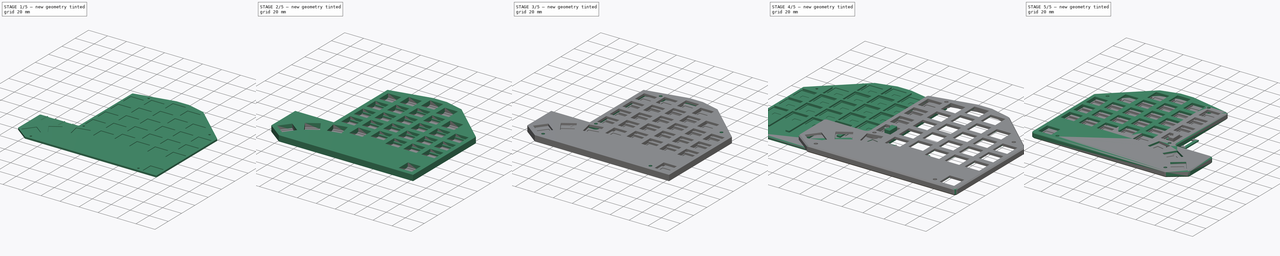
[diagram: build sequence overview — one tinted view per stage of 5, left to right]
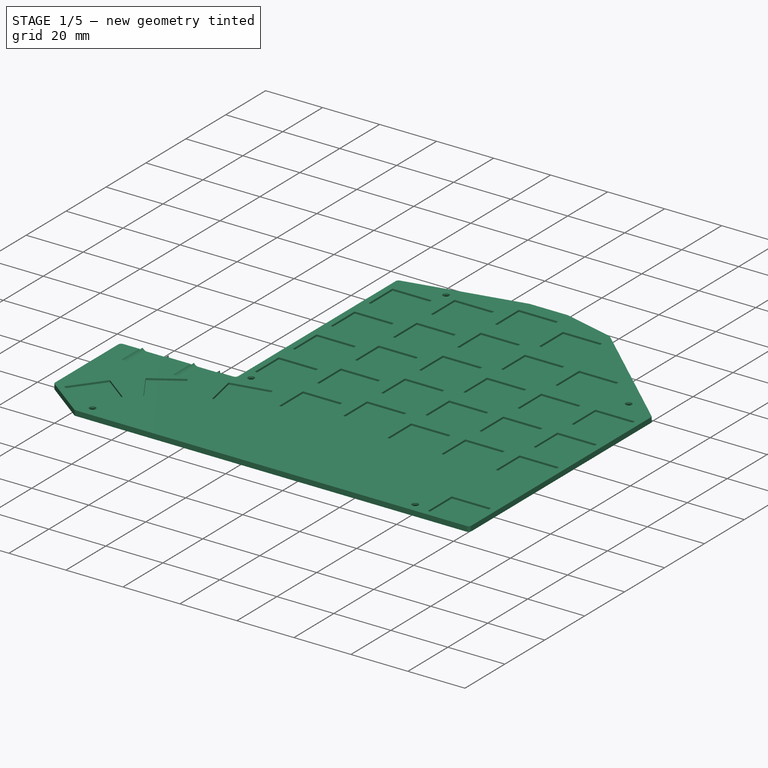
[diagram: stage 1 of 5 — iso view after this stage's code; geometry added in this stage tinted green]
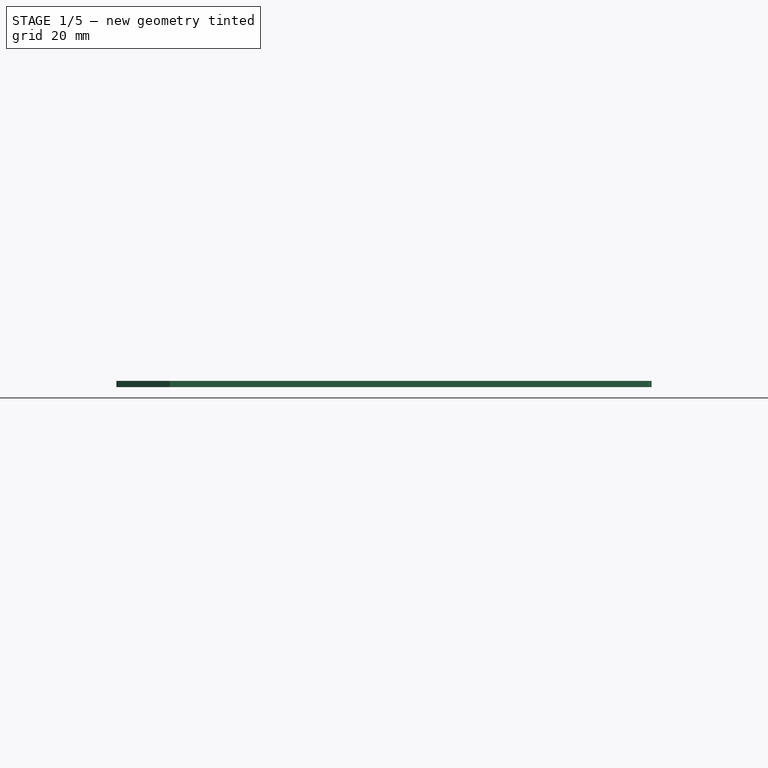
[diagram: stage 1 of 5 — front view after this stage's code; geometry added in this stage tinted green]
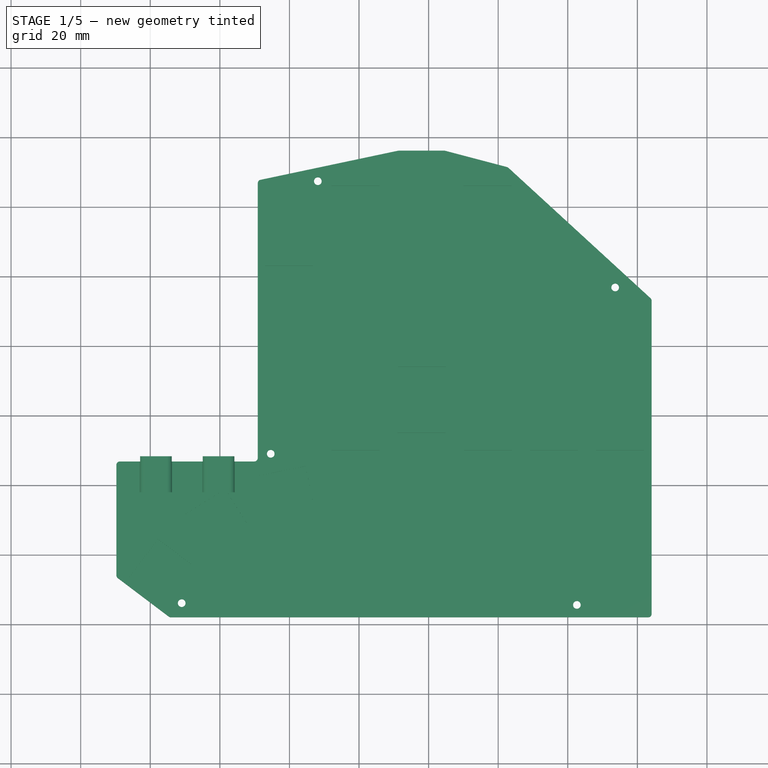
[diagram: stage 1 of 5 — top view after this stage's code; geometry added in this stage tinted green]
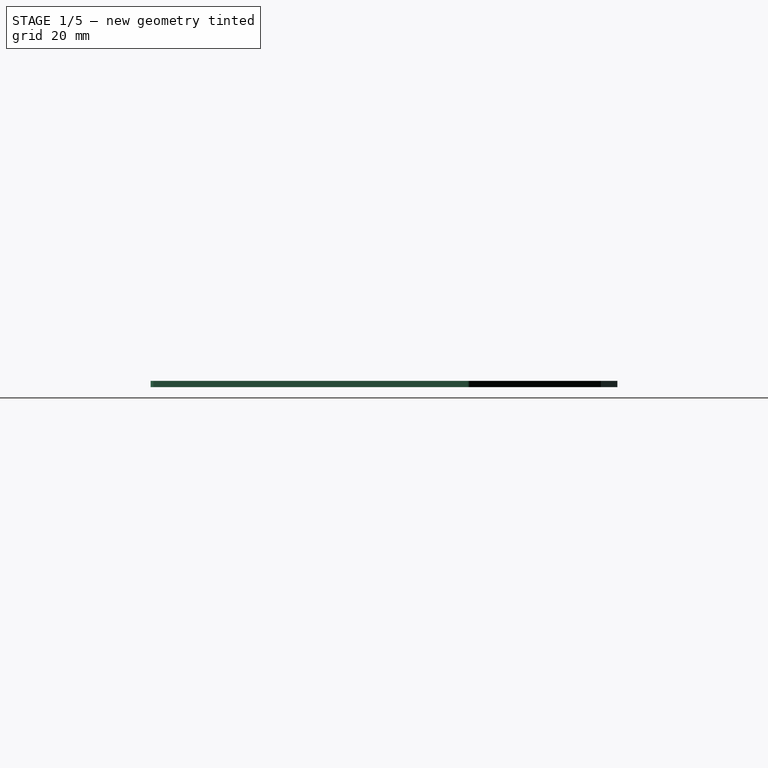
[diagram: stage 1 of 5 — right view after this stage's code; geometry added in this stage tinted green]
FCSTD DOCUMENT  (FreeCAD 0.19R24291 (Git))
Label: grapto-v3
License: All rights reserved
LicenseURL: http://en.wikipedia.org/wiki/All_rights_reserved
objects: App::Link×176, Sketcher::SketchObject×20, PartDesign::Pocket×8, App::Part×8, PartDesign::Pad×6, PartDesign::Body×6, Part::Feature×6, PartDesign::Plane×4, App::MeasureDistance×4, PartDesign::Hole×3, PartDesign::Chamfer×2, PartDesign::ShapeBinder×2, PartDesign::CoordinateSystem×2, Part::Mirroring×2, Spreadsheet::Sheet×1, PartDesign::Fillet×1, PartDesign::FeatureBase×1
note: 83 computed .brp shape members not serialized (recipe doc carries the construction recipe); baked Part::Feature solids carry a one-line shape summary decoded from their .brp

FEATURE [Sketcher::SketchObject] Sketch028
  FullyConstrained = true
  MapMode = 5
  Support = -> [XY_Plane004]
  sketch-geometry (40):
    g0: LineSegment StartX=-9.1 StartY=-12.14 StartZ=0 EndX=-9.1 EndY=66.8376 EndZ=0
    g1: ArcOfCircle CenterX=-8.1 CenterY=66.8376 CenterZ=0 NormalX=0 NormalY=0 NormalZ=1 AngleXU=0 Radius=1 StartAngle=1.77949 EndAngle=3.14159
    g2: LineSegment StartX=-8.30718 StartY=67.8159 StartZ=0 EndX=31.2384 EndY=76.1905 EndZ=0
    g3: ArcOfCircle CenterX=31.4455 CenterY=75.2122 CenterZ=0 NormalX=0 NormalY=0 NormalZ=1 AngleXU=0 Radius=1 StartAngle=1.5708 EndAngle=1.77949
    g4: LineSegment StartX=31.4455 StartY=76.2122 StartZ=0 EndX=44.4728 EndY=76.2122 EndZ=0
    g5: ArcOfCircle CenterX=44.4728 CenterY=75.2122 CenterZ=0 NormalX=0 NormalY=0 NormalZ=1 AngleXU=0 Radius=1 StartAngle=1.31346 EndAngle=1.5708
    g6: LineSegment StartX=44.7273 StartY=76.1793 StartZ=0 EndX=62.5249 EndY=71.4955 EndZ=0
    g7: ArcOfCircle CenterX=62.2704 CenterY=70.5284 CenterZ=0 NormalX=0 NormalY=0 NormalZ=1 AngleXU=0 Radius=1 StartAngle=0.828313 EndAngle=1.31346
    g8: LineSegment StartX=62.9465 StartY=71.2652 StartZ=0 EndX=103.776 EndY=33.798 EndZ=0
    g9: LineSegment StartX=104.1 StartY=33.0612 StartZ=0 EndX=104.1 EndY=-56.9382 EndZ=0
    g10: ArcOfCircle CenterX=103.1 CenterY=-56.9382 CenterZ=0 NormalX=0 NormalY=0 NormalZ=1 AngleXU=0 Radius=1 StartAngle=4.71239 EndAngle=6.28319
    g11: LineSegment StartX=-34.6692 StartY=-57.7362 StartZ=0 EndX=-49.3388 EndY=-46.6574 EndZ=0
    g12: ArcOfCircle CenterX=-48.7361 CenterY=-45.8594 CenterZ=0 NormalX=0 NormalY=0 NormalZ=1 AngleXU=0 Radius=1 StartAngle=3.14159 EndAngle=4.06555
    g13: LineSegment StartX=-49.7361 StartY=-45.8594 StartZ=0 EndX=-49.7361 EndY=-14.14 EndZ=0
    g14: LineSegment StartX=-48.7361 StartY=-13.14 StartZ=0 EndX=-42.925 EndY=-13.14 EndZ=0
    g15: ArcOfCircle CenterX=103.1 CenterY=33.0612 CenterZ=0 NormalX=0 NormalY=0 NormalZ=1 AngleXU=0 Radius=1 StartAngle=-2.7e-15 EndAngle=0.828313
    g16: LineSegment StartX=103.1 StartY=-57.9382 StartZ=0 EndX=-34.0665 EndY=-57.9382 EndZ=0
    g17: ArcOfCircle CenterX=-34.0665 CenterY=-56.9382 CenterZ=0 NormalX=0 NormalY=0 NormalZ=1 AngleXU=0 Radius=1 StartAngle=4.06555 EndAngle=4.71239
    g18: LineSegment StartX=106.399 StartY=-60.2382 StartZ=0 EndX=106.4 EndY=34.5118 EndZ=0
    g19: LineSegment StartX=106.4 StartY=34.5118 StartZ=0 EndX=63.8999 EndY=73.512 EndZ=0
    g20: LineSegment StartX=63.8999 StartY=73.512 StartZ=0 EndX=44.8999 EndY=78.5122 EndZ=0
    g21: LineSegment StartX=44.8999 StartY=78.5122 StartZ=0 EndX=31.0999 EndY=78.5122 EndZ=0
    g22: LineSegment StartX=31.0999 StartY=78.5122 StartZ=0 EndX=-11.4 EndY=69.5119 EndZ=0
    g23: LineSegment StartX=-11.4 StartY=69.5119 StartZ=0 EndX=-11.4 EndY=-11.44 EndZ=0
    g24: LineSegment StartX=-11.4 StartY=-11.44 StartZ=0 EndX=-52.0361 EndY=-11.44 EndZ=0
    g25: LineSegment StartX=-52.0361 StartY=-11.44 StartZ=0 EndX=-52.0361 EndY=-47.5025 EndZ=0
    g26: LineSegment StartX=-52.0361 StartY=-47.5025 StartZ=0 EndX=-35.1726 EndY=-60.2382 EndZ=0
    g27: LineSegment StartX=-35.1726 StartY=-60.2382 StartZ=0 EndX=106.399 EndY=-60.2382 EndZ=0
    g28: ArcOfCircle CenterX=-10.1 CenterY=-12.14 CenterZ=0 NormalX=0 NormalY=0 NormalZ=1 AngleXU=0 Radius=1 StartAngle=4.71239 EndAngle=6.28319
    g29: ArcOfCircle CenterX=-48.7361 CenterY=-14.14 CenterZ=0 NormalX=0 NormalY=0 NormalZ=1 AngleXU=0 Radius=1 StartAngle=1.5708 EndAngle=3.14159
    g30: LineSegment StartX=-33.825 StartY=-13.14 StartZ=0 EndX=-33.825 EndY=-11.64 EndZ=0
    g31: LineSegment StartX=-33.825 StartY=-11.64 StartZ=0 EndX=-42.925 EndY=-11.64 EndZ=0
    g32: LineSegment StartX=-42.925 StartY=-11.64 StartZ=0 EndX=-42.925 EndY=-13.14 EndZ=0
    g33: LineSegment StartX=-15.825 StartY=-13.14 StartZ=0 EndX=-15.825 EndY=-11.64 EndZ=0
    g34: LineSegment StartX=-15.825 StartY=-11.64 StartZ=0 EndX=-24.925 EndY=-11.64 EndZ=0
    g35: LineSegment StartX=-24.925 StartY=-11.64 StartZ=0 EndX=-24.925 EndY=-13.14 EndZ=0
    g36: LineSegment StartX=-33.825 StartY=-13.14 StartZ=0 EndX=-24.925 EndY=-13.14 EndZ=0
    g37: LineSegment StartX=-15.825 StartY=-13.14 StartZ=0 EndX=-10.1 EndY=-13.14 EndZ=0
    g38: GeomPoint X=-20.375 Y=-11.64 Z=0
    g39: GeomPoint X=-38.375 Y=-11.64 Z=0
  constraints (105):
    c: Vertical(g0)
    c: Tangent(g0,g1) = 1.5708
    c: Tangent(g2,g3) = 1.5708
    c: Horizontal(g4)
    c: Tangent(g4,g5) = 1.5708
    c: Tangent(g6,g7) = 1.5708
    c: Vertical(g9)
    c: Tangent(g9,g10) = 1.5708
    c: Tangent(g11,g12) = 1.5708
    c: Vertical(g13)
    c: Horizontal(g14)
    c: Tangent(g12,g13) = 1.5708
    c: Tangent(g3,g4) = 1.5708
    c: Tangent(g5,g6) = 1.5708
    c: Tangent(g7,g8) = 1.5708
    c: Tangent(g9,g15) = 1.5708
    c: Tangent(g11,g17) = 1.5708
    c: Diameter(g17) = 2
    c: Equal(g17,g12)
    c: Equal(g17,g1)
    c: Equal(g17,g3)
    c: Equal(g17,g5)
    c: Equal(g17,g7)
    c: Equal(g17,g15)
    c: Equal(g17,g10)
    c: Coincident(g18,g19)
    c: Coincident(g19,g20)
    c: Coincident(g20,g21)
    c: Coincident(g21,g22)
    c: Coincident(g22,g23)
    c: Coincident(g23,g24)
    c: Coincident(g24,g25)
    c: Coincident(g25,g26)
    c: Coincident(g26,g27)
    c: Coincident(g27,g18)
    c: Distance(g18) = 94.75
    c: Distance(g19) = 57.6823
    c: Distance(g20) = 19.6469
    c: Distance(g21) = 13.8
    c: Distance(g22) = 43.4425
    c: Distance(g23) = 80.9519
    c: Distance(g24) = 40.6361
    c: Distance(g25) = 36.0625
    c: Distance(g26) = 21.1323
    c: Angle(g19,g18) = 2.31328
    c: Angle(g21,g20) = 2.88426
    c: Angle(g20,g19) = 2.65644
    c: Angle(g23,g22) = 1.77949
    c: Angle(g26,g25) = 2.21763
    c: Angle(g27,g26) = 2.49476
    c: DistanceX(g23,g-1) = 11.4
    c: DistanceY(g23,g-1) = 11.44
    c: Horizontal(g24)
    c: Vertical(g25)
    c: Distance(g11,g26) = 2.3
    c: Distance(g16,g27) = 2.3
    c: Distance(g0,g23) = 2.3
    c: Distance(g1,g22) = 2.3
    c: Parallel(g2,g22)
    c: Distance(g3,g21) = 2.3
    c: Distance(g5,g20) = 2.3
    c: Parallel(g6,g20)
    c: Distance(g7,g19) = 2.3
    c: Parallel(g8,g19)
    c: Distance(g9,g18) = 2.3
    c: Parallel(g11,g26)
    c: Horizontal(g16)
    c: Tangent(g16,g10) = 1.5708
    c: Tangent(g17,g16) = 1.5708
    c: Tangent(g15,g8) = 1.5708
    c: Tangent(g2,g1) = 1.5708
    c: Vertical(g23)
    c: Tangent(g0,g28) = -1.5708
    c: Tangent(g13,g29) = 1.5708
    c: Tangent(g14,g29) = 1.5708
    c: Diameter(g29) = 2
    c: DistanceX(g24,g13) = 2.3
    c: Distance(g14,g24) = 1.7
    c: Diameter(g28) = 2
    c: Coincident(g30,g31)
    c: Coincident(g31,g32)
    c: Horizontal(g31)
    c: Vertical(g30)
    c: Vertical(g32)
    c: Coincident(g33,g34)
    c: Coincident(g34,g35)
    c: Horizontal(g34)
    c: Vertical(g33)
    c: Vertical(g35)
    c: PointOnObject(g35,g14)
    c: Tangent(g14,g36)
    c: PointOnObject(g36,g35)
    c: Coincident(g37,g33)
    c: Tangent(g36,g37)
    c: Symmetric(g34,g33,g38)
    c: Symmetric(g30,g31,g39)
    c: DistanceX(g38,g-1) = 20.375
    c: DistanceX(g39,g38) = 18
    c: DistanceY(g33,g33) = 1.5
    c: Equal(g30,g33)
    c: Coincident(g30,g36)
    c: Equal(g31,g34)
    c: Distance(g34) = 9.1
    c: Coincident(g14,g32)
    c: Tangent(g37,g28) = -1.5708
FEATURE [PartDesign::Pad] Pad002
  Direction = (1,1,1)
  Length = 1.8
  Length2 = 100
  Profile = -> Sketch028
  Type = 0
  expr: Length = <<ss>>.bottom_height
FEATURE [Sketcher::SketchObject] Sketch029
  FullyConstrained = true
  MapMode = 5
  Placement = pos=(0,0,0) rot=(1,0,0;1.5708rad)
  Support = -> [XZ_Plane004]
  expr: Constraints[18] = <<ss>>.top_height - <<ss>>.sw_ht_above_pcb - 0.6 + 0.85
  expr: Constraints[15] = <<ss>>.top_height - <<ss>>.sw_ht_above_pcb - 0.6 + 0.85
  sketch-geometry (10):
    g0: ArcOfCircle CenterX=-17.28 CenterY=2.4 CenterZ=0 NormalX=0 NormalY=0 NormalZ=1 AngleXU=0 Radius=1.65 StartAngle=4.71239 EndAngle=7.85398
    g1: ArcOfCircle CenterX=-23.48 CenterY=2.4 CenterZ=0 NormalX=0 NormalY=0 NormalZ=1 AngleXU=0 Radius=1.65 StartAngle=1.5708 EndAngle=4.71239
    g2: LineSegment StartX=-17.28 StartY=4.05 StartZ=0 EndX=-23.48 EndY=4.05 EndZ=0
    g3: ArcOfCircle CenterX=-35.28 CenterY=2.4 CenterZ=0 NormalX=0 NormalY=0 NormalZ=1 AngleXU=0 Radius=1.65 StartAngle=4.71239 EndAngle=7.85398
    g4: ArcOfCircle CenterX=-41.48 CenterY=2.4 CenterZ=0 NormalX=0 NormalY=0 NormalZ=1 AngleXU=0 Radius=1.65 StartAngle=1.5708 EndAngle=4.71239
    g5: LineSegment StartX=-35.28 StartY=4.05 StartZ=0 EndX=-41.48 EndY=4.05 EndZ=0
    g6: GeomPoint X=-20.38 Y=4.05 Z=0
    g7: GeomPoint X=-38.38 Y=4.05 Z=0
    g8: LineSegment StartX=-35.28 StartY=0.75 StartZ=0 EndX=-41.48 EndY=0.75 EndZ=0
    g9: LineSegment StartX=-17.28 StartY=0.75 StartZ=0 EndX=-23.48 EndY=0.75 EndZ=0
  constraints (22):
    c: Tangent(g0,g2) = -1.5708
    c: Tangent(g2,g1) = -1.5708
    c: Horizontal(g2)
    c: Equal(g0,g1)
    c: Tangent(g3,g5) = -1.5708
    c: Tangent(g5,g4) = -1.5708
    c: Horizontal(g5)
    c: Equal(g3,g4)
    c: Equal(g5,g2)
    c: Diameter(g3) = 3.3
    c: Equal(g3,g1)
    c: Symmetric(g1,g0,g6)
    c: Symmetric(g4,g3,g7)
    c: DistanceX(g7,g6) = 18
    c: DistanceX(g6,g-1) = 20.38
    c: DistanceY(g-1,g6) = 4.05
    c: Tangent(g8,g4) = 1.5708
    c: Tangent(g8,g3) = 1.5708
    c: DistanceY(g-1,g7) = 4.05
    c: Tangent(g9,g1) = 1.5708
    c: Tangent(g9,g0) = 1.5708
    c: Distance(g9) = 6.2
FEATURE [PartDesign::Pocket] Pocket008
  BaseFeature = -> Pad002
  Length = 22
  Length2 = 100
  Profile = -> Sketch029
  Reversed = true
  Type = 0
FEATURE [PartDesign::ShapeBinder] ShapeBinder
  Support = -> [Chamfer]
  TraceSupport = true
FEATURE [Sketcher::SketchObject] Sketch030
  FullyConstrained = false
  MapMode = 5
  Support = -> [XY_Plane004]
  sketch-geometry (5):
    g0: Circle CenterX=8.1652 CenterY=67.4137 CenterZ=0 NormalX=0 NormalY=0 NormalZ=1 AngleXU=0 Radius=1
    g1: Circle CenterX=93.6217 CenterY=36.8767 CenterZ=0 NormalX=0 NormalY=0 NormalZ=1 AngleXU=0 Radius=1
    g2: Circle CenterX=82.6217 CenterY=-54.3793 CenterZ=0 NormalX=0 NormalY=0 NormalZ=1 AngleXU=0 Radius=1
    g3: Circle CenterX=-30.9626 CenterY=-53.8793 CenterZ=0 NormalX=0 NormalY=0 NormalZ=1 AngleXU=0 Radius=1
    g4: Circle CenterX=-5.37107 CenterY=-10.94 CenterZ=0 NormalX=0 NormalY=0 NormalZ=1 AngleXU=0 Radius=1
  constraints (5):
    c: Diameter(g3) = 2
    c: Equal(g3,g4)
    c: Equal(g3,g0)
    c: Equal(g3,g1)
    c: Equal(g3,g2)
FEATURE [PartDesign::Hole] Hole
  BaseFeature = -> Pocket008
  Depth = 25
  DepthType = 0
  Diameter = 2.2
  DrillForDepth = false
  DrillPoint = 1
  DrillPointAngle = 118
  HoleCutCountersinkAngle = 90
  HoleCutCustomValues = false
  HoleCutDepth = 1
  HoleCutDiameter = 4.5
  HoleCutType = 2
  ModelActualThread = false
  Profile = -> Sketch030
  Reversed = true
  Tapered = false
  TaperedAngle = 90
  ThreadAngle = 0
  ThreadClass = 0
  ThreadCutOffInner = 0
  ThreadCutOffOuter = 0
  ThreadDirection = 0
  ThreadFit = 0
  ThreadPitch = 0
  ThreadSize = 0
  ThreadType = 0
  Threaded = false
FEATURE [PartDesign::Plane] DatumPlane001
  AttachmentOffset = pos=(0,0,1.8) rot=(0,0,1;0rad)
  Length = 182.567
  MapMode = 5
  Placement = pos=(0,0,1.8) rot=(0,0,1;0rad)
  ResizeMode = 0
  Support = -> [XY_Plane004]
  Width = 162.882
FEATURE [Sketcher::SketchObject] Sketch031  label="SketchTop001"
  FullyConstrained = true
  MapMode = 5
  Placement = pos=(0,0,1.8) rot=(0,0,1;0rad)
  Support = -> [DatumPlane001]
  expr: Constraints[420] = <<ss>>.ss_sw_side / 2
  expr: Constraints[347] = <<ss>>.ss_sw_sep - 12
  expr: Constraints[376] = <<ss>>.ss_sw_side
  expr: Constraints[384] = 6 - (<<ss>>.ss_sw_side - 12) / 2
  expr: Constraints[377] = 12
  sketch-geometry (153):
    g0: LineSegment StartX=-6.9 StartY=-6.9 StartZ=0 EndX=6.9 EndY=-6.9 EndZ=0
    g1: LineSegment StartX=-6.9 StartY=-6.9 StartZ=0 EndX=-6.9 EndY=5.1 EndZ=0
    g2: LineSegment StartX=-6.9 StartY=5.1 StartZ=0 EndX=6.9 EndY=5.1 EndZ=0
    g3: LineSegment StartX=6.9 StartY=-6.9 StartZ=0 EndX=6.9 EndY=5.1 EndZ=0
    g4: LineSegment StartX=-6.9 StartY=12.1 StartZ=0 EndX=6.9 EndY=12.1 EndZ=0
    g5: LineSegment StartX=-6.9 StartY=12.1 StartZ=0 EndX=-6.9 EndY=24.1 EndZ=0
    g6: LineSegment StartX=-6.9 StartY=24.1 StartZ=0 EndX=6.9 EndY=24.1 EndZ=0
    g7: LineSegment StartX=6.9 StartY=12.1 StartZ=0 EndX=6.9 EndY=24.1 EndZ=0
    g8: LineSegment StartX=-6.9 StartY=31.1 StartZ=0 EndX=6.9 EndY=31.1 EndZ=0
    g9: LineSegment StartX=-6.9 StartY=31.1 StartZ=0 EndX=-6.9 EndY=43.1 EndZ=0
    g10: LineSegment StartX=-6.9 StartY=43.1 StartZ=0 EndX=6.9 EndY=43.1 EndZ=0
    g11: LineSegment StartX=6.9 StartY=31.1 StartZ=0 EndX=6.9 EndY=43.1 EndZ=0
    g12: LineSegment StartX=-6.9 StartY=50.1 StartZ=0 EndX=6.9 EndY=50.1 EndZ=0
    g13: LineSegment StartX=-6.9 StartY=50.1 StartZ=0 EndX=-6.9 EndY=62.1 EndZ=0
    g14: LineSegment StartX=-6.9 StartY=62.1 StartZ=0 EndX=6.9 EndY=62.1 EndZ=0
    g15: LineSegment StartX=6.9 StartY=50.1 StartZ=0 EndX=6.9 EndY=62.1 EndZ=0
    g16: LineSegment StartX=12.1 StartY=-21.9 StartZ=0 EndX=25.9 EndY=-21.9 EndZ=0
    g17: LineSegment StartX=12.1 StartY=-21.9 StartZ=0 EndX=12.1 EndY=-9.9 EndZ=0
    g18: LineSegment StartX=12.1 StartY=-9.9 StartZ=0 EndX=25.9 EndY=-9.9 EndZ=0
    g19: LineSegment StartX=25.9 StartY=-21.9 StartZ=0 EndX=25.9 EndY=-9.9 EndZ=0
    g20: LineSegment StartX=12.1 StartY=-2.9 StartZ=0 EndX=25.9 EndY=-2.9 EndZ=0
    g21: LineSegment StartX=12.1 StartY=-2.9 StartZ=0 EndX=12.1 EndY=9.1 EndZ=0
    g22: LineSegment StartX=12.1 StartY=9.1 StartZ=0 EndX=25.9 EndY=9.1 EndZ=0
    g23: LineSegment StartX=25.9 StartY=-2.9 StartZ=0 EndX=25.9 EndY=9.1 EndZ=0
    g24: LineSegment StartX=12.1 StartY=16.1 StartZ=0 EndX=25.9 EndY=16.1 EndZ=0
    g25: LineSegment StartX=12.1 StartY=16.1 StartZ=0 EndX=12.1 EndY=28.1 EndZ=0
    g26: LineSegment StartX=12.1 StartY=28.1 StartZ=0 EndX=25.9 EndY=28.1 EndZ=0
    g27: LineSegment StartX=25.9 StartY=16.1 StartZ=0 EndX=25.9 EndY=28.1 EndZ=0
    g28: LineSegment StartX=12.1 StartY=35.1 StartZ=0 EndX=25.9 EndY=35.1 EndZ=0
    g29: LineSegment StartX=12.1 StartY=35.1 StartZ=0 EndX=12.1 EndY=47.1 EndZ=0
    g30: LineSegment StartX=12.1 StartY=47.1 StartZ=0 EndX=25.9 EndY=47.1 EndZ=0
    g31: LineSegment StartX=25.9 StartY=35.1 StartZ=0 EndX=25.9 EndY=47.1 EndZ=0
    g32: LineSegment StartX=12.1 StartY=54.1 StartZ=0 EndX=25.9 EndY=54.1 EndZ=0
    g33: LineSegment StartX=12.1 StartY=54.1 StartZ=0 EndX=12.1 EndY=66.1 EndZ=0
    g34: LineSegment StartX=12.1 StartY=66.1 StartZ=0 EndX=25.9 EndY=66.1 EndZ=0
    g35: LineSegment StartX=25.9 StartY=54.1 StartZ=0 EndX=25.9 EndY=66.1 EndZ=0
    g36: LineSegment StartX=31.1 StartY=-16.9 StartZ=0 EndX=44.9 EndY=-16.9 EndZ=0
    g37: LineSegment StartX=31.1 StartY=-16.9 StartZ=0 EndX=31.1 EndY=-4.9 EndZ=0
    g38: LineSegment StartX=31.1 StartY=-4.9 StartZ=0 EndX=44.9 EndY=-4.9 EndZ=0
    g39: LineSegment StartX=44.9 StartY=-16.9 StartZ=0 EndX=44.9 EndY=-4.9 EndZ=0
    g40: LineSegment StartX=31.1 StartY=2.1 StartZ=0 EndX=44.9 EndY=2.1 EndZ=0
    g41: LineSegment StartX=31.1 StartY=2.1 StartZ=0 EndX=31.1 EndY=14.1 EndZ=0
    g42: LineSegment StartX=31.1 StartY=14.1 StartZ=0 EndX=44.9 EndY=14.1 EndZ=0
    g43: LineSegment StartX=44.9 StartY=2.1 StartZ=0 EndX=44.9 EndY=14.1 EndZ=0
    g44: LineSegment StartX=31.1 StartY=21.1 StartZ=0 EndX=44.9 EndY=21.1 EndZ=0
    g45: LineSegment StartX=31.1 StartY=21.1 StartZ=0 EndX=31.1 EndY=33.1 EndZ=0
    g46: LineSegment StartX=31.1 StartY=33.1 StartZ=0 EndX=44.9 EndY=33.1 EndZ=0
    g47: LineSegment StartX=44.9 StartY=21.1 StartZ=0 EndX=44.9 EndY=33.1 EndZ=0
    g48: LineSegment StartX=31.1 StartY=40.1 StartZ=0 EndX=44.9 EndY=40.1 EndZ=0
    g49: LineSegment StartX=31.1 StartY=40.1 StartZ=0 EndX=31.1 EndY=52.1 EndZ=0
    g50: LineSegment StartX=31.1 StartY=52.1 StartZ=0 EndX=44.9 EndY=52.1 EndZ=0
    g51: LineSegment StartX=44.9 StartY=40.1 StartZ=0 EndX=44.9 EndY=52.1 EndZ=0
    g52: LineSegment StartX=31.1 StartY=59.1 StartZ=0 EndX=44.9 EndY=59.1 EndZ=0
    g53: LineSegment StartX=31.1 StartY=59.1 StartZ=0 EndX=31.1 EndY=71.1 EndZ=0
    g54: LineSegment StartX=31.1 StartY=71.1 StartZ=0 EndX=44.9 EndY=71.1 EndZ=0
    g55: LineSegment StartX=44.9 StartY=59.1 StartZ=0 EndX=44.9 EndY=71.1 EndZ=0
    g56: LineSegment StartX=50.1 StartY=-21.9 StartZ=0 EndX=63.9 EndY=-21.9 EndZ=0
    g57: LineSegment StartX=50.1 StartY=-21.9 StartZ=0 EndX=50.1 EndY=-9.9 EndZ=0
    g58: LineSegment StartX=50.1 StartY=-9.9 StartZ=0 EndX=63.9 EndY=-9.9 EndZ=0
    g59: LineSegment StartX=63.9 StartY=-21.9 StartZ=0 EndX=63.9 EndY=-9.9 EndZ=0
    g60: LineSegment StartX=50.1 StartY=-2.9 StartZ=0 EndX=63.9 EndY=-2.9 EndZ=0
    g61: LineSegment StartX=50.1 StartY=-2.9 StartZ=0 EndX=50.1 EndY=9.1 EndZ=0
    g62: LineSegment StartX=50.1 StartY=9.1 StartZ=0 EndX=63.9 EndY=9.1 EndZ=0
    g63: LineSegment StartX=63.9 StartY=-2.9 StartZ=0 EndX=63.9 EndY=9.1 EndZ=0
    g64: LineSegment StartX=50.1 StartY=16.1 StartZ=0 EndX=63.9 EndY=16.1 EndZ=0
    g65: LineSegment StartX=50.1 StartY=16.1 StartZ=0 EndX=50.1 EndY=28.1 EndZ=0
    g66: LineSegment StartX=50.1 StartY=28.1 StartZ=0 EndX=63.9 EndY=28.1 EndZ=0
    g67: LineSegment StartX=63.9 StartY=16.1 StartZ=0 EndX=63.9 EndY=28.1 EndZ=0
    g68: LineSegment StartX=50.1 StartY=35.1 StartZ=0 EndX=63.9 EndY=35.1 EndZ=0
    g69: LineSegment StartX=50.1 StartY=35.1 StartZ=0 EndX=50.1 EndY=47.1 EndZ=0
    g70: LineSegment StartX=50.1 StartY=47.1 StartZ=0 EndX=63.9 EndY=47.1 EndZ=0
    g71: LineSegment StartX=63.9 StartY=35.1 StartZ=0 EndX=63.9 EndY=47.1 EndZ=0
    g72: LineSegment StartX=50.1 StartY=54.1 StartZ=0 EndX=63.9 EndY=54.1 EndZ=0
    g73: LineSegment StartX=50.1 StartY=54.1 StartZ=0 EndX=50.1 EndY=66.1 EndZ=0
    g74: LineSegment StartX=50.1 StartY=66.1 StartZ=0 EndX=63.9 EndY=66.1 EndZ=0
    g75: LineSegment StartX=63.9 StartY=54.1 StartZ=0 EndX=63.9 EndY=66.1 EndZ=0
    g76: LineSegment StartX=69.1 StartY=-21.9 StartZ=0 EndX=82.9 EndY=-21.9 EndZ=0
    g77: LineSegment StartX=69.1 StartY=-21.9 StartZ=0 EndX=69.1 EndY=-9.9 EndZ=0
    g78: LineSegment StartX=69.1 StartY=-9.9 StartZ=0 EndX=82.9 EndY=-9.9 EndZ=0
    g79: LineSegment StartX=82.9 StartY=-21.9 StartZ=0 EndX=82.9 EndY=-9.9 EndZ=0
    g80: LineSegment StartX=69.1 StartY=-2.9 StartZ=0 EndX=82.9 EndY=-2.9 EndZ=0
    g81: LineSegment StartX=69.1 StartY=-2.9 StartZ=0 EndX=69.1 EndY=9.1 EndZ=0
    g82: LineSegment StartX=69.1 StartY=9.1 StartZ=0 EndX=82.9 EndY=9.1 EndZ=0
    g83: LineSegment StartX=82.9 StartY=-2.9 StartZ=0 EndX=82.9 EndY=9.1 EndZ=0
    g84: LineSegment StartX=69.1 StartY=16.1 StartZ=0 EndX=82.9 EndY=16.1 EndZ=0
    g85: LineSegment StartX=69.1 StartY=16.1 StartZ=0 EndX=69.1 EndY=28.1 EndZ=0
    g86: LineSegment StartX=69.1 StartY=28.1 StartZ=0 EndX=82.9 EndY=28.1 EndZ=0
    g87: LineSegment StartX=82.9 StartY=16.1 StartZ=0 EndX=82.9 EndY=28.1 EndZ=0
    g88: LineSegment StartX=69.1 StartY=35.1 StartZ=0 EndX=82.9 EndY=35.1 EndZ=0
    g89: LineSegment StartX=69.1 StartY=35.1 StartZ=0 EndX=69.1 EndY=47.1 EndZ=0
    g90: LineSegment StartX=69.1 StartY=47.1 StartZ=0 EndX=82.9 EndY=47.1 EndZ=0
    g91: LineSegment StartX=82.9 StartY=35.1 StartZ=0 EndX=82.9 EndY=47.1 EndZ=0
    g92: LineSegment StartX=88.1 StartY=-2.9 StartZ=0 EndX=101.9 EndY=-2.9 EndZ=0
    g93: LineSegment StartX=88.1 StartY=-2.9 StartZ=0 EndX=88.1 EndY=9.1 EndZ=0
    g94: LineSegment StartX=88.1 StartY=9.1 StartZ=0 EndX=101.9 EndY=9.1 EndZ=0
    g95: LineSegment StartX=101.9 StartY=-2.9 StartZ=0 EndX=101.9 EndY=9.1 EndZ=0
    g96: LineSegment StartX=88.1 StartY=16.1 StartZ=0 EndX=101.9 EndY=16.1 EndZ=0
    g97: LineSegment StartX=88.1 StartY=16.1 StartZ=0 EndX=88.1 EndY=28.1 EndZ=0
    g98: LineSegment StartX=88.1 StartY=28.1 StartZ=0 EndX=101.9 EndY=28.1 EndZ=0
    g99: LineSegment StartX=101.9 StartY=16.1 StartZ=0 EndX=101.9 EndY=28.1 EndZ=0
    g100: LineSegment StartX=-8.85468 StartY=-17.2151 StartZ=0 EndX=4.66828 EndY=-14.4638 EndZ=0
    g101: LineSegment StartX=4.66828 StartY=-14.4638 StartZ=0 EndX=7.0607 EndY=-26.2229 EndZ=0
    g102: LineSegment StartX=7.0607 StartY=-26.2229 StartZ=0 EndX=-6.46226 EndY=-28.9742 EndZ=0
    g103: LineSegment StartX=-6.46226 StartY=-28.9742 StartZ=0 EndX=-8.85468 EndY=-17.2151 EndZ=0
    g104: LineSegment StartX=-30.1502 StartY=-28.4325 StartZ=0 EndX=-18.4753 EndY=-21.0748 EndZ=0
    g105: LineSegment StartX=-18.4753 StartY=-21.0748 StartZ=0 EndX=-12.0773 EndY=-31.2269 EndZ=0
    g106: LineSegment StartX=-12.0773 StartY=-31.2269 StartZ=0 EndX=-23.7522 EndY=-38.5846 EndZ=0
    g107: LineSegment StartX=-23.7522 StartY=-38.5846 StartZ=0 EndX=-30.1502 EndY=-28.4325 EndZ=0
    g108: LineSegment StartX=-46.0997 StartY=-46.4586 StartZ=0 EndX=-37.7831 EndY=-35.4462 EndZ=0
    g109: LineSegment StartX=-37.7831 StartY=-35.4462 StartZ=0 EndX=-28.2071 EndY=-42.6781 EndZ=0
    g110: LineSegment StartX=-28.2071 StartY=-42.6781 StartZ=0 EndX=-36.5237 EndY=-53.6905 EndZ=0
    g111: LineSegment StartX=-36.5237 StartY=-53.6905 StartZ=0 EndX=-46.0997 EndY=-46.4586 EndZ=0
    g112: LineSegment StartX=88.1 StartY=-9.9 StartZ=0 EndX=101.9 EndY=-9.9 EndZ=0
    g113: LineSegment StartX=101.9 StartY=-9.9 StartZ=0 EndX=101.9 EndY=-21.9 EndZ=0
    g114: LineSegment StartX=101.9 StartY=-21.9 StartZ=0 EndX=88.1 EndY=-21.9 EndZ=0
    g115: LineSegment StartX=88.1 StartY=-21.9 StartZ=0 EndX=88.1 EndY=-9.9 EndZ=0
    g116: LineSegment StartX=88.1 StartY=-43.9 StartZ=0 EndX=101.9 EndY=-43.9 EndZ=0
    g117: LineSegment StartX=101.9 StartY=-43.9 StartZ=0 EndX=101.9 EndY=-55.9 EndZ=0
    g118: LineSegment StartX=101.9 StartY=-55.9 StartZ=0 EndX=88.1 EndY=-55.9 EndZ=0
    g119: LineSegment StartX=88.1 StartY=-55.9 StartZ=0 EndX=88.1 EndY=-43.9 EndZ=0
    g120: LineSegment StartX=88.1 StartY=-21.9 StartZ=0 EndX=88.1 EndY=-43.9 EndZ=0
    g121: LineSegment StartX=-6.9 StartY=5.1 StartZ=0 EndX=-6.9 EndY=12.1 EndZ=0
    g122: LineSegment StartX=-6.9 StartY=24.1 StartZ=0 EndX=-6.9 EndY=31.1 EndZ=0
    g123: LineSegment StartX=-6.9 StartY=50.1 StartZ=0 EndX=-6.9 EndY=43.1 EndZ=0
    g124: LineSegment StartX=12.1 StartY=54.1 StartZ=0 EndX=12.1 EndY=47.1 EndZ=0
    g125: LineSegment StartX=12.1 StartY=28.1 StartZ=0 EndX=12.1 EndY=35.1 EndZ=0
    g126: LineSegment StartX=12.1 StartY=9.1 StartZ=0 EndX=12.1 EndY=16.1 EndZ=0
    g127: LineSegment StartX=12.1 StartY=-9.9 StartZ=0 EndX=12.1 EndY=-2.9 EndZ=0
    g128: LineSegment StartX=31.1 StartY=-4.9 StartZ=0 EndX=31.1 EndY=2.1 EndZ=0
    g129: LineSegment StartX=31.1 StartY=14.1 StartZ=0 EndX=31.1 EndY=21.1 EndZ=0
    g130: LineSegment StartX=31.1 StartY=33.1 StartZ=0 EndX=31.1 EndY=40.1 EndZ=0
    g131: LineSegment StartX=31.1 StartY=52.1 StartZ=0 EndX=31.1 EndY=59.1 EndZ=0
    g132: LineSegment StartX=50.1 StartY=-9.9 StartZ=0 EndX=50.1 EndY=-2.9 EndZ=0
    g133: LineSegment StartX=50.1 StartY=9.1 StartZ=0 EndX=50.1 EndY=16.1 EndZ=0
    g134: LineSegment StartX=50.1 StartY=28.1 StartZ=0 EndX=50.1 EndY=35.1 EndZ=0
    g135: LineSegment StartX=50.1 StartY=47.1 StartZ=0 EndX=50.1 EndY=54.1 EndZ=0
    g136: LineSegment StartX=69.1 StartY=-9.9 StartZ=0 EndX=69.1 EndY=-2.9 EndZ=0
    g137: LineSegment StartX=69.1 StartY=9.1 StartZ=0 EndX=69.1 EndY=16.1 EndZ=0
    g138: LineSegment StartX=69.1 StartY=28.1 StartZ=0 EndX=69.1 EndY=35.1 EndZ=0
    g139: LineSegment StartX=88.1 StartY=-9.9 StartZ=0 EndX=88.1 EndY=-2.9 EndZ=0
    g140: LineSegment StartX=88.1 StartY=9.1 StartZ=0 EndX=88.1 EndY=16.1 EndZ=0
    g141: GeomPoint X=-1.07642 Y=-20.8371 Z=0
    g142: GeomPoint X=-37.8716 Y=-44.026 Z=0
    g143: GeomPoint X=-21.5936 Y=-29.0683 Z=0
    g144: GeomPoint X=19 Y=-15.9 Z=0
    g145: GeomPoint X=38 Y=-10.9 Z=0
    g146: GeomPoint X=57 Y=-15.9 Z=0
    g147: GeomPoint X=0 Y=5.1 Z=0
    g148: LineSegment StartX=6.9 StartY=-6.9 StartZ=0 EndX=12.1 EndY=-6.9 EndZ=0
    g149: LineSegment StartX=25.9 StartY=-9.9 StartZ=0 EndX=31.1 EndY=-9.9 EndZ=0
    g150: LineSegment StartX=50.1 StartY=-9.9 StartZ=0 EndX=44.9 EndY=-9.9 EndZ=0
    g151: LineSegment StartX=63.9 StartY=-9.9 StartZ=0 EndX=69.1 EndY=-9.9 EndZ=0
    g152: LineSegment StartX=82.9 StartY=-9.9 StartZ=0 EndX=88.1 EndY=-9.9 EndZ=0
  constraints (425):
    c: Coincident(g0,g1)
    c: Coincident(g1,g2)
    c: Coincident(g2,g3)
    c: Coincident(g0,g3)
    c: Horizontal(g2)
    c: Horizontal(g0)
    c: Vertical(g1)
    c: Vertical(g3)
    c: Coincident(g4,g5)
    c: Coincident(g5,g6)
    c: Coincident(g6,g7)
    c: Coincident(g4,g7)
    c: Horizontal(g6)
    c: Horizontal(g4)
    c: Vertical(g5)
    c: Vertical(g7)
    c: Coincident(g8,g9)
    c: Coincident(g9,g10)
    c: Coincident(g10,g11)
    c: Coincident(g8,g11)
    c: Horizontal(g10)
    c: Horizontal(g8)
    c: Vertical(g9)
    c: Vertical(g11)
    c: Coincident(g12,g13)
    c: Coincident(g13,g14)
    c: Coincident(g14,g15)
    c: Coincident(g12,g15)
    c: Horizontal(g14)
    c: Horizontal(g12)
    c: Vertical(g13)
    c: Vertical(g15)
    c: Coincident(g16,g17)
    c: Coincident(g17,g18)
    c: Coincident(g18,g19)
    c: Coincident(g16,g19)
    c: Horizontal(g18)
    c: Horizontal(g16)
    c: Vertical(g17)
    c: Vertical(g19)
    c: Coincident(g20,g21)
    c: Coincident(g21,g22)
    c: Coincident(g22,g23)
    c: Coincident(g20,g23)
    c: Horizontal(g22)
    c: Horizontal(g20)
    c: Vertical(g21)
    c: Vertical(g23)
    c: Coincident(g24,g25)
    c: Coincident(g25,g26)
    c: Coincident(g26,g27)
    c: Coincident(g24,g27)
    c: Horizontal(g26)
    c: Horizontal(g24)
    c: Vertical(g25)
    c: Vertical(g27)
    c: Coincident(g28,g29)
    c: Coincident(g29,g30)
    c: Coincident(g30,g31)
    c: Coincident(g28,g31)
    c: Horizontal(g30)
    c: Horizontal(g28)
    c: Vertical(g29)
    c: Vertical(g31)
    c: Coincident(g32,g33)
    c: Coincident(g33,g34)
    c: Coincident(g34,g35)
    c: Coincident(g32,g35)
    c: Horizontal(g34)
    c: Horizontal(g32)
    c: Vertical(g33)
    c: Vertical(g35)
    c: Coincident(g36,g37)
    c: Coincident(g37,g38)
    c: Coincident(g38,g39)
    c: Coincident(g36,g39)
    c: Horizontal(g38)
    c: Horizontal(g36)
    c: Vertical(g37)
    c: Vertical(g39)
    c: Coincident(g40,g41)
    c: Coincident(g41,g42)
    c: Coincident(g42,g43)
    c: Coincident(g40,g43)
    c: Horizontal(g42)
    c: Horizontal(g40)
    c: Vertical(g41)
    c: Vertical(g43)
    c: Coincident(g44,g45)
    c: Coincident(g45,g46)
    c: Coincident(g46,g47)
    c: Coincident(g44,g47)
    c: Horizontal(g46)
    c: Horizontal(g44)
    c: Vertical(g45)
    c: Vertical(g47)
    c: Coincident(g48,g49)
    c: Coincident(g49,g50)
    c: Coincident(g50,g51)
    c: Coincident(g48,g51)
    c: Horizontal(g50)
    c: Horizontal(g48)
    c: Vertical(g49)
    c: Vertical(g51)
    c: Coincident(g52,g53)
    c: Coincident(g53,g54)
    c: Coincident(g54,g55)
    c: Coincident(g52,g55)
    c: Horizontal(g54)
    c: Horizontal(g52)
    c: Vertical(g53)
    c: Vertical(g55)
    c: Coincident(g56,g57)
    c: Coincident(g57,g58)
    c: Coincident(g58,g59)
    c: Coincident(g56,g59)
    c: Horizontal(g58)
    c: Horizontal(g56)
    c: Vertical(g57)
    c: Vertical(g59)
    c: Coincident(g60,g61)
    c: Coincident(g61,g62)
    c: Coincident(g62,g63)
    c: Coincident(g60,g63)
    c: Horizontal(g62)
    c: Horizontal(g60)
    c: Vertical(g61)
    c: Vertical(g63)
    c: Coincident(g64,g65)
    c: Coincident(g65,g66)
    c: Coincident(g66,g67)
    c: Coincident(g64,g67)
    c: Horizontal(g66)
    c: Horizontal(g64)
    c: Vertical(g65)
    c: Vertical(g67)
    c: Coincident(g68,g69)
    c: Coincident(g69,g70)
    c: Coincident(g70,g71)
    c: Coincident(g68,g71)
    c: Horizontal(g70)
    c: Horizontal(g68)
    c: Vertical(g69)
    c: Vertical(g71)
    c: Coincident(g72,g73)
    c: Coincident(g73,g74)
    c: Coincident(g74,g75)
    c: Coincident(g72,g75)
    c: Horizontal(g74)
    c: Horizontal(g72)
    c: Vertical(g73)
    c: Vertical(g75)
    c: Coincident(g76,g77)
    c: Coincident(g77,g78)
    c: Coincident(g78,g79)
    c: Coincident(g76,g79)
    c: Horizontal(g78)
    c: Horizontal(g76)
    c: Vertical(g77)
    c: Vertical(g79)
    c: Coincident(g80,g81)
    c: Coincident(g81,g82)
    c: Coincident(g82,g83)
    c: Coincident(g80,g83)
    c: Horizontal(g82)
    c: Horizontal(g80)
    c: Vertical(g81)
    c: Vertical(g83)
    c: Coincident(g84,g85)
    c: Coincident(g85,g86)
    c: Coincident(g86,g87)
    c: Coincident(g84,g87)
    c: Horizontal(g86)
    c: Horizontal(g84)
    c: Vertical(g85)
    c: Vertical(g87)
    c: Coincident(g88,g89)
    c: Coincident(g89,g90)
    c: Coincident(g90,g91)
    c: Coincident(g88,g91)
    c: Horizontal(g90)
    c: Horizontal(g88)
    c: Vertical(g89)
    c: Vertical(g91)
    c: Coincident(g92,g93)
    c: Coincident(g93,g94)
    c: Coincident(g94,g95)
    c: Coincident(g92,g95)
    c: Horizontal(g94)
    c: Horizontal(g92)
    c: Vertical(g93)
    c: Coincident(g96,g97)
    c: Coincident(g97,g98)
    c: Coincident(g98,g99)
    c: Coincident(g96,g99)
    c: Horizontal(g98)
    c: Horizontal(g96)
    c: Vertical(g97)
    c: Vertical(g99)
    c: Coincident(g100,g101)
    c: Coincident(g101,g102)
    c: Coincident(g102,g103)
    c: Coincident(g103,g100)
    c: Perpendicular(g100,g103)
    c: Perpendicular(g101,g102)
    c: Coincident(g104,g105)
    c: Coincident(g105,g106)
    c: Coincident(g106,g107)
    c: Coincident(g107,g104)
    c: Perpendicular(g105,g104)
    c: Perpendicular(g104,g107)
    c: Perpendicular(g105,g106)
    c: Coincident(g108,g109)
    c: Coincident(g109,g110)
    c: Coincident(g110,g111)
    c: Coincident(g111,g108)
    c: Perpendicular(g109,g108)
    c: Perpendicular(g108,g111)
    c: Perpendicular(g109,g110)
    c: Coincident(g112,g113)
    c: Coincident(g113,g114)
    c: Coincident(g114,g115)
    c: Coincident(g115,g112)
    c: Horizontal(g112)
    c: Horizontal(g114)
    c: Vertical(g113)
    c: Vertical(g115)
    c: Coincident(g116,g117)
    c: Coincident(g117,g118)
    c: Coincident(g118,g119)
    c: Coincident(g119,g116)
    c: Horizontal(g116)
    c: Horizontal(g118)
    c: Vertical(g117)
    c: Vertical(g119)
    c: DistanceY(g117,g117) = 12
    c: Coincident(g120,g114)
    c: Coincident(g120,g116)
    c: Vertical(g120)
    c: DistanceY(g116,g94) = 53
    c: Angle(g-2,g101) = 0.200713
    c: Perpendicular(g103,g102)
    c: Equal(g101,g3)
    c: Coincident(g121,g1)
    c: Coincident(g121,g4)
    c: Coincident(g122,g5)
    c: Coincident(g122,g8)
    c: Vertical(g122)
    c: Coincident(g123,g12)
    c: Coincident(g123,g9)
    c: Vertical(g123)
    c: Coincident(g124,g32)
    c: Coincident(g124,g29)
    c: Vertical(g124)
    c: Coincident(g125,g25)
    c: Coincident(g125,g28)
    c: Vertical(g125)
    c: Coincident(g126,g21)
    c: Coincident(g126,g24)
    c: Vertical(g126)
    c: Coincident(g127,g17)
    c: Coincident(g127,g20)
    c: Vertical(g127)
    c: Coincident(g128,g37)
    c: Coincident(g128,g40)
    c: Vertical(g128)
    c: Coincident(g129,g41)
    c: Coincident(g129,g44)
    c: Vertical(g129)
    c: Coincident(g130,g45)
    c: Coincident(g130,g48)
    c: Vertical(g130)
    c: Coincident(g131,g49)
    c: Coincident(g131,g52)
    c: Vertical(g131)
    c: Coincident(g132,g57)
    c: Coincident(g132,g60)
    c: Vertical(g132)
    c: Coincident(g133,g61)
    c: Coincident(g133,g64)
    c: Vertical(g133)
    c: Coincident(g134,g65)
    c: Coincident(g134,g68)
    c: Vertical(g134)
    c: Coincident(g135,g69)
    c: Coincident(g135,g72)
    c: Vertical(g135)
    c: Coincident(g136,g77)
    c: Coincident(g136,g80)
    c: Vertical(g136)
    c: Coincident(g137,g81)
    c: Coincident(g137,g84)
    c: Vertical(g137)
    c: Coincident(g138,g85)
    c: Coincident(g138,g88)
    c: Vertical(g138)
    c: Coincident(g139,g112)
    c: Coincident(g139,g92)
    c: Coincident(g140,g93)
    c: Coincident(g140,g96)
    c: Vertical(g140)
    c: Equal(g67,g71)
    c: Equal(g71,g75)
    c: Equal(g75,g79)
    c: Equal(g79,g83)
    c: Equal(g87,g91)
    c: Equal(g91,g95)
    c: Equal(g95,g99)
    c: Equal(g59,g63)
    c: Equal(g63,g39)
    c: Equal(g39,g43)
    c: Equal(g43,g47)
    c: Equal(g47,g51)
    c: Equal(g51,g55)
    c: Equal(g55,g35)
    c: Equal(g35,g31)
    c: Equal(g31,g27)
    c: Equal(g27,g23)
    c: Equal(g23,g19)
    c: Equal(g19,g7)
    c: Equal(g7,g3)
    c: Equal(g3,g11)
    c: Equal(g11,g15)
    c: Equal(g14,g10)
    c: Equal(g10,g6)
    c: Equal(g6,g2)
    c: Equal(g2,g34)
    c: Equal(g34,g30)
    c: Equal(g30,g26)
    c: Equal(g26,g22)
    c: Equal(g22,g18)
    c: Equal(g18,g54)
    c: Equal(g54,g50)
    c: Equal(g50,g46)
    c: Equal(g46,g42)
    c: Equal(g42,g38)
    c: Equal(g38,g74)
    c: Equal(g74,g70)
    c: Equal(g70,g66)
    c: Equal(g66,g62)
    c: Equal(g62,g58)
    c: Equal(g58,g90)
    c: Equal(g90,g86)
    c: Equal(g86,g82)
    c: Equal(g82,g78)
    c: Equal(g78,g98)
    c: Equal(g98,g94)
    c: DistanceY(g121,g121) = 7
    c: Equal(g121,g126)
    c: Equal(g126,g122)
    c: Equal(g122,g125)
    c: Equal(g125,g123)
    c: Equal(g123,g124)
    c: Equal(g124,g131)
    c: Equal(g131,g130)
    c: Equal(g130,g129)
    c: Equal(g129,g128)
    c: Equal(g128,g132)
    c: Equal(g132,g133)
    c: Equal(g133,g134)
    c: Equal(g134,g135)
    c: Equal(g135,g138)
    c: Equal(g138,g137)
    c: Equal(g137,g136)
    c: Equal(g139,g140)
    c: Equal(g101,g105)
    c: Equal(g105,g109)
    c: Equal(g127,g121)
    c: Vertical(g139)
    c: Symmetric(g16,g18,g144)
    c: Symmetric(g36,g38,g145)
    c: Symmetric(g56,g58,g146)
    c: DistanceY(g56,g36) = 5
    c: DistanceY(g16,g36) = 5
    c: DistanceY(g0,g20) = 4
    c: Vertical(g121)
    c: DistanceX(g2,g2) = 13.8
    c: DistanceY(g3,g3) = 12
    c: Equal(g114,g0)
    c: Equal(g3,g113)
    c: Equal(g71,g91)
    c: Equal(g79,g113)
    c: PointOnObject(g147,g-2)
    c: Symmetric(g2,g1,g147)
    c: DistanceY(g-1,g1) = 5.1
    c: Vertical(g95)
    c: Coincident(g148,g0)
    c: PointOnObject(g148,g127)
    c: Horizontal(g148)
    c: Coincident(g149,g18)
    c: PointOnObject(g149,g37)
    c: Horizontal(g149)
    c: Coincident(g150,g57)
    c: PointOnObject(g150,g39)
    c: Horizontal(g150)
    c: Coincident(g151,g58)
    c: Coincident(g151,g77)
    c: Horizontal(g151)
    c: Coincident(g152,g78)
    c: Coincident(g152,g112)
    c: Horizontal(g152)
    c: Equal(g152,g151)
    c: Equal(g151,g150)
    c: Equal(g150,g149)
    c: Equal(g149,g148)
    c: DistanceX(g148,g148) = 5.2
    c: Equal(g139,g136)
    c: Equal(g116,g114)
    c: DistanceY(g141,g-1) = 20.8371
    c: DistanceX(g141,g-1) = 1.07642
    c: Equal(g100,g0)
    c: Equal(g108,g104)
    c: Equal(g104,g0)
    c: Angle(g-2,g105) = 0.56234
    c: Angle(g-2,g109) = 0.923969
    c: DistanceX(g143,g-1) = 21.5936
    c: DistanceY(g143,g-1) = 29.0683
    c: DistanceX(g142,g-1) = 37.8716
    c: DistanceY(g142,g-1) = 44.026
    c: Distance(g141,g100) = 5.1
    c: Distance(g141,g101) = 6.9
    c: Distance(g143,g105) = 6.9
    c: Distance(g142,g109) = 6.9
    c: Distance(g143,g104) = 5.1
    c: Distance(g142,g108) = 5.1
FEATURE [PartDesign::Pocket] Pocket009
  BaseFeature = -> Hole
  Length = 0.65
  Length2 = 100
  Profile = -> Sketch031
  Type = 0
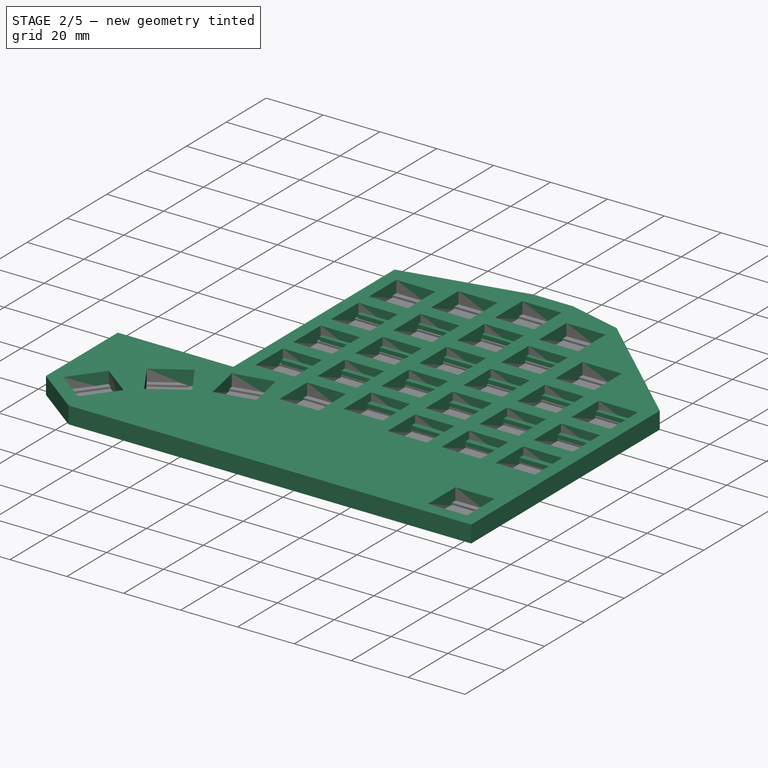
[diagram: stage 2 of 5 — iso view after this stage's code; geometry added in this stage tinted green]
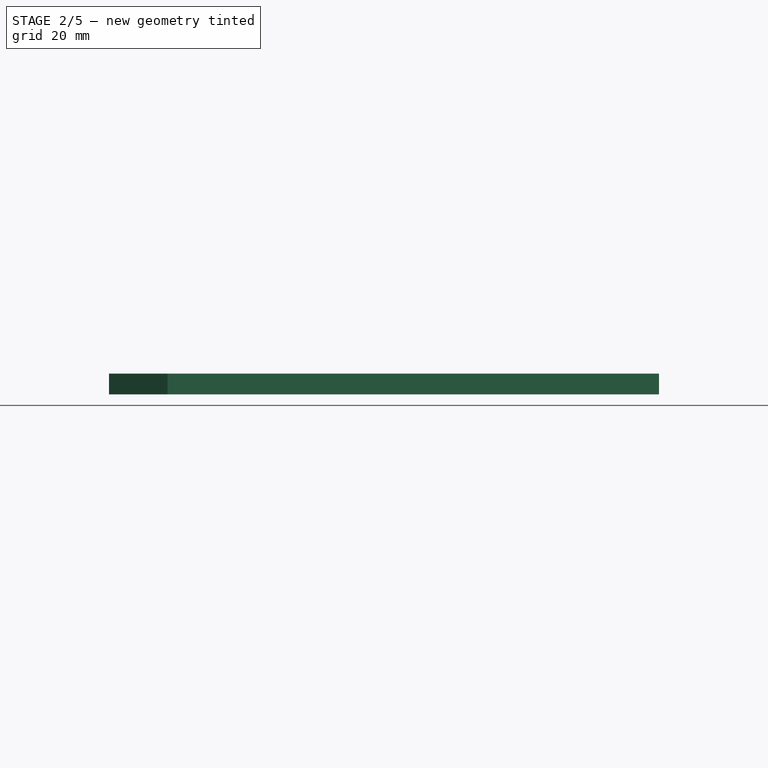
[diagram: stage 2 of 5 — front view after this stage's code; geometry added in this stage tinted green]
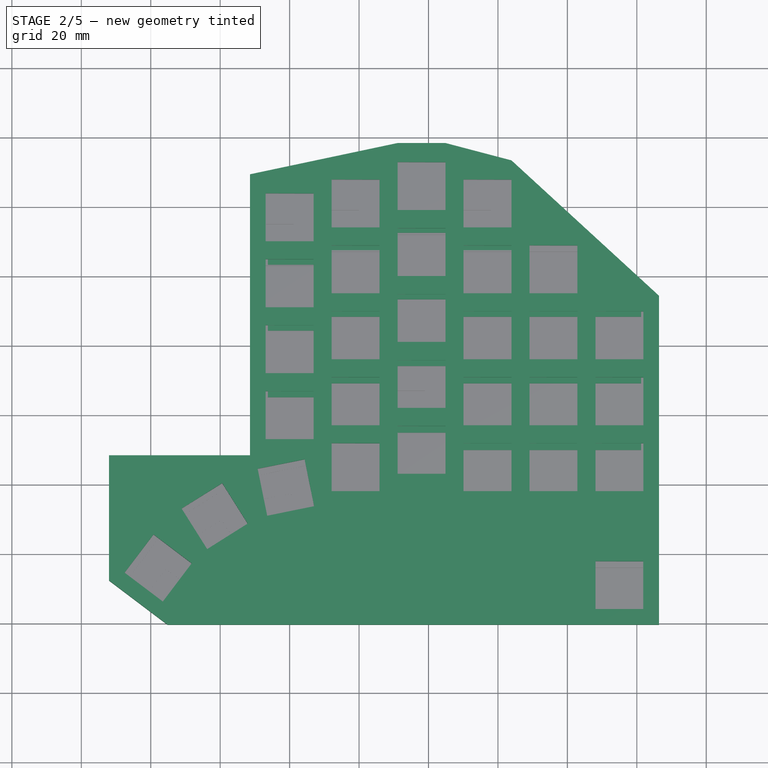
[diagram: stage 2 of 5 — top view after this stage's code; geometry added in this stage tinted green]
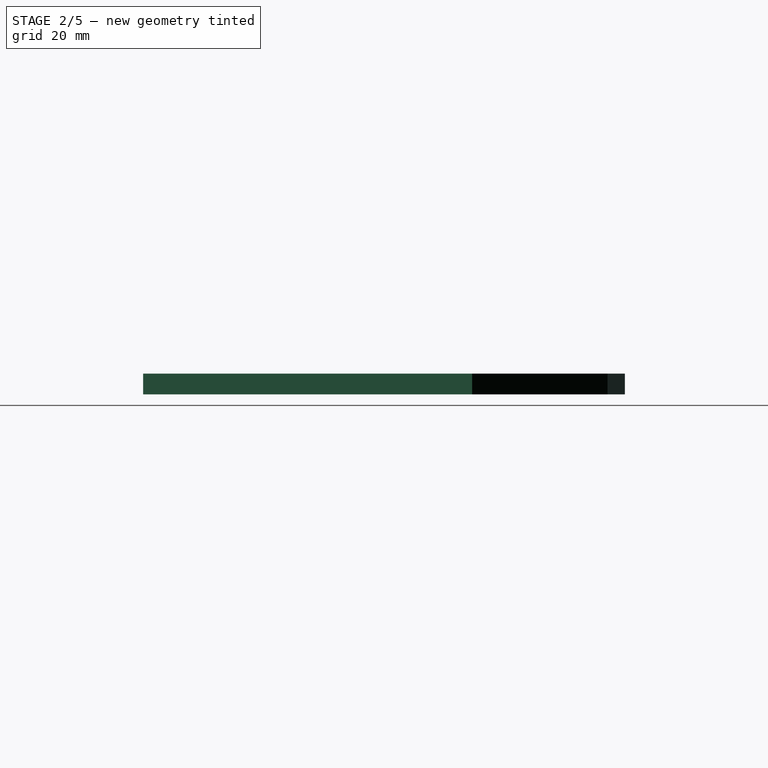
[diagram: stage 2 of 5 — right view after this stage's code; geometry added in this stage tinted green]
FEATURE [Sketcher::SketchObject] Sketch  label="SketchTop"
  FullyConstrained = true
  MapMode = 5
  Support = -> [XY_Plane]
  expr: Constraints[247] = <<ss>>.ss_sw_side
  expr: Constraints[479] = <<ss>>.ss_sw_side
  expr: Constraints[480] = <<ss>>.ss_sw_side
  sketch-geometry (190):
    g0: LineSegment StartX=-6.9 StartY=-6.9 StartZ=0 EndX=6.9 EndY=-6.9 EndZ=0
    g1: LineSegment StartX=-6.9 StartY=-6.9 StartZ=0 EndX=-6.9 EndY=6.9 EndZ=0
    g2: LineSegment StartX=-6.9 StartY=6.9 StartZ=0 EndX=6.9 EndY=6.9 EndZ=0
    g3: LineSegment StartX=6.9 StartY=-6.9 StartZ=0 EndX=6.9 EndY=6.9 EndZ=0
    g4: LineSegment StartX=-6.9 StartY=12.1 StartZ=0 EndX=6.9 EndY=12.1 EndZ=0
    g5: LineSegment StartX=-6.9 StartY=12.1 StartZ=0 EndX=-6.9 EndY=25.9 EndZ=0
    g6: LineSegment StartX=-6.9 StartY=25.9 StartZ=0 EndX=6.9 EndY=25.9 EndZ=0
    g7: LineSegment StartX=6.9 StartY=12.1 StartZ=0 EndX=6.9 EndY=25.9 EndZ=0
    g8: LineSegment StartX=-6.9 StartY=31.1 StartZ=0 EndX=6.9 EndY=31.1 EndZ=0
    g9: LineSegment StartX=-6.9 StartY=31.1 StartZ=0 EndX=-6.9 EndY=44.9 EndZ=0
    g10: LineSegment StartX=-6.9 StartY=44.9 StartZ=0 EndX=6.9 EndY=44.9 EndZ=0
    g11: LineSegment StartX=6.9 StartY=31.1 StartZ=0 EndX=6.9 EndY=44.9 EndZ=0
    g12: LineSegment StartX=-6.9 StartY=50.1 StartZ=0 EndX=6.9 EndY=50.1 EndZ=0
    g13: LineSegment StartX=-6.9 StartY=50.1 StartZ=0 EndX=-6.9 EndY=63.9 EndZ=0
    g14: LineSegment StartX=-6.9 StartY=63.9 StartZ=0 EndX=6.9 EndY=63.9 EndZ=0
    g15: LineSegment StartX=6.9 StartY=50.1 StartZ=0 EndX=6.9 EndY=63.9 EndZ=0
    g16: LineSegment StartX=12.1 StartY=-21.9 StartZ=0 EndX=25.9 EndY=-21.9 EndZ=0
    g17: LineSegment StartX=12.1 StartY=-21.9 StartZ=0 EndX=12.1 EndY=-8.1 EndZ=0
    g18: LineSegment StartX=12.1 StartY=-8.1 StartZ=0 EndX=25.9 EndY=-8.1 EndZ=0
    g19: LineSegment StartX=25.9 StartY=-21.9 StartZ=0 EndX=25.9 EndY=-8.1 EndZ=0
    g20: LineSegment StartX=12.1 StartY=-2.9 StartZ=0 EndX=25.9 EndY=-2.9 EndZ=0
    g21: LineSegment StartX=12.1 StartY=-2.9 StartZ=0 EndX=12.1 EndY=10.9 EndZ=0
    g22: LineSegment StartX=12.1 StartY=10.9 StartZ=0 EndX=25.9 EndY=10.9 EndZ=0
    g23: LineSegment StartX=25.9 StartY=-2.9 StartZ=0 EndX=25.9 EndY=10.9 EndZ=0
    g24: LineSegment StartX=12.1 StartY=16.1 StartZ=0 EndX=25.9 EndY=16.1 EndZ=0
    g25: LineSegment StartX=12.1 StartY=16.1 StartZ=0 EndX=12.1 EndY=29.9 EndZ=0
    g26: LineSegment StartX=12.1 StartY=29.9 StartZ=0 EndX=25.9 EndY=29.9 EndZ=0
    g27: LineSegment StartX=25.9 StartY=16.1 StartZ=0 EndX=25.9 EndY=29.9 EndZ=0
    g28: LineSegment StartX=12.1 StartY=35.1 StartZ=0 EndX=25.9 EndY=35.1 EndZ=0
    g29: LineSegment StartX=12.1 StartY=35.1 StartZ=0 EndX=12.1 EndY=48.9 EndZ=0
    g30: LineSegment StartX=12.1 StartY=48.9 StartZ=0 EndX=25.9 EndY=48.9 EndZ=0
    g31: LineSegment StartX=25.9 StartY=35.1 StartZ=0 EndX=25.9 EndY=48.9 EndZ=0
    g32: LineSegment StartX=12.1 StartY=54.1 StartZ=0 EndX=25.9 EndY=54.1 EndZ=0
    g33: LineSegment StartX=12.1 StartY=54.1 StartZ=0 EndX=12.1 EndY=67.9 EndZ=0
    g34: LineSegment StartX=12.1 StartY=67.9 StartZ=0 EndX=25.9 EndY=67.9 EndZ=0
    g35: LineSegment StartX=25.9 StartY=54.1 StartZ=0 EndX=25.9 EndY=67.9 EndZ=0
    g36: LineSegment StartX=31.1 StartY=-16.9 StartZ=0 EndX=44.9 EndY=-16.9 EndZ=0
    g37: LineSegment StartX=31.1 StartY=-16.9 StartZ=0 EndX=31.1 EndY=-3.1 EndZ=0
    g38: LineSegment StartX=31.1 StartY=-3.1 StartZ=0 EndX=44.9 EndY=-3.1 EndZ=0
    g39: LineSegment StartX=44.9 StartY=-16.9 StartZ=0 EndX=44.9 EndY=-3.1 EndZ=0
    g40: LineSegment StartX=31.1 StartY=2.1 StartZ=0 EndX=44.9 EndY=2.1 EndZ=0
    g41: LineSegment StartX=31.1 StartY=2.1 StartZ=0 EndX=31.1 EndY=15.9 EndZ=0
    g42: LineSegment StartX=31.1 StartY=15.9 StartZ=0 EndX=44.9 EndY=15.9 EndZ=0
    g43: LineSegment StartX=44.9 StartY=2.1 StartZ=0 EndX=44.9 EndY=15.9 EndZ=0
    g44: LineSegment StartX=31.1 StartY=21.1 StartZ=0 EndX=44.9 EndY=21.1 EndZ=0
    g45: LineSegment StartX=31.1 StartY=21.1 StartZ=0 EndX=31.1 EndY=34.9 EndZ=0
    g46: LineSegment StartX=31.1 StartY=34.9 StartZ=0 EndX=44.9 EndY=34.9 EndZ=0
    g47: LineSegment StartX=44.9 StartY=21.1 StartZ=0 EndX=44.9 EndY=34.9 EndZ=0
    g48: LineSegment StartX=31.1 StartY=40.1 StartZ=0 EndX=44.9 EndY=40.1 EndZ=0
    g49: LineSegment StartX=31.1 StartY=40.1 StartZ=0 EndX=31.1 EndY=53.9 EndZ=0
    g50: LineSegment StartX=31.1 StartY=53.9 StartZ=0 EndX=44.9 EndY=53.9 EndZ=0
    g51: LineSegment StartX=44.9 StartY=40.1 StartZ=0 EndX=44.9 EndY=53.9 EndZ=0
    g52: LineSegment StartX=31.1 StartY=59.1 StartZ=0 EndX=44.9 EndY=59.1 EndZ=0
    g53: LineSegment StartX=31.1 StartY=59.1 StartZ=0 EndX=31.1 EndY=72.9 EndZ=0
    g54: LineSegment StartX=31.1 StartY=72.9 StartZ=0 EndX=44.9 EndY=72.9 EndZ=0
    g55: LineSegment StartX=44.9 StartY=59.1 StartZ=0 EndX=44.9 EndY=72.9 EndZ=0
    g56: LineSegment StartX=50.1 StartY=-21.9 StartZ=0 EndX=63.9 EndY=-21.9 EndZ=0
    g57: LineSegment StartX=50.1 StartY=-21.9 StartZ=0 EndX=50.1 EndY=-8.1 EndZ=0
    g58: LineSegment StartX=50.1 StartY=-8.1 StartZ=0 EndX=63.9 EndY=-8.1 EndZ=0
    g59: LineSegment StartX=63.9 StartY=-21.9 StartZ=0 EndX=63.9 EndY=-8.1 EndZ=0
    g60: LineSegment StartX=50.1 StartY=-2.9 StartZ=0 EndX=63.9 EndY=-2.9 EndZ=0
    g61: LineSegment StartX=50.1 StartY=-2.9 StartZ=0 EndX=50.1 EndY=10.9 EndZ=0
    g62: LineSegment StartX=50.1 StartY=10.9 StartZ=0 EndX=63.9 EndY=10.9 EndZ=0
    g63: LineSegment StartX=63.9 StartY=-2.9 StartZ=0 EndX=63.9 EndY=10.9 EndZ=0
    g64: LineSegment StartX=50.1 StartY=16.1 StartZ=0 EndX=63.9 EndY=16.1 EndZ=0
    g65: LineSegment StartX=50.1 StartY=16.1 StartZ=0 EndX=50.1 EndY=29.9 EndZ=0
    g66: LineSegment StartX=50.1 StartY=29.9 StartZ=0 EndX=63.9 EndY=29.9 EndZ=0
    g67: LineSegment StartX=63.9 StartY=16.1 StartZ=0 EndX=63.9 EndY=29.9 EndZ=0
    g68: LineSegment StartX=50.1 StartY=35.1 StartZ=0 EndX=63.9 EndY=35.1 EndZ=0
    g69: LineSegment StartX=50.1 StartY=35.1 StartZ=0 EndX=50.1 EndY=48.9 EndZ=0
    g70: LineSegment StartX=50.1 StartY=48.9 StartZ=0 EndX=63.9 EndY=48.9 EndZ=0
    g71: LineSegment StartX=63.9 StartY=35.1 StartZ=0 EndX=63.9 EndY=48.9 EndZ=0
    g72: LineSegment StartX=50.1 StartY=54.1 StartZ=0 EndX=63.9 EndY=54.1 EndZ=0
    g73: LineSegment StartX=50.1 StartY=54.1 StartZ=0 EndX=50.1 EndY=67.9 EndZ=0
    g74: LineSegment StartX=50.1 StartY=67.9 StartZ=0 EndX=63.9 EndY=67.9 EndZ=0
    g75: LineSegment StartX=63.9 StartY=54.1 StartZ=0 EndX=63.9 EndY=67.9 EndZ=0
    g76: LineSegment StartX=69.1 StartY=-21.9 StartZ=0 EndX=82.9 EndY=-21.9 EndZ=0
    g77: LineSegment StartX=69.1 StartY=-21.9 StartZ=0 EndX=69.1 EndY=-8.1 EndZ=0
    g78: LineSegment StartX=69.1 StartY=-8.1 StartZ=0 EndX=82.9 EndY=-8.1 EndZ=0
    g79: LineSegment StartX=82.9 StartY=-21.9 StartZ=0 EndX=82.9 EndY=-8.1 EndZ=0
    g80: LineSegment StartX=69.1 StartY=-2.9 StartZ=0 EndX=82.9 EndY=-2.9 EndZ=0
    g81: LineSegment StartX=69.1 StartY=-2.9 StartZ=0 EndX=69.1 EndY=10.9 EndZ=0
    g82: LineSegment StartX=69.1 StartY=10.9 StartZ=0 EndX=82.9 EndY=10.9 EndZ=0
    g83: LineSegment StartX=82.9 StartY=-2.9 StartZ=0 EndX=82.9 EndY=10.9 EndZ=0
    g84: LineSegment StartX=69.1 StartY=16.1 StartZ=0 EndX=82.9 EndY=16.1 EndZ=0
    g85: LineSegment StartX=69.1 StartY=16.1 StartZ=0 EndX=69.1 EndY=29.9 EndZ=0
    g86: LineSegment StartX=69.1 StartY=29.9 StartZ=0 EndX=82.9 EndY=29.9 EndZ=0
    g87: LineSegment StartX=82.9 StartY=16.1 StartZ=0 EndX=82.9 EndY=29.9 EndZ=0
    g88: LineSegment StartX=69.1 StartY=35.1 StartZ=0 EndX=82.9 EndY=35.1 EndZ=0
    g89: LineSegment StartX=69.1 StartY=35.1 StartZ=0 EndX=69.1 EndY=48.9 EndZ=0
    g90: LineSegment StartX=69.1 StartY=48.9 StartZ=0 EndX=82.9 EndY=48.9 EndZ=0
    g91: LineSegment StartX=82.9 StartY=35.1 StartZ=0 EndX=82.9 EndY=48.9 EndZ=0
    g92: LineSegment StartX=88.1 StartY=-2.9 StartZ=0 EndX=101.9 EndY=-2.9 EndZ=0
    g93: LineSegment StartX=88.1 StartY=-2.9 StartZ=0 EndX=88.1 EndY=10.9 EndZ=0
    g94: LineSegment StartX=88.1 StartY=10.9 StartZ=0 EndX=101.9 EndY=10.9 EndZ=0
    g95: LineSegment StartX=101.9 StartY=-2.9 StartZ=0 EndX=101.9 EndY=10.9 EndZ=0
    g96: LineSegment StartX=88.1 StartY=16.1 StartZ=0 EndX=101.9 EndY=16.1 EndZ=0
    g97: LineSegment StartX=88.1 StartY=16.1 StartZ=0 EndX=88.1 EndY=29.9 EndZ=0
    g98: LineSegment StartX=88.1 StartY=29.9 StartZ=0 EndX=101.9 EndY=29.9 EndZ=0
    g99: LineSegment StartX=101.9 StartY=16.1 StartZ=0 EndX=101.9 EndY=29.9 EndZ=0
    g100: Circle CenterX=11.1778 CenterY=-81.0686 CenterZ=0 NormalX=0 NormalY=0 NormalZ=1 AngleXU=0 Radius=55
    g101: LineSegment StartX=-9.21354 StartY=-15.4513 StartZ=0 EndX=4.30942 EndY=-12.7 EndZ=0
    g102: LineSegment StartX=4.30942 StartY=-12.7 StartZ=0 EndX=7.06069 EndY=-26.223 EndZ=0
    g103: LineSegment StartX=7.06069 StartY=-26.223 StartZ=0 EndX=-6.46227 EndY=-28.9742 EndZ=0
    g104: LineSegment StartX=-6.46227 StartY=-28.9742 StartZ=0 EndX=-9.21354 EndY=-15.4513 EndZ=0
    g105: LineSegment StartX=-31.1099 StartY=-26.9097 StartZ=0 EndX=-19.435 EndY=-19.5519 EndZ=0
    g106: LineSegment StartX=-19.435 StartY=-19.5519 StartZ=0 EndX=-12.0773 EndY=-31.2269 EndZ=0
    g107: LineSegment StartX=-12.0773 StartY=-31.2269 StartZ=0 EndX=-23.7522 EndY=-38.5846 EndZ=0
    g108: LineSegment StartX=-23.7522 StartY=-38.5846 StartZ=0 EndX=-31.1099 EndY=-26.9097 EndZ=0
    g109: LineSegment StartX=-47.5361 StartY=-45.3738 StartZ=0 EndX=-39.2194 EndY=-34.3614 EndZ=0
    g110: LineSegment StartX=-39.2194 StartY=-34.3614 StartZ=0 EndX=-28.207 EndY=-42.6781 EndZ=0
    g111: LineSegment StartX=-28.207 StartY=-42.6781 StartZ=0 EndX=-36.5237 EndY=-53.6905 EndZ=0
    g112: LineSegment StartX=-36.5237 StartY=-53.6905 StartZ=0 EndX=-47.5361 EndY=-45.3738 EndZ=0
    g113: LineSegment StartX=88.1 StartY=-8.1 StartZ=0 EndX=101.9 EndY=-8.1 EndZ=0
    g114: LineSegment StartX=101.9 StartY=-8.1 StartZ=0 EndX=101.9 EndY=-21.9 EndZ=0
    g115: LineSegment StartX=101.9 StartY=-21.9 StartZ=0 EndX=88.1 EndY=-21.9 EndZ=0
    g116: LineSegment StartX=88.1 StartY=-21.9 StartZ=0 EndX=88.1 EndY=-8.1 EndZ=0
    g117: LineSegment StartX=88.1 StartY=-42.1 StartZ=0 EndX=101.85 EndY=-42.1 EndZ=0
    g118: LineSegment StartX=101.85 StartY=-42.1 StartZ=0 EndX=101.85 EndY=-55.85 EndZ=0
    g119: LineSegment StartX=101.85 StartY=-55.85 StartZ=0 EndX=88.1 EndY=-55.85 EndZ=0
    g120: LineSegment StartX=88.1 StartY=-55.85 StartZ=0 EndX=88.1 EndY=-42.1 EndZ=0
    g121: LineSegment StartX=88.1 StartY=-21.9 StartZ=0 EndX=88.1 EndY=-42.1 EndZ=0
    g122: LineSegment StartX=106.4 StartY=-60.35 StartZ=0 EndX=-35.1726 EndY=-60.35 EndZ=0
    g123: LineSegment StartX=-35.1726 StartY=-60.35 StartZ=0 EndX=-52.0361 EndY=-47.6145 EndZ=0
    g124: LineSegment StartX=-52.0361 StartY=-47.6145 StartZ=0 EndX=-52.0361 EndY=-11.5519 EndZ=0
    g125: LineSegment StartX=-52.0361 StartY=-11.5519 StartZ=0 EndX=-11.4 EndY=-11.5519 EndZ=0
    g126: LineSegment StartX=-11.4 StartY=69.4 StartZ=0 EndX=31.1 EndY=78.4 EndZ=0
    g127: LineSegment StartX=31.1 StartY=78.4 StartZ=0 EndX=44.9 EndY=78.4 EndZ=0
    g128: LineSegment StartX=44.9 StartY=78.4 StartZ=0 EndX=63.9 EndY=73.4 EndZ=0
    g129: LineSegment StartX=63.9 StartY=73.4 StartZ=0 EndX=106.4 EndY=34.4 EndZ=0
    g130: LineSegment StartX=106.4 StartY=34.4 StartZ=0 EndX=106.4 EndY=-60.35 EndZ=0
    g131: LineSegment StartX=31.1 StartY=72.9 StartZ=0 EndX=31.1 EndY=78.4 EndZ=0
    g132: LineSegment StartX=44.9 StartY=72.9 StartZ=0 EndX=44.9 EndY=78.4 EndZ=0
    g133: LineSegment StartX=63.9 StartY=67.9 StartZ=0 EndX=63.9 EndY=73.4 EndZ=0
    g134: LineSegment StartX=-27.9 StartY=-19.5519 StartZ=0 EndX=-12.9 EndY=-19.5519 EndZ=0
    g135: LineSegment StartX=-11.4 StartY=-11.5519 StartZ=0 EndX=-11.4 EndY=69.4 EndZ=0
    g136: LineSegment StartX=-27.9 StartY=-19.5519 StartZ=0 EndX=-27.9 EndY=-11.5519 EndZ=0
    g137: LineSegment StartX=-12.9 StartY=-19.5519 StartZ=0 EndX=-12.9 EndY=-11.5519 EndZ=0
    g138: LineSegment StartX=-30.9 StartY=-11.5519 StartZ=0 EndX=-30.9 EndY=-19.5519 EndZ=0
    g139: LineSegment StartX=-30.9 StartY=-19.5519 StartZ=0 EndX=-45.9 EndY=-19.5519 EndZ=0
    g140: LineSegment StartX=-45.9 StartY=-19.5519 StartZ=0 EndX=-45.9 EndY=-11.5519 EndZ=0
    g141: LineSegment StartX=-6.9 StartY=6.9 StartZ=0 EndX=-6.9 EndY=12.1 EndZ=0
    g142: LineSegment StartX=-6.9 StartY=25.9 StartZ=0 EndX=-6.9 EndY=31.1 EndZ=0
    g143: LineSegment StartX=-6.9 StartY=50.1 StartZ=0 EndX=-6.9 EndY=44.9 EndZ=0
    g144: LineSegment StartX=12.1 StartY=54.1 StartZ=0 EndX=12.1 EndY=48.9 EndZ=0
    g145: LineSegment StartX=12.1 StartY=29.9 StartZ=0 EndX=12.1 EndY=35.1 EndZ=0
    g146: LineSegment StartX=12.1 StartY=10.9 StartZ=0 EndX=12.1 EndY=16.1 EndZ=0
    g147: LineSegment StartX=12.1 StartY=-8.1 StartZ=0 EndX=12.1 EndY=-2.9 EndZ=0
    g148: LineSegment StartX=31.1 StartY=-3.1 StartZ=0 EndX=31.1 EndY=2.1 EndZ=0
    g149: LineSegment StartX=31.1 StartY=15.9 StartZ=0 EndX=31.1 EndY=21.1 EndZ=0
    g150: LineSegment StartX=31.1 StartY=34.9 StartZ=0 EndX=31.1 EndY=40.1 EndZ=0
    g151: LineSegment StartX=31.1 StartY=53.9 StartZ=0 EndX=31.1 EndY=59.1 EndZ=0
    g152: LineSegment StartX=50.1 StartY=-8.1 StartZ=0 EndX=50.1 EndY=-2.9 EndZ=0
    g153: LineSegment StartX=50.1 StartY=10.9 StartZ=0 EndX=50.1 EndY=16.1 EndZ=0
    g154: LineSegment StartX=50.1 StartY=29.9 StartZ=0 EndX=50.1 EndY=35.1 EndZ=0
    g155: LineSegment StartX=50.1 StartY=48.9 StartZ=0 EndX=50.1 EndY=54.1 EndZ=0
    g156: LineSegment StartX=69.1 StartY=-8.1 StartZ=0 EndX=69.1 EndY=-2.9 EndZ=0
    g157: LineSegment StartX=69.1 StartY=10.9 StartZ=0 EndX=69.1 EndY=16.1 EndZ=0
    g158: LineSegment StartX=69.1 StartY=29.9 StartZ=0 EndX=69.1 EndY=35.1 EndZ=0
    g159: LineSegment StartX=88.1 StartY=-8.1 StartZ=0 EndX=88.1 EndY=-2.9 EndZ=0
    g160: LineSegment StartX=88.1 StartY=10.9 StartZ=0 EndX=88.1 EndY=16.1 EndZ=0
    g161: LineSegment StartX=63.9 StartY=-21.9 StartZ=0 EndX=69.1 EndY=-21.9 EndZ=0
    g162: LineSegment StartX=82.9 StartY=-21.9 StartZ=0 EndX=88.1 EndY=-21.9 EndZ=0
    g163: LineSegment StartX=12.1 StartY=-2.9 StartZ=0 EndX=6.9 EndY=-2.9 EndZ=0
    g164: LineSegment StartX=25.9 StartY=-8.1 StartZ=0 EndX=31.1 EndY=-8.1 EndZ=0
    g165: LineSegment StartX=50.1 StartY=-8.1 StartZ=0 EndX=44.9 EndY=-8.1 EndZ=0
    g166: GeomPoint X=-1.07642 Y=-20.8371 Z=0
    g167: GeomPoint X=-37.8716 Y=-44.026 Z=0
    g168: GeomPoint X=-21.5936 Y=-29.0683 Z=0
    g169: GeomPoint X=19 Y=-15 Z=0
    g170: GeomPoint X=38 Y=-10 Z=0
    g171: GeomPoint X=57 Y=-15 Z=0
    g172: GeomPoint X=-20.4 Y=-11.5519 Z=0
    g173: GeomPoint X=-38.4 Y=-11.5519 Z=0
    g174: LineSegment StartX=9.8 StartY=-24.2 StartZ=0 EndX=28.2 EndY=-24.2 EndZ=0
    g175: LineSegment StartX=28.2 StartY=-24.2 StartZ=0 EndX=28.2 EndY=-5.8 EndZ=0
    g176: LineSegment StartX=28.2 StartY=-5.8 StartZ=0 EndX=9.8 EndY=-5.8 EndZ=0
    g177: LineSegment StartX=9.8 StartY=-5.8 StartZ=0 EndX=9.8 EndY=-24.2 EndZ=0
    g178: LineSegment StartX=-9.2 StartY=-9.2 StartZ=0 EndX=9.2 EndY=-9.2 EndZ=0
    g179: LineSegment StartX=9.2 StartY=-9.2 StartZ=0 EndX=9.2 EndY=9.2 EndZ=0
    g180: LineSegment StartX=9.2 StartY=9.2 StartZ=0 EndX=-9.2 EndY=9.2 EndZ=0
    g181: LineSegment StartX=-9.2 StartY=9.2 StartZ=0 EndX=-9.2 EndY=-9.2 EndZ=0
    g182: LineSegment StartX=-11.9259 StartY=-13.656 StartZ=0 EndX=-8.25755 EndY=-31.6866 EndZ=0
    g183: LineSegment StartX=-8.25755 StartY=-31.6866 StartZ=0 EndX=9.77307 EndY=-28.0182 EndZ=0
    g184: LineSegment StartX=9.77307 StartY=-28.0182 StartZ=0 EndX=6.1047 EndY=-9.98763 EndZ=0
    g185: LineSegment StartX=6.1047 StartY=-9.98763 StartZ=0 EndX=-11.9259 EndY=-13.656 EndZ=0
    g186: LineSegment StartX=-34.282 StartY=-26.1901 StartZ=0 EndX=-18.7154 EndY=-16.3798 EndZ=0
    g187: LineSegment StartX=-18.7154 StartY=-16.3798 StartZ=0 EndX=-8.90515 EndY=-31.9464 EndZ=0
    g188: LineSegment StartX=-8.90515 StartY=-31.9464 StartZ=0 EndX=-24.4717 EndY=-41.7567 EndZ=0
    g189: LineSegment StartX=-24.4717 StartY=-41.7567 StartZ=0 EndX=-34.282 EndY=-26.1901 EndZ=0
  constraints (558):
    c: Coincident(g0,g1)
    c: Coincident(g1,g2)
    c: Coincident(g2,g3)
    c: Coincident(g0,g3)
    c: Horizontal(g2)
    c: Horizontal(g0)
    c: Vertical(g1)
    c: Vertical(g3)
    c: Coincident(g4,g5)
    c: Coincident(g5,g6)
    c: Coincident(g6,g7)
    c: Coincident(g4,g7)
    c: Horizontal(g6)
    c: Horizontal(g4)
    c: Vertical(g5)
    c: Vertical(g7)
    c: Coincident(g8,g9)
    c: Coincident(g9,g10)
    c: Coincident(g10,g11)
    c: Coincident(g8,g11)
    c: Horizontal(g10)
    c: Horizontal(g8)
    c: Vertical(g9)
    c: Vertical(g11)
    c: Coincident(g12,g13)
    c: Coincident(g13,g14)
    c: Coincident(g14,g15)
    c: Coincident(g12,g15)
    c: Horizontal(g14)
    c: Horizontal(g12)
    c: Vertical(g13)
    c: Vertical(g15)
    c: Coincident(g16,g17)
    c: Coincident(g17,g18)
    c: Coincident(g18,g19)
    c: Coincident(g16,g19)
    c: Horizontal(g18)
    c: Horizontal(g16)
    c: Vertical(g17)
    c: Vertical(g19)
    c: Coincident(g20,g21)
    c: Coincident(g21,g22)
    c: Coincident(g22,g23)
    c: Coincident(g20,g23)
    c: Horizontal(g22)
    c: Horizontal(g20)
    c: Vertical(g21)
    c: Vertical(g23)
    c: Coincident(g24,g25)
    c: Coincident(g25,g26)
    c: Coincident(g26,g27)
    c: Coincident(g24,g27)
    c: Horizontal(g26)
    c: Horizontal(g24)
    c: Vertical(g25)
    c: Vertical(g27)
    c: Coincident(g28,g29)
    c: Coincident(g29,g30)
    c: Coincident(g30,g31)
    c: Coincident(g28,g31)
    c: Horizontal(g30)
    c: Horizontal(g28)
    c: Vertical(g29)
    c: Vertical(g31)
    c: Coincident(g32,g33)
    c: Coincident(g33,g34)
    c: Coincident(g34,g35)
    c: Coincident(g32,g35)
    c: Horizontal(g34)
    c: Horizontal(g32)
    c: Vertical(g33)
    c: Vertical(g35)
    c: Coincident(g36,g37)
    c: Coincident(g37,g38)
    c: Coincident(g38,g39)
    c: Coincident(g36,g39)
    c: Horizontal(g38)
    c: Horizontal(g36)
    c: Vertical(g37)
    c: Vertical(g39)
    c: Coincident(g40,g41)
    c: Coincident(g41,g42)
    c: Coincident(g42,g43)
    c: Coincident(g40,g43)
    c: Horizontal(g42)
    c: Horizontal(g40)
    c: Vertical(g41)
    c: Vertical(g43)
    c: Coincident(g44,g45)
    c: Coincident(g45,g46)
    c: Coincident(g46,g47)
    c: Coincident(g44,g47)
    c: Horizontal(g46)
    c: Horizontal(g44)
    c: Vertical(g45)
    c: Vertical(g47)
    c: Coincident(g48,g49)
    c: Coincident(g49,g50)
    c: Coincident(g50,g51)
    c: Coincident(g48,g51)
    c: Horizontal(g50)
    c: Horizontal(g48)
    c: Vertical(g49)
    c: Vertical(g51)
    c: Coincident(g52,g53)
    c: Coincident(g53,g54)
    c: Coincident(g54,g55)
    c: Coincident(g52,g55)
    c: Horizontal(g54)
    c: Horizontal(g52)
    c: Vertical(g53)
    c: Vertical(g55)
    c: Coincident(g56,g57)
    c: Coincident(g57,g58)
    c: Coincident(g58,g59)
    c: Coincident(g56,g59)
    c: Horizontal(g58)
    c: Horizontal(g56)
    c: Vertical(g57)
    c: Vertical(g59)
    c: Coincident(g60,g61)
    c: Coincident(g61,g62)
    c: Coincident(g62,g63)
    c: Coincident(g60,g63)
    c: Horizontal(g62)
    c: Horizontal(g60)
    c: Vertical(g61)
    c: Vertical(g63)
    c: Coincident(g64,g65)
    c: Coincident(g65,g66)
    c: Coincident(g66,g67)
    c: Coincident(g64,g67)
    c: Horizontal(g66)
    c: Horizontal(g64)
    c: Vertical(g65)
    c: Vertical(g67)
    c: Coincident(g68,g69)
    c: Coincident(g69,g70)
    c: Coincident(g70,g71)
    c: Coincident(g68,g71)
    c: Horizontal(g70)
    c: Horizontal(g68)
    c: Vertical(g69)
    c: Vertical(g71)
    c: Coincident(g72,g73)
    c: Coincident(g73,g74)
    c: Coincident(g74,g75)
    c: Coincident(g72,g75)
    c: Horizontal(g74)
    c: Horizontal(g72)
    c: Vertical(g73)
    c: Vertical(g75)
    c: Coincident(g76,g77)
    c: Coincident(g77,g78)
    c: Coincident(g78,g79)
    c: Coincident(g76,g79)
    c: Horizontal(g78)
    c: Horizontal(g76)
    c: Vertical(g77)
    c: Vertical(g79)
    c: Coincident(g80,g81)
    c: Coincident(g81,g82)
    c: Coincident(g82,g83)
    c: Coincident(g80,g83)
    c: Horizontal(g82)
    c: Horizontal(g80)
    c: Vertical(g81)
    c: Vertical(g83)
    c: Coincident(g84,g85)
    c: Coincident(g85,g86)
    c: Coincident(g86,g87)
    c: Coincident(g84,g87)
    c: Horizontal(g86)
    c: Horizontal(g84)
    c: Vertical(g85)
    c: Vertical(g87)
    c: Coincident(g88,g89)
    c: Coincident(g89,g90)
    c: Coincident(g90,g91)
    c: Coincident(g88,g91)
    c: Horizontal(g90)
    c: Horizontal(g88)
    c: Vertical(g89)
    c: Vertical(g91)
    c: Coincident(g92,g93)
    c: Coincident(g93,g94)
    c: Coincident(g94,g95)
    c: Coincident(g92,g95)
    c: Horizontal(g94)
    c: Horizontal(g92)
    c: Vertical(g93)
    c: Vertical(g95)
    c: Coincident(g96,g97)
    c: Coincident(g97,g98)
    c: Coincident(g98,g99)
    c: Coincident(g96,g99)
    c: Horizontal(g98)
    c: Horizontal(g96)
    c: Vertical(g97)
    c: Vertical(g99)
    c: Radius(g100) = 55
    c: Coincident(g101,g102)
    c: Coincident(g102,g103)
    c: Coincident(g103,g104)
    c: Coincident(g104,g101)
    c: Perpendicular(g101,g104)
    c: Perpendicular(g102,g103)
    c: Equal(g102,g101)
    c: Coincident(g105,g106)
    c: Coincident(g106,g107)
    c: Coincident(g107,g108)
    c: Coincident(g108,g105)
    c: Perpendicular(g106,g105)
    c: Perpendicular(g105,g108)
    c: Perpendicular(g106,g107)
    c: Equal(g106,g105)
    c: Coincident(g109,g110)
    c: Coincident(g110,g111)
    c: Coincident(g111,g112)
    c: Coincident(g112,g109)
    c: Perpendicular(g110,g109)
    c: Perpendicular(g109,g112)
    c: Perpendicular(g110,g111)
    c: Equal(g110,g109)
    c: PointOnObject(g102,g100)
    c: PointOnObject(g103,g100)
    c: PointOnObject(g106,g100)
    c: PointOnObject(g107,g100)
    c: PointOnObject(g110,g100)
    c: PointOnObject(g111,g100)
    c: Coincident(g113,g114)
    c: Coincident(g114,g115)
    c: Coincident(g115,g116)
    c: Coincident(g116,g113)
    c: Horizontal(g113)
    c: Horizontal(g115)
    c: Vertical(g114)
    c: Vertical(g116)
    c: Equal(g113,g114)
    c: Coincident(g117,g118)
    c: Coincident(g118,g119)
    c: Coincident(g119,g120)
    c: Coincident(g120,g117)
    c: Horizontal(g117)
    c: Horizontal(g119)
    c: Vertical(g118)
    c: Vertical(g120)
    c: Equal(g117,g118) = 13.8
    c: DistanceY(g118,g118) = 13.75
    c: Coincident(g121,g115)
    c: Coincident(g121,g117)
    c: Vertical(g121)
    c: DistanceY(g117,g94) = 53
    c: Angle(g-2,g102) = 0.200713
    c: Horizontal(g122)
    c: Coincident(g122,g123)
    c: Coincident(g124,g125)
    c: Coincident(g126,g127)
    c: Horizontal(g127)
    c: Coincident(g127,g128)
    c: Coincident(g128,g129)
    c: Coincident(g129,g130)
    c: Vertical(g130)
    c: Coincident(g122,g130)
    c: DistanceX(g126,g13) = 4.5
    c: DistanceY(g13,g126) = 5.5
    c: DistanceY(g53,g126) = 5.5
    c: Coincident(g131,g53)
    c: Coincident(g131,g126)
    c: Vertical(g131)
    c: Coincident(g132,g54)
    c: Coincident(g132,g127)
    c: Vertical(g132)
    c: Coincident(g133,g74)
    c: Coincident(g133,g128)
    c: Vertical(g133)
    c: DistanceY(g133,g133) = 5.5
    c: DistanceX(g98,g129) = 4.5
    c: DistanceY(g122,g118) = 4.5
    c: Parallel(g123,g112)
    c: Perpendicular(g104,g103)
    c: Distance(g134) = 15
    c: Coincident(g135,g126)
    c: Vertical(g135)
    c: PointOnObject(g136,g125)
    c: PointOnObject(g137,g125)
    c: Perpendicular(g125,g137)
    c: Equal(g136,g137)
    c: Distance(g134,g137) = 8
    c: Coincident(g136,g134)
    c: Coincident(g134,g137)
    c: Perpendicular(g134,g136)
    c: Coincident(g125,g135)
    c: Horizontal(g125)
    c: PointOnObject(g138,g125)
    c: Vertical(g138)
    c: Coincident(g138,g139)
    c: Horizontal(g139)
    c: Coincident(g139,g140)
    c: PointOnObject(g140,g125)
    c: Perpendicular(g125,g140)
    c: DistanceX(g138,g136) = 3
    c: PointOnObject(g105,g134)
    c: Equal(g139,g134)
    c: Coincident(g124,g123)
    c: Vertical(g124)
    c: Distance(g109,g123) = 4.5
    c: Equal(g138,g137)
    c: Angle(g-2,g106) = 0.56234
    c: Angle(g-2,g110) = 0.923968
    c: Equal(g102,g3)
    c: Coincident(g141,g1)
    c: Coincident(g141,g4)
    c: Coincident(g142,g5)
    c: Coincident(g142,g8)
    c: Vertical(g142)
    c: Coincident(g143,g12)
    c: Coincident(g143,g9)
    c: Vertical(g143)
    c: Coincident(g144,g32)
    c: Coincident(g144,g29)
    c: Vertical(g144)
    c: Coincident(g145,g25)
    c: Coincident(g145,g28)
    c: Vertical(g145)
    c: Coincident(g146,g21)
    c: Coincident(g146,g24)
    c: Vertical(g146)
    c: Coincident(g147,g17)
    c: Coincident(g147,g20)
    c: Vertical(g147)
    c: Coincident(g148,g37)
    c: Coincident(g148,g40)
    c: Vertical(g148)
    c: Coincident(g149,g41)
    c: Coincident(g149,g44)
    c: Vertical(g149)
    c: Coincident(g150,g45)
    c: Coincident(g150,g48)
    c: Vertical(g150)
    c: Coincident(g151,g49)
    c: Coincident(g151,g52)
    c: Vertical(g151)
    c: Coincident(g152,g57)
    c: Coincident(g152,g60)
    c: Vertical(g152)
    c: Coincident(g153,g61)
    c: Coincident(g153,g64)
    c: Vertical(g153)
    c: Coincident(g154,g65)
    c: Coincident(g154,g68)
    c: Vertical(g154)
    c: Coincident(g155,g69)
    c: Coincident(g155,g72)
    c: Vertical(g155)
    c: Coincident(g156,g77)
    c: Coincident(g156,g80)
    c: Vertical(g156)
    c: Coincident(g157,g81)
    c: Coincident(g157,g84)
    c: Vertical(g157)
    c: Coincident(g158,g85)
    c: Coincident(g158,g88)
    c: Vertical(g158)
    c: Coincident(g159,g113)
    c: Coincident(g159,g92)
    c: Coincident(g160,g93)
    c: Coincident(g160,g96)
    c: Vertical(g160)
    c: Coincident(g161,g56)
    c: Coincident(g161,g76)
    c: Horizontal(g161)
    c: Coincident(g162,g76)
    c: Coincident(g162,g115)
    c: Horizontal(g162)
    c: Equal(g67,g71)
    c: Equal(g71,g75)
    c: Equal(g75,g79)
    c: Equal(g79,g83)
    c: Equal(g83,g87)
    c: Equal(g87,g91)
    c: Equal(g91,g95)
    c: Equal(g95,g99)
    c: Equal(g99,g114)
    c: Equal(g114,g59)
    c: Equal(g59,g63)
    c: Equal(g63,g39)
    c: Equal(g39,g43)
    c: Equal(g43,g47)
    c: Equal(g47,g51)
    c: Equal(g51,g55)
    c: Equal(g55,g35)
    c: Equal(g35,g31)
    c: Equal(g31,g27)
    c: Equal(g27,g23)
    c: Equal(g23,g19)
    c: Equal(g19,g7)
    c: Equal(g7,g3)
    c: Equal(g3,g11)
    c: Equal(g11,g15)
    c: Equal(g14,g10)
    c: Equal(g10,g6)
    c: Equal(g6,g2)
    c: Equal(g2,g34)
    c: Equal(g34,g30)
    c: Equal(g30,g26)
    c: Equal(g26,g22)
    c: Equal(g22,g18)
    c: Equal(g18,g54)
    c: Equal(g54,g50)
    c: Equal(g50,g46)
    c: Equal(g46,g42)
    c: Equal(g42,g38)
    c: Equal(g38,g74)
    c: Equal(g74,g70)
    c: Equal(g70,g66)
    c: Equal(g66,g62)
    c: Equal(g62,g58)
    c: Equal(g58,g90)
    c: Equal(g90,g86)
    c: Equal(g86,g82)
    c: Equal(g82,g78)
    c: Equal(g78,g98)
    c: Equal(g98,g94)
    c: DistanceY(g141,g141) = 5.2
    c: Equal(g141,g146)
    c: Equal(g146,g142)
    c: Equal(g142,g145)
    c: Equal(g145,g143)
    c: Equal(g143,g144)
    c: Equal(g144,g151)
    c: Equal(g151,g150)
    c: Equal(g150,g149)
    c: Equal(g149,g148)
    c: Equal(g148,g152)
    c: Equal(g152,g153)
    c: Equal(g153,g154)
    c: Equal(g154,g155)
    c: Equal(g155,g158)
    c: Equal(g158,g157)
    c: Equal(g157,g156)
    c: Equal(g156,g161)
    c: Equal(g161,g162)
    c: Equal(g162,g159)
    c: Equal(g159,g160)
    c: Distance(g106,g103) = 6.05
    c: Distance(g107,g110) = 6.05
    c: Distance(g16,g102) = 5.8
    c: Distance(g101,g0) = 5.8
    c: Equal(g102,g106)
    c: Equal(g106,g110)
    c: Coincident(g163,g20)
    c: PointOnObject(g163,g3)
    c: Horizontal(g163)
    c: Coincident(g164,g18)
    c: PointOnObject(g164,g37)
    c: Horizontal(g164)
    c: Coincident(g165,g57)
    c: PointOnObject(g165,g39)
    c: Horizontal(g165)
    c: Equal(g165,g164)
    c: Equal(g164,g163)
    c: Equal(g163,g141)
    c: Equal(g147,g141)
    c: Vertical(g159)
    c: Symmetric(g103,g101,g166)
    c: Symmetric(g109,g111,g167)
    c: Symmetric(g105,g107,g168)
    c: DistanceY(g168,g-1) = 29.0683
    c: DistanceY(g167,g-1) = 44.026
    c: DistanceX(g168,g-1) = 21.5936
    c: DistanceX(g167,g-1) = 37.8716
    c: Symmetric(g16,g18,g169)
    c: Symmetric(g36,g38,g170)
    c: Symmetric(g56,g58,g171)
    c: DistanceY(g56,g36) = 5
    c: DistanceY(g16,g36) = 5
    c: DistanceY(g0,g20) = 4
    c: Vertical(g141)
    c: DistanceX(g2,g2) = 13.8
    c: DistanceY(g3,g3) = 13.8
    c: Symmetric(g0,g2,g-1)
    c: DistanceY(g166,g-1) = 20.8371
    c: DistanceX(g166,g-1) = 1.07642
    c: Symmetric(g140,g138,g173)
    c: DistanceX(g172,g125) = 9
    c: DistanceX(g173,g172) = 18
    c: Symmetric(g136,g137,g172)
    c: Distance(g109,g124) = 4.5
    c: DistanceX(g122) = 106.4
    c: DistanceX(g-1,g122) = 106.4
    c: DistanceX(g122,g-1) = 35.1726
    c: DistanceY(g130,g130) = 94.75
    c: Distance(g123) = 21.1323
    c: Distance(g124) = 36.0625
    c: Distance(g125) = 40.6361
    c: Distance(g135) = 80.9519
    c: Distance(g126) = 43.4425
    c: Distance(g129) = 57.6823
    c: Distance(g128) = 19.6469
    c: Distance(g127) = 13.8
    c: DistanceY(g125,g-1) = 11.5519
    c: DistanceX(g172,g-1) = 20.4
    c: Coincident(g174,g175)
    c: Coincident(g175,g176)
    c: Coincident(g176,g177)
    c: Coincident(g177,g174)
    c: Horizontal(g174)
    c: Horizontal(g176)
    c: Vertical(g175)
    c: Vertical(g177)
    c: Coincident(g178,g179)
    c: Coincident(g179,g180)
    c: Coincident(g180,g181)
    c: Coincident(g181,g178)
    c: Horizontal(g178)
    c: Horizontal(g180)
    c: Vertical(g179)
    c: Vertical(g181)
    c: Coincident(g182,g183)
    c: Coincident(g183,g184)
    c: Coincident(g184,g185)
    c: Coincident(g185,g182)
    c: Coincident(g186,g187)
    c: Coincident(g187,g188)
    c: Coincident(g188,g189)
    c: Coincident(g189,g186)
    c: Perpendicular(g188,g189)
    c: Perpendicular(g187,g186)
    c: Perpendicular(g187,g188)
    c: Parallel(g189,g108)
    c: Symmetric(g188,g186,g168)
    c: Equal(g188,g187)
    c: Distance(g188) = 18.4
    c: Perpendicular(g182,g183)
    c: Perpendicular(g184,g185)
    c: Perpendicular(g184,g183)
    c: Symmetric(g182,g184,g166)
    c: Equal(g183,g184)
    c: Parallel(g182,g104)
    c: Symmetric(g174,g175,g169)
    c: Symmetric(g178,g179,g-1)
    c: Equal(g188,g183)
    c: Equal(g184,g174)
    c: Equal(g174,g175)
    c: Equal(g175,g179)
    c: Equal(g178,g175)
    c: Distance(g187,g182) = 0.697772
    c: DistanceY(g98,g129) = 4.5
    c: DistanceX(g137,g-1) = 12.9
    c: Angle(g135,g126) = 1.77948
    c: Angle(g126,g127) = 2.93291
    c: Angle(g127,g128) = 2.88427
    c: Angle(g128,g129) = 2.65644
    c: Angle(g129,g130) = 2.31328
    c: Angle(g122,g123) = 2.49476
    c: Angle(g123,g124) = 2.21762
    c: DistanceX(g125,g-1) = 11.4
FEATURE [Spreadsheet::Sheet] Spreadsheet  label="ss"
  cells = A1=ss_sw_side; B1(ss_sw_side)=13.8; A2=ss_sw_sep; B2(ss_sw_sep)=19; A3=ss_cap_side; B3(ss_cap_side)=18; A4=ss_cap_gap; B4(ss_cap_gap)=; A5=ss_usbc_socket_w; B5(ss_usbc_socket_w)=9; A6=ss_usbc_cable_w; B6(ss_usbc_cable_w)=14; A7=ss_usbc_socket_d; B7(ss_usbc_socket_d)=7; A8=ss_inset_outer; B8(ss_inset_outer)=5.4; A9=plate_height; B9(plate_height)=1.3; A10=sw_height_above_pcb; B10(sw_ht_above_pcb)=2.2; A11=sw_height; B11(sw_height)=5.2; A12=bottom_height; B12(bottom_height)=1.8; A13=bottom_z; B13(bottom_z)==-(-plate_height + sw_height - 1); A14=top_height; B14(top_height)==sw_height + bottom_height - 1; A15=sw_tab_width; B15(sw_tab_width)=14.5
FEATURE [PartDesign::Pad] Pad
  Direction = (1,1,1)
  Length = 6
  Length2 = 100
  Profile = -> Sketch
  Type = 0
  expr: Length = <<ss>>.top_height
FEATURE [App::MeasureDistance] Distance  label="Distance: 1,90 mm"
  Distance = 1.89756
  P1 = (101.875,-21.875,1.8)
  P2 = (103.772,-21.8263,1.8)
FEATURE [PartDesign::Plane] DatumPlane002
  AttachmentOffset = pos=(0,0,1.8) rot=(0,0,1;0rad)
  Length = 182.567
  MapMode = 5
  Placement = pos=(0,0,1.8) rot=(0,0,1;0rad)
  ResizeMode = 0
  Support = -> [XY_Plane004]
  Width = 162.882
  expr: .AttachmentOffset.Base.z = <<ss>>.bottom_height
FEATURE [Sketcher::SketchObject] Sketch032  label="SketchTop002"
  FullyConstrained = true
  MapMode = 5
  Placement = pos=(0,0,1.8) rot=(0,0,1;0rad)
  Support = -> [DatumPlane002]
  expr: Constraints[308] = <<ss>>.ss_sw_side
  expr: Constraints[242] = <<ss>>.ss_sw_side
  expr: Constraints[309] = <<ss>>.ss_sw_side
  sketch-geometry (247):
    g0: LineSegment StartX=-6.9 StartY=-6.9 StartZ=0 EndX=6.9 EndY=-6.9 EndZ=0
    g1: LineSegment StartX=-6.9 StartY=-6.9 StartZ=0 EndX=-6.9 EndY=6.9 EndZ=0
    g2: LineSegment StartX=-6.9 StartY=6.9 StartZ=0 EndX=6.9 EndY=6.9 EndZ=0
    g3: LineSegment StartX=6.9 StartY=-6.9 StartZ=0 EndX=6.9 EndY=6.9 EndZ=0
    g4: LineSegment StartX=-6.9 StartY=12.1 StartZ=0 EndX=6.9 EndY=12.1 EndZ=0
    g5: LineSegment StartX=-6.9 StartY=12.1 StartZ=0 EndX=-6.9 EndY=25.9 EndZ=0
    g6: LineSegment StartX=-6.9 StartY=25.9 StartZ=0 EndX=6.9 EndY=25.9 EndZ=0
    g7: LineSegment StartX=6.9 StartY=12.1 StartZ=0 EndX=6.9 EndY=25.9 EndZ=0
    g8: LineSegment StartX=-6.9 StartY=31.1 StartZ=0 EndX=6.9 EndY=31.1 EndZ=0
    g9: LineSegment StartX=-6.9 StartY=31.1 StartZ=0 EndX=-6.9 EndY=44.9 EndZ=0
    g10: LineSegment StartX=-6.9 StartY=44.9 StartZ=0 EndX=6.9 EndY=44.9 EndZ=0
    g11: LineSegment StartX=6.9 StartY=31.1 StartZ=0 EndX=6.9 EndY=44.9 EndZ=0
    g12: LineSegment StartX=-6.9 StartY=50.1 StartZ=0 EndX=6.9 EndY=50.1 EndZ=0
    g13: LineSegment StartX=-6.9 StartY=50.1 StartZ=0 EndX=-6.9 EndY=63.9 EndZ=0
    g14: LineSegment StartX=-6.9 StartY=63.9 StartZ=0 EndX=6.9 EndY=63.9 EndZ=0
    g15: LineSegment StartX=6.9 StartY=50.1 StartZ=0 EndX=6.9 EndY=63.9 EndZ=0
    g16: LineSegment StartX=12.1 StartY=-21.9 StartZ=0 EndX=25.9 EndY=-21.9 EndZ=0
    g17: LineSegment StartX=12.1 StartY=-21.9 StartZ=0 EndX=12.1 EndY=-8.1 EndZ=0
    g18: LineSegment StartX=12.1 StartY=-8.1 StartZ=0 EndX=25.9 EndY=-8.1 EndZ=0
    g19: LineSegment StartX=25.9 StartY=-21.9 StartZ=0 EndX=25.9 EndY=-8.1 EndZ=0
    g20: LineSegment StartX=12.1 StartY=-2.9 StartZ=0 EndX=25.9 EndY=-2.9 EndZ=0
    g21: LineSegment StartX=12.1 StartY=-2.9 StartZ=0 EndX=12.1 EndY=10.9 EndZ=0
    g22: LineSegment StartX=12.1 StartY=10.9 StartZ=0 EndX=25.9 EndY=10.9 EndZ=0
    g23: LineSegment StartX=25.9 StartY=-2.9 StartZ=0 EndX=25.9 EndY=10.9 EndZ=0
    g24: LineSegment StartX=12.1 StartY=16.1 StartZ=0 EndX=25.9 EndY=16.1 EndZ=0
    g25: LineSegment StartX=12.1 StartY=16.1 StartZ=0 EndX=12.1 EndY=29.9 EndZ=0
    g26: LineSegment StartX=12.1 StartY=29.9 StartZ=0 EndX=25.9 EndY=29.9 EndZ=0
    g27: LineSegment StartX=25.9 StartY=16.1 StartZ=0 EndX=25.9 EndY=29.9 EndZ=0
    g28: LineSegment StartX=12.1 StartY=35.1 StartZ=0 EndX=25.9 EndY=35.1 EndZ=0
    g29: LineSegment StartX=12.1 StartY=35.1 StartZ=0 EndX=12.1 EndY=48.9 EndZ=0
    g30: LineSegment StartX=12.1 StartY=48.9 StartZ=0 EndX=25.9 EndY=48.9 EndZ=0
    g31: LineSegment StartX=25.9 StartY=35.1 StartZ=0 EndX=25.9 EndY=48.9 EndZ=0
    g32: LineSegment StartX=12.1 StartY=54.1 StartZ=0 EndX=25.9 EndY=54.1 EndZ=0
    g33: LineSegment StartX=12.1 StartY=54.1 StartZ=0 EndX=12.1 EndY=67.9 EndZ=0
    g34: LineSegment StartX=12.1 StartY=67.9 StartZ=0 EndX=25.9 EndY=67.9 EndZ=0
    g35: LineSegment StartX=25.9 StartY=54.1 StartZ=0 EndX=25.9 EndY=67.9 EndZ=0
    g36: LineSegment StartX=31.1 StartY=-16.9 StartZ=0 EndX=44.9 EndY=-16.9 EndZ=0
    g37: LineSegment StartX=31.1 StartY=-16.9 StartZ=0 EndX=31.1 EndY=-3.1 EndZ=0
    g38: LineSegment StartX=31.1 StartY=-3.1 StartZ=0 EndX=44.9 EndY=-3.1 EndZ=0
    g39: LineSegment StartX=44.9 StartY=-16.9 StartZ=0 EndX=44.9 EndY=-3.1 EndZ=0
    g40: LineSegment StartX=31.1 StartY=2.1 StartZ=0 EndX=44.9 EndY=2.1 EndZ=0
    g41: LineSegment StartX=31.1 StartY=2.1 StartZ=0 EndX=31.1 EndY=15.9 EndZ=0
    g42: LineSegment StartX=31.1 StartY=15.9 StartZ=0 EndX=44.9 EndY=15.9 EndZ=0
    g43: LineSegment StartX=44.9 StartY=2.1 StartZ=0 EndX=44.9 EndY=15.9 EndZ=0
    g44: LineSegment StartX=31.1 StartY=21.1 StartZ=0 EndX=44.9 EndY=21.1 EndZ=0
    g45: LineSegment StartX=31.1 StartY=21.1 StartZ=0 EndX=31.1 EndY=34.9 EndZ=0
    g46: LineSegment StartX=31.1 StartY=34.9 StartZ=0 EndX=44.9 EndY=34.9 EndZ=0
    g47: LineSegment StartX=44.9 StartY=21.1 StartZ=0 EndX=44.9 EndY=34.9 EndZ=0
    g48: LineSegment StartX=31.1 StartY=40.1 StartZ=0 EndX=44.9 EndY=40.1 EndZ=0
    g49: LineSegment StartX=31.1 StartY=40.1 StartZ=0 EndX=31.1 EndY=53.9 EndZ=0
    g50: LineSegment StartX=31.1 StartY=53.9 StartZ=0 EndX=44.9 EndY=53.9 EndZ=0
    g51: LineSegment StartX=44.9 StartY=40.1 StartZ=0 EndX=44.9 EndY=53.9 EndZ=0
    g52: LineSegment StartX=31.1 StartY=59.1 StartZ=0 EndX=44.9 EndY=59.1 EndZ=0
    g53: LineSegment StartX=31.1 StartY=59.1 StartZ=0 EndX=31.1 EndY=72.9 EndZ=0
    g54: LineSegment StartX=31.1 StartY=72.9 StartZ=0 EndX=44.9 EndY=72.9 EndZ=0
    g55: LineSegment StartX=44.9 StartY=59.1 StartZ=0 EndX=44.9 EndY=72.9 EndZ=0
    g56: LineSegment StartX=50.1 StartY=-21.9 StartZ=0 EndX=63.9 EndY=-21.9 EndZ=0
    g57: LineSegment StartX=50.1 StartY=-21.9 StartZ=0 EndX=50.1 EndY=-8.1 EndZ=0
    g58: LineSegment StartX=50.1 StartY=-8.1 StartZ=0 EndX=63.9 EndY=-8.1 EndZ=0
    g59: LineSegment StartX=63.9 StartY=-21.9 StartZ=0 EndX=63.9 EndY=-8.1 EndZ=0
    g60: LineSegment StartX=50.1 StartY=-2.9 StartZ=0 EndX=63.9 EndY=-2.9 EndZ=0
    g61: LineSegment StartX=50.1 StartY=-2.9 StartZ=0 EndX=50.1 EndY=10.9 EndZ=0
    g62: LineSegment StartX=50.1 StartY=10.9 StartZ=0 EndX=63.9 EndY=10.9 EndZ=0
    g63: LineSegment StartX=63.9 StartY=-2.9 StartZ=0 EndX=63.9 EndY=10.9 EndZ=0
    g64: LineSegment StartX=50.1 StartY=16.1 StartZ=0 EndX=63.9 EndY=16.1 EndZ=0
    g65: LineSegment StartX=50.1 StartY=16.1 StartZ=0 EndX=50.1 EndY=29.9 EndZ=0
    g66: LineSegment StartX=50.1 StartY=29.9 StartZ=0 EndX=63.9 EndY=29.9 EndZ=0
    g67: LineSegment StartX=63.9 StartY=16.1 StartZ=0 EndX=63.9 EndY=29.9 EndZ=0
    g68: LineSegment StartX=50.1 StartY=35.1 StartZ=0 EndX=63.9 EndY=35.1 EndZ=0
    g69: LineSegment StartX=50.1 StartY=35.1 StartZ=0 EndX=50.1 EndY=48.9 EndZ=0
    g70: LineSegment StartX=50.1 StartY=48.9 StartZ=0 EndX=63.9 EndY=48.9 EndZ=0
    g71: LineSegment StartX=63.9 StartY=35.1 StartZ=0 EndX=63.9 EndY=48.9 EndZ=0
    g72: LineSegment StartX=50.1 StartY=54.1 StartZ=0 EndX=63.9 EndY=54.1 EndZ=0
    g73: LineSegment StartX=50.1 StartY=54.1 StartZ=0 EndX=50.1 EndY=67.9 EndZ=0
    g74: LineSegment StartX=50.1 StartY=67.9 StartZ=0 EndX=63.9 EndY=67.9 EndZ=0
    g75: LineSegment StartX=63.9 StartY=54.1 StartZ=0 EndX=63.9 EndY=67.9 EndZ=0
    g76: LineSegment StartX=69.1 StartY=-21.9 StartZ=0 EndX=82.9 EndY=-21.9 EndZ=0
    g77: LineSegment StartX=69.1 StartY=-21.9 StartZ=0 EndX=69.1 EndY=-8.1 EndZ=0
    g78: LineSegment StartX=69.1 StartY=-8.1 StartZ=0 EndX=82.9 EndY=-8.1 EndZ=0
    g79: LineSegment StartX=82.9 StartY=-21.9 StartZ=0 EndX=82.9 EndY=-8.1 EndZ=0
    g80: LineSegment StartX=69.1 StartY=-2.9 StartZ=0 EndX=82.9 EndY=-2.9 EndZ=0
    g81: LineSegment StartX=69.1 StartY=-2.9 StartZ=0 EndX=69.1 EndY=10.9 EndZ=0
    g82: LineSegment StartX=69.1 StartY=10.9 StartZ=0 EndX=82.9 EndY=10.9 EndZ=0
    g83: LineSegment StartX=82.9 StartY=-2.9 StartZ=0 EndX=82.9 EndY=10.9 EndZ=0
    g84: LineSegment StartX=69.1 StartY=16.1 StartZ=0 EndX=82.9 EndY=16.1 EndZ=0
    g85: LineSegment StartX=69.1 StartY=16.1 StartZ=0 EndX=69.1 EndY=29.9 EndZ=0
    g86: LineSegment StartX=69.1 StartY=29.9 StartZ=0 EndX=82.9 EndY=29.9 EndZ=0
    g87: LineSegment StartX=82.9 StartY=16.1 StartZ=0 EndX=82.9 EndY=29.9 EndZ=0
    g88: LineSegment StartX=69.1 StartY=35.1 StartZ=0 EndX=82.9 EndY=35.1 EndZ=0
    g89: LineSegment StartX=69.1 StartY=35.1 StartZ=0 EndX=69.1 EndY=48.9 EndZ=0
    g90: LineSegment StartX=69.1 StartY=48.9 StartZ=0 EndX=82.9 EndY=48.9 EndZ=0
    g91: LineSegment StartX=82.9 StartY=35.1 StartZ=0 EndX=82.9 EndY=48.9 EndZ=0
    g92: LineSegment StartX=88.1 StartY=-2.9 StartZ=0 EndX=101.9 EndY=-2.9 EndZ=0
    g93: LineSegment StartX=88.1 StartY=-2.9 StartZ=0 EndX=88.1 EndY=10.9 EndZ=0
    g94: LineSegment StartX=88.1 StartY=10.9 StartZ=0 EndX=101.9 EndY=10.9 EndZ=0
    g95: LineSegment StartX=101.9 StartY=-2.9 StartZ=0 EndX=101.9 EndY=10.9 EndZ=0
    g96: LineSegment StartX=88.1 StartY=16.1 StartZ=0 EndX=101.9 EndY=16.1 EndZ=0
    g97: LineSegment StartX=88.1 StartY=16.1 StartZ=0 EndX=88.1 EndY=29.9 EndZ=0
    g98: LineSegment StartX=88.1 StartY=29.9 StartZ=0 EndX=101.9 EndY=29.9 EndZ=0
    g99: LineSegment StartX=101.9 StartY=16.1 StartZ=0 EndX=101.9 EndY=29.9 EndZ=0
    g100: Circle CenterX=11.238 CenterY=-81.0686 CenterZ=0 NormalX=0 NormalY=0 NormalZ=1 AngleXU=0 Radius=55
    g101: LineSegment StartX=-9.15338 StartY=-15.4513 StartZ=0 EndX=4.36958 EndY=-12.7 EndZ=0
    g102: LineSegment StartX=4.36958 StartY=-12.7 StartZ=0 EndX=7.12086 EndY=-26.223 EndZ=0
    g103: LineSegment StartX=7.12086 StartY=-26.223 StartZ=0 EndX=-6.4021 EndY=-28.9742 EndZ=0
    g104: LineSegment StartX=-6.4021 StartY=-28.9742 StartZ=0 EndX=-9.15338 EndY=-15.4513 EndZ=0
    g105: LineSegment StartX=-31.0497 StartY=-26.9097 StartZ=0 EndX=-19.3748 EndY=-19.5519 EndZ=0
    g106: LineSegment StartX=-19.3748 StartY=-19.5519 StartZ=0 EndX=-12.0171 EndY=-31.2269 EndZ=0
    g107: LineSegment StartX=-12.0171 StartY=-31.2269 StartZ=0 EndX=-23.692 EndY=-38.5846 EndZ=0
    g108: LineSegment StartX=-23.692 StartY=-38.5846 StartZ=0 EndX=-31.0497 EndY=-26.9097 EndZ=0
    g109: LineSegment StartX=-47.4759 StartY=-45.3738 StartZ=0 EndX=-39.1593 EndY=-34.3614 EndZ=0
    g110: LineSegment StartX=-39.1593 StartY=-34.3614 StartZ=0 EndX=-28.1469 EndY=-42.6781 EndZ=0
    g111: LineSegment StartX=-28.1469 StartY=-42.6781 StartZ=0 EndX=-36.4636 EndY=-53.6905 EndZ=0
    g112: LineSegment StartX=-36.4636 StartY=-53.6905 StartZ=0 EndX=-47.4759 EndY=-45.3738 EndZ=0
    g113: LineSegment StartX=88.1 StartY=-8.1 StartZ=0 EndX=101.9 EndY=-8.1 EndZ=0
    g114: LineSegment StartX=101.9 StartY=-8.1 StartZ=0 EndX=101.9 EndY=-21.9 EndZ=0
    g115: LineSegment StartX=101.9 StartY=-21.9 StartZ=0 EndX=88.1 EndY=-21.9 EndZ=0
    g116: LineSegment StartX=88.1 StartY=-21.9 StartZ=0 EndX=88.1 EndY=-8.1 EndZ=0
    g117: LineSegment StartX=88.1 StartY=-42.1 StartZ=0 EndX=101.85 EndY=-42.1 EndZ=0
    g118: LineSegment StartX=101.85 StartY=-42.1 StartZ=0 EndX=101.85 EndY=-55.85 EndZ=0
    g119: LineSegment StartX=101.85 StartY=-55.85 StartZ=0 EndX=88.1 EndY=-55.85 EndZ=0
    g120: LineSegment StartX=88.1 StartY=-55.85 StartZ=0 EndX=88.1 EndY=-42.1 EndZ=0
    g121: GeomPoint X=-37.8114 Y=-44.026 Z=0
    g122: GeomPoint X=-21.5334 Y=-29.0683 Z=0
    g123: GeomPoint X=19 Y=-15 Z=0
    g124: GeomPoint X=38 Y=-10 Z=0
    g125: GeomPoint X=57 Y=-15 Z=0
    g126: GeomPoint X=-1.01626 Y=-20.8371 Z=0
    g127: LineSegment StartX=-6.9 StartY=50.1 StartZ=0 EndX=1.1 EndY=50.1 EndZ=0
    g128: LineSegment StartX=1.1 StartY=50.1 StartZ=0 EndX=1.1 EndY=55.1 EndZ=0
    g129: LineSegment StartX=1.1 StartY=55.1 StartZ=0 EndX=-6.9 EndY=55.1 EndZ=0
    g130: LineSegment StartX=-6.9 StartY=55.1 StartZ=0 EndX=-6.9 EndY=50.1 EndZ=0
    g131: LineSegment StartX=-6.9 StartY=31.1 StartZ=0 EndX=1.1 EndY=31.1 EndZ=0
    g132: LineSegment StartX=1.1 StartY=31.1 StartZ=0 EndX=1.1 EndY=36.1 EndZ=0
    g133: LineSegment StartX=1.1 StartY=36.1 StartZ=0 EndX=-6.9 EndY=36.1 EndZ=0
    g134: LineSegment StartX=-6.9 StartY=36.1 StartZ=0 EndX=-6.9 EndY=31.1 EndZ=0
    g135: LineSegment StartX=-6.9 StartY=12.1 StartZ=0 EndX=1.1 EndY=12.1 EndZ=0
    g136: LineSegment StartX=1.1 StartY=12.1 StartZ=0 EndX=1.1 EndY=17.1 EndZ=0
    g137: LineSegment StartX=1.1 StartY=17.1 StartZ=0 EndX=-6.9 EndY=17.1 EndZ=0
    g138: LineSegment StartX=-6.9 StartY=17.1 StartZ=0 EndX=-6.9 EndY=12.1 EndZ=0
    g139: LineSegment StartX=-6.9 StartY=-6.9 StartZ=0 EndX=1.1 EndY=-6.9 EndZ=0
    g140: LineSegment StartX=1.1 StartY=-6.9 StartZ=0 EndX=1.1 EndY=-1.9 EndZ=0
    g141: LineSegment StartX=1.1 StartY=-1.9 StartZ=0 EndX=-6.9 EndY=-1.9 EndZ=0
    g142: LineSegment StartX=-6.9 StartY=-1.9 StartZ=0 EndX=-6.9 EndY=-6.9 EndZ=0
    g143: LineSegment StartX=12.1 StartY=54.1 StartZ=0 EndX=20.1 EndY=54.1 EndZ=0
    g144: LineSegment StartX=20.1 StartY=54.1 StartZ=0 EndX=20.1 EndY=59.1 EndZ=0
    g145: LineSegment StartX=20.1 StartY=59.1 StartZ=0 EndX=12.1 EndY=59.1 EndZ=0
    g146: LineSegment StartX=12.1 StartY=59.1 StartZ=0 EndX=12.1 EndY=54.1 EndZ=0
    g147: LineSegment StartX=12.1 StartY=35.1 StartZ=0 EndX=20.1 EndY=35.1 EndZ=0
    g148: LineSegment StartX=20.1 StartY=35.1 StartZ=0 EndX=20.1 EndY=40.1 EndZ=0
    g149: LineSegment StartX=20.1 StartY=40.1 StartZ=0 EndX=12.1 EndY=40.1 EndZ=0
    g150: LineSegment StartX=12.1 StartY=40.1 StartZ=0 EndX=12.1 EndY=35.1 EndZ=0
    g151: LineSegment StartX=12.1 StartY=16.1 StartZ=0 EndX=20.1 EndY=16.1 EndZ=0
    g152: LineSegment StartX=20.1 StartY=16.1 StartZ=0 EndX=20.1 EndY=21.1 EndZ=0
    g153: LineSegment StartX=20.1 StartY=21.1 StartZ=0 EndX=12.1 EndY=21.1 EndZ=0
    g154: LineSegment StartX=12.1 StartY=21.1 StartZ=0 EndX=12.1 EndY=16.1 EndZ=0
    g155: LineSegment StartX=31.1 StartY=59.1 StartZ=0 EndX=39.1 EndY=59.1 EndZ=0
    g156: LineSegment StartX=39.1 StartY=59.1 StartZ=0 EndX=39.1 EndY=64.1 EndZ=0
    g157: LineSegment StartX=39.1 StartY=64.1 StartZ=0 EndX=31.1 EndY=64.1 EndZ=0
    g158: LineSegment StartX=31.1 StartY=64.1 StartZ=0 EndX=31.1 EndY=59.1 EndZ=0
    g159: LineSegment StartX=31.1 StartY=40.1 StartZ=0 EndX=39.1 EndY=40.1 EndZ=0
    g160: LineSegment StartX=39.1 StartY=40.1 StartZ=0 EndX=39.1 EndY=45.1 EndZ=0
    g161: LineSegment StartX=39.1 StartY=45.1 StartZ=0 EndX=31.1 EndY=45.1 EndZ=0
    g162: LineSegment StartX=31.1 StartY=45.1 StartZ=0 EndX=31.1 EndY=40.1 EndZ=0
    g163: LineSegment StartX=31.1 StartY=21.1 StartZ=0 EndX=39.1 EndY=21.1 EndZ=0
    g164: LineSegment StartX=39.1 StartY=21.1 StartZ=0 EndX=39.1 EndY=26.1 EndZ=0
    g165: LineSegment StartX=39.1 StartY=26.1 StartZ=0 EndX=31.1 EndY=26.1 EndZ=0
    g166: LineSegment StartX=31.1 StartY=26.1 StartZ=0 EndX=31.1 EndY=21.1 EndZ=0
    g167: LineSegment StartX=50.1 StartY=54.1 StartZ=0 EndX=58.1 EndY=54.1 EndZ=0
    g168: LineSegment StartX=58.1 StartY=54.1 StartZ=0 EndX=58.1 EndY=59.1 EndZ=0
    g169: LineSegment StartX=58.1 StartY=59.1 StartZ=0 EndX=50.1 EndY=59.1 EndZ=0
    g170: LineSegment StartX=50.1 StartY=59.1 StartZ=0 EndX=50.1 EndY=54.1 EndZ=0
    g171: LineSegment StartX=50.1 StartY=35.1 StartZ=0 EndX=58.1 EndY=35.1 EndZ=0
    g172: LineSegment StartX=58.1 StartY=35.1 StartZ=0 EndX=58.1 EndY=40.1 EndZ=0
    g173: LineSegment StartX=58.1 StartY=40.1 StartZ=0 EndX=50.1 EndY=40.1 EndZ=0
    g174: LineSegment StartX=50.1 StartY=40.1 StartZ=0 EndX=50.1 EndY=35.1 EndZ=0
    g175: LineSegment StartX=69.1 StartY=35.1 StartZ=0 EndX=77.1 EndY=35.1 EndZ=0
    g176: LineSegment StartX=77.1 StartY=35.1 StartZ=0 EndX=77.1 EndY=40.1 EndZ=0
    g177: LineSegment StartX=77.1 StartY=40.1 StartZ=0 EndX=69.1 EndY=40.1 EndZ=0
    g178: LineSegment StartX=69.1 StartY=40.1 StartZ=0 EndX=69.1 EndY=35.1 EndZ=0
    g179: LineSegment StartX=50.1 StartY=16.1 StartZ=0 EndX=58.1 EndY=16.1 EndZ=0
    g180: LineSegment StartX=58.1 StartY=16.1 StartZ=0 EndX=58.1 EndY=21.1 EndZ=0
    g181: LineSegment StartX=58.1 StartY=21.1 StartZ=0 EndX=50.1 EndY=21.1 EndZ=0
    g182: LineSegment StartX=50.1 StartY=21.1 StartZ=0 EndX=50.1 EndY=16.1 EndZ=0
    g183: LineSegment StartX=69.1 StartY=16.1 StartZ=0 EndX=77.1 EndY=16.1 EndZ=0
    g184: LineSegment StartX=77.1 StartY=16.1 StartZ=0 EndX=77.1 EndY=21.1 EndZ=0
    g185: LineSegment StartX=77.1 StartY=21.1 StartZ=0 EndX=69.1 EndY=21.1 EndZ=0
    g186: LineSegment StartX=69.1 StartY=21.1 StartZ=0 EndX=69.1 EndY=16.1 EndZ=0
    g187: LineSegment StartX=88.1 StartY=16.1 StartZ=0 EndX=96.1 EndY=16.1 EndZ=0
    g188: LineSegment StartX=96.1 StartY=16.1 StartZ=0 EndX=96.1 EndY=21.1 EndZ=0
    g189: LineSegment StartX=96.1 StartY=21.1 StartZ=0 EndX=88.1 EndY=21.1 EndZ=0
    g190: LineSegment StartX=88.1 StartY=21.1 StartZ=0 EndX=88.1 EndY=16.1 EndZ=0
    g191: LineSegment StartX=88.1 StartY=-2.9 StartZ=0 EndX=96.1 EndY=-2.9 EndZ=0
    g192: LineSegment StartX=96.1 StartY=-2.9 StartZ=0 EndX=96.1 EndY=2.1 EndZ=0
    g193: LineSegment StartX=96.1 StartY=2.1 StartZ=0 EndX=88.1 EndY=2.1 EndZ=0
    g194: LineSegment StartX=88.1 StartY=2.1 StartZ=0 EndX=88.1 EndY=-2.9 EndZ=0
    g195: LineSegment StartX=69.1 StartY=-2.9 StartZ=0 EndX=77.1 EndY=-2.9 EndZ=0
    g196: LineSegment StartX=77.1 StartY=-2.9 StartZ=0 EndX=77.1 EndY=2.1 EndZ=0
    g197: LineSegment StartX=77.1 StartY=2.1 StartZ=0 EndX=69.1 EndY=2.1 EndZ=0
    g198: LineSegment StartX=69.1 StartY=2.1 StartZ=0 EndX=69.1 EndY=-2.9 EndZ=0
    g199: LineSegment StartX=50.1 StartY=-2.9 StartZ=0 EndX=58.1 EndY=-2.9 EndZ=0
    g200: LineSegment StartX=58.1 StartY=-2.9 StartZ=0 EndX=58.1 EndY=2.1 EndZ=0
    g201: LineSegment StartX=58.1 StartY=2.1 StartZ=0 EndX=50.1 EndY=2.1 EndZ=0
    g202: LineSegment StartX=50.1 StartY=2.1 StartZ=0 EndX=50.1 EndY=-2.9 EndZ=0
    g203: LineSegment StartX=31.1 StartY=2.1 StartZ=0 EndX=39.1 EndY=2.1 EndZ=0
    g204: LineSegment StartX=39.1 StartY=2.1 StartZ=0 EndX=39.1 EndY=7.1 EndZ=0
    g205: LineSegment StartX=39.1 StartY=7.1 StartZ=0 EndX=31.1 EndY=7.1 EndZ=0
    g206: LineSegment StartX=31.1 StartY=7.1 StartZ=0 EndX=31.1 EndY=2.1 EndZ=0
    g207: LineSegment StartX=12.1 StartY=-2.9 StartZ=0 EndX=20.1 EndY=-2.9 EndZ=0
    g208: LineSegment StartX=20.1 StartY=-2.9 StartZ=0 EndX=20.1 EndY=2.1 EndZ=0
    g209: LineSegment StartX=20.1 StartY=2.1 StartZ=0 EndX=12.1 EndY=2.1 EndZ=0
    g210: LineSegment StartX=12.1 StartY=2.1 StartZ=0 EndX=12.1 EndY=-2.9 EndZ=0
    g211: LineSegment StartX=12.1 StartY=-21.9 StartZ=0 EndX=20.1 EndY=-21.9 EndZ=0
    g212: LineSegment StartX=20.1 StartY=-21.9 StartZ=0 EndX=20.1 EndY=-16.9 EndZ=0
    g213: LineSegment StartX=20.1 StartY=-16.9 StartZ=0 EndX=12.1 EndY=-16.9 EndZ=0
    g214: LineSegment StartX=12.1 StartY=-16.9 StartZ=0 EndX=12.1 EndY=-21.9 EndZ=0
    g215: LineSegment StartX=31.1 StartY=-16.9 StartZ=0 EndX=39.1 EndY=-16.9 EndZ=0
    g216: LineSegment StartX=39.1 StartY=-16.9 StartZ=0 EndX=39.1 EndY=-11.9 EndZ=0
    g217: LineSegment StartX=39.1 StartY=-11.9 StartZ=0 EndX=31.1 EndY=-11.9 EndZ=0
    g218: LineSegment StartX=31.1 StartY=-11.9 StartZ=0 EndX=31.1 EndY=-16.9 EndZ=0
    g219: LineSegment StartX=50.1 StartY=-21.9 StartZ=0 EndX=58.1 EndY=-21.9 EndZ=0
    g220: LineSegment StartX=58.1 StartY=-21.9 StartZ=0 EndX=58.1 EndY=-16.9 EndZ=0
    g221: LineSegment StartX=58.1 StartY=-16.9 StartZ=0 EndX=50.1 EndY=-16.9 EndZ=0
    g222: LineSegment StartX=50.1 StartY=-16.9 StartZ=0 EndX=50.1 EndY=-21.9 EndZ=0
    g223: LineSegment StartX=69.1 StartY=-21.9 StartZ=0 EndX=77.1 EndY=-21.9 EndZ=0
    g224: LineSegment StartX=77.1 StartY=-21.9 StartZ=0 EndX=77.1 EndY=-16.9 EndZ=0
    g225: LineSegment StartX=77.1 StartY=-16.9 StartZ=0 EndX=69.1 EndY=-16.9 EndZ=0
    g226: LineSegment StartX=69.1 StartY=-16.9 StartZ=0 EndX=69.1 EndY=-21.9 EndZ=0
    g227: LineSegment StartX=88.1 StartY=-21.9 StartZ=0 EndX=96.1 EndY=-21.9 EndZ=0
    g228: LineSegment StartX=96.1 StartY=-21.9 StartZ=0 EndX=96.1 EndY=-16.9 EndZ=0
    g229: LineSegment StartX=96.1 StartY=-16.9 StartZ=0 EndX=88.1 EndY=-16.9 EndZ=0
    g230: LineSegment StartX=88.1 StartY=-16.9 StartZ=0 EndX=88.1 EndY=-21.9 EndZ=0
    g231: LineSegment StartX=88.1 StartY=-55.85 StartZ=0 EndX=96.1 EndY=-55.85 EndZ=0
    g232: LineSegment StartX=96.1 StartY=-55.85 StartZ=0 EndX=96.1 EndY=-50.85 EndZ=0
    g233: LineSegment StartX=96.1 StartY=-50.85 StartZ=0 EndX=88.1 EndY=-50.85 EndZ=0
    g234: LineSegment StartX=88.1 StartY=-50.85 StartZ=0 EndX=88.1 EndY=-55.85 EndZ=0
    g235: LineSegment StartX=-36.4636 StartY=-53.6905 StartZ=0 EndX=-31.6423 EndY=-47.3065 EndZ=0
    g236: LineSegment StartX=-31.6423 StartY=-47.3065 StartZ=0 EndX=-35.6323 EndY=-44.2932 EndZ=0
    g237: LineSegment StartX=-35.6323 StartY=-44.2932 StartZ=0 EndX=-40.4535 EndY=-50.6772 EndZ=0
    g238: LineSegment StartX=-40.4535 StartY=-50.6772 StartZ=0 EndX=-36.4636 EndY=-53.6905 EndZ=0
    g239: LineSegment StartX=-23.692 StartY=-38.5846 StartZ=0 EndX=-16.9239 EndY=-34.3193 EndZ=0
    g240: LineSegment StartX=-16.9239 StartY=-34.3193 StartZ=0 EndX=-19.5898 EndY=-30.0892 EndZ=0
    g241: LineSegment StartX=-19.5898 StartY=-30.0892 StartZ=0 EndX=-26.3579 EndY=-34.3545 EndZ=0
    g242: LineSegment StartX=-26.3579 StartY=-34.3545 StartZ=0 EndX=-23.692 EndY=-38.5846 EndZ=0
    g243: LineSegment StartX=-6.4021 StartY=-28.9742 StartZ=0 EndX=-7.39894 EndY=-24.0746 EndZ=0
    g244: LineSegment StartX=-7.39894 StartY=-24.0746 StartZ=0 EndX=0.440459 EndY=-22.4797 EndZ=0
    g245: LineSegment StartX=0.440459 StartY=-22.4797 StartZ=0 EndX=1.4373 EndY=-27.3793 EndZ=0
    g246: LineSegment StartX=1.4373 StartY=-27.3793 StartZ=0 EndX=-6.4021 EndY=-28.9742 EndZ=0
  constraints (696):
    c: Coincident(g0,g1)
    c: Coincident(g1,g2)
    c: Coincident(g2,g3)
    c: Coincident(g0,g3)
    c: Horizontal(g0)
    c: Vertical(g3)
    c: Coincident(g4,g5)
    c: Coincident(g5,g6)
    c: Coincident(g6,g7)
    c: Coincident(g4,g7)
    c: Horizontal(g4)
    c: Vertical(g5)
    c: Vertical(g7)
    c: Coincident(g8,g9)
    c: Coincident(g9,g10)
    c: Coincident(g10,g11)
    c: Coincident(g8,g11)
    c: Horizontal(g8)
    c: Vertical(g9)
    c: Vertical(g11)
    c: Coincident(g12,g13)
    c: Coincident(g13,g14)
    c: Coincident(g14,g15)
    c: Coincident(g12,g15)
    c: Horizontal(g12)
    c: Vertical(g13)
    c: Vertical(g15)
    c: Coincident(g16,g17)
    c: Coincident(g17,g18)
    c: Coincident(g18,g19)
    c: Coincident(g16,g19)
    c: Horizontal(g18)
    c: Horizontal(g16)
    c: Vertical(g17)
    c: Vertical(g19)
    c: Coincident(g20,g21)
    c: Coincident(g21,g22)
    c: Coincident(g22,g23)
    c: Coincident(g20,g23)
    c: Horizontal(g22)
    c: Horizontal(g20)
    c: Vertical(g21)
    c: Vertical(g23)
    c: Coincident(g24,g25)
    c: Coincident(g25,g26)
    c: Coincident(g26,g27)
    c: Coincident(g24,g27)
    c: Horizontal(g26)
    c: Horizontal(g24)
    c: Vertical(g25)
    c: Vertical(g27)
    c: Coincident(g28,g29)
    c: Coincident(g29,g30)
    c: Coincident(g30,g31)
    c: Coincident(g28,g31)
    c: Horizontal(g30)
    c: Horizontal(g28)
    c: Vertical(g29)
    c: Vertical(g31)
    c: Coincident(g32,g33)
    c: Coincident(g33,g34)
    c: Coincident(g34,g35)
    c: Coincident(g32,g35)
    c: Horizontal(g34)
    c: Horizontal(g32)
    c: Vertical(g33)
    c: Vertical(g35)
    c: Coincident(g36,g37)
    c: Coincident(g37,g38)
    c: Coincident(g38,g39)
    c: Coincident(g36,g39)
    c: Horizontal(g38)
    c: Horizontal(g36)
    c: Vertical(g37)
    c: Vertical(g39)
    c: Coincident(g40,g41)
    c: Coincident(g41,g42)
    c: Coincident(g42,g43)
    c: Coincident(g40,g43)
    c: Horizontal(g42)
    c: Horizontal(g40)
    c: Vertical(g41)
    c: Vertical(g43)
    c: Coincident(g44,g45)
    c: Coincident(g45,g46)
    c: Coincident(g46,g47)
    c: Coincident(g44,g47)
    c: Horizontal(g46)
    c: Horizontal(g44)
    c: Vertical(g45)
    c: Vertical(g47)
    c: Coincident(g48,g49)
    c: Coincident(g49,g50)
    c: Coincident(g50,g51)
    c: Coincident(g48,g51)
    c: Horizontal(g50)
    c: Horizontal(g48)
    c: Vertical(g49)
    c: Vertical(g51)
    c: Coincident(g52,g53)
    c: Coincident(g53,g54)
    c: Coincident(g54,g55)
    c: Coincident(g52,g55)
    c: Horizontal(g54)
    c: Horizontal(g52)
    c: Vertical(g53)
    c: Vertical(g55)
    c: Coincident(g56,g57)
    c: Coincident(g57,g58)
    c: Coincident(g58,g59)
    c: Coincident(g56,g59)
    c: Horizontal(g58)
    c: Horizontal(g56)
    c: Vertical(g57)
    c: Vertical(g59)
    c: Coincident(g60,g61)
    c: Coincident(g61,g62)
    c: Coincident(g62,g63)
    c: Coincident(g60,g63)
    c: Horizontal(g62)
    c: Horizontal(g60)
    c: Vertical(g61)
    c: Vertical(g63)
    c: Coincident(g64,g65)
    c: Coincident(g65,g66)
    c: Coincident(g66,g67)
    c: Coincident(g64,g67)
    c: Horizontal(g66)
    c: Horizontal(g64)
    c: Vertical(g65)
    c: Vertical(g67)
    c: Coincident(g68,g69)
    c: Coincident(g69,g70)
    c: Coincident(g70,g71)
    c: Coincident(g68,g71)
    c: Horizontal(g70)
    c: Horizontal(g68)
    c: Vertical(g69)
    c: Vertical(g71)
    c: Coincident(g72,g73)
    c: Coincident(g73,g74)
    c: Coincident(g74,g75)
    c: Coincident(g72,g75)
    c: Horizontal(g74)
    c: Horizontal(g72)
    c: Vertical(g73)
    c: Vertical(g75)
    c: Coincident(g76,g77)
    c: Coincident(g77,g78)
    c: Coincident(g78,g79)
    c: Coincident(g76,g79)
    c: Horizontal(g78)
    c: Horizontal(g76)
    c: Vertical(g77)
    c: Vertical(g79)
    c: Coincident(g80,g81)
    c: Coincident(g81,g82)
    c: Coincident(g82,g83)
    c: Coincident(g80,g83)
    c: Horizontal(g82)
    c: Horizontal(g80)
    c: Vertical(g81)
    c: Vertical(g83)
    c: Coincident(g84,g85)
    c: Coincident(g85,g86)
    c: Coincident(g86,g87)
    c: Coincident(g84,g87)
    c: Horizontal(g86)
    c: Horizontal(g84)
    c: Vertical(g85)
    c: Vertical(g87)
    c: Coincident(g88,g89)
    c: Coincident(g89,g90)
    c: Coincident(g90,g91)
    c: Coincident(g88,g91)
    c: Horizontal(g90)
    c: Horizontal(g88)
    c: Vertical(g89)
    c: Vertical(g91)
    c: Coincident(g92,g93)
    c: Coincident(g93,g94)
    c: Coincident(g94,g95)
    c: Coincident(g92,g95)
    c: Horizontal(g94)
    c: Horizontal(g92)
    c: Vertical(g93)
    c: Vertical(g95)
    c: Coincident(g96,g97)
    c: Coincident(g97,g98)
    c: Coincident(g98,g99)
    c: Coincident(g96,g99)
    c: Horizontal(g98)
    c: Horizontal(g96)
    c: Vertical(g97)
    c: Vertical(g99)
    c: Radius(g100) = 55
    c: Coincident(g101,g102)
    c: Coincident(g102,g103)
    c: Coincident(g103,g104)
    c: Coincident(g104,g101)
    c: Perpendicular(g101,g104)
    c: Perpendicular(g102,g103)
    c: Equal(g102,g101)
    c: Coincident(g105,g106)
    c: Coincident(g106,g107)
    c: Coincident(g107,g108)
    c: Coincident(g108,g105)
    c: Perpendicular(g106,g105)
    c: Perpendicular(g105,g108)
    c: Perpendicular(g106,g107)
    c: Equal(g106,g105)
    c: Coincident(g109,g110)
    c: Coincident(g110,g111)
    c: Coincident(g111,g112)
    c: Coincident(g112,g109)
    c: Perpendicular(g110,g109)
    c: Perpendicular(g109,g112)
    c: Perpendicular(g110,g111)
    c: Equal(g110,g109)
    c: PointOnObject(g102,g100)
    c: PointOnObject(g103,g100)
    c: PointOnObject(g106,g100)
    c: PointOnObject(g107,g100)
    c: PointOnObject(g110,g100)
    c: PointOnObject(g111,g100)
    c: Coincident(g113,g114)
    c: Coincident(g114,g115)
    c: Coincident(g115,g116)
    c: Coincident(g116,g113)
    c: Horizontal(g113)
    c: Horizontal(g115)
    c: Vertical(g114)
    c: Vertical(g116)
    c: Equal(g113,g114)
    c: Coincident(g117,g118)
    c: Coincident(g118,g119)
    c: Coincident(g119,g120)
    c: Coincident(g120,g117)
    c: Horizontal(g117)
    c: Horizontal(g119)
    c: Vertical(g118)
    c: Vertical(g120)
    c: Equal(g117,g118) = 13.8
    c: DistanceY(g118,g118) = 13.75
    c: DistanceY(g117,g94) = 53
    c: Angle(g-2,g102) = 0.200713
    c: Perpendicular(g104,g103)
    c: Equal(g102,g3)
    c: Equal(g67,g71)
    c: Equal(g71,g75)
    c: Equal(g75,g79)
    c: Equal(g79,g83)
    c: Equal(g83,g87)
    c: Equal(g87,g91)
    c: Equal(g91,g95)
    c: Equal(g95,g99)
    c: Equal(g99,g114)
    c: Equal(g114,g59)
    c: Equal(g59,g63)
    c: Equal(g63,g39)
    c: Equal(g39,g43)
    c: Equal(g43,g47)
    c: Equal(g47,g51)
    c: Equal(g51,g55)
    c: Equal(g55,g35)
    c: Equal(g35,g31)
    c: Equal(g31,g27)
    c: Equal(g27,g23)
    c: Equal(g23,g19)
    c: Equal(g19,g7)
    c: Equal(g7,g3)
    c: Equal(g3,g11)
    c: Equal(g11,g15)
    c: Equal(g14,g10)
    c: Equal(g10,g6)
    c: Equal(g6,g2)
    c: Equal(g2,g34)
    c: Equal(g34,g30)
    c: Equal(g30,g26)
    c: Equal(g26,g22)
    c: Equal(g22,g18)
    c: Equal(g18,g54)
    c: Equal(g54,g50)
    c: Equal(g50,g46)
    c: Equal(g46,g42)
    c: Equal(g42,g38)
    c: Equal(g38,g74)
    c: Equal(g74,g70)
    c: Equal(g70,g66)
    c: Equal(g66,g62)
    c: Equal(g62,g58)
    c: Equal(g58,g90)
    c: Equal(g90,g86)
    c: Equal(g86,g82)
    c: Equal(g82,g78)
    c: Equal(g78,g98)
    c: Equal(g98,g94)
    c: Distance(g101,g0) = 5.8
    c: Equal(g102,g106)
    c: Equal(g106,g110)
    c: Symmetric(g109,g111,g121)
    c: Symmetric(g105,g107,g122)
    c: Symmetric(g16,g18,g123)
    c: Symmetric(g36,g38,g124)
    c: Symmetric(g56,g58,g125)
    c: DistanceY(g56,g36) = 5
    c: DistanceY(g16,g36) = 5
    c: DistanceY(g0,g20) = 4
    c: DistanceX(g2,g2) = 13.8
    c: DistanceY(g3,g3) = 13.8
    c: DistanceY(g1,g5) = 19
    c: DistanceY(g5,g9) = 19
    c: DistanceY(g9,g13) = 19
    c: DistanceX(g14,g34) = 19
    c: DistanceX(g34,g54) = 19
    c: DistanceX(g54,g74) = 19
    c: DistanceX(g10,g30) = 19
    c: DistanceX(g6,g26) = 19
    c: DistanceX(g30,g50) = 19
    c: DistanceX(g26,g46) = 19
    c: DistanceX(g2,g22) = 19
    c: DistanceX(g50,g70) = 19
    c: DistanceX(g46,g66) = 19
    c: DistanceX(g22,g42) = 19
    c: DistanceX(g42,g62) = 19
    c: DistanceX(g0,g18) = 19
    c: DistanceX(g18,g38) = 19
    c: DistanceX(g38,g58) = 19
    c: DistanceX(g58,g78) = 19
    c: DistanceX(g78,g113) = 19
    c: DistanceX(g62,g82) = 19
    c: DistanceX(g82,g94) = 19
    c: DistanceX(g66,g86) = 19
    c: DistanceX(g86,g98) = 19
    c: DistanceX(g70,g90) = 19
    c: DistanceY(g18,g22) = 19
    c: DistanceY(g22,g26) = 19
    c: DistanceY(g26,g30) = 19
    c: DistanceY(g30,g34) = 19
    c: DistanceY(g38,g42) = 19
    c: DistanceY(g42,g46) = 19
    c: DistanceY(g46,g50) = 19
    c: DistanceY(g50,g54) = 19
    c: DistanceY(g58,g62) = 19
    c: DistanceY(g66,g70) = 19
    c: DistanceY(g70,g74) = 19
    c: DistanceY(g78,g82) = 19
    c: DistanceY(g86,g90) = 19
    c: DistanceY(g62,g66) = 19
    c: DistanceY(g82,g86) = 19
    c: DistanceY(g113,g94) = 19
    c: DistanceY(g94,g98) = 19
    c: DistanceX(g76,g117) = 19
    c: DistanceY(g56,g76) = 0
    c: DistanceY(g76,g115) = 0
    c: Symmetric(g103,g101,g126)
    c: Distance(g126,g123) = 20.85
    c: DistanceY(g102,g16) = 4.32296
    c: DistanceX(g102,g16) = 4.97914
    c: Symmetric(g0,g2,g-1)
    c: Symmetric(g6,g5,g-2)
    c: Symmetric(g1,g2,g-2)
    c: Symmetric(g9,g10,g-2)
    c: Symmetric(g13,g14,g-2)
    c: Coincident(g127,g128)
    c: Coincident(g128,g129)
    c: Coincident(g129,g130)
    c: Coincident(g130,g127)
    c: Horizontal(g127)
    c: Horizontal(g129)
    c: Vertical(g128)
    c: Vertical(g130)
    c: Coincident(g127,g12)
    c: DistanceY(g130,g130) = 5
    c: DistanceX(g129,g129) = 8
    c: Coincident(g131,g132)
    c: Coincident(g132,g133)
    c: Coincident(g133,g134)
    c: Coincident(g134,g131)
    c: Horizontal(g131)
    c: Horizontal(g133)
    c: Vertical(g132)
    c: Vertical(g134)
    c: Coincident(g131,g8)
    c: Coincident(g135,g136)
    c: Coincident(g136,g137)
    c: Coincident(g137,g138)
    c: Coincident(g138,g135)
    c: Horizontal(g135)
    c: Horizontal(g137)
    c: Vertical(g136)
    c: Vertical(g138)
    c: Coincident(g135,g4)
    c: Coincident(g139,g140)
    c: Coincident(g140,g141)
    c: Coincident(g141,g142)
    c: Coincident(g142,g139)
    c: Horizontal(g139)
    c: Horizontal(g141)
    c: Vertical(g140)
    c: Vertical(g142)
    c: Coincident(g139,g0)
    c: Coincident(g143,g144)
    c: Coincident(g144,g145)
    c: Coincident(g145,g146)
    c: Coincident(g146,g143)
    c: Horizontal(g143)
    c: Horizontal(g145)
    c: Vertical(g144)
    c: Vertical(g146)
    c: Coincident(g143,g32)
    c: Coincident(g147,g148)
    c: Coincident(g148,g149)
    c: Coincident(g149,g150)
    c: Coincident(g150,g147)
    c: Horizontal(g147)
    c: Horizontal(g149)
    c: Vertical(g148)
    c: Vertical(g150)
    c: Coincident(g147,g28)
    c: Coincident(g151,g152)
    c: Coincident(g152,g153)
    c: Coincident(g153,g154)
    c: Coincident(g154,g151)
    c: Horizontal(g151)
    c: Horizontal(g153)
    c: Vertical(g152)
    c: Vertical(g154)
    c: Coincident(g151,g24)
    c: Coincident(g155,g156)
    c: Coincident(g156,g157)
    c: Coincident(g157,g158)
    c: Coincident(g158,g155)
    c: Horizontal(g155)
    c: Horizontal(g157)
    c: Vertical(g156)
    c: Vertical(g158)
    c: Coincident(g155,g52)
    c: Coincident(g159,g160)
    c: Coincident(g160,g161)
    c: Coincident(g161,g162)
    c: Coincident(g162,g159)
    c: Horizontal(g159)
    c: Horizontal(g161)
    c: Vertical(g160)
    c: Vertical(g162)
    c: Coincident(g159,g48)
    c: Coincident(g163,g164)
    c: Coincident(g164,g165)
    c: Coincident(g165,g166)
    c: Coincident(g166,g163)
    c: Horizontal(g163)
    c: Horizontal(g165)
    c: Vertical(g164)
    c: Vertical(g166)
    c: Coincident(g163,g44)
    c: Coincident(g167,g168)
    c: Coincident(g168,g169)
    c: Coincident(g169,g170)
    c: Coincident(g170,g167)
    c: Horizontal(g167)
    c: Horizontal(g169)
    c: Vertical(g168)
    c: Vertical(g170)
    c: Coincident(g167,g72)
    c: Coincident(g171,g172)
    c: Coincident(g172,g173)
    c: Coincident(g173,g174)
    c: Coincident(g174,g171)
    c: Horizontal(g171)
    c: Horizontal(g173)
    c: Vertical(g172)
    c: Vertical(g174)
    c: Coincident(g171,g68)
    c: Coincident(g175,g176)
    c: Coincident(g176,g177)
    c: Coincident(g177,g178)
    c: Coincident(g178,g175)
    c: Horizontal(g175)
    c: Horizontal(g177)
    c: Vertical(g176)
    c: Vertical(g178)
    c: Coincident(g175,g88)
    c: Coincident(g179,g180)
    c: Coincident(g180,g181)
    c: Coincident(g181,g182)
    c: Coincident(g182,g179)
    c: Horizontal(g179)
    c: Horizontal(g181)
    c: Vertical(g180)
    c: Vertical(g182)
    c: Coincident(g179,g64)
    c: Coincident(g183,g184)
    c: Coincident(g184,g185)
    c: Coincident(g185,g186)
    c: Coincident(g186,g183)
    c: Horizontal(g183)
    c: Horizontal(g185)
    c: Vertical(g184)
    c: Vertical(g186)
    c: Coincident(g183,g84)
    c: Coincident(g187,g188)
    c: Coincident(g188,g189)
    c: Coincident(g189,g190)
    c: Coincident(g190,g187)
    c: Horizontal(g187)
    c: Horizontal(g189)
    c: Vertical(g188)
    c: Vertical(g190)
    c: Coincident(g187,g96)
    c: Coincident(g191,g192)
    c: Coincident(g192,g193)
    c: Coincident(g193,g194)
    c: Coincident(g194,g191)
    c: Horizontal(g191)
    c: Horizontal(g193)
    c: Vertical(g192)
    c: Vertical(g194)
    c: Coincident(g191,g92)
    c: Coincident(g195,g196)
    c: Coincident(g196,g197)
    c: Coincident(g197,g198)
    c: Coincident(g198,g195)
    c: Horizontal(g195)
    c: Horizontal(g197)
    c: Vertical(g196)
    c: Vertical(g198)
    c: Coincident(g195,g80)
    c: Coincident(g199,g200)
    c: Coincident(g200,g201)
    c: Coincident(g201,g202)
    c: Coincident(g202,g199)
    c: Horizontal(g199)
    c: Horizontal(g201)
    c: Vertical(g200)
    c: Vertical(g202)
    c: Coincident(g199,g60)
    c: Coincident(g203,g204)
    c: Coincident(g204,g205)
    c: Coincident(g205,g206)
    c: Coincident(g206,g203)
    c: Horizontal(g203)
    c: Horizontal(g205)
    c: Vertical(g204)
    c: Vertical(g206)
    c: Coincident(g203,g40)
    c: Coincident(g207,g208)
    c: Coincident(g208,g209)
    c: Coincident(g209,g210)
    c: Coincident(g210,g207)
    c: Horizontal(g207)
    c: Horizontal(g209)
    c: Vertical(g208)
    c: Vertical(g210)
    c: Coincident(g207,g20)
    c: Coincident(g211,g212)
    c: Coincident(g212,g213)
    c: Coincident(g213,g214)
    c: Coincident(g214,g211)
    c: Horizontal(g211)
    c: Horizontal(g213)
    c: Vertical(g212)
    c: Vertical(g214)
    c: Coincident(g211,g16)
    c: Coincident(g215,g216)
    c: Coincident(g216,g217)
    c: Coincident(g217,g218)
    c: Coincident(g218,g215)
    c: Horizontal(g215)
    c: Horizontal(g217)
    c: Vertical(g216)
    c: Vertical(g218)
    c: Coincident(g215,g36)
    c: Coincident(g219,g220)
    c: Coincident(g220,g221)
    c: Coincident(g221,g222)
    c: Coincident(g222,g219)
    c: Horizontal(g219)
    c: Horizontal(g221)
    c: Vertical(g220)
    c: Vertical(g222)
    c: Coincident(g219,g56)
    c: Coincident(g223,g224)
    c: Coincident(g224,g225)
    c: Coincident(g225,g226)
    c: Coincident(g226,g223)
    c: Horizontal(g223)
    c: Horizontal(g225)
    c: Vertical(g224)
    c: Vertical(g226)
    c: Coincident(g223,g76)
    c: Coincident(g227,g228)
    c: Coincident(g228,g229)
    c: Coincident(g229,g230)
    c: Coincident(g230,g227)
    c: Horizontal(g227)
    c: Horizontal(g229)
    c: Vertical(g228)
    c: Vertical(g230)
    c: Coincident(g227,g115)
    c: Coincident(g231,g232)
    c: Coincident(g232,g233)
    c: Coincident(g233,g234)
    c: Coincident(g234,g231)
    c: Horizontal(g231)
    c: Horizontal(g233)
    c: Vertical(g232)
    c: Vertical(g234)
    c: Coincident(g231,g119)
    c: Coincident(g111,g235)
    c: PointOnObject(g235,g111)
    c: Coincident(g235,g236)
    c: Coincident(g236,g237)
    c: PointOnObject(g237,g112)
    c: Coincident(g237,g238)
    c: Coincident(g238,g235)
    c: Coincident(g107,g239)
    c: PointOnObject(g239,g107)
    c: Coincident(g239,g240)
    c: Coincident(g240,g241)
    c: PointOnObject(g241,g108)
    c: Coincident(g241,g242)
    c: Coincident(g242,g239)
    c: Coincident(g103,g243)
    c: PointOnObject(g243,g104)
    c: Coincident(g243,g244)
    c: Coincident(g244,g245)
    c: PointOnObject(g245,g103)
    c: Coincident(g245,g246)
    c: Coincident(g246,g243)
    c: Perpendicular(g245,g244)
    c: Perpendicular(g245,g246)
    c: Perpendicular(g240,g241)
    c: Perpendicular(g240,g239)
    c: Perpendicular(g236,g235)
    c: Perpendicular(g236,g237)
    c: Equal(g229,g233)
    c: Equal(g233,g237)
    c: Equal(g237,g241)
    c: Equal(g241,g244)
    c: Equal(g244,g225)
    c: Equal(g225,g221)
    c: Equal(g221,g217)
    c: Equal(g217,g213)
    c: Equal(g213,g141)
    c: Equal(g141,g209)
    c: Equal(g209,g205)
    c: Equal(g205,g201)
    c: Equal(g201,g197)
    c: Equal(g197,g193)
    c: Equal(g193,g189)
    c: Equal(g189,g185)
    c: Equal(g185,g181)
    c: Equal(g181,g165)
    c: Equal(g165,g153)
    c: Equal(g153,g137)
    c: Equal(g137,g133)
    c: Equal(g133,g149)
    c: Equal(g149,g161)
    c: Equal(g161,g173)
    c: Equal(g173,g177)
    c: Equal(g177,g169)
    c: Equal(g169,g157)
    c: Equal(g157,g145)
    c: Equal(g145,g129)
    c: Equal(g128,g144)
    c: Equal(g144,g156)
    c: Equal(g156,g168)
    c: Equal(g168,g132)
    c: Equal(g132,g148)
    c: Equal(g148,g160)
    c: Equal(g160,g172)
    c: Equal(g172,g136)
    c: Equal(g136,g152)
    c: Equal(g152,g164)
    c: Equal(g164,g180)
    c: Equal(g180,g140)
    c: Equal(g140,g208)
    c: Equal(g208,g204)
    c: Equal(g204,g200)
    c: Equal(g200,g176)
    c: Equal(g176,g184)
    c: Equal(g184,g188)
    c: Equal(g188,g196)
    c: Equal(g196,g192)
    c: Equal(g192,g232)
    c: Equal(g232,g228)
    c: Equal(g228,g224)
    c: Equal(g224,g220)
    c: Equal(g220,g216)
    c: Equal(g216,g212)
    c: Equal(g212,g245)
    c: Equal(g245,g240)
    c: Equal(g240,g236)
    c: Distance(g106,g243) = 6.05
    c: Distance(g110,g239) = 6.05
FEATURE [PartDesign::Pocket] Pocket010
  BaseFeature = -> Pocket009
  Length = 1
  Length2 = 100
  Profile = -> Sketch032
  Type = 0
FEATURE [PartDesign::ShapeBinder] CopyXY_Plane
  TraceSupport = false
FEATURE [PartDesign::Plane] DatumPlane003
  AttachmentOffset = pos=(0,0,1.8) rot=(0,0,1;0rad)
  Length = 182.567
  MapMode = 5
  Placement = pos=(0,0,1.8) rot=(0,0,1;0rad)
  ResizeMode = 0
  Support = -> [CopyXY_Plane]
  Width = 162.882
  expr: .AttachmentOffset.Base.z = <<ss>>.bottom_height
  expr: .AttachmentOffset.Base.x = 0
FEATURE [Sketcher::SketchObject] Sketch039
  FullyConstrained = true
  MapMode = 5
  Placement = pos=(0,0,1.8) rot=(0,0,1;0rad)
  Support = -> [DatumPlane003]
  expr: Constraints[91] = <<ss>>.ss_sw_sep - 2
  expr: Constraints[61] = 19 - 3.5
  expr: Constraints[60] = <<ss>>.ss_sw_sep / 2 - 3.5 / 2
  sketch-geometry (120):
    g0: LineSegment StartX=7.75 StartY=-8 StartZ=0 EndX=11.25 EndY=-8 EndZ=0
    g1: LineSegment StartX=11.25 StartY=-8 StartZ=0 EndX=11.25 EndY=9.2 EndZ=0
    g2: LineSegment StartX=11.25 StartY=62 StartZ=0 EndX=7.75 EndY=62 EndZ=0
    g3: LineSegment StartX=7.75 StartY=62 StartZ=0 EndX=7.75 EndY=45.4 EndZ=0
    g4: LineSegment StartX=30.25 StartY=70.2 StartZ=0 EndX=26.75 EndY=70.2 EndZ=0
    g5: LineSegment StartX=26.75 StartY=70.2 StartZ=0 EndX=26.75 EndY=49.6 EndZ=0
    g6: LineSegment StartX=26.75 StartY=-26.8 StartZ=0 EndX=30.25 EndY=-26.8 EndZ=0
    g7: LineSegment StartX=30.25 StartY=-26.8 StartZ=0 EndX=30.25 EndY=-5 EndZ=0
    g8: LineSegment StartX=45.75 StartY=-41.8 StartZ=0 EndX=49.25 EndY=-41.8 EndZ=0
    g9: LineSegment StartX=49.25 StartY=-41.8 StartZ=0 EndX=49.25 EndY=-10 EndZ=0
    g10: LineSegment StartX=49.25 StartY=70.2 StartZ=0 EndX=45.75 EndY=70.2 EndZ=0
    g11: LineSegment StartX=45.75 StartY=70.2 StartZ=0 EndX=45.75 EndY=54.6 EndZ=0
    g12: LineSegment StartX=64.75 StartY=63.2 StartZ=0 EndX=68.25 EndY=63.2 EndZ=0
    g13: LineSegment StartX=68.25 StartY=63.2 StartZ=0 EndX=68.25 EndY=30.4 EndZ=0
    g14: LineSegment StartX=68.25 StartY=-41.8 StartZ=0 EndX=64.75 EndY=-41.8 EndZ=0
    g15: LineSegment StartX=64.75 StartY=-41.8 StartZ=0 EndX=64.75 EndY=-10 EndZ=0
    g16: LineSegment StartX=83.75 StartY=-41.8 StartZ=0 EndX=87.25 EndY=-41.8 EndZ=0
    g17: LineSegment StartX=87.25 StartY=-41.8 StartZ=0 EndX=87.25 EndY=-10 EndZ=0
    g18: LineSegment StartX=87.25 StartY=44.2 StartZ=0 EndX=83.75 EndY=44.2 EndZ=0
    g19: LineSegment StartX=83.75 StartY=44.2 StartZ=0 EndX=83.75 EndY=30.4 EndZ=0
    g20: LineSegment StartX=11.25 StartY=-8 StartZ=0 EndX=26.75 EndY=-8 EndZ=0
    g21: LineSegment StartX=30.25 StartY=-26.8 StartZ=0 EndX=45.75 EndY=-26.8 EndZ=0
    g22: LineSegment StartX=49.25 StartY=-41.8 StartZ=0 EndX=64.75 EndY=-41.8 EndZ=0
    g23: LineSegment StartX=68.25 StartY=-41.8 StartZ=0 EndX=83.75 EndY=-41.8 EndZ=0
    g24: LineSegment StartX=7.75 StartY=5.2 StartZ=0 EndX=-6.25 EndY=5.2 EndZ=0
    g25: LineSegment StartX=-6.25 StartY=5.2 StartZ=0 EndX=-6.25 EndY=7.2 EndZ=0
    g26: LineSegment StartX=-6.25 StartY=7.2 StartZ=0 EndX=7.75 EndY=7.2 EndZ=0
    g27: LineSegment StartX=7.75 StartY=24.4 StartZ=0 EndX=-6.25 EndY=24.4 EndZ=0
    g28: LineSegment StartX=-6.25 StartY=24.4 StartZ=0 EndX=-6.25 EndY=26.4 EndZ=0
    g29: LineSegment StartX=-6.25 StartY=26.4 StartZ=0 EndX=7.75 EndY=26.4 EndZ=0
    g30: LineSegment StartX=7.75 StartY=43.4 StartZ=0 EndX=-6.25 EndY=43.4 EndZ=0
    g31: LineSegment StartX=-6.25 StartY=43.4 StartZ=0 EndX=-6.25 EndY=45.4 EndZ=0
    g32: LineSegment StartX=-6.25 StartY=45.4 StartZ=0 EndX=7.75 EndY=45.4 EndZ=0
    g33: LineSegment StartX=7.75 StartY=24.4 StartZ=0 EndX=7.75 EndY=7.2 EndZ=0
    g34: LineSegment StartX=7.75 StartY=43.4 StartZ=0 EndX=7.75 EndY=26.4 EndZ=0
    g35: LineSegment StartX=7.75 StartY=5.2 StartZ=0 EndX=7.75 EndY=-8 EndZ=0
    g36: LineSegment StartX=11.25 StartY=9.2 StartZ=0 EndX=26.75 EndY=9.2 EndZ=0
    g37: LineSegment StartX=26.75 StartY=11.2 StartZ=0 EndX=11.25 EndY=11.2 EndZ=0
    g38: LineSegment StartX=11.25 StartY=28.4 StartZ=0 EndX=26.75 EndY=28.4 EndZ=0
    g39: LineSegment StartX=26.75 StartY=30.4 StartZ=0 EndX=11.25 EndY=30.4 EndZ=0
    g40: LineSegment StartX=11.25 StartY=47.6 StartZ=0 EndX=26.75 EndY=47.6 EndZ=0
    g41: LineSegment StartX=26.75 StartY=49.6 StartZ=0 EndX=11.25 EndY=49.6 EndZ=0
    g42: LineSegment StartX=30.25 StartY=54.6 StartZ=0 EndX=45.75 EndY=54.6 EndZ=0
    g43: LineSegment StartX=30.25 StartY=52.6 StartZ=0 EndX=45.75 EndY=52.6 EndZ=0
    g44: LineSegment StartX=26.75 StartY=47.6 StartZ=0 EndX=26.75 EndY=30.4 EndZ=0
    g45: LineSegment StartX=11.25 StartY=49.6 StartZ=0 EndX=11.25 EndY=62 EndZ=0
    g46: LineSegment StartX=11.25 StartY=30.4 StartZ=0 EndX=11.25 EndY=47.6 EndZ=0
    g47: LineSegment StartX=26.75 StartY=28.4 StartZ=0 EndX=26.75 EndY=11.2 EndZ=0
    g48: LineSegment StartX=11.25 StartY=11.2 StartZ=0 EndX=11.25 EndY=28.4 EndZ=0
    g49: LineSegment StartX=26.75 StartY=9.2 StartZ=0 EndX=26.75 EndY=-26.8 EndZ=0
    g50: LineSegment StartX=30.25 StartY=54.6 StartZ=0 EndX=30.25 EndY=70.2 EndZ=0
    g51: LineSegment StartX=45.75 StartY=52.6 StartZ=0 EndX=45.75 EndY=35.4 EndZ=0
    g52: LineSegment StartX=30.25 StartY=35.4 StartZ=0 EndX=45.75 EndY=35.4 EndZ=0
    g53: LineSegment StartX=30.25 StartY=33.4 StartZ=0 EndX=45.75 EndY=33.4 EndZ=0
    g54: LineSegment StartX=30.25 StartY=16.2 StartZ=0 EndX=45.75 EndY=16.2 EndZ=0
    g55: LineSegment StartX=30.25 StartY=14.2 StartZ=0 EndX=45.75 EndY=14.2 EndZ=0
    g56: LineSegment StartX=30.25 StartY=-3 StartZ=0 EndX=45.75 EndY=-3 EndZ=0
    g57: LineSegment StartX=45.75 StartY=-5 StartZ=0 EndX=30.25 EndY=-5 EndZ=0
    g58: LineSegment StartX=49.25 StartY=-8 StartZ=0 EndX=64.75 EndY=-8 EndZ=0
    g59: LineSegment StartX=64.75 StartY=-10 StartZ=0 EndX=49.25 EndY=-10 EndZ=0
    g60: LineSegment StartX=49.25 StartY=11.2 StartZ=0 EndX=64.75 EndY=11.2 EndZ=0
    g61: LineSegment StartX=64.75 StartY=9.2 StartZ=0 EndX=49.25 EndY=9.2 EndZ=0
    g62: LineSegment StartX=49.25 StartY=30.4 StartZ=0 EndX=64.75 EndY=30.4 EndZ=0
    g63: LineSegment StartX=64.75 StartY=28.4 StartZ=0 EndX=49.25 EndY=28.4 EndZ=0
    g64: LineSegment StartX=49.25 StartY=49.6 StartZ=0 EndX=64.75 EndY=49.6 EndZ=0
    g65: LineSegment StartX=64.75 StartY=47.6 StartZ=0 EndX=49.25 EndY=47.6 EndZ=0
    g66: LineSegment StartX=68.25 StartY=30.4 StartZ=0 EndX=83.75 EndY=30.4 EndZ=0
    g67: LineSegment StartX=83.75 StartY=28.4 StartZ=0 EndX=68.25 EndY=28.4 EndZ=0
    g68: LineSegment StartX=68.25 StartY=11.2 StartZ=0 EndX=83.75 EndY=11.2 EndZ=0
    g69: LineSegment StartX=83.75 StartY=9.2 StartZ=0 EndX=68.25 EndY=9.2 EndZ=0
    g70: LineSegment StartX=68.25 StartY=-8 StartZ=0 EndX=83.75 EndY=-8 EndZ=0
    g71: LineSegment StartX=68.25 StartY=-10 StartZ=0 EndX=83.75 EndY=-10 EndZ=0
    g72: LineSegment StartX=87.25 StartY=30.4 StartZ=0 EndX=101.25 EndY=30.4 EndZ=0
    g73: LineSegment StartX=101.25 StartY=30.4 StartZ=0 EndX=101.25 EndY=28.4 EndZ=0
    g74: LineSegment StartX=87.25 StartY=28.4 StartZ=0 EndX=101.25 EndY=28.4 EndZ=0
    g75: LineSegment StartX=87.25 StartY=11.2 StartZ=0 EndX=101.25 EndY=11.2 EndZ=0
    g76: LineSegment StartX=101.25 StartY=11.2 StartZ=0 EndX=101.25 EndY=9.2 EndZ=0
    g77: LineSegment StartX=101.25 StartY=9.2 StartZ=0 EndX=87.25 EndY=9.2 EndZ=0
    g78: LineSegment StartX=87.25 StartY=-8 StartZ=0 EndX=101.25 EndY=-8 EndZ=0
    g79: LineSegment StartX=101.25 StartY=-8 StartZ=0 EndX=101.25 EndY=-10 EndZ=0
    g80: LineSegment StartX=101.25 StartY=-10 StartZ=0 EndX=87.25 EndY=-10 EndZ=0
    g81: LineSegment StartX=49.25 StartY=49.6 StartZ=0 EndX=49.25 EndY=70.2 EndZ=0
    g82: LineSegment StartX=64.75 StartY=49.6 StartZ=0 EndX=64.75 EndY=63.2 EndZ=0
    g83: LineSegment StartX=45.75 StartY=33.4 StartZ=0 EndX=45.75 EndY=16.2 EndZ=0
    g84: LineSegment StartX=30.25 StartY=35.4 StartZ=0 EndX=30.25 EndY=52.6 EndZ=0
    g85: LineSegment StartX=49.25 StartY=30.4 StartZ=0 EndX=49.25 EndY=47.6 EndZ=0
    g86: LineSegment StartX=64.75 StartY=30.4 StartZ=0 EndX=64.75 EndY=47.6 EndZ=0
    g87: LineSegment StartX=68.25 StartY=28.4 StartZ=0 EndX=68.25 EndY=11.2 EndZ=0
    g88: LineSegment StartX=83.75 StartY=28.4 StartZ=0 EndX=83.75 EndY=11.2 EndZ=0
    g89: LineSegment StartX=87.25 StartY=30.4 StartZ=0 EndX=87.25 EndY=44.2 EndZ=0
    g90: LineSegment StartX=87.25 StartY=11.2 StartZ=0 EndX=87.25 EndY=28.4 EndZ=0
    g91: LineSegment StartX=83.75 StartY=9.2 StartZ=0 EndX=83.75 EndY=-8 EndZ=0
    g92: LineSegment StartX=68.25 StartY=9.2 StartZ=0 EndX=68.25 EndY=-8 EndZ=0
    g93: LineSegment StartX=64.75 StartY=11.2 StartZ=0 EndX=64.75 EndY=28.4 EndZ=0
    g94: LineSegment StartX=49.25 StartY=11.2 StartZ=0 EndX=49.25 EndY=28.4 EndZ=0
    g95: LineSegment StartX=45.75 StartY=14.2 StartZ=0 EndX=45.75 EndY=-3 EndZ=0
    g96: LineSegment StartX=30.25 StartY=16.2 StartZ=0 EndX=30.25 EndY=33.4 EndZ=0
    g97: LineSegment StartX=30.25 StartY=-3 StartZ=0 EndX=30.25 EndY=14.2 EndZ=0
    g98: LineSegment StartX=45.75 StartY=-5 StartZ=0 EndX=45.75 EndY=-41.8 EndZ=0
    g99: LineSegment StartX=49.25 StartY=-8 StartZ=0 EndX=49.25 EndY=9.2 EndZ=0
    g100: LineSegment StartX=64.75 StartY=-8 StartZ=0 EndX=64.75 EndY=9.2 EndZ=0
    g101: LineSegment StartX=68.25 StartY=-10 StartZ=0 EndX=68.25 EndY=-41.8 EndZ=0
    g102: LineSegment StartX=83.75 StartY=-10 StartZ=0 EndX=83.75 EndY=-41.8 EndZ=0
    g103: LineSegment StartX=87.25 StartY=-8 StartZ=0 EndX=87.25 EndY=9.2 EndZ=0
    g104: LineSegment StartX=11.25 StartY=47.6 StartZ=0 EndX=11.25 EndY=49.6 EndZ=0
    g105: LineSegment StartX=11.25 StartY=28.4 StartZ=0 EndX=11.25 EndY=30.4 EndZ=0
    g106: LineSegment StartX=11.25 StartY=9.2 StartZ=0 EndX=11.25 EndY=11.2 EndZ=0
    g107: LineSegment StartX=30.25 StartY=54.6 StartZ=0 EndX=30.25 EndY=52.6 EndZ=0
    g108: LineSegment StartX=30.25 StartY=35.4 StartZ=0 EndX=30.25 EndY=33.4 EndZ=0
    g109: LineSegment StartX=30.25 StartY=16.2 StartZ=0 EndX=30.25 EndY=14.2 EndZ=0
    g110: LineSegment StartX=30.25 StartY=-3 StartZ=0 EndX=30.25 EndY=-5 EndZ=0
    g111: LineSegment StartX=49.25 StartY=-10 StartZ=0 EndX=49.25 EndY=-8 EndZ=0
    g112: LineSegment StartX=49.25 StartY=9.2 StartZ=0 EndX=49.25 EndY=11.2 EndZ=0
    g113: LineSegment StartX=49.25 StartY=28.4 StartZ=0 EndX=49.25 EndY=30.4 EndZ=0
    g114: LineSegment StartX=49.25 StartY=47.6 StartZ=0 EndX=49.25 EndY=49.6 EndZ=0
    g115: LineSegment StartX=68.25 StartY=30.4 StartZ=0 EndX=68.25 EndY=28.4 EndZ=0
    g116: LineSegment StartX=68.25 StartY=11.2 StartZ=0 EndX=68.25 EndY=9.2 EndZ=0
    g117: LineSegment StartX=68.25 StartY=-8 StartZ=0 EndX=68.25 EndY=-10 EndZ=0
    g118: LineSegment StartX=64.75 StartY=-10 StartZ=0 EndX=68.25 EndY=-10 EndZ=0
    g119: LineSegment StartX=83.75 StartY=-10 StartZ=0 EndX=87.25 EndY=-10 EndZ=0
  constraints (324):
    c: Coincident(g0,g1)
    c: Coincident(g45,g2)
    c: Coincident(g2,g3)
    c: Coincident(g35,g0)
    c: Horizontal(g0)
    c: Horizontal(g2)
    c: Vertical(g1)
    c: Vertical(g3)
    c: Coincident(g4,g5)
    c: Coincident(g49,g6)
    c: Coincident(g6,g7)
    c: Coincident(g50,g4)
    c: Horizontal(g4)
    c: Horizontal(g6)
    c: Vertical(g5)
    c: Vertical(g7)
    c: Coincident(g8,g9)
    c: Coincident(g81,g10)
    c: Coincident(g10,g11)
    c: Coincident(g98,g8)
    c: Horizontal(g8)
    c: Horizontal(g10)
    c: Vertical(g9)
    c: Vertical(g11)
    c: Coincident(g12,g13)
    c: Coincident(g101,g14)
    c: Coincident(g14,g15)
    c: Coincident(g82,g12)
    c: Horizontal(g12)
    c: Horizontal(g14)
    c: Vertical(g13)
    c: Vertical(g15)
    c: Coincident(g16,g17)
    c: Coincident(g89,g18)
    c: Coincident(g18,g19)
    c: Coincident(g102,g16)
    c: Horizontal(g16)
    c: Horizontal(g18)
    c: Vertical(g17)
    c: Vertical(g19)
    c: Equal(g2,g4)
    c: Equal(g4,g10)
    c: Equal(g10,g12)
    c: Equal(g12,g18)
    c: DistanceX(g0,g0) = 3.5
    c: Coincident(g20,g0)
    c: PointOnObject(g20,g5)
    c: Horizontal(g20)
    c: Coincident(g21,g6)
    c: PointOnObject(g21,g11)
    c: Horizontal(g21)
    c: Coincident(g22,g8)
    c: Coincident(g22,g14)
    c: Horizontal(g22)
    c: Coincident(g23,g101)
    c: Coincident(g23,g16)
    c: Horizontal(g23)
    c: Equal(g20,g21)
    c: Equal(g21,g22)
    c: Equal(g22,g23)
    c: DistanceX(g-1,g0) = 7.75
    c: DistanceX(g20,g20) = 15.5
    c: DistanceY(g0,g-1) = 8
    c: DistanceY(g35,g3) = 70
    c: DistanceY(g8,g21) = 15
    c: DistanceY(g49,g5) = 97
    c: DistanceY(g98,g11) = 112
    c: DistanceY(g15,g82) = 105
    c: DistanceY(g102,g19) = 86
    c: Coincident(g24,g25)
    c: Coincident(g25,g26)
    c: Horizontal(g24)
    c: Horizontal(g26)
    c: Vertical(g25)
    c: PointOnObject(g24,g3)
    c: Coincident(g27,g28)
    c: Coincident(g28,g29)
    c: Horizontal(g27)
    c: Horizontal(g29)
    c: Vertical(g28)
    c: Coincident(g30,g31)
    c: Coincident(g31,g32)
    c: Horizontal(g30)
    c: Horizontal(g32)
    c: Vertical(g31)
    c: Coincident(g33,g27)
    c: Tangent(g3,g33)
    c: Coincident(g34,g30)
    c: Tangent(g3,g34)
    c: PointOnObject(g35,g24)
    c: Tangent(g33,g35)
    c: DistanceY(g34,g34) = 17
    c: Equal(g28,g25)
    c: Equal(g25,g31)
    c: DistanceY(g25,g25) = 2
    c: DistanceY(g-1,g24) = 5.2
    c: Equal(g26,g27)
    c: Equal(g27,g30)
    c: DistanceX(g24,g24) = 14
    c: Coincident(g33,g26)
    c: Coincident(g34,g29)
    c: Coincident(g32,g3)
    c: PointOnObject(g36,g5)
    c: Horizontal(g36)
    c: PointOnObject(g37,g5)
    c: Horizontal(g37)
    c: PointOnObject(g38,g5)
    c: Horizontal(g38)
    c: Horizontal(g39)
    c: Horizontal(g40)
    c: Horizontal(g41)
    c: Horizontal(g42)
    c: Horizontal(g43)
    c: Coincident(g5,g41)
    c: Coincident(g44,g40)
    c: Tangent(g5,g44)
    c: Coincident(g46,g40)
    c: Coincident(g45,g41)
    c: Tangent(g1,g45)
    c: Coincident(g48,g38)
    c: Coincident(g46,g39)
    c: Tangent(g1,g46)
    c: PointOnObject(g47,g38)
    c: Tangent(g44,g47)
    c: Coincident(g1,g36)
    c: Coincident(g48,g37)
    c: Tangent(g1,g48)
    c: PointOnObject(g47,g37)
    c: PointOnObject(g49,g36)
    c: Tangent(g47,g49)
    c: Coincident(g39,g44)
    c: Coincident(g84,g43)
    c: Coincident(g50,g42)
    c: Tangent(g7,g50)
    c: Coincident(g11,g42)
    c: Coincident(g51,g43)
    c: Tangent(g11,g51)
    c: Horizontal(g52)
    c: Horizontal(g53)
    c: PointOnObject(g54,g51)
    c: Horizontal(g54)
    c: PointOnObject(g55,g51)
    c: Horizontal(g55)
    c: PointOnObject(g56,g51)
    c: Horizontal(g56)
    c: PointOnObject(g57,g51)
    c: Horizontal(g57)
    c: Horizontal(g58)
    c: Horizontal(g59)
    c: Horizontal(g60)
    c: Horizontal(g61)
    c: Horizontal(g62)
    c: Horizontal(g63)
    c: Horizontal(g64)
    c: Horizontal(g65)
    c: Horizontal(g66)
    c: Horizontal(g67)
    c: PointOnObject(g68,g13)
    c: PointOnObject(g68,g19)
    c: Horizontal(g68)
    c: PointOnObject(g69,g19)
    c: PointOnObject(g69,g13)
    c: Horizontal(g69)
    c: PointOnObject(g70,g13)
    c: PointOnObject(g70,g19)
    c: Horizontal(g70)
    c: PointOnObject(g71,g13)
    c: PointOnObject(g71,g19)
    c: Horizontal(g71)
    c: Horizontal(g72)
    c: Coincident(g73,g72)
    c: Coincident(g74,g73)
    c: Horizontal(g74)
    c: Horizontal(g75)
    c: Coincident(g75,g76)
    c: Vertical(g76)
    c: Coincident(g76,g77)
    c: Horizontal(g77)
    c: Horizontal(g78)
    c: Coincident(g78,g79)
    c: Coincident(g79,g80)
    c: Horizontal(g80)
    c: Coincident(g85,g65)
    c: Coincident(g81,g64)
    c: Tangent(g9,g81)
    c: Coincident(g86,g65)
    c: Coincident(g82,g64)
    c: Tangent(g15,g82)
    c: Coincident(g51,g52)
    c: Coincident(g83,g53)
    c: Tangent(g51,g83)
    c: Coincident(g96,g53)
    c: Coincident(g84,g52)
    c: Tangent(g7,g84)
    c: Coincident(g94,g63)
    c: Coincident(g85,g62)
    c: Tangent(g9,g85)
    c: Coincident(g93,g63)
    c: Coincident(g86,g62)
    c: Tangent(g15,g86)
    c: Coincident(g13,g66)
    c: Coincident(g87,g67)
    c: Tangent(g13,g87)
    c: Coincident(g19,g66)
    c: Coincident(g88,g67)
    c: Tangent(g19,g88)
    c: Coincident(g90,g74)
    c: Coincident(g89,g72)
    c: Tangent(g17,g89)
    c: Coincident(g103,g77)
    c: Coincident(g90,g75)
    c: Tangent(g17,g90)
    c: PointOnObject(g88,g68)
    c: PointOnObject(g91,g69)
    c: Tangent(g88,g91)
    c: PointOnObject(g87,g68)
    c: PointOnObject(g92,g69)
    c: Tangent(g87,g92)
    c: Coincident(g100,g61)
    c: Coincident(g93,g60)
    c: Tangent(g15,g93)
    c: Coincident(g99,g61)
    c: Coincident(g94,g60)
    c: Tangent(g9,g94)
    c: PointOnObject(g83,g54)
    c: PointOnObject(g95,g55)
    c: Tangent(g83,g95)
    c: Coincident(g97,g55)
    c: Coincident(g96,g54)
    c: Tangent(g7,g96)
    c: Coincident(g7,g57)
    c: Coincident(g97,g56)
    c: Tangent(g7,g97)
    c: PointOnObject(g95,g56)
    c: PointOnObject(g98,g57)
    c: Tangent(g95,g98)
    c: Coincident(g9,g59)
    c: Coincident(g99,g58)
    c: Tangent(g9,g99)
    c: Coincident(g15,g59)
    c: Coincident(g100,g58)
    c: Tangent(g15,g100)
    c: PointOnObject(g92,g70)
    c: PointOnObject(g101,g71)
    c: Tangent(g92,g101)
    c: PointOnObject(g91,g70)
    c: PointOnObject(g102,g71)
    c: Tangent(g91,g102)
    c: Coincident(g17,g80)
    c: Coincident(g103,g78)
    c: Tangent(g17,g103)
    c: Coincident(g104,g40)
    c: Coincident(g104,g41)
    c: Coincident(g105,g38)
    c: Coincident(g105,g39)
    c: Coincident(g106,g1)
    c: Coincident(g106,g37)
    c: Coincident(g107,g42)
    c: Coincident(g107,g43)
    c: Coincident(g108,g52)
    c: Coincident(g108,g53)
    c: Coincident(g109,g54)
    c: Coincident(g109,g55)
    c: Coincident(g110,g56)
    c: Coincident(g110,g7)
    c: Coincident(g111,g9)
    c: Coincident(g111,g58)
    c: Coincident(g112,g61)
    c: Coincident(g112,g60)
    c: Coincident(g113,g63)
    c: Coincident(g113,g62)
    c: Coincident(g114,g65)
    c: Coincident(g114,g64)
    c: Coincident(g115,g13)
    c: Coincident(g115,g67)
    c: Coincident(g116,g68)
    c: Coincident(g116,g69)
    c: Coincident(g117,g70)
    c: Coincident(g117,g71)
    c: Equal(g104,g107)
    c: Equal(g107,g114)
    c: Equal(g114,g105)
    c: Equal(g105,g106)
    c: Equal(g106,g109)
    c: Equal(g109,g108)
    c: Equal(g108,g110)
    c: Equal(g110,g111)
    c: Equal(g111,g112)
    c: Equal(g112,g113)
    c: Equal(g113,g115)
    c: Equal(g115,g116)
    c: Equal(g116,g117)
    c: Equal(g117,g25)
    c: Equal(g99,g94)
    c: Equal(g94,g85)
    c: Equal(g85,g84)
    c: Equal(g84,g96)
    c: Equal(g96,g97)
    c: Equal(g97,g1)
    c: Equal(g1,g48)
    c: Equal(g48,g46)
    c: Equal(g46,g87)
    c: Equal(g87,g92)
    c: Equal(g88,g33)
    c: DistanceY(g24,g1) = 4
    c: DistanceY(g36,g55) = 5
    c: DistanceY(g61,g55) = 5
    c: Coincident(g118,g15)
    c: Coincident(g118,g71)
    c: Horizontal(g118)
    c: Coincident(g119,g71)
    c: Coincident(g119,g17)
    c: Horizontal(g119)
    c: Vertical(g79)
    c: Equal(g25,g79)
    c: Equal(g79,g76)
    c: Equal(g76,g73)
    c: Vertical(g73)
    c: Equal(g74,g77)
    c: Equal(g77,g80)
    c: DistanceX(g80,g80) = 14
    c: Equal(g90,g103)
    c: Equal(g103,g92)
    c: DistanceY(g49,g49) = 36
FEATURE [PartDesign::Pad] Pad005
  BaseFeature = -> Pocket010
  Direction = (1,1,1)
  Length = 1.4
  Length2 = 100
  Profile = -> Sketch039
  Type = 0
  expr: Length = <<ss>>.top_height - <<ss>>.bottom_height - 2.2 - 0.6
FEATURE [App::MeasureDistance] Distance001  label="Distance: 1,31 mm"
  Distance = 1.30901
  P1 = (102.4,29.9,3.8)
  P2 = (101.25,30.0761,3.2)
FEATURE [App::MeasureDistance] Distance002  label="Distance: 2,20 mm"
  Distance = 2.20001
  P1 = (31.1,53.9,3.8)
  P2 = (31.1081,53.9,6)
FEATURE [App::MeasureDistance] Distance003  label="Distance: 0,69 mm"
  Distance = 0.6934
  P1 = (30.2528,52.6,3.2)
  P2 = (30.6,52.6163,3.8)
FEATURE [PartDesign::Chamfer] Chamfer001
  Angle = 45
  Base = -> Pad005 [Edge16,Edge8]
  BaseFeature = -> Pad005
  ChamferType = 0
  FlipDirection = false
  Size = 0.6
  Size2 = 1
  SupportTransform = false
FEATURE [Sketcher::SketchObject] Sketch040
  FullyConstrained = true
  MapMode = 5
  Support = -> [XY_Plane004]
  sketch-geometry (4):
    g0: Circle CenterX=-24 CenterY=-48 CenterZ=0 NormalX=0 NormalY=0 NormalZ=1 AngleXU=0 Radius=4.2
    g1: Circle CenterX=97 CenterY=-38 CenterZ=0 NormalX=0 NormalY=0 NormalZ=1 AngleXU=0 Radius=4.2
    g2: Circle CenterX=75 CenterY=53 CenterZ=0 NormalX=0 NormalY=0 NormalZ=1 AngleXU=0 Radius=4.2
    g3: Circle CenterX=1 CenterY=64.5 CenterZ=0 NormalX=0 NormalY=0 NormalZ=1 AngleXU=0 Radius=4.2
  constraints (12):
    c: Equal(g3,g0)
    c: Equal(g0,g2)
    c: Equal(g2,g1)
    c: Diameter(g0) = 8.4
    c: DistanceX(g-1,g2) = 75
    c: DistanceX(g-1,g1) = 97
    c: DistanceX(g0,g-1) = 24
    c: DistanceY(g-1,g2) = 53
    c: DistanceY(g1,g-1) = 38
    c: DistanceY(g0,g-1) = 48
    c: DistanceX(g-1,g3) = 1
    c: DistanceY(g-1,g3) = 64.5
FEATURE [PartDesign::Pocket] Pocket012
  BaseFeature = -> Chamfer001
  Length = 1
  Length2 = 100
  Profile = -> Sketch040
  Reversed = true
  Type = 0
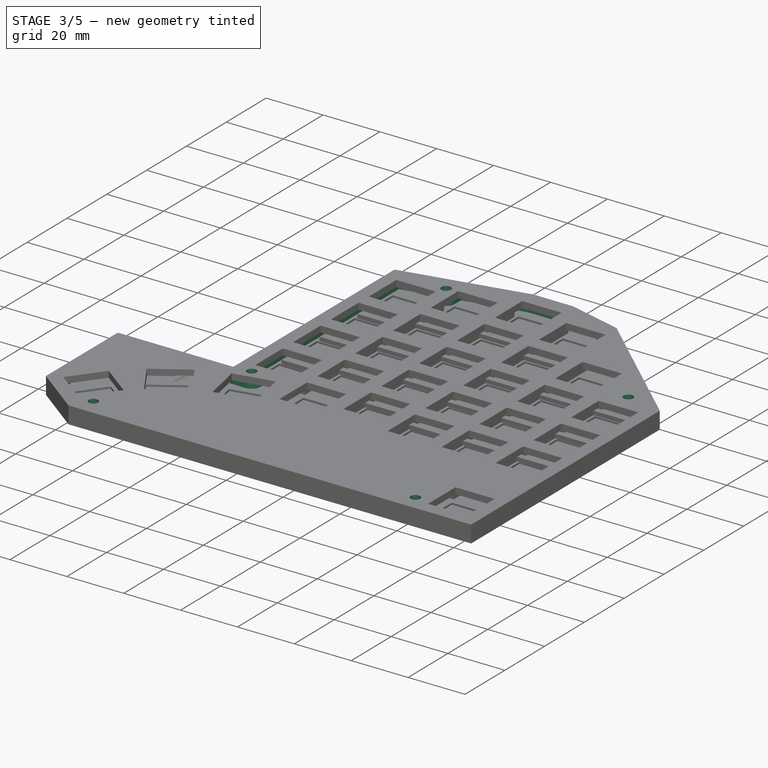
[diagram: stage 3 of 5 — iso view after this stage's code; geometry added in this stage tinted green]
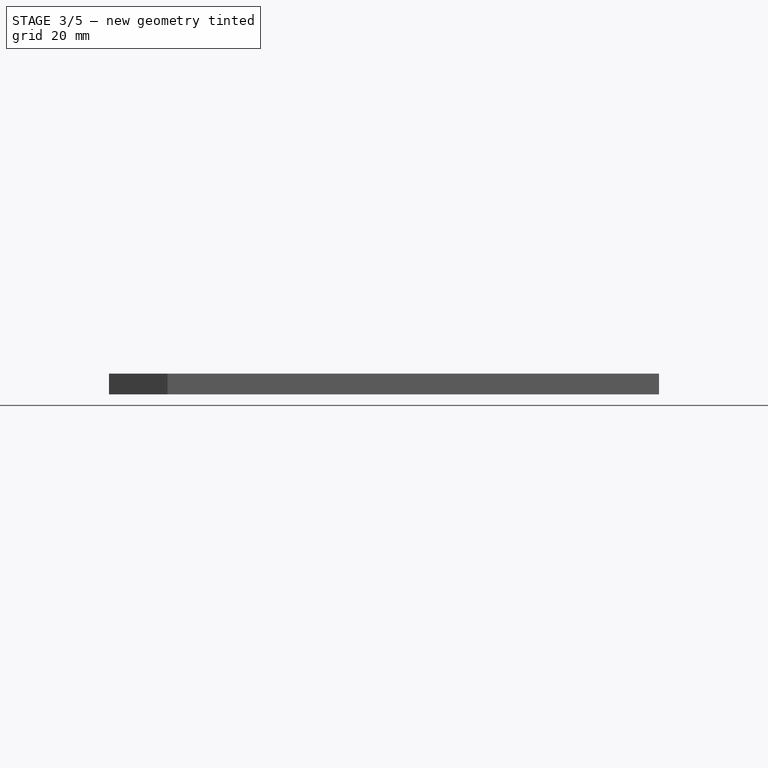
[diagram: stage 3 of 5 — front view after this stage's code; geometry added in this stage tinted green]
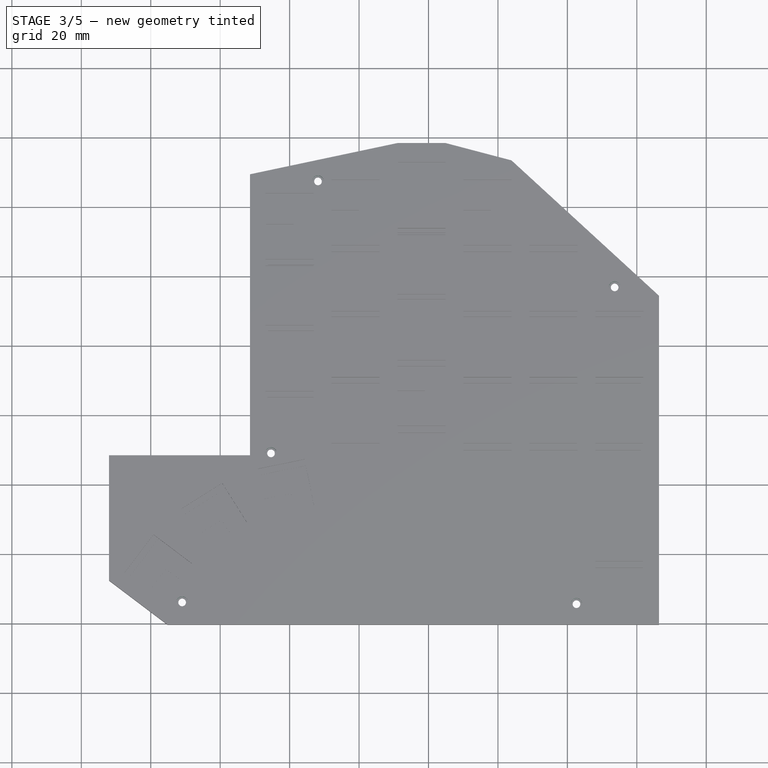
[diagram: stage 3 of 5 — top view after this stage's code; geometry added in this stage tinted green]
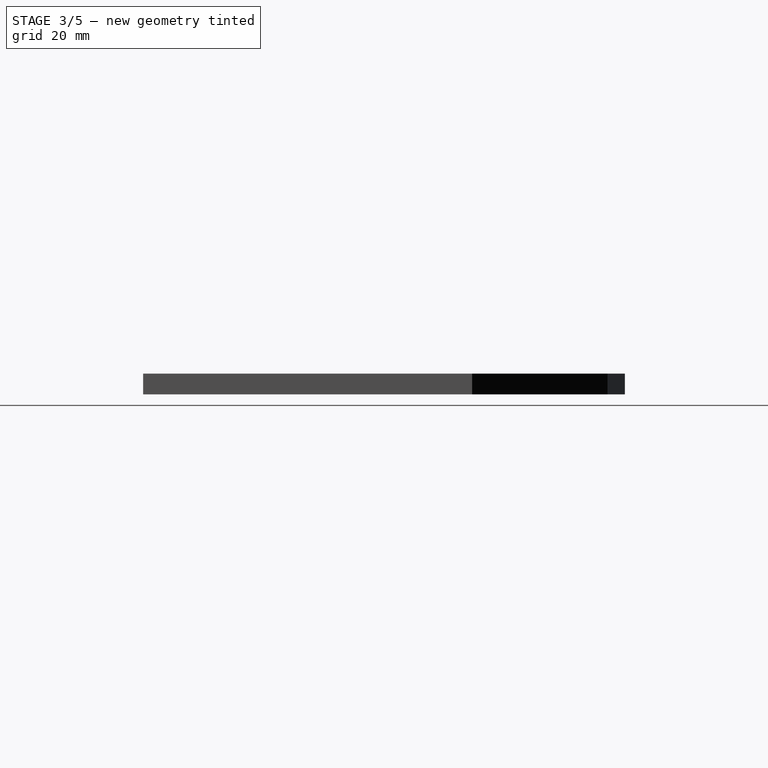
[diagram: stage 3 of 5 — right view after this stage's code; geometry added in this stage tinted green]
FEATURE [PartDesign::Body] Body001  label="switch test"
  Group = -> [Sketch001,Pad001]
  Origin = -> Origin001
  Tip = -> Pad001
FEATURE [Sketcher::SketchObject] Sketch023
  FullyConstrained = true
  MapMode = 5
  Support = -> [XY_Plane]
  expr: Constraints[101] = 11.4
  sketch-geometry (52):
    g0: LineSegment StartX=-10.87 StartY=-13.0519 StartZ=0 EndX=-10.87 EndY=-13.94 EndZ=0
    g1: LineSegment StartX=-10.87 StartY=-13.94 StartZ=0 EndX=-5.37 EndY=-13.94 EndZ=0
    g2: ArcOfCircle CenterX=-5.37 CenterY=-10.94 CenterZ=0 NormalX=0 NormalY=0 NormalZ=1 AngleXU=0 Radius=3 StartAngle=4.71239 EndAngle=7.85398
    g3: LineSegment StartX=-5.37 StartY=-7.94 StartZ=0 EndX=-7.9 EndY=-7.94 EndZ=0
    g4: LineSegment StartX=-7.9 StartY=-7.94 StartZ=0 EndX=-7.9 EndY=66.1584 EndZ=0
    g5: ArcOfCircle CenterX=-7.4 CenterY=66.1584 CenterZ=0 NormalX=0 NormalY=0 NormalZ=1 AngleXU=0 Radius=0.5 StartAngle=1.77949 EndAngle=3.14159
    g6: LineSegment StartX=-7.50359 StartY=66.6475 StartZ=0 EndX=4.54641 EndY=69.1994 EndZ=0
    g7: ArcOfCircle CenterX=4.65 CenterY=68.7102 CenterZ=0 NormalX=0 NormalY=0 NormalZ=1 AngleXU=0 Radius=0.5 StartAngle=-9e-16 EndAngle=1.77949
    g8: LineSegment StartX=5.15 StartY=68.7102 StartZ=0 EndX=5.15 EndY=67.41 EndZ=0
    g9: ArcOfCircle CenterX=8.15 CenterY=67.41 CenterZ=0 NormalX=0 NormalY=0 NormalZ=1 AngleXU=0 Radius=3 StartAngle=3.14159 EndAngle=6.28319
    g10: LineSegment StartX=11.5464 StartY=70.6818 StartZ=0 EndX=31.8246 EndY=74.9762 EndZ=0
    g11: ArcOfCircle CenterX=31.9282 CenterY=74.487 CenterZ=0 NormalX=0 NormalY=0 NormalZ=1 AngleXU=0 Radius=0.5 StartAngle=1.5708 EndAngle=1.77949
    g12: LineSegment StartX=31.9282 StartY=74.987 StartZ=0 EndX=44.0522 EndY=74.987 EndZ=0
    g13: ArcOfCircle CenterX=44.0522 CenterY=74.487 CenterZ=0 NormalX=0 NormalY=0 NormalZ=1 AngleXU=0 Radius=0.5 StartAngle=1.31346 EndAngle=1.5708
    g14: LineSegment StartX=44.1794 StartY=74.9705 StartZ=0 EndX=62.0521 EndY=70.2671 EndZ=0
    g15: ArcOfCircle CenterX=61.9248 CenterY=69.7835 CenterZ=0 NormalX=0 NormalY=0 NormalZ=1 AngleXU=0 Radius=0.5 StartAngle=0.828316 EndAngle=1.31346
    g16: LineSegment StartX=62.2629 StartY=70.1519 StartZ=0 EndX=93.2815 EndY=41.6877 EndZ=0
    g17: LineSegment StartX=102.9 StartY=33.38 StartZ=0 EndX=102.9 EndY=-56.3501 EndZ=0
    g18: ArcOfCircle CenterX=102.4 CenterY=-56.3501 CenterZ=0 NormalX=0 NormalY=0 NormalZ=1 AngleXU=0 Radius=0.5 StartAngle=4.71239 EndAngle=6.28319
    g19: LineSegment StartX=102.4 StartY=-56.8501 StartZ=0 EndX=86.12 EndY=-56.8501 EndZ=0
    g20: LineSegment StartX=-36.2853 StartY=-55.1238 StartZ=0 EndX=-48.3374 EndY=-46.0217 EndZ=0
    g21: ArcOfCircle CenterX=-48.0361 CenterY=-45.6227 CenterZ=0 NormalX=0 NormalY=0 NormalZ=1 AngleXU=0 Radius=0.5 StartAngle=3.14159 EndAngle=4.06555
    g22: LineSegment StartX=-48.5361 StartY=-45.6227 StartZ=0 EndX=-48.5361 EndY=-13.0519 EndZ=0
    g23: LineSegment StartX=-48.5361 StartY=-13.0519 StartZ=0 EndX=-10.87 EndY=-13.0519 EndZ=0
    g24: ArcOfCircle CenterX=11.65 CenterY=70.1926 CenterZ=0 NormalX=0 NormalY=0 NormalZ=1 AngleXU=0 Radius=0.5 StartAngle=1.77949 EndAngle=3.14159
    g25: LineSegment StartX=11.15 StartY=70.1926 StartZ=0 EndX=11.15 EndY=67.41 EndZ=0
    g26: ArcOfCircle CenterX=93.62 CenterY=36.88 CenterZ=0 NormalX=0 NormalY=0 NormalZ=1 AngleXU=0 Radius=3 StartAngle=2.39911 EndAngle=4.71239
    g27: ArcOfCircle CenterX=92.9434 CenterY=41.3193 CenterZ=0 NormalX=0 NormalY=0 NormalZ=1 AngleXU=0 Radius=0.5 StartAngle=5.5407 EndAngle=7.1115
    g28: LineSegment StartX=93.3118 StartY=40.9813 StartZ=0 EndX=91.4096 EndY=38.9084 EndZ=0
    g29: LineSegment StartX=93.62 StartY=33.88 StartZ=0 EndX=102.4 EndY=33.88 EndZ=0
    g30: ArcOfCircle CenterX=102.4 CenterY=33.38 CenterZ=0 NormalX=0 NormalY=0 NormalZ=1 AngleXU=0 Radius=0.5 StartAngle=3.5e-15 EndAngle=1.5708
    g31: ArcOfCircle CenterX=82.62 CenterY=-54.38 CenterZ=0 NormalX=0 NormalY=0 NormalZ=1 AngleXU=0 Radius=3 StartAngle=8e-16 EndAngle=3.14159
    g32: LineSegment StartX=85.62 StartY=-54.38 StartZ=0 EndX=85.62 EndY=-56.3501 EndZ=0
    g33: LineSegment StartX=79.62 StartY=-54.38 StartZ=0 EndX=79.62 EndY=-56.3501 EndZ=0
    g34: LineSegment StartX=79.12 StartY=-56.8501 StartZ=0 EndX=-27.46 EndY=-56.8501 EndZ=0
    g35: ArcOfCircle CenterX=86.12 CenterY=-56.3501 CenterZ=0 NormalX=0 NormalY=0 NormalZ=1 AngleXU=0 Radius=0.5 StartAngle=3.14159 EndAngle=4.71239
    g36: ArcOfCircle CenterX=79.12 CenterY=-56.3501 CenterZ=0 NormalX=0 NormalY=0 NormalZ=1 AngleXU=0 Radius=0.5 StartAngle=4.71239 EndAngle=6.28319
    g37: ArcOfCircle CenterX=-30.96 CenterY=-53.88 CenterZ=0 NormalX=0 NormalY=0 NormalZ=1 AngleXU=0 Radius=3 StartAngle=5e-16 EndAngle=2.49476
    g38: LineSegment StartX=-33.354 StartY=-52.072 StartZ=0 EndX=-35.585 EndY=-55.0261 EndZ=0
    g39: LineSegment StartX=-27.96 StartY=-53.88 StartZ=0 EndX=-27.96 EndY=-56.3501 EndZ=0
    g40: ArcOfCircle CenterX=-35.984 CenterY=-54.7248 CenterZ=0 NormalX=0 NormalY=0 NormalZ=1 AngleXU=0 Radius=0.5 StartAngle=4.06555 EndAngle=5.63635
    g41: ArcOfCircle CenterX=-27.46 CenterY=-56.3501 CenterZ=0 NormalX=0 NormalY=0 NormalZ=1 AngleXU=0 Radius=0.5 StartAngle=3.14159 EndAngle=4.71239
    g42: LineSegment StartX=106.4 StartY=-60.3501 StartZ=0 EndX=106.4 EndY=34.3999 EndZ=0
    g43: LineSegment StartX=106.4 StartY=34.3999 StartZ=0 EndX=63.9 EndY=73.3999 EndZ=0
    g44: LineSegment StartX=63.9 StartY=73.3999 StartZ=0 EndX=44.8995 EndY=78.4002 EndZ=0
    g45: LineSegment StartX=44.8995 StartY=78.4002 StartZ=0 EndX=31.0995 EndY=78.4002 EndZ=0
    g46: LineSegment StartX=31.0995 StartY=78.4002 StartZ=0 EndX=-11.4 EndY=69.4 EndZ=0
    g47: LineSegment StartX=-11.4 StartY=69.4 StartZ=0 EndX=-11.4 EndY=-11.5519 EndZ=0
    g48: LineSegment StartX=-11.4 StartY=-11.5519 StartZ=0 EndX=-52.0361 EndY=-11.5519 EndZ=0
    g49: LineSegment StartX=-52.0361 StartY=-11.5519 StartZ=0 EndX=-52.0361 EndY=-47.6144 EndZ=0
    g50: LineSegment StartX=-52.0361 StartY=-47.6144 StartZ=0 EndX=-35.1726 EndY=-60.3501 EndZ=0
    g51: LineSegment StartX=-35.1726 StartY=-60.3501 StartZ=0 EndX=106.4 EndY=-60.3501 EndZ=0
  constraints (136):
    c: Vertical(g0)
    c: Coincident(g0,g1)
    c: Horizontal(g1)
    c: Tangent(g1,g2) = -1.5708
    c: Tangent(g2,g3) = -1.5708
    c: Vertical(g4)
    c: Tangent(g4,g5) = 1.5708
    c: Tangent(g6,g7) = 1.5708
    c: Vertical(g8)
    c: Tangent(g8,g9) = -1.5708
    c: Tangent(g10,g11) = 1.5708
    c: Horizontal(g12)
    c: Tangent(g12,g13) = 1.5708
    c: Tangent(g14,g15) = 1.5708
    c: Vertical(g17)
    c: Tangent(g17,g18) = 1.5708
    c: Horizontal(g19)
    c: Tangent(g20,g21) = 1.5708
    c: Vertical(g22)
    c: Coincident(g22,g23)
    c: Horizontal(g23)
    c: Coincident(g0,g23)
    c: Tangent(g21,g22) = 1.5708
    c: Tangent(g5,g6) = 1.5708
    c: Tangent(g7,g8) = 1.5708
    c: Tangent(g10,g24) = 1.5708
    c: Vertical(g25)
    c: Tangent(g24,g25) = -1.5708
    c: Tangent(g11,g12) = 1.5708
    c: Tangent(g13,g14) = 1.5708
    c: Tangent(g15,g16) = 1.5708
    c: Tangent(g18,g19) = 1.5708
    c: Tangent(g9,g25) = 1.5708
    c: Tangent(g28,g26) = -1.5708
    c: Tangent(g26,g29) = -1.5708
    c: Perpendicular(g16,g28)
    c: Tangent(g27,g28) = 1.5708
    c: Tangent(g16,g27) = 1.5708
    c: Tangent(g29,g30) = 1.5708
    c: Tangent(g17,g30) = 1.5708
    c: Vertical(g32)
    c: Vertical(g33)
    c: Tangent(g19,g34)
    c: Tangent(g32,g35) = -1.5708
    c: Tangent(g19,g35) = 1.5708
    c: Tangent(g34,g36) = 1.5708
    c: Tangent(g33,g36) = 1.5708
    c: Tangent(g38,g37) = -1.5708
    c: Tangent(g39,g37) = 1.5708
    c: Tangent(g20,g40) = 1.5708
    c: Tangent(g38,g40) = 1.5708
    c: Tangent(g39,g41) = -1.5708
    c: Tangent(g34,g41) = 1.5708
    c: Perpendicular(g20,g38)
    c: Perpendicular(g34,g39)
    c: Diameter(g37) = 6
    c: Equal(g37,g2)
    c: Equal(g37,g31)
    c: Equal(g37,g26)
    c: Equal(g37,g9)
    c: Horizontal(g3)
    c: Diameter(g40) = 1
    c: Equal(g40,g41)
    c: Equal(g40,g21)
    c: Equal(g40,g5)
    c: Equal(g40,g11)
    c: Equal(g40,g13)
    c: Equal(g40,g15)
    c: Equal(g40,g27)
    c: Equal(g40,g30)
    c: Equal(g40,g18)
    c: Equal(g40,g35)
    c: Equal(g40,g36)
    c: Horizontal(g29)
    c: Tangent(g31,g32) = 1.5708
    c: Tangent(g31,g33) = -1.5708
    c: Equal(g7,g24)
    c: Equal(g24,g5)
    c: Coincident(g4,g3)
    c: Coincident(g42,g43)
    c: Coincident(g43,g44)
    c: Coincident(g44,g45)
    c: Coincident(g45,g46)
    c: Coincident(g46,g47)
    c: Coincident(g47,g48)
    c: Coincident(g48,g49)
    c: Coincident(g49,g50)
    c: Coincident(g50,g51)
    c: Coincident(g51,g42)
    c: Distance(g42) = 94.75
    c: Distance(g43) = 57.6823
    c: Distance(g47) = 80.9519
    c: Distance(g48) = 40.6361
    c: Distance(g49) = 36.0625
    c: Distance(g50) = 21.1323
    c: Distance(g51) = 141.573
    c: Angle(g43,g42) = 2.31328
    c: Angle(g45,g44) = 2.88426
    c: Angle(g44,g43) = 2.65644
    c: Angle(g50,g49) = 2.21763
    c: Angle(g51,g50) = 2.49476
    c: DistanceX(g47,g-1) = 11.4
    c: DistanceY(g47,g-1) = 11.5519
    c: Horizontal(g48)
    c: Vertical(g49)
    c: Distance(g22,g48) = 1.5
    c: Distance(g22,g49) = 3.5
    c: Distance(g20,g50) = 3.5
    c: Distance(g34,g51) = 3.5
    c: Distance(g3,g47) = 3.5
    c: Parallel(g6,g46)
    c: Parallel(g10,g46)
    c: Parallel(g14,g44)
    c: Parallel(g16,g43)
    c: Distance(g17,g42) = 3.5
    c: Parallel(g20,g50)
    c: DistanceY(g-1,g26) = 36.88
    c: DistanceX(g-1,g26) = 93.62
    c: DistanceY(g-1,g9) = 67.41
    c: DistanceX(g-1,g9) = 8.15
    c: DistanceX(g2,g-1) = 5.37
    c: DistanceY(g2,g-1) = 10.94
    c: DistanceY(g37,g2) = 42.94
    c: DistanceX(g37,g2) = 25.59
    c: DistanceX(g-1,g31) = 82.62
    c: DistanceY(g31,g-1) = 54.38
    c: DistanceX(g1,g1) = 5.5
    c: Vertical(g47)
    c: Angle(g47,g46) = 1.77949
    c: Horizontal(g45)
    c: DistanceX(g45,g45) = 13.8
    c: Distance(g13,g44) = 3.5
    c: Distance(g10,g45) = 3.5
    c: Distance(g6,g46) = 3.5
    c: Distance(g10,g46) = 3.5
    c: Distance(g15,g43) = 3.5
FEATURE [PartDesign::Pocket] Pocket006
  BaseFeature = -> Pad
  Length = 3.8
  Length2 = 100
  Profile = -> Sketch023
  Reversed = true
  Type = 0
  expr: Length = <<ss>>.top_height - <<ss>>.plate_height - 0.9
FEATURE [Sketcher::SketchObject] Sketch025
  FullyConstrained = true
  MapMode = 5
  Placement = pos=(0,0,0) rot=(1,0,0;1.5708rad)
  Support = -> [XZ_Plane]
  expr: Constraints[32] = <<ss>>.top_height - <<ss>>.sw_ht_above_pcb - 0.6 + 0.85
  sketch-geometry (14):
    g0: ArcOfCircle CenterX=-17.275 CenterY=2.4 CenterZ=0 NormalX=0 NormalY=0 NormalZ=1 AngleXU=0 Radius=1.65 StartAngle=1e-16 EndAngle=1.5708
    g1: ArcOfCircle CenterX=-23.475 CenterY=2.4 CenterZ=0 NormalX=0 NormalY=0 NormalZ=1 AngleXU=0 Radius=1.65 StartAngle=1.5708 EndAngle=3.14159
    g2: LineSegment StartX=-17.275 StartY=4.05 StartZ=0 EndX=-23.475 EndY=4.05 EndZ=0
    g3: ArcOfCircle CenterX=-35.275 CenterY=2.4 CenterZ=0 NormalX=0 NormalY=0 NormalZ=1 AngleXU=0 Radius=1.65 StartAngle=0 EndAngle=1.5708
    g4: ArcOfCircle CenterX=-41.475 CenterY=2.4 CenterZ=0 NormalX=0 NormalY=0 NormalZ=1 AngleXU=0 Radius=1.65 StartAngle=1.5708 EndAngle=3.14159
    g5: LineSegment StartX=-35.275 StartY=4.05 StartZ=0 EndX=-41.475 EndY=4.05 EndZ=0
    g6: LineSegment StartX=-33.625 StartY=2.4 StartZ=0 EndX=-33.625 EndY=0 EndZ=0
    g7: LineSegment StartX=-43.125 StartY=2.4 StartZ=0 EndX=-43.125 EndY=0 EndZ=0
    g8: LineSegment StartX=-25.125 StartY=2.4 StartZ=0 EndX=-25.125 EndY=0 EndZ=0
    g9: LineSegment StartX=-15.625 StartY=2.4 StartZ=0 EndX=-15.625 EndY=0 EndZ=0
    g10: LineSegment StartX=-15.625 StartY=0 StartZ=0 EndX=-25.125 EndY=0 EndZ=0
    g11: LineSegment StartX=-33.625 StartY=0 StartZ=0 EndX=-43.125 EndY=0 EndZ=0
    g12: GeomPoint X=-20.375 Y=4.05 Z=0
    g13: GeomPoint X=-38.375 Y=4.05 Z=0
  constraints (34):
    c: Tangent(g0,g2) = -1.5708
    c: Tangent(g2,g1) = -1.5708
    c: Horizontal(g2)
    c: Equal(g0,g1)
    c: Tangent(g3,g5) = -1.5708
    c: Tangent(g5,g4) = -1.5708
    c: Horizontal(g5)
    c: Equal(g3,g4)
    c: Equal(g5,g2)
    c: PointOnObject(g6,g-1)
    c: Vertical(g6)
    c: PointOnObject(g7,g-1)
    c: PointOnObject(g8,g-1)
    c: Vertical(g8)
    c: PointOnObject(g9,g-1)
    c: Vertical(g9)
    c: Coincident(g11,g7)
    c: Coincident(g6,g11)
    c: Coincident(g10,g8)
    c: Tangent(g0,g9) = 1.5708
    c: Tangent(g8,g1) = -1.5708
    c: Tangent(g6,g3) = 1.5708
    c: Tangent(g4,g7) = -1.5708
    c: Vertical(g7)
    c: Coincident(g10,g9)
    c: Equal(g9,g6)
    c: Diameter(g3) = 3.3
    c: Equal(g3,g1)
    c: DistanceX(g8,g9) = 9.5
    c: Symmetric(g1,g0,g12)
    c: Symmetric(g4,g3,g13)
    c: DistanceX(g13,g12) = 18
    c: DistanceY(g7,g4) = 4.05
    c: DistanceX(g12,g-1) = 20.375
FEATURE [PartDesign::Pocket] Pocket007
  BaseFeature = -> Pocket006
  Length = 30
  Length2 = 100
  Profile = -> Sketch025
  Reversed = true
  Type = 0
FEATURE [PartDesign::Plane] DatumPlane
  AttachmentOffset = pos=(0,0,1.8) rot=(0,0,1;0rad)
  Length = 60
  MapMode = 5
  Placement = pos=(0,0,1.8) rot=(0,0,1;0rad)
  ResizeMode = 0
  Support = -> [XY_Plane]
  Width = 60
  expr: .AttachmentOffset.Base.z = <<ss>>.bottom_height
FEATURE [Sketcher::SketchObject] Sketch027
  FullyConstrained = true
  MapMode = 5
  Support = -> [XY_Plane]
  sketch-geometry (30):
    g0: LineSegment StartX=-9.4 StartY=-11.94 StartZ=0 EndX=-9.4 EndY=67.0807 EndZ=0
    g1: ArcOfCircle CenterX=-8.4 CenterY=67.0807 CenterZ=0 NormalX=0 NormalY=0 NormalZ=1 AngleXU=0 Radius=1 StartAngle=1.77949 EndAngle=3.14159
    g2: LineSegment StartX=-8.60718 StartY=68.059 StartZ=0 EndX=31.2069 EndY=76.4905 EndZ=0
    g3: ArcOfCircle CenterX=31.4141 CenterY=75.5122 CenterZ=0 NormalX=0 NormalY=0 NormalZ=1 AngleXU=0 Radius=1 StartAngle=1.5708 EndAngle=1.77949
    g4: LineSegment StartX=31.4141 StartY=76.5122 StartZ=0 EndX=44.5118 EndY=76.5122 EndZ=0
    g5: ArcOfCircle CenterX=44.5118 CenterY=75.5122 CenterZ=0 NormalX=0 NormalY=0 NormalZ=1 AngleXU=0 Radius=1 StartAngle=1.31346 EndAngle=1.5708
    g6: LineSegment StartX=44.7663 StartY=76.4793 StartZ=0 EndX=63.0877 EndY=71.6576 EndZ=0
    g7: ArcOfCircle CenterX=62.8332 CenterY=70.6906 CenterZ=0 NormalX=0 NormalY=0 NormalZ=1 AngleXU=0 Radius=1 StartAngle=0.828312 EndAngle=1.31346
    g8: LineSegment StartX=63.5094 StartY=71.4273 StartZ=0 EndX=104.076 EndY=34.2013 EndZ=0
    g9: LineSegment StartX=104.4 StartY=33.4645 StartZ=0 EndX=104.4 EndY=-57.2382 EndZ=0
    g10: ArcOfCircle CenterX=103.4 CenterY=-57.2382 CenterZ=0 NormalX=0 NormalY=0 NormalZ=1 AngleXU=0 Radius=1 StartAngle=4.71239 EndAngle=6.28319
    g11: LineSegment StartX=-34.7697 StartY=-58.0362 StartZ=0 EndX=-49.6388 EndY=-46.8067 EndZ=0
    g12: ArcOfCircle CenterX=-49.0361 CenterY=-46.0087 CenterZ=0 NormalX=0 NormalY=0 NormalZ=1 AngleXU=0 Radius=1 StartAngle=3.14159 EndAngle=4.06555
    g13: LineSegment StartX=-50.0361 StartY=-46.0087 StartZ=0 EndX=-50.0361 EndY=-13.94 EndZ=0
    g14: LineSegment StartX=-49.0361 StartY=-12.94 StartZ=0 EndX=-10.4 EndY=-12.94 EndZ=0
    g15: ArcOfCircle CenterX=103.4 CenterY=33.4645 CenterZ=0 NormalX=0 NormalY=0 NormalZ=1 AngleXU=0 Radius=1 StartAngle=-9e-16 EndAngle=0.828312
    g16: LineSegment StartX=103.4 StartY=-58.2382 StartZ=0 EndX=-34.1671 EndY=-58.2382 EndZ=0
    g17: ArcOfCircle CenterX=-34.1671 CenterY=-57.2382 CenterZ=0 NormalX=0 NormalY=0 NormalZ=1 AngleXU=0 Radius=1 StartAngle=4.06555 EndAngle=4.71239
    g18: LineSegment StartX=106.399 StartY=-60.2382 StartZ=0 EndX=106.4 EndY=34.5118 EndZ=0
    g19: LineSegment StartX=106.4 StartY=34.5118 StartZ=0 EndX=63.8999 EndY=73.512 EndZ=0
    g20: LineSegment StartX=63.8999 StartY=73.512 StartZ=0 EndX=44.8999 EndY=78.5122 EndZ=0
    g21: LineSegment StartX=31.0999 StartY=78.5122 StartZ=0 EndX=-11.4 EndY=69.5119 EndZ=0
    g22: LineSegment StartX=-11.4 StartY=69.5119 StartZ=0 EndX=-11.4 EndY=-11.44 EndZ=0
    g23: LineSegment StartX=-11.4 StartY=-11.44 StartZ=0 EndX=-52.0361 EndY=-11.44 EndZ=0
    g24: LineSegment StartX=-52.0361 StartY=-11.44 StartZ=0 EndX=-52.0361 EndY=-47.5025 EndZ=0
    g25: LineSegment StartX=-52.0361 StartY=-47.5025 StartZ=0 EndX=-35.1726 EndY=-60.2382 EndZ=0
    g26: LineSegment StartX=-35.1726 StartY=-60.2382 StartZ=0 EndX=106.399 EndY=-60.2382 EndZ=0
    g27: ArcOfCircle CenterX=-10.4 CenterY=-11.94 CenterZ=0 NormalX=0 NormalY=0 NormalZ=1 AngleXU=0 Radius=1 StartAngle=4.71239 EndAngle=6.28319
    g28: ArcOfCircle CenterX=-49.0361 CenterY=-13.94 CenterZ=0 NormalX=0 NormalY=0 NormalZ=1 AngleXU=0 Radius=1 StartAngle=1.5708 EndAngle=3.14159
    g29: LineSegment StartX=31.0999 StartY=78.5122 StartZ=0 EndX=44.8999 EndY=78.5122 EndZ=0
  constraints (80):
    c: Vertical(g0)
    c: Tangent(g0,g1) = 1.5708
    c: Tangent(g2,g3) = 1.5708
    c: Tangent(g4,g5) = 1.5708
    c: Tangent(g6,g7) = 1.5708
    c: Vertical(g9)
    c: Tangent(g9,g10) = 1.5708
    c: Tangent(g11,g12) = 1.5708
    c: Vertical(g13)
    c: Horizontal(g14)
    c: Tangent(g12,g13) = 1.5708
    c: Tangent(g3,g4) = 1.5708
    c: Tangent(g5,g6) = 1.5708
    c: Tangent(g7,g8) = 1.5708
    c: Tangent(g9,g15) = 1.5708
    c: Tangent(g11,g17) = 1.5708
    c: Diameter(g17) = 2
    c: Equal(g17,g12)
    c: Equal(g17,g1)
    c: Equal(g17,g3)
    c: Equal(g17,g5)
    c: Equal(g17,g7)
    c: Equal(g17,g15)
    c: Equal(g17,g10)
    c: Coincident(g18,g19)
    c: Coincident(g19,g20)
    c: Coincident(g21,g22)
    c: Coincident(g22,g23)
    c: Coincident(g23,g24)
    c: Coincident(g24,g25)
    c: Coincident(g25,g26)
    c: Coincident(g26,g18)
    c: Distance(g18) = 94.75
    c: Distance(g19) = 57.6823
    c: Distance(g20) = 19.6469
    c: Distance(g21) = 43.4425
    c: Distance(g22) = 80.9519
    c: Distance(g23) = 40.6361
    c: Distance(g24) = 36.0625
    c: Distance(g25) = 21.1323
    c: Angle(g19,g18) = 2.31328
    c: Angle(g20,g19) = 2.65644
    c: Angle(g22,g21) = 1.77949
    c: Angle(g25,g24) = 2.21763
    c: Angle(g26,g25) = 2.49476
    c: DistanceX(g22,g-1) = 11.4
    c: DistanceY(g22,g-1) = 11.44
    c: Horizontal(g23)
    c: Vertical(g24)
    c: Distance(g11,g25) = 2
    c: Distance(g16,g26) = 2
    c: Distance(g0,g22) = 2
    c: Distance(g1,g21) = 2
    c: Parallel(g2,g21)
    c: Distance(g5,g20) = 2
    c: Parallel(g6,g20)
    c: Distance(g7,g19) = 1.8
    c: Parallel(g8,g19)
    c: Distance(g9,g18) = 2
    c: Parallel(g11,g25)
    c: Horizontal(g16)
    c: Tangent(g16,g10) = 1.5708
    c: Tangent(g17,g16) = 1.5708
    c: Tangent(g15,g8) = 1.5708
    c: Tangent(g2,g1) = 1.5708
    c: Vertical(g22)
    c: Tangent(g0,g27) = -1.5708
    c: Tangent(g14,g27) = -1.5708
    c: Tangent(g13,g28) = 1.5708
    c: Tangent(g14,g28) = 1.5708
    c: Diameter(g28) = 2
    c: DistanceX(g23,g13) = 2
    c: Distance(g14,g23) = 1.5
    c: Diameter(g27) = 2
    c: Coincident(g29,g21)
    c: Coincident(g29,g20)
    c: Horizontal(g29)
    c: Horizontal(g4)
    c: DistanceX(g29,g29) = 13.8
    c: Distance(g3,g29) = 2
FEATURE [PartDesign::Pocket] Pocket
  BaseFeature = -> Pocket007
  Length = 1.8
  Length2 = 100
  Profile = -> Sketch027
  Reversed = true
  Type = 0
  expr: Length = <<ss>>.bottom_height
FEATURE [Sketcher::SketchObject] Sketch026
  ExternalGeometry = -> [Pocket]
  FullyConstrained = true
  MapMode = 5
  Placement = pos=(0,0,1.8) rot=(0,0,1;0rad)
  Support = -> [DatumPlane]
  sketch-geometry (6):
    g0: Circle CenterX=8.15 CenterY=67.41 CenterZ=0 NormalX=0 NormalY=0 NormalZ=1 AngleXU=0 Radius=1.65
    g1: Circle CenterX=-5.37 CenterY=-10.94 CenterZ=0 NormalX=0 NormalY=0 NormalZ=1 AngleXU=0 Radius=1.65
    g2: Circle CenterX=82.62 CenterY=-54.38 CenterZ=0 NormalX=0 NormalY=0 NormalZ=1 AngleXU=0 Radius=1.65
    g3: Circle CenterX=93.62 CenterY=36.88 CenterZ=0 NormalX=0 NormalY=0 NormalZ=1 AngleXU=0 Radius=1.65
    g4: Circle CenterX=-30.96 CenterY=-53.88 CenterZ=0 NormalX=0 NormalY=0 NormalZ=1 AngleXU=0 Radius=1.65
    g5: GeomPoint X=-5.37 Y=-10.94 Z=0
  constraints (11):
    c: Diameter(g4) = 3.3
    c: Equal(g4,g3)
    c: Equal(g4,g2)
    c: Equal(g4,g1)
    c: Equal(g4,g0)
    c: Coincident(g1,g5)
    c: Coincident(g1,g-11)
    c: Coincident(g4,g-12)
    c: Coincident(g2,g-8)
    c: Coincident(g3,g-9)
    c: Coincident(g0,g-10)
FEATURE [PartDesign::Hole] Hole001
  BaseFeature = -> Pocket
  Depth = 3
  DepthType = 1
  Diameter = 3.3
  DrillForDepth = false
  DrillPoint = 0
  DrillPointAngle = 118
  HoleCutCountersinkAngle = 90
  HoleCutCustomValues = false
  HoleCutDepth = 0.4
  HoleCutDiameter = 5
  HoleCutType = 2
  ModelActualThread = false
  Profile = -> Sketch026
  Reversed = true
  Tapered = false
  TaperedAngle = 90
  ThreadAngle = 0
  ThreadClass = 0
  ThreadCutOffInner = 0
  ThreadCutOffOuter = 0
  ThreadDirection = 0
  ThreadFit = 0
  ThreadPitch = 0
  ThreadSize = 0
  ThreadType = 0
  Threaded = false
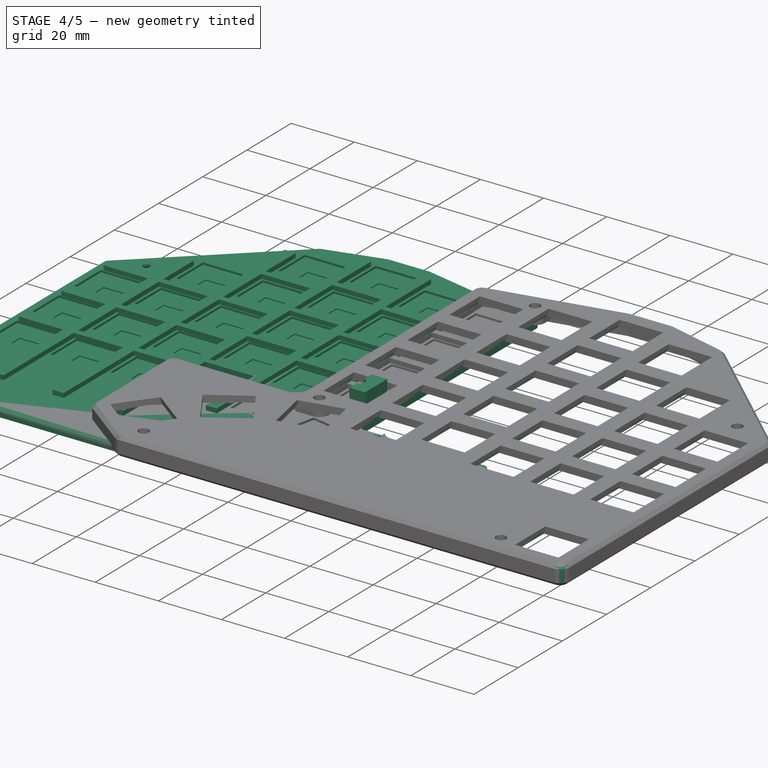
[diagram: stage 4 of 5 — iso view after this stage's code; geometry added in this stage tinted green]
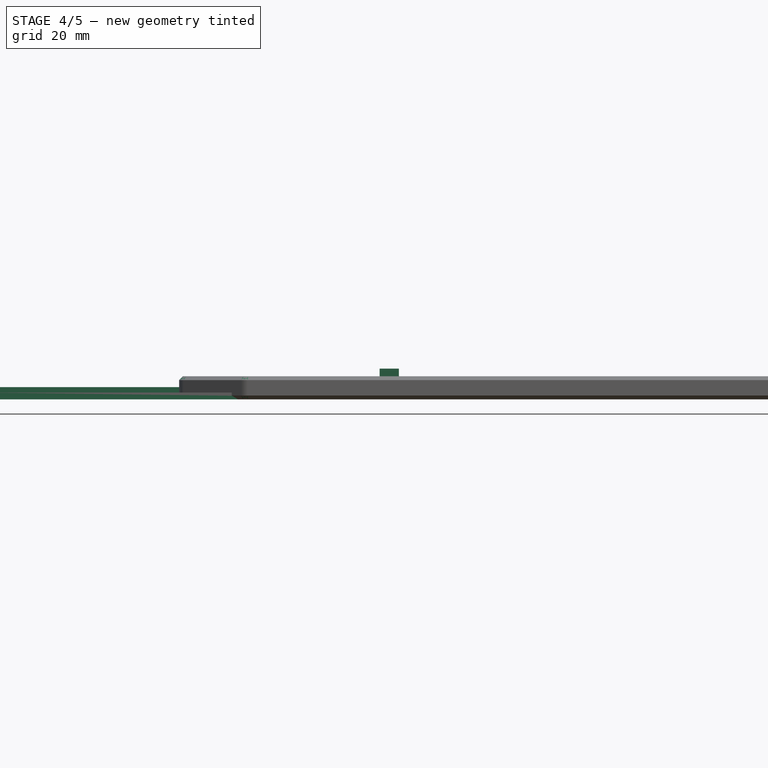
[diagram: stage 4 of 5 — front view after this stage's code; geometry added in this stage tinted green]
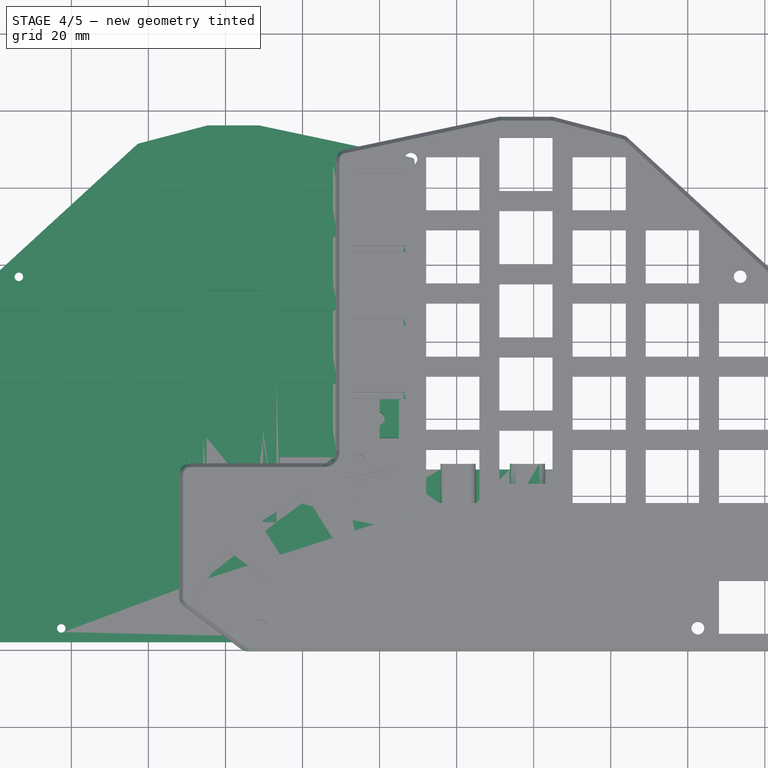
[diagram: stage 4 of 5 — top view after this stage's code; geometry added in this stage tinted green]
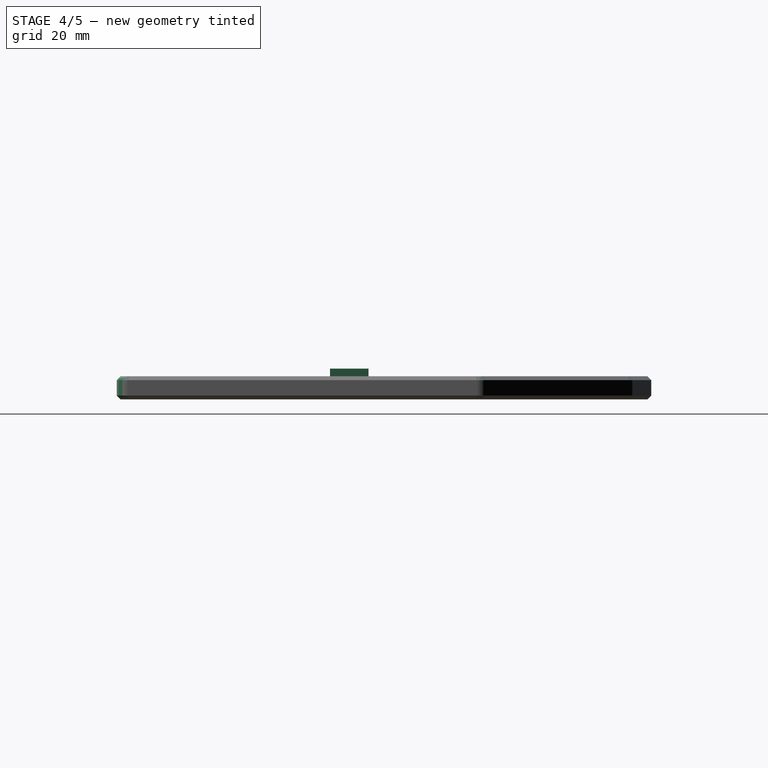
[diagram: stage 4 of 5 — right view after this stage's code; geometry added in this stage tinted green]
FEATURE [PartDesign::Fillet] Fillet
  Base = -> Hole001 [Edge5,Edge175,Edge8,Edge2,Edge1,Edge177,Edge178,Edge176,Edge179,Edge174]
  BaseFeature = -> Hole001
  Radius = 3
  SupportTransform = false
FEATURE [PartDesign::Chamfer] Chamfer
  Angle = 45
  Base = -> Fillet [Edge4,Edge1,Edge217]
  BaseFeature = -> Fillet
  ChamferType = 0
  FlipDirection = false
  Size = 1
  Size2 = 1
  SupportTransform = false
FEATURE [PartDesign::Body] Body005  label="InsetTest"
  Group = -> [Sketch035,Pad003,Sketch036,Hole002]
  Origin = -> Origin013
  Tip = -> Hole002
FEATURE [Sketcher::SketchObject] Sketch037
  FullyConstrained = true
  MapMode = 5
  Support = -> [XY_Plane015]
  sketch-geometry (6):
    g0: ArcOfCircle CenterX=-0.4 CenterY=0 CenterZ=0 NormalX=0 NormalY=0 NormalZ=1 AngleXU=0 Radius=1.75 StartAngle=4.943 EndAngle=7.62337
    g1: LineSegment StartX=-4e-16 StartY=1.70367 StartZ=0 EndX=0 EndY=5 EndZ=0
    g2: LineSegment StartX=0 StartY=5 StartZ=0 EndX=5 EndY=5 EndZ=0
    g3: LineSegment StartX=5 StartY=5 StartZ=0 EndX=5 EndY=-5 EndZ=0
    g4: LineSegment StartX=5 StartY=-5 StartZ=0 EndX=0 EndY=-5 EndZ=0
    g5: LineSegment StartX=0 StartY=-5 StartZ=0 EndX=3e-16 EndY=-1.70367 EndZ=0
  constraints (18):
    c: PointOnObject(g0,g-1)
    c: PointOnObject(g0,g-2)
    c: PointOnObject(g0,g-2)
    c: Coincident(g0,g1)
    c: PointOnObject(g1,g-2)
    c: Coincident(g1,g2)
    c: Horizontal(g2)
    c: Coincident(g2,g3)
    c: Vertical(g3)
    c: Coincident(g3,g4)
    c: Horizontal(g4)
    c: Coincident(g4,g5)
    c: Coincident(g5,g0)
    c: Symmetric(g1,g4,g-1)
    c: Diameter(g0) = 3.5
    c: Distance(g-1,g0) = 0.4
    c: Distance(g3) = 10
    c: Distance(g2) = 5
FEATURE [PartDesign::Pad] Pad004
  Direction = (1,1,1)
  Length = 8
  Length2 = 100
  Profile = -> Sketch037
  Type = 0
FEATURE [PartDesign::Body] Body007  label="InsetHolder"
  Group = -> [Sketch037,Pad004]
  Origin = -> Origin015
  Tip = -> Pad004
FEATURE [Sketcher::SketchObject] Sketch038  label="SketchTop003"
  FullyConstrained = true
  MapMode = 5
  Support = -> [XY_Plane]
  expr: Constraints[382] = <<ss>>.ss_sw_side
  expr: Constraints[352] = <<ss>>.ss_sw_sep - <<ss>>.ss_sw_side
  expr: Constraints[399] = <<ss>>.ss_sw_sep - 14.8
  sketch-geometry (152):
    g0: LineSegment StartX=-7.4 StartY=-6.9 StartZ=0 EndX=7.4 EndY=-6.9 EndZ=0
    g1: LineSegment StartX=-7.4 StartY=-6.9 StartZ=0 EndX=-7.4 EndY=6.9 EndZ=0
    g2: LineSegment StartX=-7.4 StartY=6.9 StartZ=0 EndX=7.4 EndY=6.9 EndZ=0
    g3: LineSegment StartX=7.4 StartY=-6.9 StartZ=0 EndX=7.4 EndY=6.9 EndZ=0
    g4: LineSegment StartX=-7.4 StartY=12.1 StartZ=0 EndX=7.4 EndY=12.1 EndZ=0
    g5: LineSegment StartX=-7.4 StartY=12.1 StartZ=0 EndX=-7.4 EndY=25.9 EndZ=0
    g6: LineSegment StartX=-7.4 StartY=25.9 StartZ=0 EndX=7.4 EndY=25.9 EndZ=0
    g7: LineSegment StartX=7.4 StartY=12.1 StartZ=0 EndX=7.4 EndY=25.9 EndZ=0
    g8: LineSegment StartX=-7.4 StartY=31.1 StartZ=0 EndX=7.4 EndY=31.1 EndZ=0
    g9: LineSegment StartX=-7.4 StartY=31.1 StartZ=0 EndX=-7.4 EndY=44.9 EndZ=0
    g10: LineSegment StartX=-7.4 StartY=44.9 StartZ=0 EndX=7.4 EndY=44.9 EndZ=0
    g11: LineSegment StartX=7.4 StartY=31.1 StartZ=0 EndX=7.4 EndY=44.9 EndZ=0
    g12: LineSegment StartX=-7.4 StartY=50.1 StartZ=0 EndX=7.4 EndY=50.1 EndZ=0
    g13: LineSegment StartX=-7.4 StartY=50.1 StartZ=0 EndX=-7.4 EndY=63.9 EndZ=0
    g14: LineSegment StartX=-7.4 StartY=63.9 StartZ=0 EndX=7.4 EndY=63.9 EndZ=0
    g15: LineSegment StartX=7.4 StartY=50.1 StartZ=0 EndX=7.4 EndY=63.9 EndZ=0
    g16: LineSegment StartX=11.6 StartY=-21.9 StartZ=0 EndX=26.4 EndY=-21.9 EndZ=0
    g17: LineSegment StartX=11.6 StartY=-21.9 StartZ=0 EndX=11.6 EndY=-8.1 EndZ=0
    g18: LineSegment StartX=11.6 StartY=-8.1 StartZ=0 EndX=26.4 EndY=-8.1 EndZ=0
    g19: LineSegment StartX=26.4 StartY=-21.9 StartZ=0 EndX=26.4 EndY=-8.1 EndZ=0
    g20: LineSegment StartX=11.6 StartY=-2.9 StartZ=0 EndX=26.4 EndY=-2.9 EndZ=0
    g21: LineSegment StartX=11.6 StartY=-2.9 StartZ=0 EndX=11.6 EndY=10.9 EndZ=0
    g22: LineSegment StartX=11.6 StartY=10.9 StartZ=0 EndX=26.4 EndY=10.9 EndZ=0
    g23: LineSegment StartX=26.4 StartY=-2.9 StartZ=0 EndX=26.4 EndY=10.9 EndZ=0
    g24: LineSegment StartX=11.6 StartY=16.1 StartZ=0 EndX=26.4 EndY=16.1 EndZ=0
    g25: LineSegment StartX=11.6 StartY=16.1 StartZ=0 EndX=11.6 EndY=29.9 EndZ=0
    g26: LineSegment StartX=11.6 StartY=29.9 StartZ=0 EndX=26.4 EndY=29.9 EndZ=0
    g27: LineSegment StartX=26.4 StartY=16.1 StartZ=0 EndX=26.4 EndY=29.9 EndZ=0
    g28: LineSegment StartX=11.6 StartY=35.1 StartZ=0 EndX=26.4 EndY=35.1 EndZ=0
    g29: LineSegment StartX=11.6 StartY=35.1 StartZ=0 EndX=11.6 EndY=48.9 EndZ=0
    g30: LineSegment StartX=11.6 StartY=48.9 StartZ=0 EndX=26.4 EndY=48.9 EndZ=0
    g31: LineSegment StartX=26.4 StartY=35.1 StartZ=0 EndX=26.4 EndY=48.9 EndZ=0
    g32: LineSegment StartX=11.6 StartY=54.1 StartZ=0 EndX=26.4 EndY=54.1 EndZ=0
    g33: LineSegment StartX=11.6 StartY=54.1 StartZ=0 EndX=11.6 EndY=67.9 EndZ=0
    g34: LineSegment StartX=11.6 StartY=67.9 StartZ=0 EndX=26.4 EndY=67.9 EndZ=0
    g35: LineSegment StartX=26.4 StartY=54.1 StartZ=0 EndX=26.4 EndY=67.9 EndZ=0
    g36: LineSegment StartX=30.6 StartY=-16.9 StartZ=0 EndX=45.4 EndY=-16.9 EndZ=0
    g37: LineSegment StartX=30.6 StartY=-16.9 StartZ=0 EndX=30.6 EndY=-3.1 EndZ=0
    g38: LineSegment StartX=30.6 StartY=-3.1 StartZ=0 EndX=45.4 EndY=-3.1 EndZ=0
    g39: LineSegment StartX=45.4 StartY=-16.9 StartZ=0 EndX=45.4 EndY=-3.1 EndZ=0
    g40: LineSegment StartX=30.6 StartY=2.1 StartZ=0 EndX=45.4 EndY=2.1 EndZ=0
    g41: LineSegment StartX=30.6 StartY=2.1 StartZ=0 EndX=30.6 EndY=15.9 EndZ=0
    g42: LineSegment StartX=30.6 StartY=15.9 StartZ=0 EndX=45.4 EndY=15.9 EndZ=0
    g43: LineSegment StartX=45.4 StartY=2.1 StartZ=0 EndX=45.4 EndY=15.9 EndZ=0
    g44: LineSegment StartX=30.6 StartY=21.1 StartZ=0 EndX=45.4 EndY=21.1 EndZ=0
    g45: LineSegment StartX=30.6 StartY=21.1 StartZ=0 EndX=30.6 EndY=34.9 EndZ=0
    g46: LineSegment StartX=30.6 StartY=34.9 StartZ=0 EndX=45.4 EndY=34.9 EndZ=0
    g47: LineSegment StartX=45.4 StartY=21.1 StartZ=0 EndX=45.4 EndY=34.9 EndZ=0
    g48: LineSegment StartX=30.6 StartY=40.1 StartZ=0 EndX=45.4 EndY=40.1 EndZ=0
    g49: LineSegment StartX=30.6 StartY=40.1 StartZ=0 EndX=30.6 EndY=53.9 EndZ=0
    g50: LineSegment StartX=30.6 StartY=53.9 StartZ=0 EndX=45.4 EndY=53.9 EndZ=0
    g51: LineSegment StartX=45.4 StartY=40.1 StartZ=0 EndX=45.4 EndY=53.9 EndZ=0
    g52: LineSegment StartX=30.6 StartY=59.1 StartZ=0 EndX=45.4 EndY=59.1 EndZ=0
    g53: LineSegment StartX=30.6 StartY=59.1 StartZ=0 EndX=30.6 EndY=72.9 EndZ=0
    g54: LineSegment StartX=30.6 StartY=72.9 StartZ=0 EndX=45.4 EndY=72.9 EndZ=0
    g55: LineSegment StartX=45.4 StartY=59.1 StartZ=0 EndX=45.4 EndY=72.9 EndZ=0
    g56: LineSegment StartX=49.6 StartY=-21.9 StartZ=0 EndX=64.4 EndY=-21.9 EndZ=0
    g57: LineSegment StartX=49.6 StartY=-21.9 StartZ=0 EndX=49.6 EndY=-8.1 EndZ=0
    g58: LineSegment StartX=49.6 StartY=-8.1 StartZ=0 EndX=64.4 EndY=-8.1 EndZ=0
    g59: LineSegment StartX=64.4 StartY=-21.9 StartZ=0 EndX=64.4 EndY=-8.1 EndZ=0
    g60: LineSegment StartX=49.6 StartY=-2.9 StartZ=0 EndX=64.4 EndY=-2.9 EndZ=0
    g61: LineSegment StartX=49.6 StartY=-2.9 StartZ=0 EndX=49.6 EndY=10.9 EndZ=0
    g62: LineSegment StartX=49.6 StartY=10.9 StartZ=0 EndX=64.4 EndY=10.9 EndZ=0
    g63: LineSegment StartX=64.4 StartY=-2.9 StartZ=0 EndX=64.4 EndY=10.9 EndZ=0
    g64: LineSegment StartX=49.6 StartY=16.1 StartZ=0 EndX=64.4 EndY=16.1 EndZ=0
    g65: LineSegment StartX=49.6 StartY=16.1 StartZ=0 EndX=49.6 EndY=29.9 EndZ=0
    g66: LineSegment StartX=49.6 StartY=29.9 StartZ=0 EndX=64.4 EndY=29.9 EndZ=0
    g67: LineSegment StartX=64.4 StartY=16.1 StartZ=0 EndX=64.4 EndY=29.9 EndZ=0
    g68: LineSegment StartX=49.6 StartY=35.1 StartZ=0 EndX=64.4 EndY=35.1 EndZ=0
    g69: LineSegment StartX=49.6 StartY=35.1 StartZ=0 EndX=49.6 EndY=48.9 EndZ=0
    g70: LineSegment StartX=49.6 StartY=48.9 StartZ=0 EndX=64.4 EndY=48.9 EndZ=0
    g71: LineSegment StartX=64.4 StartY=35.1 StartZ=0 EndX=64.4 EndY=48.9 EndZ=0
    g72: LineSegment StartX=49.6 StartY=54.1 StartZ=0 EndX=64.4 EndY=54.1 EndZ=0
    g73: LineSegment StartX=49.6 StartY=54.1 StartZ=0 EndX=49.6 EndY=67.9 EndZ=0
    g74: LineSegment StartX=49.6 StartY=67.9 StartZ=0 EndX=64.4 EndY=67.9 EndZ=0
    g75: LineSegment StartX=64.4 StartY=54.1 StartZ=0 EndX=64.4 EndY=67.9 EndZ=0
    g76: LineSegment StartX=68.6 StartY=-21.9 StartZ=0 EndX=83.4 EndY=-21.9 EndZ=0
    g77: LineSegment StartX=68.6 StartY=-21.9 StartZ=0 EndX=68.6 EndY=-8.1 EndZ=0
    g78: LineSegment StartX=68.6 StartY=-8.1 StartZ=0 EndX=83.4 EndY=-8.1 EndZ=0
    g79: LineSegment StartX=83.4 StartY=-21.9 StartZ=0 EndX=83.4 EndY=-8.1 EndZ=0
    g80: LineSegment StartX=68.6 StartY=-2.9 StartZ=0 EndX=83.4 EndY=-2.9 EndZ=0
    g81: LineSegment StartX=68.6 StartY=-2.9 StartZ=0 EndX=68.6 EndY=10.9 EndZ=0
    g82: LineSegment StartX=68.6 StartY=10.9 StartZ=0 EndX=83.4 EndY=10.9 EndZ=0
    g83: LineSegment StartX=83.4 StartY=-2.9 StartZ=0 EndX=83.4 EndY=10.9 EndZ=0
    g84: LineSegment StartX=68.6 StartY=16.1 StartZ=0 EndX=83.4 EndY=16.1 EndZ=0
    g85: LineSegment StartX=68.6 StartY=16.1 StartZ=0 EndX=68.6 EndY=29.9 EndZ=0
    g86: LineSegment StartX=68.6 StartY=29.9 StartZ=0 EndX=83.4 EndY=29.9 EndZ=0
    g87: LineSegment StartX=83.4 StartY=16.1 StartZ=0 EndX=83.4 EndY=29.9 EndZ=0
    g88: LineSegment StartX=68.6 StartY=35.1 StartZ=0 EndX=83.4 EndY=35.1 EndZ=0
    g89: LineSegment StartX=68.6 StartY=35.1 StartZ=0 EndX=68.6 EndY=48.9 EndZ=0
    g90: LineSegment StartX=68.6 StartY=48.9 StartZ=0 EndX=83.4 EndY=48.9 EndZ=0
    g91: LineSegment StartX=83.4 StartY=35.1 StartZ=0 EndX=83.4 EndY=48.9 EndZ=0
    g92: LineSegment StartX=87.6 StartY=-2.9 StartZ=0 EndX=102.4 EndY=-2.9 EndZ=0
    g93: LineSegment StartX=87.6 StartY=-2.9 StartZ=0 EndX=87.6 EndY=10.9 EndZ=0
    g94: LineSegment StartX=87.6 StartY=10.9 StartZ=0 EndX=102.4 EndY=10.9 EndZ=0
    g95: LineSegment StartX=102.4 StartY=-2.9 StartZ=0 EndX=102.4 EndY=10.9 EndZ=0
    g96: LineSegment StartX=87.6 StartY=16.1 StartZ=0 EndX=102.4 EndY=16.1 EndZ=0
    g97: LineSegment StartX=87.6 StartY=16.1 StartZ=0 EndX=87.6 EndY=29.9 EndZ=0
    g98: LineSegment StartX=87.6 StartY=29.9 StartZ=0 EndX=102.4 EndY=29.9 EndZ=0
    g99: LineSegment StartX=102.4 StartY=16.1 StartZ=0 EndX=102.4 EndY=29.9 EndZ=0
    g100: LineSegment StartX=-9.7035 StartY=-15.6138 StartZ=0 EndX=4.79938 EndY=-12.6632 EndZ=0
    g101: LineSegment StartX=4.79938 StartY=-12.6632 StartZ=0 EndX=7.55066 EndY=-26.1862 EndZ=0
    g102: LineSegment StartX=7.55066 StartY=-26.1862 StartZ=0 EndX=-6.95222 EndY=-29.1368 EndZ=0
    g103: LineSegment StartX=-6.95222 StartY=-29.1368 StartZ=0 EndX=-9.7035 EndY=-15.6138 EndZ=0
    g104: LineSegment StartX=-31.5329 StartY=-27.1763 StartZ=0 EndX=-19.012 EndY=-19.2854 EndZ=0
    g105: LineSegment StartX=-19.012 StartY=-19.2854 StartZ=0 EndX=-11.6543 EndY=-30.9603 EndZ=0
    g106: LineSegment StartX=-11.6543 StartY=-30.9603 StartZ=0 EndX=-24.1752 EndY=-38.8512 EndZ=0
    g107: LineSegment StartX=-24.1752 StartY=-38.8512 StartZ=0 EndX=-31.5329 EndY=-27.1763 EndZ=0
    g108: LineSegment StartX=-47.8375 StartY=-45.7729 StartZ=0 EndX=-38.9181 EndY=-33.9625 EndZ=0
    g109: LineSegment StartX=-38.9181 StartY=-33.9625 StartZ=0 EndX=-27.9057 EndY=-42.2791 EndZ=0
    g110: LineSegment StartX=-27.9057 StartY=-42.2791 StartZ=0 EndX=-36.8251 EndY=-54.0895 EndZ=0
    g111: LineSegment StartX=-36.8251 StartY=-54.0895 StartZ=0 EndX=-47.8375 EndY=-45.7729 EndZ=0
    g112: LineSegment StartX=87.6 StartY=-8.1 StartZ=0 EndX=102.4 EndY=-8.1 EndZ=0
    g113: LineSegment StartX=102.4 StartY=-8.1 StartZ=0 EndX=102.4 EndY=-21.9 EndZ=0
    g114: LineSegment StartX=102.4 StartY=-21.9 StartZ=0 EndX=87.6 EndY=-21.9 EndZ=0
    g115: LineSegment StartX=87.6 StartY=-21.9 StartZ=0 EndX=87.6 EndY=-8.1 EndZ=0
    g116: LineSegment StartX=87.6 StartY=-42.1 StartZ=0 EndX=102.4 EndY=-42.1 EndZ=0
    g117: LineSegment StartX=102.4 StartY=-42.1 StartZ=0 EndX=102.4 EndY=-55.85 EndZ=0
    g118: LineSegment StartX=102.4 StartY=-55.85 StartZ=0 EndX=87.6 EndY=-55.85 EndZ=0
    g119: LineSegment StartX=87.6 StartY=-55.85 StartZ=0 EndX=87.6 EndY=-42.1 EndZ=0
    g120: LineSegment StartX=87.6 StartY=-21.9 StartZ=0 EndX=87.6 EndY=-42.1 EndZ=0
    g121: LineSegment StartX=-7.4 StartY=6.9 StartZ=0 EndX=-7.4 EndY=12.1 EndZ=0
    g122: LineSegment StartX=-7.4 StartY=25.9 StartZ=0 EndX=-7.4 EndY=31.1 EndZ=0
    g123: LineSegment StartX=-7.4 StartY=50.1 StartZ=0 EndX=-7.4 EndY=44.9 EndZ=0
    g124: LineSegment StartX=11.6 StartY=54.1 StartZ=0 EndX=11.6 EndY=48.9 EndZ=0
    g125: LineSegment StartX=11.6 StartY=29.9 StartZ=0 EndX=11.6 EndY=35.1 EndZ=0
    g126: LineSegment StartX=11.6 StartY=10.9 StartZ=0 EndX=11.6 EndY=16.1 EndZ=0
    g127: LineSegment StartX=11.6 StartY=-8.1 StartZ=0 EndX=11.6 EndY=-2.9 EndZ=0
    g128: LineSegment StartX=30.6 StartY=-3.1 StartZ=0 EndX=30.6 EndY=2.1 EndZ=0
    g129: LineSegment StartX=30.6 StartY=15.9 StartZ=0 EndX=30.6 EndY=21.1 EndZ=0
    g130: LineSegment StartX=30.6 StartY=34.9 StartZ=0 EndX=30.6 EndY=40.1 EndZ=0
    g131: LineSegment StartX=30.6 StartY=53.9 StartZ=0 EndX=30.6 EndY=59.1 EndZ=0
    g132: LineSegment StartX=49.6 StartY=-8.1 StartZ=0 EndX=49.6 EndY=-2.9 EndZ=0
    g133: LineSegment StartX=49.6 StartY=10.9 StartZ=0 EndX=49.6 EndY=16.1 EndZ=0
    g134: LineSegment StartX=49.6 StartY=29.9 StartZ=0 EndX=49.6 EndY=35.1 EndZ=0
    g135: LineSegment StartX=49.6 StartY=48.9 StartZ=0 EndX=49.6 EndY=54.1 EndZ=0
    g136: LineSegment StartX=68.6 StartY=-8.1 StartZ=0 EndX=68.6 EndY=-2.9 EndZ=0
    g137: LineSegment StartX=68.6 StartY=10.9 StartZ=0 EndX=68.6 EndY=16.1 EndZ=0
    g138: LineSegment StartX=68.6 StartY=29.9 StartZ=0 EndX=68.6 EndY=35.1 EndZ=0
    g139: LineSegment StartX=87.6 StartY=-8.1 StartZ=0 EndX=87.6 EndY=-2.9 EndZ=0
    g140: LineSegment StartX=87.6 StartY=10.9 StartZ=0 EndX=87.6 EndY=16.1 EndZ=0
    g141: GeomPoint X=-1.07642 Y=-20.9 Z=0
    g142: GeomPoint X=-37.8716 Y=-44.026 Z=0
    g143: GeomPoint X=-21.5936 Y=-29.0683 Z=0
    g144: GeomPoint X=19 Y=-15 Z=0
    g145: GeomPoint X=38 Y=-10 Z=0
    g146: GeomPoint X=57 Y=-15 Z=0
    g147: LineSegment StartX=11.6 StartY=-2.9 StartZ=0 EndX=7.4 EndY=-2.9 EndZ=0
    g148: LineSegment StartX=26.4 StartY=-8.1 StartZ=0 EndX=30.6 EndY=-8.1 EndZ=0
    g149: LineSegment StartX=49.6 StartY=-8.1 StartZ=0 EndX=45.4 EndY=-8.1 EndZ=0
    g150: LineSegment StartX=64.4 StartY=-8.1 StartZ=0 EndX=68.6 EndY=-8.1 EndZ=0
    g151: LineSegment StartX=83.4 StartY=-8.1 StartZ=0 EndX=87.6 EndY=-8.1 EndZ=0
  constraints (420):
    c: Coincident(g0,g1)
    c: Coincident(g1,g2)
    c: Coincident(g2,g3)
    c: Coincident(g0,g3)
    c: Horizontal(g2)
    c: Horizontal(g0)
    c: Vertical(g1)
    c: Vertical(g3)
    c: Coincident(g4,g5)
    c: Coincident(g5,g6)
    c: Coincident(g6,g7)
    c: Coincident(g4,g7)
    c: Horizontal(g6)
    c: Horizontal(g4)
    c: Vertical(g5)
    c: Vertical(g7)
    c: Coincident(g8,g9)
    c: Coincident(g9,g10)
    c: Coincident(g10,g11)
    c: Coincident(g8,g11)
    c: Horizontal(g10)
    c: Horizontal(g8)
    c: Vertical(g9)
    c: Vertical(g11)
    c: Coincident(g12,g13)
    c: Coincident(g13,g14)
    c: Coincident(g14,g15)
    c: Coincident(g12,g15)
    c: Horizontal(g14)
    c: Horizontal(g12)
    c: Vertical(g13)
    c: Vertical(g15)
    c: Coincident(g16,g17)
    c: Coincident(g17,g18)
    c: Coincident(g18,g19)
    c: Coincident(g16,g19)
    c: Horizontal(g18)
    c: Horizontal(g16)
    c: Vertical(g17)
    c: Vertical(g19)
    c: Coincident(g20,g21)
    c: Coincident(g21,g22)
    c: Coincident(g22,g23)
    c: Coincident(g20,g23)
    c: Horizontal(g22)
    c: Horizontal(g20)
    c: Vertical(g21)
    c: Vertical(g23)
    c: Coincident(g24,g25)
    c: Coincident(g25,g26)
    c: Coincident(g26,g27)
    c: Coincident(g24,g27)
    c: Horizontal(g26)
    c: Horizontal(g24)
    c: Vertical(g25)
    c: Vertical(g27)
    c: Coincident(g28,g29)
    c: Coincident(g29,g30)
    c: Coincident(g30,g31)
    c: Coincident(g28,g31)
    c: Horizontal(g30)
    c: Horizontal(g28)
    c: Vertical(g29)
    c: Vertical(g31)
    c: Coincident(g32,g33)
    c: Coincident(g33,g34)
    c: Coincident(g34,g35)
    c: Coincident(g32,g35)
    c: Horizontal(g34)
    c: Horizontal(g32)
    c: Vertical(g33)
    c: Vertical(g35)
    c: Coincident(g36,g37)
    c: Coincident(g37,g38)
    c: Coincident(g38,g39)
    c: Coincident(g36,g39)
    c: Horizontal(g38)
    c: Horizontal(g36)
    c: Vertical(g37)
    c: Vertical(g39)
    c: Coincident(g40,g41)
    c: Coincident(g41,g42)
    c: Coincident(g42,g43)
    c: Coincident(g40,g43)
    c: Horizontal(g42)
    c: Horizontal(g40)
    c: Vertical(g41)
    c: Vertical(g43)
    c: Coincident(g44,g45)
    c: Coincident(g45,g46)
    c: Coincident(g46,g47)
    c: Coincident(g44,g47)
    c: Horizontal(g46)
    c: Horizontal(g44)
    c: Vertical(g45)
    c: Vertical(g47)
    c: Coincident(g48,g49)
    c: Coincident(g49,g50)
    c: Coincident(g50,g51)
    c: Coincident(g48,g51)
    c: Horizontal(g50)
    c: Horizontal(g48)
    c: Vertical(g49)
    c: Vertical(g51)
    c: Coincident(g52,g53)
    c: Coincident(g53,g54)
    c: Coincident(g54,g55)
    c: Coincident(g52,g55)
    c: Horizontal(g54)
    c: Horizontal(g52)
    c: Vertical(g53)
    c: Vertical(g55)
    c: Coincident(g56,g57)
    c: Coincident(g57,g58)
    c: Coincident(g58,g59)
    c: Coincident(g56,g59)
    c: Horizontal(g58)
    c: Horizontal(g56)
    c: Vertical(g57)
    c: Vertical(g59)
    c: Coincident(g60,g61)
    c: Coincident(g61,g62)
    c: Coincident(g62,g63)
    c: Coincident(g60,g63)
    c: Horizontal(g62)
    c: Horizontal(g60)
    c: Vertical(g61)
    c: Vertical(g63)
    c: Coincident(g64,g65)
    c: Coincident(g65,g66)
    c: Coincident(g66,g67)
    c: Coincident(g64,g67)
    c: Horizontal(g66)
    c: Horizontal(g64)
    c: Vertical(g65)
    c: Vertical(g67)
    c: Coincident(g68,g69)
    c: Coincident(g69,g70)
    c: Coincident(g70,g71)
    c: Coincident(g68,g71)
    c: Horizontal(g70)
    c: Horizontal(g68)
    c: Vertical(g69)
    c: Vertical(g71)
    c: Coincident(g72,g73)
    c: Coincident(g73,g74)
    c: Coincident(g74,g75)
    c: Coincident(g72,g75)
    c: Horizontal(g74)
    c: Horizontal(g72)
    c: Vertical(g73)
    c: Vertical(g75)
    c: Coincident(g76,g77)
    c: Coincident(g77,g78)
    c: Coincident(g78,g79)
    c: Coincident(g76,g79)
    c: Horizontal(g78)
    c: Horizontal(g76)
    c: Vertical(g77)
    c: Vertical(g79)
    c: Coincident(g80,g81)
    c: Coincident(g81,g82)
    c: Coincident(g82,g83)
    c: Coincident(g80,g83)
    c: Horizontal(g82)
    c: Horizontal(g80)
    c: Vertical(g81)
    c: Vertical(g83)
    c: Coincident(g84,g85)
    c: Coincident(g85,g86)
    c: Coincident(g86,g87)
    c: Coincident(g84,g87)
    c: Horizontal(g86)
    c: Horizontal(g84)
    c: Vertical(g85)
    c: Vertical(g87)
    c: Coincident(g88,g89)
    c: Coincident(g89,g90)
    c: Coincident(g90,g91)
    c: Coincident(g88,g91)
    c: Horizontal(g90)
    c: Horizontal(g88)
    c: Vertical(g89)
    c: Vertical(g91)
    c: Coincident(g92,g93)
    c: Coincident(g93,g94)
    c: Coincident(g94,g95)
    c: Coincident(g92,g95)
    c: Horizontal(g94)
    c: Horizontal(g92)
    c: Vertical(g93)
    c: Vertical(g95)
    c: Coincident(g96,g97)
    c: Coincident(g97,g98)
    c: Coincident(g98,g99)
    c: Coincident(g96,g99)
    c: Horizontal(g98)
    c: Horizontal(g96)
    c: Vertical(g97)
    c: Vertical(g99)
    c: Coincident(g100,g101)
    c: Coincident(g101,g102)
    c: Coincident(g102,g103)
    c: Coincident(g103,g100)
    c: Perpendicular(g100,g103)
    c: Perpendicular(g101,g102)
    c: Coincident(g104,g105)
    c: Coincident(g105,g106)
    c: Coincident(g106,g107)
    c: Coincident(g107,g104)
    c: Perpendicular(g105,g104)
    c: Perpendicular(g104,g107)
    c: Perpendicular(g105,g106)
    c: Coincident(g108,g109)
    c: Coincident(g109,g110)
    c: Coincident(g110,g111)
    c: Coincident(g111,g108)
    c: Perpendicular(g109,g108)
    c: Perpendicular(g108,g111)
    c: Perpendicular(g109,g110)
    c: Coincident(g112,g113)
    c: Coincident(g113,g114)
    c: Coincident(g114,g115)
    c: Coincident(g115,g112)
    c: Horizontal(g112)
    c: Horizontal(g114)
    c: Vertical(g113)
    c: Vertical(g115)
    c: Coincident(g116,g117)
    c: Coincident(g117,g118)
    c: Coincident(g118,g119)
    c: Coincident(g119,g116)
    c: Horizontal(g116)
    c: Horizontal(g118)
    c: Vertical(g117)
    c: Vertical(g119)
    c: DistanceY(g117,g117) = 13.75
    c: Coincident(g120,g114)
    c: Coincident(g120,g116)
    c: Vertical(g120)
    c: DistanceY(g116,g94) = 53
    c: Angle(g-2,g101) = 0.200713
    c: Perpendicular(g103,g102)
    c: Angle(g-2,g105) = 0.56234
    c: Angle(g-2,g109) = 0.923969
    c: Coincident(g121,g1)
    c: Coincident(g121,g4)
    c: Coincident(g122,g5)
    c: Coincident(g122,g8)
    c: Vertical(g122)
    c: Coincident(g123,g12)
    c: Coincident(g123,g9)
    c: Vertical(g123)
    c: Coincident(g124,g32)
    c: Coincident(g124,g29)
    c: Vertical(g124)
    c: Coincident(g125,g25)
    c: Coincident(g125,g28)
    c: Vertical(g125)
    c: Coincident(g126,g21)
    c: Coincident(g126,g24)
    c: Vertical(g126)
    c: Coincident(g127,g17)
    c: Coincident(g127,g20)
    c: Vertical(g127)
    c: Coincident(g128,g37)
    c: Coincident(g128,g40)
    c: Vertical(g128)
    c: Coincident(g129,g41)
    c: Coincident(g129,g44)
    c: Vertical(g129)
    c: Coincident(g130,g45)
    c: Coincident(g130,g48)
    c: Vertical(g130)
    c: Coincident(g131,g49)
    c: Coincident(g131,g52)
    c: Vertical(g131)
    c: Coincident(g132,g57)
    c: Coincident(g132,g60)
    c: Vertical(g132)
    c: Coincident(g133,g61)
    c: Coincident(g133,g64)
    c: Vertical(g133)
    c: Coincident(g134,g65)
    c: Coincident(g134,g68)
    c: Vertical(g134)
    c: Coincident(g135,g69)
    c: Coincident(g135,g72)
    c: Vertical(g135)
    c: Coincident(g136,g77)
    c: Coincident(g136,g80)
    c: Vertical(g136)
    c: Coincident(g137,g81)
    c: Coincident(g137,g84)
    c: Vertical(g137)
    c: Coincident(g138,g85)
    c: Coincident(g138,g88)
    c: Vertical(g138)
    c: Coincident(g139,g112)
    c: Coincident(g139,g92)
    c: Coincident(g140,g93)
    c: Coincident(g140,g96)
    c: Vertical(g140)
    c: Equal(g67,g71)
    c: Equal(g71,g75)
    c: Equal(g75,g79)
    c: Equal(g79,g83)
    c: Equal(g83,g87)
    c: Equal(g87,g91)
    c: Equal(g91,g95)
    c: Equal(g95,g99)
    c: Equal(g99,g113)
    c: Equal(g113,g59)
    c: Equal(g59,g63)
    c: Equal(g63,g39)
    c: Equal(g39,g43)
    c: Equal(g43,g47)
    c: Equal(g47,g51)
    c: Equal(g51,g55)
    c: Equal(g55,g35)
    c: Equal(g35,g31)
    c: Equal(g31,g27)
    c: Equal(g27,g23)
    c: Equal(g23,g19)
    c: Equal(g19,g7)
    c: Equal(g7,g3)
    c: Equal(g3,g11)
    c: Equal(g11,g15)
    c: Equal(g14,g10)
    c: Equal(g10,g6)
    c: Equal(g6,g2)
    c: Equal(g2,g34)
    c: Equal(g34,g30)
    c: Equal(g30,g26)
    c: Equal(g26,g22)
    c: Equal(g22,g18)
    c: Equal(g18,g54)
    c: Equal(g54,g50)
    c: Equal(g50,g46)
    c: Equal(g46,g42)
    c: Equal(g42,g38)
    c: Equal(g38,g74)
    c: Equal(g74,g70)
    c: Equal(g70,g66)
    c: Equal(g66,g62)
    c: Equal(g62,g58)
    c: Equal(g58,g90)
    c: Equal(g90,g86)
    c: Equal(g86,g82)
    c: Equal(g82,g78)
    c: Equal(g78,g98)
    c: Equal(g98,g94)
    c: DistanceY(g121,g121) = 5.2
    c: Equal(g121,g126)
    c: Equal(g126,g122)
    c: Equal(g122,g125)
    c: Equal(g125,g123)
    c: Equal(g123,g124)
    c: Equal(g124,g131)
    c: Equal(g131,g130)
    c: Equal(g130,g129)
    c: Equal(g129,g128)
    c: Equal(g128,g132)
    c: Equal(g132,g133)
    c: Equal(g133,g134)
    c: Equal(g134,g135)
    c: Equal(g135,g138)
    c: Equal(g138,g137)
    c: Equal(g137,g136)
    c: Equal(g139,g140)
    c: Equal(g127,g121)
    c: Vertical(g139)
    c: Symmetric(g102,g100,g141)
    c: Symmetric(g108,g110,g142)
    c: Symmetric(g104,g106,g143)
    c: Symmetric(g16,g18,g144)
    c: Symmetric(g36,g38,g145)
    c: Symmetric(g56,g58,g146)
    c: DistanceY(g56,g36) = 5
    c: DistanceY(g16,g36) = 5
    c: DistanceY(g0,g20) = 4
    c: Vertical(g121)
    c: DistanceY(g3,g3) = 13.8
    c: Symmetric(g0,g2,g-1)
    c: Coincident(g147,g20)
    c: PointOnObject(g147,g3)
    c: Horizontal(g147)
    c: Coincident(g148,g18)
    c: PointOnObject(g148,g37)
    c: Horizontal(g148)
    c: Coincident(g149,g57)
    c: PointOnObject(g149,g39)
    c: Horizontal(g149)
    c: Coincident(g150,g58)
    c: Coincident(g150,g77)
    c: Horizontal(g150)
    c: Coincident(g151,g78)
    c: Coincident(g151,g112)
    c: Horizontal(g151)
    c: DistanceX(g147,g147) = 4.2
    c: Equal(g147,g148)
    c: Equal(g148,g149)
    c: Equal(g149,g150)
    c: Equal(g150,g151)
    c: Equal(g139,g136)
    c: Equal(g112,g92)
    c: DistanceY(g141,g-1) = 20.9
    c: DistanceY(g143,g-1) = 29.0683
    c: DistanceY(g142,g-1) = 44.026
    c: DistanceX(g143,g-1) = 21.5936
    c: DistanceX(g142,g-1) = 37.8716
    c: Equal(g101,g3)
    c: Equal(g3,g105)
    c: Equal(g105,g109)
    c: Equal(g100,g0)
    c: Equal(g0,g104)
    c: Equal(g104,g108)
    c: DistanceX(g141,g-1) = 1.07642
    c: DistanceX(g2,g2) = 14.8
    c: Equal(g116,g2)
FEATURE [PartDesign::Pocket] Pocket011
  BaseFeature = -> Chamfer
  Length = 4.7
  Length2 = 100
  Profile = -> Sketch038
  Reversed = true
  Type = 0
  expr: Length = <<ss>>.top_height - <<ss>>.plate_height
FEATURE [PartDesign::Body] Body004  label="bottom"
  Group = -> [Sketch028,Pad002,Sketch029,Pocket008,ShapeBinder,Sketch030,Hole,DatumPlane001,Sketch031,Pocket009,Sketch032,DatumPlane002,Pocket010,DatumPlane003,CopyXY_Plane,Sketch039,Pad005,Chamfer001,Sketch040,Pocket012]
  Origin = -> Origin004
  Tip = -> Pocket012
FEATURE [Part::Mirroring] Part__Mirroring001  label="bottom (Mirror #2)"
  Base = (0,0,0)
  Normal = (1,0,0)
  Source = -> Body004
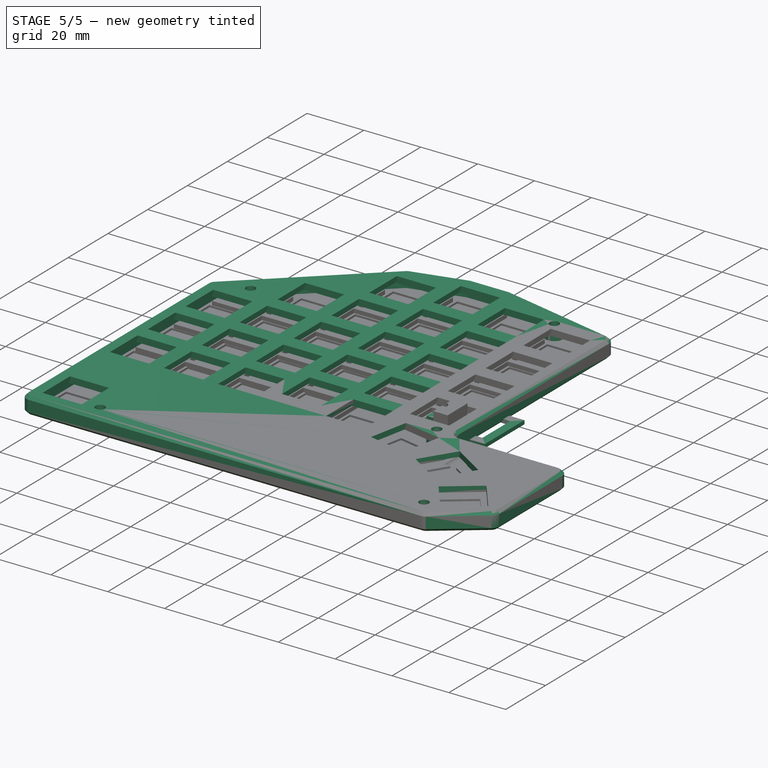
[diagram: stage 5 of 5 — iso view after this stage's code; geometry added in this stage tinted green]
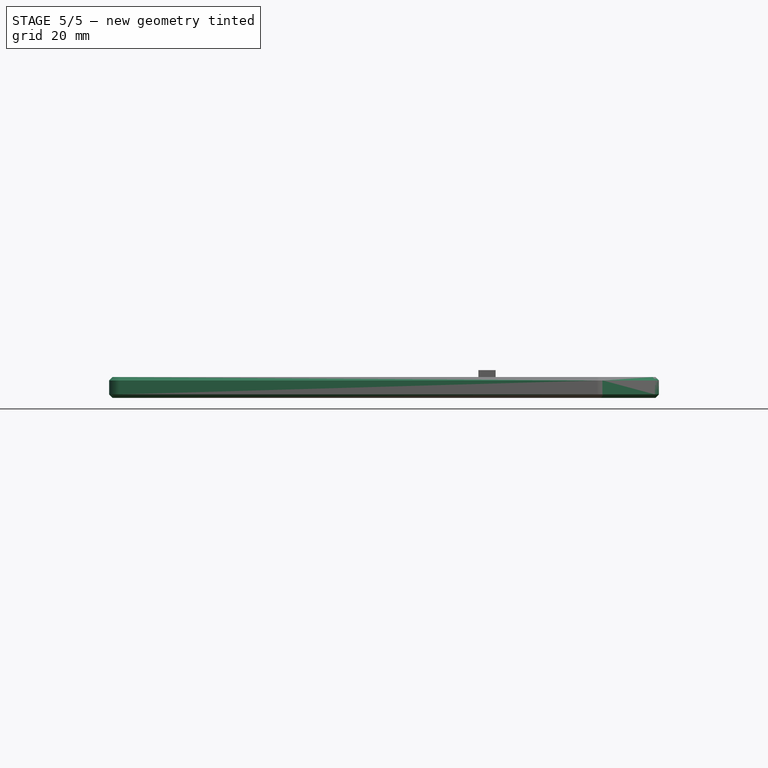
[diagram: stage 5 of 5 — front view after this stage's code; geometry added in this stage tinted green]
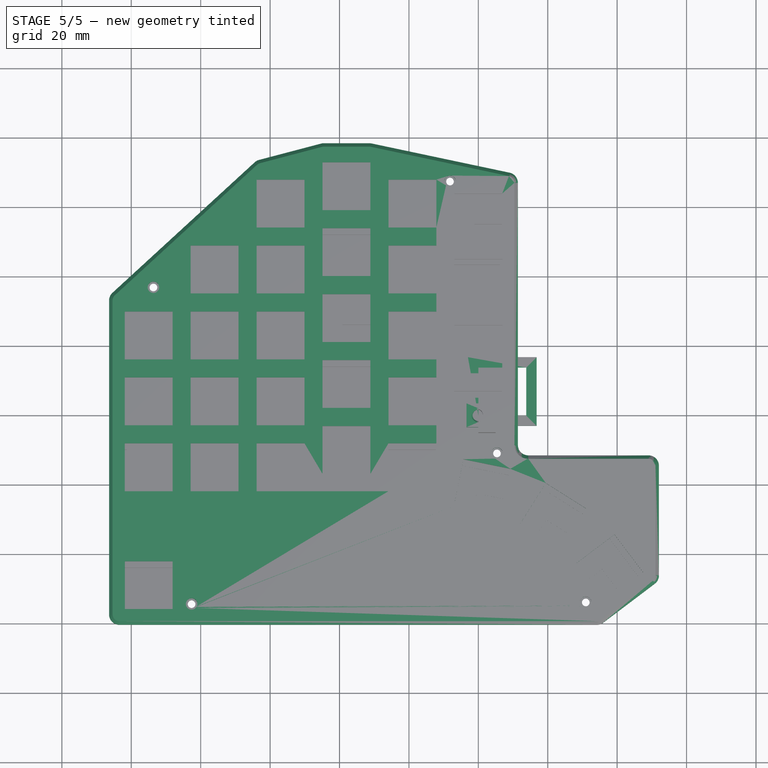
[diagram: stage 5 of 5 — top view after this stage's code; geometry added in this stage tinted green]
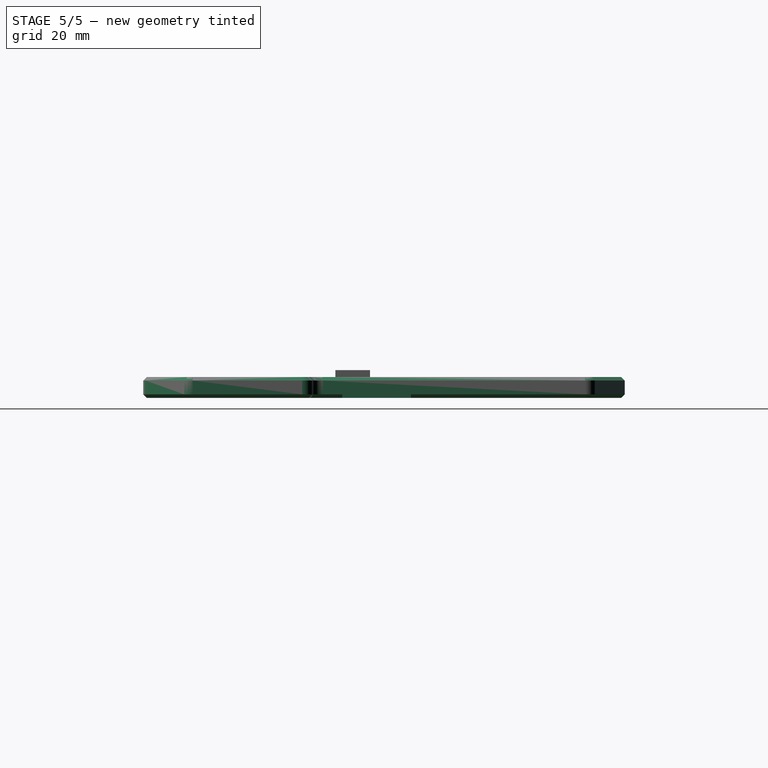
[diagram: stage 5 of 5 — right view after this stage's code; geometry added in this stage tinted green]
FEATURE [Sketcher::SketchObject] Sketch001
  FullyConstrained = true
  MapMode = 5
  Support = -> [XY_Plane001]
  expr: Constraints[18] = <<ss>>.ss_sw_side
  sketch-geometry (8):
    g0: LineSegment StartX=-3 StartY=16.8 StartZ=0 EndX=16.8 EndY=16.8 EndZ=0
    g1: LineSegment StartX=16.8 StartY=16.8 StartZ=0 EndX=16.8 EndY=-3 EndZ=0
    g2: LineSegment StartX=16.8 StartY=-3 StartZ=0 EndX=-3 EndY=-3 EndZ=0
    g3: LineSegment StartX=-3 StartY=-3 StartZ=0 EndX=-3 EndY=16.8 EndZ=0
    g4: LineSegment StartX=0 StartY=13.8 StartZ=0 EndX=13.8 EndY=13.8 EndZ=0
    g5: LineSegment StartX=13.8 StartY=13.8 StartZ=0 EndX=13.8 EndY=0 EndZ=0
    g6: LineSegment StartX=13.8 StartY=0 StartZ=0 EndX=0 EndY=0 EndZ=0
    g7: LineSegment StartX=0 StartY=0 StartZ=0 EndX=0 EndY=13.8 EndZ=0
  constraints (23):
    c: Coincident(g0,g1)
    c: Coincident(g1,g2)
    c: Coincident(g2,g3)
    c: Coincident(g3,g0)
    c: Horizontal(g0)
    c: Horizontal(g2)
    c: Vertical(g1)
    c: Vertical(g3)
    c: Coincident(g4,g5)
    c: Coincident(g5,g6)
    c: Coincident(g6,g7)
    c: Coincident(g7,g4)
    c: Horizontal(g4)
    c: Horizontal(g6)
    c: Vertical(g5)
    c: Vertical(g7)
    c: Equal(g4,g5)
    c: Equal(g0,g1)
    c: Distance(g4) = 13.8
    c: Coincident(g-1,g6)
    c: DistanceX(g2,g6) = 3
    c: DistanceY(g2,g6) = 3
    c: DistanceY(g4,g0) = 3
FEATURE [PartDesign::Pad] Pad001
  Direction = (1,1,1)
  Length = 1.3
  Length2 = 100
  Profile = -> Sketch001
  Type = 0
FEATURE [App::Link] SW30_SW_Kailh_Choc_V1_cp_61885B68_ln_059  label="SW10_SW_Kailh_Choc_V1_cp_6188599C[2]001"
  LinkPlacement = pos=(57,42,0) rot=(0,0,1;0rad)
  LinkedObject = -> Shape003
  Placement = pos=(57,42,0) rot=(0,0,1;0rad)
FEATURE [App::Link] D30_D_SOD_323_6188587E_ln_029  label="D27_D_SOD_323_61885837"
  LinkPlacement = pos=(-0.85,-226.55,0) rot=(0,0,1;0rad)
  LinkedObject = -> Shape002
  Placement = pos=(-0.85,-226.55,0) rot=(0,0,1;0rad)
FEATURE [App::Link] SW30_SW_Kailh_Choc_V1_cp_61885B68_ln_060  label="SW3_SW_Kailh_Choc_V1_cp_618858FB001"
  LinkPlacement = pos=(38,66,0) rot=(0,0,1;0rad)
  LinkedObject = -> Shape003
  Placement = pos=(38,66,0) rot=(0,0,1;0rad)
FEATURE [App::Link] SW30_SW_Kailh_Choc_V1_cp_61885B68_ln_061  label="SW2_SW_Kailh_Choc_V1_cp_6188580000.001"
  LinkPlacement = pos=(19,61,0) rot=(0,0,1;0rad)
  LinkedObject = -> Shape003
  Placement = pos=(19,61,0) rot=(0,0,1;0rad)
FEATURE [App::Link] D30_D_SOD_323_6188587E_ln_030  label="D10_D_SOD_323_6188569E001"
  LinkPlacement = pos=(14.3,-226.55,0) rot=(0,0,1;0rad)
  LinkedObject = -> Shape002
  Placement = pos=(14.3,-226.55,0) rot=(0,0,1;0rad)
FEATURE [App::Link] SW30_SW_Kailh_Choc_V1_cp_61885B68_ln_062  label="SW3_SW_Kailh_Choc_V1_cp_618858FB[2]001"
  LinkPlacement = pos=(38,66,0) rot=(0,0,1;0rad)
  LinkedObject = -> Shape003
  Placement = pos=(38,66,0) rot=(0,0,1;0rad)
FEATURE [App::Link] SW30_SW_Kailh_Choc_V1_cp_61885B68_ln_063  label="SW19_SW_Kailh_Choc_V1_cp_61885A6B001"
  LinkedObject = -> Shape003
FEATURE [App::Link] D30_D_SOD_323_6188587E_ln_031  label="D29_D_SOD_323_61885867"
  LinkPlacement = pos=(9.25,-223.6,0) rot=(0,0,1;0rad)
  LinkedObject = -> Shape002
  Placement = pos=(9.25,-223.6,0) rot=(0,0,1;0rad)
FEATURE [App::Link] SW30_SW_Kailh_Choc_V1_cp_61885B68_ln_064  label="SW18_SW_Kailh_Choc_V1_cp_61885A055"
  LinkPlacement = pos=(95,-15,0) rot=(0,0,1;0rad)
  LinkedObject = -> Shape003
  Placement = pos=(95,-15,0) rot=(0,0,1;0rad)
FEATURE [App::Link] SW30_SW_Kailh_Choc_V1_cp_61885B68_ln_065  label="SW26_SW_Kailh_Choc_V1_cp_61885B0C[2]001"
  LinkPlacement = pos=(19,-15,0) rot=(0,0,1;0rad)
  LinkedObject = -> Shape003
  Placement = pos=(19,-15,0) rot=(0,0,1;0rad)
FEATURE [App::Link] SW30_SW_Kailh_Choc_V1_cp_61885B68_ln_066  label="SW5_SW_Kailh_Choc_V1_cp_61885930"
  LinkPlacement = pos=(76,42,0) rot=(0,0,1;0rad)
  LinkedObject = -> Shape003
  Placement = pos=(76,42,0) rot=(0,0,1;0rad)
FEATURE [App::Link] SW30_SW_Kailh_Choc_V1_cp_61885B68_ln_067  label="SW2_SW_Kailh_Choc_V1_cp_6188580000.0[2]001"
  LinkPlacement = pos=(19,61,0) rot=(0,0,1;0rad)
  LinkedObject = -> Shape003
  Placement = pos=(19,61,0) rot=(0,0,1;0rad)
FEATURE [App::Link] D30_D_SOD_323_6188587E_ln_032  label="D25_D_SOD_323_61885807"
  LinkPlacement = pos=(4.2,-223.6,0) rot=(0,0,1;0rad)
  LinkedObject = -> Shape002
  Placement = pos=(4.2,-223.6,0) rot=(0,0,1;0rad)
FEATURE [App::Link] D30_D_SOD_323_6188587E_ln_033  label="D9_D_SOD_323_61885687"
  LinkPlacement = pos=(19.35,-226.55,0) rot=(0,0,1;0rad)
  LinkedObject = -> Shape002
  Placement = pos=(19.35,-226.55,0) rot=(0,0,1;0rad)
FEATURE [App::Link] D30_D_SOD_323_6188587E_ln_034  label="D2_D_SOD_323_618855DE001"
  LinkPlacement = pos=(29.45,-226.55,0) rot=(0,0,1;0rad)
  LinkedObject = -> Shape002
  Placement = pos=(29.45,-226.55,0) rot=(0,0,1;0rad)
FEATURE [App::Link] SW30_SW_Kailh_Choc_V1_cp_61885B68_ln_068  label="SW14_SW_Kailh_Choc_V1_cp_618859F8[2]001"
  LinkPlacement = pos=(19,23,0) rot=(0,0,1;0rad)
  LinkedObject = -> Shape003
  Placement = pos=(19,23,0) rot=(0,0,1;0rad)
FEATURE [App::Link] D30_D_SOD_323_6188587E_ln_035  label="D17_D_SOD_323_61885747"
  LinkPlacement = pos=(34.5,-223.6,0) rot=(0,0,1;0rad)
  LinkedObject = -> Shape002
  Placement = pos=(34.5,-223.6,0) rot=(0,0,1;0rad)
FEATURE [App::Link] SW30_SW_Kailh_Choc_V1_cp_61885B68_ln_069  label="SW27_SW_Kailh_Choc_V1_cp_61885B23[2]001"
  LinkPlacement = pos=(38,-10,0) rot=(0,0,1;0rad)
  LinkedObject = -> Shape003
  Placement = pos=(38,-10,0) rot=(0,0,1;0rad)
FEATURE [App::Link] D30_D_SOD_323_6188587E_ln_036  label="D28_D_SOD_323_6188584E001"
  LinkPlacement = pos=(4.2,-226.55,0) rot=(0,0,1;0rad)
  LinkedObject = -> Shape002
  Placement = pos=(4.2,-226.55,0) rot=(0,0,1;0rad)
FEATURE [App::Link] SW30_SW_Kailh_Choc_V1_cp_61885B68_ln_070  label="SW25_SW_Kailh_Choc_V1_cp_61885AF006"
  LinkPlacement = pos=(-37.74,-43.88,0) rot=(0,0,1;0.916298rad)
  LinkedObject = -> Shape003
  Placement = pos=(-37.74,-43.88,0) rot=(0,0,1;0.916298rad)
FEATURE [App::Link] SW30_SW_Kailh_Choc_V1_cp_61885B68_ln_071  label="SW13_SW_Kailh_Choc_V1_cp_6188590.001"
  LinkPlacement = pos=(0,19,0) rot=(0,0,1;0rad)
  LinkedObject = -> Shape003
  Placement = pos=(0,19,0) rot=(0,0,1;0rad)
FEATURE [App::Link] SW30_SW_Kailh_Choc_V1_cp_61885B68_ln_072  label="SW22_SW_Kailh_Choc_V1_cp_61885AB0[2]001"
  LinkPlacement = pos=(57,4,0) rot=(0,0,1;0rad)
  LinkedObject = -> Shape003
  Placement = pos=(57,4,0) rot=(0,0,1;0rad)
FEATURE [App::Link] SW30_SW_Kailh_Choc_V1_cp_61885B68_ln_073  label="SW25_SW_Kailh_Choc_V1_cp_61885AF5[2]001"
  LinkPlacement = pos=(-37.74,-43.88,0) rot=(0,0,1;0.916298rad)
  LinkedObject = -> Shape003
  Placement = pos=(-37.74,-43.88,0) rot=(0,0,1;0.916298rad)
FEATURE [App::Link] SW30_SW_Kailh_Choc_V1_cp_61885B68_ln_074  label="SW5_SW_Kailh_Choc_V1_cp_61885929[2]001"
  LinkPlacement = pos=(76,42,0) rot=(0,0,1;0rad)
  LinkedObject = -> Shape003
  Placement = pos=(76,42,0) rot=(0,0,1;0rad)
FEATURE [App::Link] SW30_SW_Kailh_Choc_V1_cp_61885B68_ln_075  label="SW11_SW_Kailh_Choc_V1_cp_618859B004"
  LinkPlacement = pos=(76,23,0) rot=(0,0,1;0rad)
  LinkedObject = -> Shape003
  Placement = pos=(76,23,0) rot=(0,0,1;0rad)
FEATURE [Part::Feature] Pcb_ad052
  Placement = pos=(-100,100,0) rot=(0,0,1;0rad)
  shape: bbox 150.2 x 129.8 x 1.6 mm, 280 faces (baked)
FEATURE [App::Link] D30_D_SOD_323_6188587E_ln_037  label="D15_D_SOD_323_61885717"
  LinkPlacement = pos=(9.25,-226.55,0) rot=(0,0,1;0rad)
  LinkedObject = -> Shape002
  Placement = pos=(9.25,-226.55,0) rot=(0,0,1;0rad)
FEATURE [App::Link] SW30_SW_Kailh_Choc_V1_cp_61885B68_ln_076  label="SW20_SW_Kailh_Choc_V1_cp_61885A083"
  LinkPlacement = pos=(19,4,0) rot=(0,0,1;0rad)
  LinkedObject = -> Shape003
  Placement = pos=(19,4,0) rot=(0,0,1;0rad)
FEATURE [App::Link] SW30_SW_Kailh_Choc_V1_cp_61885B68_ln_077  label="SW8_SW_Kailh_Choc_V1_cp_6188596E001"
  LinkPlacement = pos=(19,42,0) rot=(0,0,1;0rad)
  LinkedObject = -> Shape003
  Placement = pos=(19,42,0) rot=(0,0,1;0rad)
FEATURE [App::Link] SW30_SW_Kailh_Choc_V1_cp_61885B68_ln_078  label="SW1_SW_Kailh_Choc_V1_cp_618858CD001"
  LinkPlacement = pos=(0,57,0) rot=(0,0,1;0rad)
  LinkedObject = -> Shape003
  Placement = pos=(0,57,0) rot=(0,0,1;0rad)
FEATURE [App::Link] SW30_SW_Kailh_Choc_V1_cp_61885B68_ln_079  label="SW22_SW_Kailh_Choc_V1_cp_61885AB001"
  LinkPlacement = pos=(57,4,0) rot=(0,0,1;0rad)
  LinkedObject = -> Shape003
  Placement = pos=(57,4,0) rot=(0,0,1;0rad)
FEATURE [App::Link] D30_D_SOD_323_6188587E_ln_038  label="D19_D_SOD_323_61885777"
  LinkPlacement = pos=(-16,-226.55,0) rot=(0,0,1;0rad)
  LinkedObject = -> Shape002
  Placement = pos=(-16,-226.55,0) rot=(0,0,1;0rad)
FEATURE [App::Link] D30_D_SOD_323_6188587E_ln_039  label="D26_D_SOD_323_6188581E001"
  LinkPlacement = pos=(-5.9,-229.5,0) rot=(0,0,1;0rad)
  LinkedObject = -> Shape002
  Placement = pos=(-5.9,-229.5,0) rot=(0,0,1;0rad)
FEATURE [App::Link] SW30_SW_Kailh_Choc_V1_cp_61885B68_ln_080  label="SW16_SW_Kailh_Choc_V1_cp_61885A027"
  LinkPlacement = pos=(57,23,0) rot=(0,0,1;0rad)
  LinkedObject = -> Shape003
  Placement = pos=(57,23,0) rot=(0,0,1;0rad)
FEATURE [App::Link] SW30_SW_Kailh_Choc_V1_cp_61885B68_ln_081  label="SW23_SW_Kailh_Choc_V1_cp_61885AC7[2]001"
  LinkPlacement = pos=(76,-15,0) rot=(0,0,1;0rad)
  LinkedObject = -> Shape003
  Placement = pos=(76,-15,0) rot=(0,0,1;0rad)
FEATURE [App::Link] D30_D_SOD_323_6188587E_ln_040  label="D18_D_SOD_323_6188575E001"
  LinkPlacement = pos=(-10.95,-223.6,0) rot=(0,0,1;0rad)
  LinkedObject = -> Shape002
  Placement = pos=(-10.95,-223.6,0) rot=(0,0,1;0rad)
FEATURE [App::Link] SW30_SW_Kailh_Choc_V1_cp_61885B68_ln_082  label="SW11_SW_Kailh_Choc_V1_cp_618859B3[2]001"
  LinkPlacement = pos=(76,23,0) rot=(0,0,1;0rad)
  LinkedObject = -> Shape003
  Placement = pos=(76,23,0) rot=(0,0,1;0rad)
FEATURE [App::Link] SW30_SW_Kailh_Choc_V1_cp_61885B68_ln_083  label="SW6_SW_Kailh_Choc_V1_cp_61885940[2]001"
  LinkPlacement = pos=(95,23,0) rot=(0,0,1;0rad)
  LinkedObject = -> Shape003
  Placement = pos=(95,23,0) rot=(0,0,1;0rad)
FEATURE [App::Link] SW30_SW_Kailh_Choc_V1_cp_61885B68_ln_084  label="SW12_SW_Kailh_Choc_V1_cp_618859CA001"
  LinkPlacement = pos=(95,4,0) rot=(0,0,1;0rad)
  LinkedObject = -> Shape003
  Placement = pos=(95,4,0) rot=(0,0,1;0rad)
FEATURE [App::Link] D30_D_SOD_323_6188587E_ln_041  label="D11_D_SOD_323_618856B007"
  LinkPlacement = pos=(9.25,-229.5,0) rot=(0,0,1;0rad)
  LinkedObject = -> Shape002
  Placement = pos=(9.25,-229.5,0) rot=(0,0,1;0rad)
FEATURE [App::Link] SW30_SW_Kailh_Choc_V1_cp_61885B68_ln_085  label="SW23_SW_Kailh_Choc_V1_cp_61885AC008"
  LinkPlacement = pos=(76,-15,0) rot=(0,0,1;0rad)
  LinkedObject = -> Shape003
  Placement = pos=(76,-15,0) rot=(0,0,1;0rad)
FEATURE [PartDesign::CoordinateSystem] Local_CS_ad052
  AttacherType = Attacher::AttachEngine3D
FEATURE [App::Link] D30_D_SOD_323_6188587E_ln_042  label="D6_D_SOD_323_6188563E001"
  LinkPlacement = pos=(29.45,-223.6,0) rot=(0,0,1;0rad)
  LinkedObject = -> Shape002
  Placement = pos=(29.45,-223.6,0) rot=(0,0,1;0rad)
FEATURE [App::Link] D30_D_SOD_323_6188587E_ln_043  label="D21_D_SOD_323_618857A007"
  LinkPlacement = pos=(-5.9,-223.6,0) rot=(0,0,1;0rad)
  LinkedObject = -> Shape002
  Placement = pos=(-5.9,-223.6,0) rot=(0,0,1;0rad)
FEATURE [App::Link] SW30_SW_Kailh_Choc_V1_cp_61885B68_ln_086  label="SW30_SW_Kailh_Choc_V1_cp_61885B68[2]001"
  LinkPlacement = pos=(-21.49,-28.99,0) rot=(0,0,1;0.558505rad)
  LinkedObject = -> Shape003
  Placement = pos=(-21.49,-28.99,0) rot=(0,0,1;0.558505rad)
FEATURE [Part::Feature] Shape002  label="D30_D_SOD_323_6188587E001"
  Placement = pos=(14.3,-223.6,0) rot=(0,0,1;0rad)
  shape: bbox 2.5 x 1.25 x 1.1 mm, 67 faces (baked)
FEATURE [App::Link] SW30_SW_Kailh_Choc_V1_cp_61885B68_ln_087  label="SW4_SW_Kailh_Choc_V1_cp_61885912[2]001"
  LinkPlacement = pos=(57,61,0) rot=(0,0,1;0rad)
  LinkedObject = -> Shape003
  Placement = pos=(57,61,0) rot=(0,0,1;0rad)
FEATURE [App::Link] SW30_SW_Kailh_Choc_V1_cp_61885B68_ln_088  label="SW26_SW_Kailh_Choc_V1_cp_61885B0C001"
  LinkPlacement = pos=(19,-15,0) rot=(0,0,1;0rad)
  LinkedObject = -> Shape003
  Placement = pos=(19,-15,0) rot=(0,0,1;0rad)
FEATURE [App::Link] SW30_SW_Kailh_Choc_V1_cp_61885B68_ln_089  label="SW4_SW_Kailh_Choc_V1_cp_61885913"
  LinkPlacement = pos=(57,61,0) rot=(0,0,1;0rad)
  LinkedObject = -> Shape003
  Placement = pos=(57,61,0) rot=(0,0,1;0rad)
FEATURE [App::Link] SW30_SW_Kailh_Choc_V1_cp_61885B68_ln_090  label="SW9_SW_Kailh_Choc_V1_cp_61885985[2]001"
  LinkPlacement = pos=(38,47,0) rot=(0,0,1;0rad)
  LinkedObject = -> Shape003
  Placement = pos=(38,47,0) rot=(0,0,1;0rad)
FEATURE [App::Link] SW30_SW_Kailh_Choc_V1_cp_61885B68_ln_091  label="SW13_SW_Kailh_Choc_V1_cp_6188590.0[2]001"
  LinkPlacement = pos=(0,19,0) rot=(0,0,1;0rad)
  LinkedObject = -> Shape003
  Placement = pos=(0,19,0) rot=(0,0,1;0rad)
FEATURE [App::Link] SW30_SW_Kailh_Choc_V1_cp_61885B68_ln_092  label="SW24_SW_Kailh_Choc_V1_cp_61885ADE[2]001"
  LinkPlacement = pos=(95,-49,0) rot=(0,0,1;0rad)
  LinkedObject = -> Shape003
  Placement = pos=(95,-49,0) rot=(0,0,1;0rad)
FEATURE [App::Link] D30_D_SOD_323_6188587E_ln_044  label="D22_D_SOD_323_618857BE001"
  LinkPlacement = pos=(-0.85,-223.6,0) rot=(0,0,1;0rad)
  LinkedObject = -> Shape002
  Placement = pos=(-0.85,-223.6,0) rot=(0,0,1;0rad)
FEATURE [App::Link] SW30_SW_Kailh_Choc_V1_cp_61885B68_ln_093  label="SW9_SW_Kailh_Choc_V1_cp_61885986"
  LinkPlacement = pos=(38,47,0) rot=(0,0,1;0rad)
  LinkedObject = -> Shape003
  Placement = pos=(38,47,0) rot=(0,0,1;0rad)
FEATURE [App::Link] SW30_SW_Kailh_Choc_V1_cp_61885B68_ln_094  label="SW29_SW_Kailh_Choc_V1_cp_61885B052"
  LinkPlacement = pos=(-1,-20.8,0) rot=(0,0,1;0.191986rad)
  LinkedObject = -> Shape003
  Placement = pos=(-1,-20.8,0) rot=(0,0,1;0.191986rad)
FEATURE [App::Link] SW30_SW_Kailh_Choc_V1_cp_61885B68_ln_095  label="SW10_SW_Kailh_Choc_V1_cp_6188599C001"
  LinkPlacement = pos=(57,42,0) rot=(0,0,1;0rad)
  LinkedObject = -> Shape003
  Placement = pos=(57,42,0) rot=(0,0,1;0rad)
FEATURE [App::Link] D30_D_SOD_323_6188587E_ln_045  label="D24_D_SOD_323_618857EE001"
  LinkPlacement = pos=(-10.95,-229.5,0) rot=(0,0,1;0rad)
  LinkedObject = -> Shape002
  Placement = pos=(-10.95,-229.5,0) rot=(0,0,1;0rad)
FEATURE [App::Link] D30_D_SOD_323_6188587E_ln_046  label="D8_D_SOD_323_6188566E001"
  LinkPlacement = pos=(24.4,-223.6,0) rot=(0,0,1;0rad)
  LinkedObject = -> Shape002
  Placement = pos=(24.4,-223.6,0) rot=(0,0,1;0rad)
FEATURE [App::Link] D30_D_SOD_323_6188587E_ln_047  label="D16_D_SOD_323_6188572E001"
  LinkPlacement = pos=(-16,-223.6,0) rot=(0,0,1;0rad)
  LinkedObject = -> Shape002
  Placement = pos=(-16,-223.6,0) rot=(0,0,1;0rad)
FEATURE [App::Link] D30_D_SOD_323_6188587E_ln_048  label="D1_D_SOD_323_618855C007"
  LinkPlacement = pos=(24.4,-229.5,0) rot=(0,0,1;0rad)
  LinkedObject = -> Shape002
  Placement = pos=(24.4,-229.5,0) rot=(0,0,1;0rad)
FEATURE [App::Link] D30_D_SOD_323_6188587E_ln_049  label="D23_D_SOD_323_618857D007"
  LinkPlacement = pos=(-5.9,-226.55,0) rot=(0,0,1;0rad)
  LinkedObject = -> Shape002
  Placement = pos=(-5.9,-226.55,0) rot=(0,0,1;0rad)
FEATURE [App::Link] SW30_SW_Kailh_Choc_V1_cp_61885B68_ln_096  label="SW1_SW_Kailh_Choc_V1_cp_618858CD[2]001"
  LinkPlacement = pos=(0,57,0) rot=(0,0,1;0rad)
  LinkedObject = -> Shape003
  Placement = pos=(0,57,0) rot=(0,0,1;0rad)
FEATURE [App::Link] SW30_SW_Kailh_Choc_V1_cp_61885B68_ln_097  label="SW7_SW_Kailh_Choc_V1_cp_61885958"
  LinkPlacement = pos=(0,38,0) rot=(0,0,1;0rad)
  LinkedObject = -> Shape003
  Placement = pos=(0,38,0) rot=(0,0,1;0rad)
FEATURE [App::Link] D30_D_SOD_323_6188587E_ln_050  label="D3_D_SOD_323_618855F007"
  LinkPlacement = pos=(19.35,-229.5,0) rot=(0,0,1;0rad)
  LinkedObject = -> Shape002
  Placement = pos=(19.35,-229.5,0) rot=(0,0,1;0rad)
FEATURE [App::Link] SW30_SW_Kailh_Choc_V1_cp_61885B68_ln_098  label="SW21_SW_Kailh_Choc_V1_cp_61885A99[2]001"
  LinkPlacement = pos=(38,9,0) rot=(0,0,1;0rad)
  LinkedObject = -> Shape003
  Placement = pos=(38,9,0) rot=(0,0,1;0rad)
FEATURE [App::Link] SW30_SW_Kailh_Choc_V1_cp_61885B68_ln_099  label="SW16_SW_Kailh_Choc_V1_cp_61885A26[2]001"
  LinkPlacement = pos=(57,23,0) rot=(0,0,1;0rad)
  LinkedObject = -> Shape003
  Placement = pos=(57,23,0) rot=(0,0,1;0rad)
FEATURE [App::Link] SW30_SW_Kailh_Choc_V1_cp_61885B68_ln_100  label="SW24_SW_Kailh_Choc_V1_cp_61885ADE001"
  LinkPlacement = pos=(95,-49,0) rot=(0,0,1;0rad)
  LinkedObject = -> Shape003
  Placement = pos=(95,-49,0) rot=(0,0,1;0rad)
FEATURE [App::Link] SW30_SW_Kailh_Choc_V1_cp_61885B68_ln_101  label="SW6_SW_Kailh_Choc_V1_cp_61885941"
  LinkPlacement = pos=(95,23,0) rot=(0,0,1;0rad)
  LinkedObject = -> Shape003
  Placement = pos=(95,23,0) rot=(0,0,1;0rad)
FEATURE [App::Link] SW30_SW_Kailh_Choc_V1_cp_61885B68_ln_102  label="SW15_SW_Kailh_Choc_V1_cp_61885A0F001"
  LinkPlacement = pos=(38,28,0) rot=(0,0,1;0rad)
  LinkedObject = -> Shape003
  Placement = pos=(38,28,0) rot=(0,0,1;0rad)
FEATURE [App::Link] SW30_SW_Kailh_Choc_V1_cp_61885B68_ln_103  label="SW20_SW_Kailh_Choc_V1_cp_61885A82[2]001"
  LinkPlacement = pos=(19,4,0) rot=(0,0,1;0rad)
  LinkedObject = -> Shape003
  Placement = pos=(19,4,0) rot=(0,0,1;0rad)
FEATURE [App::Link] D30_D_SOD_323_6188587E_ln_051  label="D5_D_SOD_323_61885627"
  LinkPlacement = pos=(24.4,-226.55,0) rot=(0,0,1;0rad)
  LinkedObject = -> Shape002
  Placement = pos=(24.4,-226.55,0) rot=(0,0,1;0rad)
FEATURE [App::Link] SW30_SW_Kailh_Choc_V1_cp_61885B68_ln_104  label="SW18_SW_Kailh_Choc_V1_cp_61885A54[2]001"
  LinkPlacement = pos=(95,-15,0) rot=(0,0,1;0rad)
  LinkedObject = -> Shape003
  Placement = pos=(95,-15,0) rot=(0,0,1;0rad)
FEATURE [App::Link] D30_D_SOD_323_6188587E_ln_052  label="D7_D_SOD_323_61885657"
  LinkPlacement = pos=(-16,-229.5,0) rot=(0,0,1;0rad)
  LinkedObject = -> Shape002
  Placement = pos=(-16,-229.5,0) rot=(0,0,1;0rad)
FEATURE [App::Link] SW30_SW_Kailh_Choc_V1_cp_61885B68_ln_105  label="SW29_SW_Kailh_Choc_V1_cp_61885B51[2]001"
  LinkPlacement = pos=(-1,-20.8,0) rot=(0,0,1;0.191986rad)
  LinkedObject = -> Shape003
  Placement = pos=(-1,-20.8,0) rot=(0,0,1;0.191986rad)
FEATURE [App::Link] D30_D_SOD_323_6188587E_ln_053  label="D13_D_SOD_323_8856000000.001"
  LinkPlacement = pos=(4.2,-229.5,0) rot=(0,0,1;0rad)
  LinkedObject = -> Shape002
  Placement = pos=(4.2,-229.5,0) rot=(0,0,1;0rad)
FEATURE [App::Link] SW30_SW_Kailh_Choc_V1_cp_61885B68_ln_106  label="SW27_SW_Kailh_Choc_V1_cp_61885B024"
  LinkPlacement = pos=(38,-10,0) rot=(0,0,1;0rad)
  LinkedObject = -> Shape003
  Placement = pos=(38,-10,0) rot=(0,0,1;0rad)
FEATURE [App::Link] D30_D_SOD_323_6188587E_ln_054  label="D20_D_SOD_323_6188578E001"
  LinkPlacement = pos=(-10.95,-226.55,0) rot=(0,0,1;0rad)
  LinkedObject = -> Shape002
  Placement = pos=(-10.95,-226.55,0) rot=(0,0,1;0rad)
FEATURE [App::Link] SW30_SW_Kailh_Choc_V1_cp_61885B68_ln_107  label="SW28_SW_Kailh_Choc_V1_cp_61885B3A001"
  LinkPlacement = pos=(57,-15,0) rot=(0,0,1;0rad)
  LinkedObject = -> Shape003
  Placement = pos=(57,-15,0) rot=(0,0,1;0rad)
FEATURE [App::Link] D30_D_SOD_323_6188587E_ln_055  label="D12_D_SOD_323_618856CE001"
  LinkPlacement = pos=(19.35,-223.6,0) rot=(0,0,1;0rad)
  LinkedObject = -> Shape002
  Placement = pos=(19.35,-223.6,0) rot=(0,0,1;0rad)
FEATURE [App::Link] SW30_SW_Kailh_Choc_V1_cp_61885B68_ln_108  label="SW17_SW_Kailh_Choc_V1_cp_61885A3D001"
  LinkPlacement = pos=(76,4,0) rot=(0,0,1;0rad)
  LinkedObject = -> Shape003
  Placement = pos=(76,4,0) rot=(0,0,1;0rad)
FEATURE [App::Link] SW30_SW_Kailh_Choc_V1_cp_61885B68_ln_109  label="SW21_SW_Kailh_Choc_V1_cp_61885A100"
  LinkPlacement = pos=(38,9,0) rot=(0,0,1;0rad)
  LinkedObject = -> Shape003
  Placement = pos=(38,9,0) rot=(0,0,1;0rad)
FEATURE [App::Link] SW30_SW_Kailh_Choc_V1_cp_61885B68_ln_110  label="SW19_SW_Kailh_Choc_V1_cp_61885A6B[2]001"
  LinkedObject = -> Shape003
FEATURE [App::Link] D30_D_SOD_323_6188587E_ln_056  label="D14_D_SOD_323_618856FE001"
  LinkPlacement = pos=(-0.85,-229.5,0) rot=(0,0,1;0rad)
  LinkedObject = -> Shape002
  Placement = pos=(-0.85,-229.5,0) rot=(0,0,1;0rad)
FEATURE [Part::Feature] Shape003  label="SW30_SW_Kailh_Choc_V1_cp_61885B069"
  Placement = pos=(-21.49,-28.99,0) rot=(0,0,1;0.558505rad)
  shape: bbox 20.67 x 20.67 x 11.08 mm, 495 faces, 5 solids (baked)
FEATURE [App::Link] SW30_SW_Kailh_Choc_V1_cp_61885B68_ln_111  label="SW14_SW_Kailh_Choc_V1_cp_618859F009"
  LinkPlacement = pos=(19,23,0) rot=(0,0,1;0rad)
  LinkedObject = -> Shape003
  Placement = pos=(19,23,0) rot=(0,0,1;0rad)
FEATURE [App::Link] SW30_SW_Kailh_Choc_V1_cp_61885B68_ln_112  label="SW17_SW_Kailh_Choc_V1_cp_61885A3D[2]001"
  LinkPlacement = pos=(76,4,0) rot=(0,0,1;0rad)
  LinkedObject = -> Shape003
  Placement = pos=(76,4,0) rot=(0,0,1;0rad)
FEATURE [App::Link] SW30_SW_Kailh_Choc_V1_cp_61885B68_ln_113  label="SW15_SW_Kailh_Choc_V1_cp_61885A0F[2]001"
  LinkPlacement = pos=(38,28,0) rot=(0,0,1;0rad)
  LinkedObject = -> Shape003
  Placement = pos=(38,28,0) rot=(0,0,1;0rad)
FEATURE [App::Link] SW30_SW_Kailh_Choc_V1_cp_61885B68_ln_114  label="SW7_SW_Kailh_Choc_V1_cp_61885957[2]001"
  LinkPlacement = pos=(0,38,0) rot=(0,0,1;0rad)
  LinkedObject = -> Shape003
  Placement = pos=(0,38,0) rot=(0,0,1;0rad)
FEATURE [App::Link] SW30_SW_Kailh_Choc_V1_cp_61885B68_ln_115  label="SW8_SW_Kailh_Choc_V1_cp_6188596E[2]001"
  LinkPlacement = pos=(19,42,0) rot=(0,0,1;0rad)
  LinkedObject = -> Shape003
  Placement = pos=(19,42,0) rot=(0,0,1;0rad)
FEATURE [App::Link] D30_D_SOD_323_6188587E_ln_057  label="D4_D_SOD_323_6188560E001"
  LinkPlacement = pos=(14.3,-229.5,0) rot=(0,0,1;0rad)
  LinkedObject = -> Shape002
  Placement = pos=(14.3,-229.5,0) rot=(0,0,1;0rad)
FEATURE [App::Link] SW30_SW_Kailh_Choc_V1_cp_61885B68_ln_116  label="SW28_SW_Kailh_Choc_V1_cp_61885B3A[2]001"
  LinkPlacement = pos=(57,-15,0) rot=(0,0,1;0rad)
  LinkedObject = -> Shape003
  Placement = pos=(57,-15,0) rot=(0,0,1;0rad)
FEATURE [App::Link] SW30_SW_Kailh_Choc_V1_cp_61885B68_ln_117  label="SW12_SW_Kailh_Choc_V1_cp_618859CA[2]001"
  LinkPlacement = pos=(95,4,0) rot=(0,0,1;0rad)
  LinkedObject = -> Shape003
  Placement = pos=(95,4,0) rot=(0,0,1;0rad)
FEATURE [App::Part] Top_ad052  label="Top_ad054"
  Group = -> [Shape003,SW30_SW_Kailh_Choc_V1_cp_61885B68_ln_086,SW30_SW_Kailh_Choc_V1_cp_61885B68_ln_094,SW30_SW_Kailh_Choc_V1_cp_61885B68_ln_105,SW30_SW_Kailh_Choc_V1_cp_61885B68_ln_107,SW30_SW_Kailh_Choc_V1_cp_61885B68_ln_116,SW30_SW_Kailh_Choc_V1_cp_61885B68_ln_106,SW30_SW_Kailh_Choc_V1_cp_61885B68_ln_069,SW30_SW_Kailh_Choc_V1_cp_61885B68_ln_088,SW30_SW_Kailh_Choc_V1_cp_61885B68_ln_065,+80 more]
  Origin = -> Origin007
FEATURE [App::Part] Step_Models_ad052  label="Step_Models_ad053"
  Group = -> [Top_ad052]
  Origin = -> Origin010
FEATURE [Sketcher::SketchObject] Sketch033  label="PCB_Sketch_ad52"
  FullyConstrained = true
  MapMode = 5
  Support = -> [XY_Plane009]
  sketch-geometry (62):
    g0: LineSegment StartX=-11.5711 StartY=-13.14 StartZ=0 EndX=-11.5711 EndY=-14.64 EndZ=0
    g1: LineSegment StartX=-11.5711 StartY=-14.64 StartZ=0 EndX=-5.37107 EndY=-14.64 EndZ=0
    g2: ArcOfCircle CenterX=-5.37107 CenterY=-10.94 CenterZ=0 NormalX=0 NormalY=0 NormalZ=1 AngleXU=0 Radius=3.7 StartAngle=4.71239 EndAngle=7.85398
    g3: LineSegment StartX=-5.37107 StartY=-7.24 StartZ=0 EndX=-7.17905 EndY=-7.24 EndZ=0
    g4: LineSegment StartX=-7.17905 StartY=-7.24 StartZ=0 EndX=-7.17905 EndY=65.2079 EndZ=0
    g5: ArcOfCircle CenterX=-6.92905 CenterY=65.2079 CenterZ=0 NormalX=0 NormalY=0 NormalZ=1 AngleXU=0 Radius=0.25 StartAngle=1.78414 EndAngle=3.14159
    g6: LineSegment StartX=-6.98198 StartY=65.4522 StartZ=0 EndX=4.15957 EndY=67.8659 EndZ=0
    g7: ArcOfCircle CenterX=4.2125 CenterY=67.6215 CenterZ=0 NormalX=0 NormalY=0 NormalZ=1 AngleXU=0 Radius=0.25 StartAngle=1.7e-14 EndAngle=1.78414
    g8: LineSegment StartX=4.4625 StartY=67.6215 StartZ=0 EndX=4.4625 EndY=67.4131 EndZ=0
    g9: ArcOfCircle CenterX=8.1625 CenterY=67.4131 CenterZ=0 NormalX=0 NormalY=0 NormalZ=1 AngleXU=0 Radius=3.7 StartAngle=3.14159 EndAngle=6.28319
    g10: LineSegment StartX=12.0596 StartY=69.5773 StartZ=0 EndX=31.3539 EndY=73.7572 EndZ=0
    g11: ArcOfCircle CenterX=31.4069 CenterY=73.5129 CenterZ=0 NormalX=0 NormalY=0 NormalZ=1 AngleXU=0 Radius=0.25 StartAngle=1.5708 EndAngle=1.78414
    g12: LineSegment StartX=31.4069 StartY=73.7629 StartZ=0 EndX=44.0416 EndY=73.7629 EndZ=0
    g13: ArcOfCircle CenterX=44.0416 CenterY=73.5129 CenterZ=0 NormalX=0 NormalY=0 NormalZ=1 AngleXU=0 Radius=0.25 StartAngle=1.31228 EndAngle=1.5708
    g14: LineSegment StartX=44.1055 StartY=73.7545 StartZ=0 EndX=63.6474 EndY=68.587 EndZ=0
    g15: ArcOfCircle CenterX=63.5835 CenterY=68.3453 CenterZ=0 NormalX=0 NormalY=0 NormalZ=1 AngleXU=0 Radius=0.25 StartAngle=0.832312 EndAngle=1.31228
    g16: LineSegment StartX=63.7518 StartY=68.5301 StartZ=0 EndX=92.9386 EndY=41.961 EndZ=0
    g17: LineSegment StartX=101.922 StartY=32.9487 StartZ=0 EndX=101.922 EndY=-55.9293 EndZ=0
    g18: ArcOfCircle CenterX=101.672 CenterY=-55.9293 CenterZ=0 NormalX=0 NormalY=0 NormalZ=1 AngleXU=0 Radius=0.25 StartAngle=4.71239 EndAngle=6.28319
    g19: LineSegment StartX=101.672 StartY=-56.1793 StartZ=0 EndX=86.5718 EndY=-56.1793 EndZ=0
    g20: LineSegment StartX=-36.0775 StartY=-54.158 StartZ=0 EndX=-48.0748 EndY=-44.9887 EndZ=0
    g21: ArcOfCircle CenterX=-47.923 CenterY=-44.7901 CenterZ=0 NormalX=0 NormalY=0 NormalZ=1 AngleXU=0 Radius=0.25 StartAngle=3.14159 EndAngle=4.05981
    g22: LineSegment StartX=-48.173 StartY=-44.7901 StartZ=0 EndX=-48.173 EndY=-13.14 EndZ=0
    g23: LineSegment StartX=-48.173 StartY=-13.14 StartZ=0 EndX=-42.995 EndY=-13.14 EndZ=0
    g24: ArcOfCircle CenterX=12.1125 CenterY=69.333 CenterZ=0 NormalX=0 NormalY=0 NormalZ=1 AngleXU=0 Radius=0.25 StartAngle=1.78414 EndAngle=3.14159
    g25: LineSegment StartX=11.8625 StartY=69.333 StartZ=0 EndX=11.8625 EndY=67.4131 EndZ=0
    g26: ArcOfCircle CenterX=93.6718 CenterY=36.8987 CenterZ=0 NormalX=0 NormalY=0 NormalZ=1 AngleXU=0 Radius=3.7 StartAngle=2.40311 EndAngle=4.71239
    g27: ArcOfCircle CenterX=92.7703 CenterY=41.7762 CenterZ=0 NormalX=0 NormalY=0 NormalZ=1 AngleXU=0 Radius=0.25 StartAngle=5.5447 EndAngle=7.1155
    g28: LineSegment StartX=92.9552 StartY=41.6079 StartZ=0 EndX=90.9357 EndY=39.3894 EndZ=0
    g29: LineSegment StartX=93.6718 StartY=33.1987 StartZ=0 EndX=101.672 EndY=33.1987 EndZ=0
    g30: ArcOfCircle CenterX=101.672 CenterY=32.9487 CenterZ=0 NormalX=0 NormalY=0 NormalZ=1 AngleXU=0 Radius=0.25 StartAngle=6.4e-15 EndAngle=1.5708
    g31: ArcOfCircle CenterX=82.6218 CenterY=-54.3793 CenterZ=0 NormalX=0 NormalY=0 NormalZ=1 AngleXU=0 Radius=3.7 StartAngle=-9e-16 EndAngle=3.14159
    g32: LineSegment StartX=86.3218 StartY=-54.3793 StartZ=0 EndX=86.3218 EndY=-55.9293 EndZ=0
    g33: LineSegment StartX=78.9218 StartY=-54.3793 StartZ=0 EndX=78.9218 EndY=-55.9293 EndZ=0
    g34: LineSegment StartX=78.6718 StartY=-56.1793 StartZ=0 EndX=-26.943 EndY=-56.1793 EndZ=0
    g35: ArcOfCircle CenterX=86.5718 CenterY=-55.9293 CenterZ=0 NormalX=0 NormalY=0 NormalZ=1 AngleXU=0 Radius=0.25 StartAngle=3.14159 EndAngle=4.71239
    g36: ArcOfCircle CenterX=78.6718 CenterY=-55.9293 CenterZ=0 NormalX=0 NormalY=0 NormalZ=1 AngleXU=0 Radius=0.25 StartAngle=4.71239 EndAngle=6.28319
    g37: ArcOfCircle CenterX=-30.893 CenterY=-53.8793 CenterZ=0 NormalX=0 NormalY=0 NormalZ=1 AngleXU=0 Radius=3.7 StartAngle=-9e-16 EndAngle=2.48901
    g38: LineSegment StartX=-33.8327 StartY=-51.6325 StartZ=0 EndX=-35.7271 EndY=-54.1112 EndZ=0
    g39: LineSegment StartX=-27.193 StartY=-53.8793 StartZ=0 EndX=-27.193 EndY=-55.9293 EndZ=0
    g40: ArcOfCircle CenterX=-35.9257 CenterY=-53.9594 CenterZ=0 NormalX=0 NormalY=0 NormalZ=1 AngleXU=0 Radius=0.25 StartAngle=4.05981 EndAngle=5.63061
    g41: ArcOfCircle CenterX=-26.943 CenterY=-55.9293 CenterZ=0 NormalX=0 NormalY=0 NormalZ=1 AngleXU=0 Radius=0.25 StartAngle=3.14159 EndAngle=4.71239
    g42: LineSegment StartX=105.505 StartY=-59.8793 StartZ=0 EndX=105.624 EndY=34.7406 EndZ=0
    g43: LineSegment StartX=105.624 StartY=34.7406 StartZ=0 EndX=63.6802 EndY=72.9227 EndZ=0
    g44: LineSegment StartX=63.6802 StartY=72.9227 StartZ=0 EndX=44.6831 EndY=77.9462 EndZ=0
    g45: LineSegment StartX=44.6831 StartY=77.9462 StartZ=0 EndX=30.9331 EndY=77.9634 EndZ=0
    g46: LineSegment StartX=30.9331 StartY=77.9634 StartZ=0 EndX=-11.0431 EndY=68.8698 EndZ=0
    g47: LineSegment StartX=-11.0431 StartY=68.8698 StartZ=0 EndX=-10.87 EndY=-11.44 EndZ=0
    g48: LineSegment StartX=-10.87 StartY=-11.44 StartZ=0 EndX=-51.373 EndY=-11.44 EndZ=0
    g49: LineSegment StartX=-51.373 StartY=-11.44 StartZ=0 EndX=-51.373 EndY=-47.1249 EndZ=0
    g50: LineSegment StartX=-51.373 StartY=-47.1249 StartZ=0 EndX=-34.6849 EndY=-59.8793 EndZ=0
    g51: LineSegment StartX=-34.6849 StartY=-59.8793 StartZ=0 EndX=105.505 EndY=-59.8793 EndZ=0
    g52: LineSegment StartX=-24.995 StartY=-13.14 StartZ=0 EndX=-24.995 EndY=-19.34 EndZ=0
    g53: LineSegment StartX=-24.995 StartY=-19.34 StartZ=0 EndX=-15.755 EndY=-19.34 EndZ=0
    g54: LineSegment StartX=-15.755 StartY=-19.34 StartZ=0 EndX=-15.755 EndY=-13.14 EndZ=0
    g55: LineSegment StartX=-42.995 StartY=-13.14 StartZ=0 EndX=-42.995 EndY=-19.34 EndZ=0
    g56: LineSegment StartX=-42.995 StartY=-19.34 StartZ=0 EndX=-33.755 EndY=-19.34 EndZ=0
    g57: LineSegment StartX=-33.755 StartY=-19.34 StartZ=0 EndX=-33.755 EndY=-13.14 EndZ=0
    g58: GeomPoint X=-20.375 Y=-19.34 Z=0
    g59: GeomPoint X=-38.375 Y=-19.34 Z=0
    g60: LineSegment StartX=-15.755 StartY=-13.14 StartZ=0 EndX=-11.5711 EndY=-13.14 EndZ=0
    g61: LineSegment StartX=-33.755 StartY=-13.14 StartZ=0 EndX=-24.995 EndY=-13.14 EndZ=0
  constraints (160):
    c: Vertical(g0)
    c: Coincident(g0,g1)
    c: Horizontal(g1)
    c: Tangent(g1,g2) = -1.5708
    c: Tangent(g2,g3) = -1.5708
    c: Vertical(g4)
    c: Tangent(g4,g5) = 1.5708
    c: Tangent(g6,g7) = 1.5708
    c: Vertical(g8)
    c: Tangent(g8,g9) = -1.5708
    c: Tangent(g10,g11) = 1.5708
    c: Horizontal(g12)
    c: Tangent(g12,g13) = 1.5708
    c: Tangent(g14,g15) = 1.5708
    c: Vertical(g17)
    c: Tangent(g17,g18) = 1.5708
    c: Horizontal(g19)
    c: Tangent(g20,g21) = 1.5708
    c: Vertical(g22)
    c: Coincident(g22,g23)
    c: Horizontal(g23)
    c: Coincident(g0,g60)
    c: Tangent(g21,g22) = 1.5708
    c: Tangent(g5,g6) = 1.5708
    c: Tangent(g7,g8) = 1.5708
    c: Tangent(g10,g24) = 1.5708
    c: Vertical(g25)
    c: Tangent(g24,g25) = -1.5708
    c: Tangent(g11,g12) = 1.5708
    c: Tangent(g13,g14) = 1.5708
    c: Tangent(g15,g16) = 1.5708
    c: Tangent(g18,g19) = 1.5708
    c: Tangent(g9,g25) = 1.5708
    c: Tangent(g28,g26) = -1.5708
    c: Tangent(g26,g29) = -1.5708
    c: Perpendicular(g16,g28)
    c: Tangent(g27,g28) = 1.5708
    c: Tangent(g16,g27) = 1.5708
    c: Tangent(g29,g30) = 1.5708
    c: Tangent(g17,g30) = 1.5708
    c: Vertical(g32)
    c: Vertical(g33)
    c: Tangent(g19,g34)
    c: Tangent(g32,g35) = -1.5708
    c: Tangent(g19,g35) = 1.5708
    c: Tangent(g34,g36) = 1.5708
    c: Tangent(g33,g36) = 1.5708
    c: Tangent(g38,g37) = -1.5708
    c: Tangent(g39,g37) = 1.5708
    c: Tangent(g20,g40) = 1.5708
    c: Tangent(g38,g40) = 1.5708
    c: Tangent(g39,g41) = -1.5708
    c: Tangent(g34,g41) = 1.5708
    c: Perpendicular(g20,g38)
    c: Perpendicular(g34,g39)
    c: Diameter(g37) = 7.4
    c: Equal(g37,g2)
    c: Equal(g37,g31)
    c: Equal(g37,g26)
    c: Equal(g37,g9)
    c: Horizontal(g3)
    c: Diameter(g40) = 0.5
    c: Equal(g40,g41)
    c: Equal(g40,g21)
    c: Equal(g40,g5)
    c: Equal(g40,g11)
    c: Equal(g40,g13)
    c: Equal(g40,g15)
    c: Equal(g40,g27)
    c: Equal(g40,g30)
    c: Equal(g40,g18)
    c: Equal(g40,g35)
    c: Equal(g40,g36)
    c: Distance(g29) = 8
    c: Horizontal(g29)
    c: Distance(g28) = 3
    c: Tangent(g31,g32) = 1.5708
    c: Tangent(g31,g33) = -1.5708
    c: Distance(g19) = 15.1
    c: Distance(g0) = 1.5
    c: Distance(g1) = 6.2
    c: Equal(g7,g24)
    c: Equal(g24,g5)
    c: Coincident(g4,g3)
    c: Coincident(g42,g43)
    c: Coincident(g43,g44)
    c: Coincident(g44,g45)
    c: Coincident(g45,g46)
    c: Coincident(g46,g47)
    c: Coincident(g47,g48)
    c: Coincident(g48,g49)
    c: Coincident(g49,g50)
    c: Coincident(g50,g51)
    c: Coincident(g51,g42)
    c: Distance(g42) = 94.62
    c: Distance(g43) = 56.72
    c: Distance(g44) = 19.65
    c: Distance(g45) = 13.75
    c: Distance(g46) = 42.95
    c: Distance(g47) = 80.31
    c: Distance(g48) = 40.503
    c: Distance(g49) = 35.6849
    c: Distance(g50) = 21.004
    c: Distance(g51) = 140.19
    c: Angle(g43,g42) = 2.30802
    c: Angle(g45,g44) = 2.88433
    c: Angle(g44,g43) = 2.66163
    c: Angle(g47,g46) = 1.78198
    c: Angle(g50,g49) = 2.22337
    c: Angle(g51,g50) = 2.48901
    c: DistanceX(g47,g-1) = 10.87
    c: DistanceY(g47,g-1) = 11.44
    c: Horizontal(g48)
    c: Vertical(g49)
    c: Distance(g22,g48) = 1.7
    c: Distance(g22,g49) = 3.2
    c: Distance(g20,g50) = 3.7
    c: Distance(g34,g51) = 3.7
    c: Distance(g2,g47) = 5.5
    c: Distance(g3,g47) = 3.7
    c: Distance(g10,g46) = 4.2
    c: Distance(g9,g46) = 5.49
    c: Parallel(g6,g46)
    c: Parallel(g10,g46)
    c: Distance(g11,g45) = 4.2
    c: Distance(g13,g44) = 4.2
    c: Parallel(g14,g44)
    c: Distance(g15,g43) = 3.2
    c: Parallel(g16,g43)
    c: Distance(g17,g42) = 3.7
    c: Distance(g31,g51) = 5.5
    c: Parallel(g20,g50)
    c: Distance(g37,g51) = 6
    c: Distance(g20) = 15.1
    c: Distance(g5,g46) = 4.2
    c: Distance(g6) = 11.4
    c: Vertical(g52)
    c: Coincident(g52,g53)
    c: Horizontal(g53)
    c: Coincident(g53,g54)
    c: Vertical(g54)
    c: Vertical(g55)
    c: Coincident(g55,g56)
    c: Horizontal(g56)
    c: Coincident(g56,g57)
    c: Vertical(g57)
    c: Symmetric(g52,g53,g58)
    c: Symmetric(g56,g55,g59)
    c: Coincident(g61,g52)
    c: Coincident(g60,g54)
    c: Tangent(g23,g60)
    c: Coincident(g23,g55)
    c: Coincident(g61,g57)
    c: Tangent(g23,g61)
    c: Equal(g55,g52)
    c: Equal(g56,g53)
    c: DistanceX(g58,g-1) = 20.375
    c: DistanceX(g59,g58) = 18
    c: DistanceX(g53,g53) = 9.24
    c: DistanceY(g54,g54) = 6.2
FEATURE [App::Part] Board_Geoms_ad052  label="Board_Geoms_ad053"
  Group = -> [Local_CS_ad052,Pcb_ad052,Sketch033]
  Origin = -> Origin009
FEATURE [App::Part] Board_ad052  label="grapto-v3-pcb-right"
  Group = -> [Board_Geoms_ad052,Step_Models_ad052]
  Origin = -> Origin008
FEATURE [PartDesign::CoordinateSystem] Local_CS_2ea3
  AttacherType = Attacher::AttachEngine3D
FEATURE [Part::Feature] Pcb_2ea3
  Placement = pos=(-177,102,0) rot=(0,0,1;0rad)
  shape: bbox 150.1 x 129.9 x 1.6 mm, 222 faces (baked)
FEATURE [Part::Feature] Shape  label="SW30_SW_Kailh_Choc_V1_cp_61885B68"
  Placement = pos=(21.49,-28.99,0) rot=(0,0,1;2.58309rad)
  shape: bbox 20.67 x 20.67 x 11.08 mm, 495 faces, 5 solids (baked)
FEATURE [App::Link] SW30_SW_Kailh_Choc_V1_cp_61885B68_ln_  label="SW30_SW_Kailh_Choc_V1_cp_61885B68[2]"
  LinkPlacement = pos=(21.49,-28.99,0) rot=(0,0,1;2.58309rad)
  LinkedObject = -> Shape
  Placement = pos=(21.49,-28.99,0) rot=(0,0,1;2.58309rad)
FEATURE [App::Link] SW30_SW_Kailh_Choc_V1_cp_61885B68_ln_001  label="SW29_SW_Kailh_Choc_V1_cp_61885B51"
  LinkPlacement = pos=(1,-20.8,0) rot=(0,0,1;2.94961rad)
  LinkedObject = -> Shape
  Placement = pos=(1,-20.8,0) rot=(0,0,1;2.94961rad)
FEATURE [App::Link] SW30_SW_Kailh_Choc_V1_cp_61885B68_ln_002  label="SW29_SW_Kailh_Choc_V1_cp_61885B51[2]"
  LinkPlacement = pos=(1,-20.8,0) rot=(0,0,1;2.94961rad)
  LinkedObject = -> Shape
  Placement = pos=(1,-20.8,0) rot=(0,0,1;2.94961rad)
FEATURE [App::Link] SW30_SW_Kailh_Choc_V1_cp_61885B68_ln_003  label="SW28_SW_Kailh_Choc_V1_cp_61885B3A"
  LinkPlacement = pos=(-57,-15,0) rot=(0,0,1;3.14159rad)
  LinkedObject = -> Shape
  Placement = pos=(-57,-15,0) rot=(0,0,1;3.14159rad)
FEATURE [App::Link] SW30_SW_Kailh_Choc_V1_cp_61885B68_ln_004  label="SW28_SW_Kailh_Choc_V1_cp_61885B3A[2]"
  LinkPlacement = pos=(-57,-15,0) rot=(0,0,1;3.14159rad)
  LinkedObject = -> Shape
  Placement = pos=(-57,-15,0) rot=(0,0,1;3.14159rad)
FEATURE [App::Link] SW30_SW_Kailh_Choc_V1_cp_61885B68_ln_005  label="SW27_SW_Kailh_Choc_V1_cp_61885B23"
  LinkPlacement = pos=(-38,-10,0) rot=(0,0,1;3.14159rad)
  LinkedObject = -> Shape
  Placement = pos=(-38,-10,0) rot=(0,0,1;3.14159rad)
FEATURE [App::Link] SW30_SW_Kailh_Choc_V1_cp_61885B68_ln_006  label="SW27_SW_Kailh_Choc_V1_cp_61885B23[2]"
  LinkPlacement = pos=(-38,-10,0) rot=(0,0,1;3.14159rad)
  LinkedObject = -> Shape
  Placement = pos=(-38,-10,0) rot=(0,0,1;3.14159rad)
FEATURE [App::Link] SW30_SW_Kailh_Choc_V1_cp_61885B68_ln_007  label="SW26_SW_Kailh_Choc_V1_cp_61885B0C"
  LinkPlacement = pos=(-19,-15,0) rot=(0,0,1;3.14159rad)
  LinkedObject = -> Shape
  Placement = pos=(-19,-15,0) rot=(0,0,1;3.14159rad)
FEATURE [App::Link] SW30_SW_Kailh_Choc_V1_cp_61885B68_ln_008  label="SW26_SW_Kailh_Choc_V1_cp_61885B0C[2]"
  LinkPlacement = pos=(-19,-15,0) rot=(0,0,1;3.14159rad)
  LinkedObject = -> Shape
  Placement = pos=(-19,-15,0) rot=(0,0,1;3.14159rad)
FEATURE [App::Link] SW30_SW_Kailh_Choc_V1_cp_61885B68_ln_009  label="SW25_SW_Kailh_Choc_V1_cp_61885AF5"
  LinkPlacement = pos=(37.74,-43.88,0) rot=(0,0,1;2.2253rad)
  LinkedObject = -> Shape
  Placement = pos=(37.74,-43.88,0) rot=(0,0,1;2.2253rad)
FEATURE [App::Link] SW30_SW_Kailh_Choc_V1_cp_61885B68_ln_010  label="SW25_SW_Kailh_Choc_V1_cp_61885AF5[2]"
  LinkPlacement = pos=(37.74,-43.88,0) rot=(0,0,1;2.2253rad)
  LinkedObject = -> Shape
  Placement = pos=(37.74,-43.88,0) rot=(0,0,1;2.2253rad)
FEATURE [App::Link] SW30_SW_Kailh_Choc_V1_cp_61885B68_ln_011  label="SW24_SW_Kailh_Choc_V1_cp_61885ADE"
  LinkPlacement = pos=(-95,-49,0) rot=(0,0,1;3.14159rad)
  LinkedObject = -> Shape
  Placement = pos=(-95,-49,0) rot=(0,0,1;3.14159rad)
FEATURE [App::Link] SW30_SW_Kailh_Choc_V1_cp_61885B68_ln_012  label="SW24_SW_Kailh_Choc_V1_cp_61885ADE[2]"
  LinkPlacement = pos=(-95,-49,0) rot=(0,0,1;3.14159rad)
  LinkedObject = -> Shape
  Placement = pos=(-95,-49,0) rot=(0,0,1;3.14159rad)
FEATURE [App::Link] SW30_SW_Kailh_Choc_V1_cp_61885B68_ln_013  label="SW23_SW_Kailh_Choc_V1_cp_61885AC7"
  LinkPlacement = pos=(-76,-15,0) rot=(0,0,1;3.14159rad)
  LinkedObject = -> Shape
  Placement = pos=(-76,-15,0) rot=(0,0,1;3.14159rad)
FEATURE [App::Link] SW30_SW_Kailh_Choc_V1_cp_61885B68_ln_014  label="SW23_SW_Kailh_Choc_V1_cp_61885AC7[2]"
  LinkPlacement = pos=(-76,-15,0) rot=(0,0,1;3.14159rad)
  LinkedObject = -> Shape
  Placement = pos=(-76,-15,0) rot=(0,0,1;3.14159rad)
FEATURE [App::Link] SW30_SW_Kailh_Choc_V1_cp_61885B68_ln_015  label="SW22_SW_Kailh_Choc_V1_cp_61885AB0"
  LinkPlacement = pos=(-57,4,0) rot=(0,0,1;3.14159rad)
  LinkedObject = -> Shape
  Placement = pos=(-57,4,0) rot=(0,0,1;3.14159rad)
FEATURE [App::Link] SW30_SW_Kailh_Choc_V1_cp_61885B68_ln_016  label="SW22_SW_Kailh_Choc_V1_cp_61885AB0[2]"
  LinkPlacement = pos=(-57,4,0) rot=(0,0,1;3.14159rad)
  LinkedObject = -> Shape
  Placement = pos=(-57,4,0) rot=(0,0,1;3.14159rad)
FEATURE [App::Link] SW30_SW_Kailh_Choc_V1_cp_61885B68_ln_017  label="SW21_SW_Kailh_Choc_V1_cp_61885A99"
  LinkPlacement = pos=(-38,9,0) rot=(0,0,1;3.14159rad)
  LinkedObject = -> Shape
  Placement = pos=(-38,9,0) rot=(0,0,1;3.14159rad)
FEATURE [App::Link] SW30_SW_Kailh_Choc_V1_cp_61885B68_ln_018  label="SW21_SW_Kailh_Choc_V1_cp_61885A99[2]"
  LinkPlacement = pos=(-38,9,0) rot=(0,0,1;3.14159rad)
  LinkedObject = -> Shape
  Placement = pos=(-38,9,0) rot=(0,0,1;3.14159rad)
FEATURE [App::Link] SW30_SW_Kailh_Choc_V1_cp_61885B68_ln_019  label="SW20_SW_Kailh_Choc_V1_cp_61885A82"
  LinkPlacement = pos=(-19,4,0) rot=(0,0,1;3.14159rad)
  LinkedObject = -> Shape
  Placement = pos=(-19,4,0) rot=(0,0,1;3.14159rad)
FEATURE [App::Link] SW30_SW_Kailh_Choc_V1_cp_61885B68_ln_020  label="SW20_SW_Kailh_Choc_V1_cp_61885A82[2]"
  LinkPlacement = pos=(-19,4,0) rot=(0,0,1;3.14159rad)
  LinkedObject = -> Shape
  Placement = pos=(-19,4,0) rot=(0,0,1;3.14159rad)
FEATURE [App::Link] SW30_SW_Kailh_Choc_V1_cp_61885B68_ln_021  label="SW19_SW_Kailh_Choc_V1_cp_61885A6B"
  LinkPlacement = pos=(0,0,0) rot=(0,0,1;3.14159rad)
  LinkedObject = -> Shape
  Placement = pos=(0,0,0) rot=(0,0,1;3.14159rad)
FEATURE [App::Link] SW30_SW_Kailh_Choc_V1_cp_61885B68_ln_022  label="SW19_SW_Kailh_Choc_V1_cp_61885A6B[2]"
  LinkPlacement = pos=(0,0,0) rot=(0,0,1;3.14159rad)
  LinkedObject = -> Shape
  Placement = pos=(0,0,0) rot=(0,0,1;3.14159rad)
FEATURE [App::Link] SW30_SW_Kailh_Choc_V1_cp_61885B68_ln_023  label="SW18_SW_Kailh_Choc_V1_cp_61885A54"
  LinkPlacement = pos=(-95,-15,0) rot=(0,0,1;3.14159rad)
  LinkedObject = -> Shape
  Placement = pos=(-95,-15,0) rot=(0,0,1;3.14159rad)
FEATURE [App::Link] SW30_SW_Kailh_Choc_V1_cp_61885B68_ln_024  label="SW18_SW_Kailh_Choc_V1_cp_61885A54[2]"
  LinkPlacement = pos=(-95,-15,0) rot=(0,0,1;3.14159rad)
  LinkedObject = -> Shape
  Placement = pos=(-95,-15,0) rot=(0,0,1;3.14159rad)
FEATURE [App::Link] SW30_SW_Kailh_Choc_V1_cp_61885B68_ln_025  label="SW17_SW_Kailh_Choc_V1_cp_61885A3D"
  LinkPlacement = pos=(-76,4,0) rot=(0,0,1;3.14159rad)
  LinkedObject = -> Shape
  Placement = pos=(-76,4,0) rot=(0,0,1;3.14159rad)
FEATURE [App::Link] SW30_SW_Kailh_Choc_V1_cp_61885B68_ln_026  label="SW17_SW_Kailh_Choc_V1_cp_61885A3D[2]"
  LinkPlacement = pos=(-76,4,0) rot=(0,0,1;3.14159rad)
  LinkedObject = -> Shape
  Placement = pos=(-76,4,0) rot=(0,0,1;3.14159rad)
FEATURE [App::Link] SW30_SW_Kailh_Choc_V1_cp_61885B68_ln_027  label="SW16_SW_Kailh_Choc_V1_cp_61885A26"
  LinkPlacement = pos=(-57,23,0) rot=(0,0,1;3.14159rad)
  LinkedObject = -> Shape
  Placement = pos=(-57,23,0) rot=(0,0,1;3.14159rad)
FEATURE [App::Link] SW30_SW_Kailh_Choc_V1_cp_61885B68_ln_028  label="SW16_SW_Kailh_Choc_V1_cp_61885A26[2]"
  LinkPlacement = pos=(-57,23,0) rot=(0,0,1;3.14159rad)
  LinkedObject = -> Shape
  Placement = pos=(-57,23,0) rot=(0,0,1;3.14159rad)
FEATURE [App::Link] SW30_SW_Kailh_Choc_V1_cp_61885B68_ln_029  label="SW15_SW_Kailh_Choc_V1_cp_61885A0F"
  LinkPlacement = pos=(-38,28,0) rot=(0,0,1;3.14159rad)
  LinkedObject = -> Shape
  Placement = pos=(-38,28,0) rot=(0,0,1;3.14159rad)
FEATURE [App::Link] SW30_SW_Kailh_Choc_V1_cp_61885B68_ln_030  label="SW15_SW_Kailh_Choc_V1_cp_61885A0F[2]"
  LinkPlacement = pos=(-38,28,0) rot=(0,0,1;3.14159rad)
  LinkedObject = -> Shape
  Placement = pos=(-38,28,0) rot=(0,0,1;3.14159rad)
FEATURE [App::Link] SW30_SW_Kailh_Choc_V1_cp_61885B68_ln_031  label="SW14_SW_Kailh_Choc_V1_cp_618859F8"
  LinkPlacement = pos=(-19,23,0) rot=(0,0,1;3.14159rad)
  LinkedObject = -> Shape
  Placement = pos=(-19,23,0) rot=(0,0,1;3.14159rad)
FEATURE [App::Link] SW30_SW_Kailh_Choc_V1_cp_61885B68_ln_032  label="SW14_SW_Kailh_Choc_V1_cp_618859F8[2]"
  LinkPlacement = pos=(-19,23,0) rot=(0,0,1;3.14159rad)
  LinkedObject = -> Shape
  Placement = pos=(-19,23,0) rot=(0,0,1;3.14159rad)
FEATURE [App::Link] SW30_SW_Kailh_Choc_V1_cp_61885B68_ln_033  label="SW13_SW_Kailh_Choc_V1_cp_6188590.0"
  LinkPlacement = pos=(0,19,0) rot=(0,0,1;3.14159rad)
  LinkedObject = -> Shape
  Placement = pos=(0,19,0) rot=(0,0,1;3.14159rad)
FEATURE [App::Link] SW30_SW_Kailh_Choc_V1_cp_61885B68_ln_034  label="SW13_SW_Kailh_Choc_V1_cp_6188590.0[2]"
  LinkPlacement = pos=(0,19,0) rot=(0,0,1;3.14159rad)
  LinkedObject = -> Shape
  Placement = pos=(0,19,0) rot=(0,0,1;3.14159rad)
FEATURE [App::Link] SW30_SW_Kailh_Choc_V1_cp_61885B68_ln_035  label="SW12_SW_Kailh_Choc_V1_cp_618859CA"
  LinkPlacement = pos=(-95,4,0) rot=(0,0,1;3.14159rad)
  LinkedObject = -> Shape
  Placement = pos=(-95,4,0) rot=(0,0,1;3.14159rad)
FEATURE [App::Link] SW30_SW_Kailh_Choc_V1_cp_61885B68_ln_036  label="SW12_SW_Kailh_Choc_V1_cp_618859CA[2]"
  LinkPlacement = pos=(-95,4,0) rot=(0,0,1;3.14159rad)
  LinkedObject = -> Shape
  Placement = pos=(-95,4,0) rot=(0,0,1;3.14159rad)
FEATURE [App::Link] SW30_SW_Kailh_Choc_V1_cp_61885B68_ln_037  label="SW11_SW_Kailh_Choc_V1_cp_618859B3"
  LinkPlacement = pos=(-76,23,0) rot=(0,0,1;3.14159rad)
  LinkedObject = -> Shape
  Placement = pos=(-76,23,0) rot=(0,0,1;3.14159rad)
FEATURE [App::Link] SW30_SW_Kailh_Choc_V1_cp_61885B68_ln_038  label="SW11_SW_Kailh_Choc_V1_cp_618859B3[2]"
  LinkPlacement = pos=(-76,23,0) rot=(0,0,1;3.14159rad)
  LinkedObject = -> Shape
  Placement = pos=(-76,23,0) rot=(0,0,1;3.14159rad)
FEATURE [App::Link] SW30_SW_Kailh_Choc_V1_cp_61885B68_ln_039  label="SW10_SW_Kailh_Choc_V1_cp_6188599C"
  LinkPlacement = pos=(-57,42,0) rot=(0,0,1;3.14159rad)
  LinkedObject = -> Shape
  Placement = pos=(-57,42,0) rot=(0,0,1;3.14159rad)
FEATURE [App::Link] SW30_SW_Kailh_Choc_V1_cp_61885B68_ln_040  label="SW10_SW_Kailh_Choc_V1_cp_6188599C[2]"
  LinkPlacement = pos=(-57,42,0) rot=(0,0,1;3.14159rad)
  LinkedObject = -> Shape
  Placement = pos=(-57,42,0) rot=(0,0,1;3.14159rad)
FEATURE [App::Link] SW30_SW_Kailh_Choc_V1_cp_61885B68_ln_041  label="SW9_SW_Kailh_Choc_V1_cp_61885985"
  LinkPlacement = pos=(-38,47,0) rot=(0,0,1;3.14159rad)
  LinkedObject = -> Shape
  Placement = pos=(-38,47,0) rot=(0,0,1;3.14159rad)
FEATURE [App::Link] SW30_SW_Kailh_Choc_V1_cp_61885B68_ln_042  label="SW9_SW_Kailh_Choc_V1_cp_61885985[2]"
  LinkPlacement = pos=(-38,47,0) rot=(0,0,1;3.14159rad)
  LinkedObject = -> Shape
  Placement = pos=(-38,47,0) rot=(0,0,1;3.14159rad)
FEATURE [App::Link] SW30_SW_Kailh_Choc_V1_cp_61885B68_ln_043  label="SW8_SW_Kailh_Choc_V1_cp_6188596E"
  LinkPlacement = pos=(-19,42,0) rot=(0,0,1;3.14159rad)
  LinkedObject = -> Shape
  Placement = pos=(-19,42,0) rot=(0,0,1;3.14159rad)
FEATURE [App::Link] SW30_SW_Kailh_Choc_V1_cp_61885B68_ln_044  label="SW8_SW_Kailh_Choc_V1_cp_6188596E[2]"
  LinkPlacement = pos=(-19,42,0) rot=(0,0,1;3.14159rad)
  LinkedObject = -> Shape
  Placement = pos=(-19,42,0) rot=(0,0,1;3.14159rad)
FEATURE [App::Link] SW30_SW_Kailh_Choc_V1_cp_61885B68_ln_045  label="SW7_SW_Kailh_Choc_V1_cp_61885957"
  LinkPlacement = pos=(0,38,0) rot=(0,0,1;3.14159rad)
  LinkedObject = -> Shape
  Placement = pos=(0,38,0) rot=(0,0,1;3.14159rad)
FEATURE [App::Link] SW30_SW_Kailh_Choc_V1_cp_61885B68_ln_046  label="SW7_SW_Kailh_Choc_V1_cp_61885957[2]"
  LinkPlacement = pos=(0,38,0) rot=(0,0,1;3.14159rad)
  LinkedObject = -> Shape
  Placement = pos=(0,38,0) rot=(0,0,1;3.14159rad)
FEATURE [App::Link] SW30_SW_Kailh_Choc_V1_cp_61885B68_ln_047  label="SW6_SW_Kailh_Choc_V1_cp_61885940"
  LinkPlacement = pos=(-95,23,0) rot=(0,0,1;3.14159rad)
  LinkedObject = -> Shape
  Placement = pos=(-95,23,0) rot=(0,0,1;3.14159rad)
FEATURE [App::Link] SW30_SW_Kailh_Choc_V1_cp_61885B68_ln_048  label="SW6_SW_Kailh_Choc_V1_cp_61885940[2]"
  LinkPlacement = pos=(-95,23,0) rot=(0,0,1;3.14159rad)
  LinkedObject = -> Shape
  Placement = pos=(-95,23,0) rot=(0,0,1;3.14159rad)
FEATURE [App::Link] SW30_SW_Kailh_Choc_V1_cp_61885B68_ln_049  label="SW5_SW_Kailh_Choc_V1_cp_61885929"
  LinkPlacement = pos=(-76,42,0) rot=(0,0,1;3.14159rad)
  LinkedObject = -> Shape
  Placement = pos=(-76,42,0) rot=(0,0,1;3.14159rad)
FEATURE [App::Link] SW30_SW_Kailh_Choc_V1_cp_61885B68_ln_050  label="SW5_SW_Kailh_Choc_V1_cp_61885929[2]"
  LinkPlacement = pos=(-76,42,0) rot=(0,0,1;3.14159rad)
  LinkedObject = -> Shape
  Placement = pos=(-76,42,0) rot=(0,0,1;3.14159rad)
FEATURE [App::Link] SW30_SW_Kailh_Choc_V1_cp_61885B68_ln_051  label="SW4_SW_Kailh_Choc_V1_cp_61885912"
  LinkPlacement = pos=(-57,61,0) rot=(0,0,1;3.14159rad)
  LinkedObject = -> Shape
  Placement = pos=(-57,61,0) rot=(0,0,1;3.14159rad)
FEATURE [App::Link] SW30_SW_Kailh_Choc_V1_cp_61885B68_ln_052  label="SW4_SW_Kailh_Choc_V1_cp_61885912[2]"
  LinkPlacement = pos=(-57,61,0) rot=(0,0,1;3.14159rad)
  LinkedObject = -> Shape
  Placement = pos=(-57,61,0) rot=(0,0,1;3.14159rad)
FEATURE [App::Link] SW30_SW_Kailh_Choc_V1_cp_61885B68_ln_053  label="SW3_SW_Kailh_Choc_V1_cp_618858FB"
  LinkPlacement = pos=(-38,66,0) rot=(0,0,1;3.14159rad)
  LinkedObject = -> Shape
  Placement = pos=(-38,66,0) rot=(0,0,1;3.14159rad)
FEATURE [App::Link] SW30_SW_Kailh_Choc_V1_cp_61885B68_ln_054  label="SW3_SW_Kailh_Choc_V1_cp_618858FB[2]"
  LinkPlacement = pos=(-38,66,0) rot=(0,0,1;3.14159rad)
  LinkedObject = -> Shape
  Placement = pos=(-38,66,0) rot=(0,0,1;3.14159rad)
FEATURE [App::Link] SW30_SW_Kailh_Choc_V1_cp_61885B68_ln_055  label="SW2_SW_Kailh_Choc_V1_cp_6188580000.0"
  LinkPlacement = pos=(-19,61,0) rot=(0,0,1;3.14159rad)
  LinkedObject = -> Shape
  Placement = pos=(-19,61,0) rot=(0,0,1;3.14159rad)
FEATURE [App::Link] SW30_SW_Kailh_Choc_V1_cp_61885B68_ln_056  label="SW2_SW_Kailh_Choc_V1_cp_6188580000.0[2]"
  LinkPlacement = pos=(-19,61,0) rot=(0,0,1;3.14159rad)
  LinkedObject = -> Shape
  Placement = pos=(-19,61,0) rot=(0,0,1;3.14159rad)
FEATURE [App::Link] SW30_SW_Kailh_Choc_V1_cp_61885B68_ln_057  label="SW1_SW_Kailh_Choc_V1_cp_618858CD"
  LinkPlacement = pos=(0,57,0) rot=(0,0,1;3.14159rad)
  LinkedObject = -> Shape
  Placement = pos=(0,57,0) rot=(0,0,1;3.14159rad)
FEATURE [App::Link] SW30_SW_Kailh_Choc_V1_cp_61885B68_ln_058  label="SW1_SW_Kailh_Choc_V1_cp_618858CD[2]"
  LinkPlacement = pos=(0,57,0) rot=(0,0,1;3.14159rad)
  LinkedObject = -> Shape
  Placement = pos=(0,57,0) rot=(0,0,1;3.14159rad)
FEATURE [Part::Feature] Shape001  label="D30_D_SOD_323_6188587E"
  Placement = pos=(-15.3,-222.6,0) rot=(0,0,1;3.14159rad)
  shape: bbox 2.5 x 1.25 x 1.1 mm, 67 faces (baked)
FEATURE [App::Link] D30_D_SOD_323_6188587E_ln_  label="D29_D_SOD_323_61885866"
  LinkPlacement = pos=(-10.25,-222.6,0) rot=(0,0,1;3.14159rad)
  LinkedObject = -> Shape001
  Placement = pos=(-10.25,-222.6,0) rot=(0,0,1;3.14159rad)
FEATURE [App::Link] D30_D_SOD_323_6188587E_ln_001  label="D28_D_SOD_323_6188584E"
  LinkPlacement = pos=(-5.2,-225.55,0) rot=(0,0,1;3.14159rad)
  LinkedObject = -> Shape001
  Placement = pos=(-5.2,-225.55,0) rot=(0,0,1;3.14159rad)
FEATURE [App::Link] D30_D_SOD_323_6188587E_ln_002  label="D27_D_SOD_323_61885836"
  LinkPlacement = pos=(-0.15,-225.55,0) rot=(0,0,1;3.14159rad)
  LinkedObject = -> Shape001
  Placement = pos=(-0.15,-225.55,0) rot=(0,0,1;3.14159rad)
FEATURE [App::Link] D30_D_SOD_323_6188587E_ln_003  label="D26_D_SOD_323_6188581E"
  LinkPlacement = pos=(4.9,-228.5,0) rot=(0,0,1;3.14159rad)
  LinkedObject = -> Shape001
  Placement = pos=(4.9,-228.5,0) rot=(0,0,1;3.14159rad)
FEATURE [App::Link] D30_D_SOD_323_6188587E_ln_004  label="D25_D_SOD_323_61885806"
  LinkPlacement = pos=(-5.2,-222.6,0) rot=(0,0,1;3.14159rad)
  LinkedObject = -> Shape001
  Placement = pos=(-5.2,-222.6,0) rot=(0,0,1;3.14159rad)
FEATURE [App::Link] D30_D_SOD_323_6188587E_ln_005  label="D24_D_SOD_323_618857EE"
  LinkPlacement = pos=(9.95,-228.5,0) rot=(0,0,1;3.14159rad)
  LinkedObject = -> Shape001
  Placement = pos=(9.95,-228.5,0) rot=(0,0,1;3.14159rad)
FEATURE [App::Link] D30_D_SOD_323_6188587E_ln_006  label="D23_D_SOD_323_618857D6"
  LinkPlacement = pos=(4.9,-225.55,0) rot=(0,0,1;3.14159rad)
  LinkedObject = -> Shape001
  Placement = pos=(4.9,-225.55,0) rot=(0,0,1;3.14159rad)
FEATURE [App::Link] D30_D_SOD_323_6188587E_ln_007  label="D22_D_SOD_323_618857BE"
  LinkPlacement = pos=(-0.15,-222.6,0) rot=(0,0,1;3.14159rad)
  LinkedObject = -> Shape001
  Placement = pos=(-0.15,-222.6,0) rot=(0,0,1;3.14159rad)
FEATURE [App::Link] D30_D_SOD_323_6188587E_ln_008  label="D21_D_SOD_323_618857A6"
  LinkPlacement = pos=(4.9,-222.6,0) rot=(0,0,1;3.14159rad)
  LinkedObject = -> Shape001
  Placement = pos=(4.9,-222.6,0) rot=(0,0,1;3.14159rad)
FEATURE [App::Link] D30_D_SOD_323_6188587E_ln_009  label="D20_D_SOD_323_6188578E"
  LinkPlacement = pos=(9.95,-225.55,0) rot=(0,0,1;3.14159rad)
  LinkedObject = -> Shape001
  Placement = pos=(9.95,-225.55,0) rot=(0,0,1;3.14159rad)
FEATURE [App::Link] D30_D_SOD_323_6188587E_ln_010  label="D19_D_SOD_323_61885776"
  LinkPlacement = pos=(15,-225.55,0) rot=(0,0,1;3.14159rad)
  LinkedObject = -> Shape001
  Placement = pos=(15,-225.55,0) rot=(0,0,1;3.14159rad)
FEATURE [App::Link] D30_D_SOD_323_6188587E_ln_011  label="D18_D_SOD_323_6188575E"
  LinkPlacement = pos=(9.95,-222.6,0) rot=(0,0,1;3.14159rad)
  LinkedObject = -> Shape001
  Placement = pos=(9.95,-222.6,0) rot=(0,0,1;3.14159rad)
FEATURE [App::Link] D30_D_SOD_323_6188587E_ln_012  label="D17_D_SOD_323_61885746"
  LinkPlacement = pos=(-35.5,-222.6,0) rot=(0,0,1;3.14159rad)
  LinkedObject = -> Shape001
  Placement = pos=(-35.5,-222.6,0) rot=(0,0,1;3.14159rad)
FEATURE [App::Link] D30_D_SOD_323_6188587E_ln_013  label="D16_D_SOD_323_6188572E"
  LinkPlacement = pos=(15,-222.6,0) rot=(0,0,1;3.14159rad)
  LinkedObject = -> Shape001
  Placement = pos=(15,-222.6,0) rot=(0,0,1;3.14159rad)
FEATURE [App::Link] D30_D_SOD_323_6188587E_ln_014  label="D15_D_SOD_323_61885716"
  LinkPlacement = pos=(-10.25,-225.55,0) rot=(0,0,1;3.14159rad)
  LinkedObject = -> Shape001
  Placement = pos=(-10.25,-225.55,0) rot=(0,0,1;3.14159rad)
FEATURE [App::Link] D30_D_SOD_323_6188587E_ln_015  label="D14_D_SOD_323_618856FE"
  LinkPlacement = pos=(-0.15,-228.5,0) rot=(0,0,1;3.14159rad)
  LinkedObject = -> Shape001
  Placement = pos=(-0.15,-228.5,0) rot=(0,0,1;3.14159rad)
FEATURE [App::Link] D30_D_SOD_323_6188587E_ln_016  label="D13_D_SOD_323_8856000000.0"
  LinkPlacement = pos=(-5.2,-228.5,0) rot=(0,0,1;3.14159rad)
  LinkedObject = -> Shape001
  Placement = pos=(-5.2,-228.5,0) rot=(0,0,1;3.14159rad)
FEATURE [App::Link] D30_D_SOD_323_6188587E_ln_017  label="D12_D_SOD_323_618856CE"
  LinkPlacement = pos=(-20.35,-222.6,0) rot=(0,0,1;3.14159rad)
  LinkedObject = -> Shape001
  Placement = pos=(-20.35,-222.6,0) rot=(0,0,1;3.14159rad)
FEATURE [App::Link] D30_D_SOD_323_6188587E_ln_018  label="D11_D_SOD_323_618856B6"
  LinkPlacement = pos=(-10.25,-228.5,0) rot=(0,0,1;3.14159rad)
  LinkedObject = -> Shape001
  Placement = pos=(-10.25,-228.5,0) rot=(0,0,1;3.14159rad)
FEATURE [App::Link] D30_D_SOD_323_6188587E_ln_019  label="D10_D_SOD_323_6188569E"
  LinkPlacement = pos=(-15.3,-225.55,0) rot=(0,0,1;3.14159rad)
  LinkedObject = -> Shape001
  Placement = pos=(-15.3,-225.55,0) rot=(0,0,1;3.14159rad)
FEATURE [App::Link] D30_D_SOD_323_6188587E_ln_020  label="D9_D_SOD_323_61885686"
  LinkPlacement = pos=(-20.35,-225.55,0) rot=(0,0,1;3.14159rad)
  LinkedObject = -> Shape001
  Placement = pos=(-20.35,-225.55,0) rot=(0,0,1;3.14159rad)
FEATURE [App::Link] D30_D_SOD_323_6188587E_ln_021  label="D8_D_SOD_323_6188566E"
  LinkPlacement = pos=(-25.4,-222.6,0) rot=(0,0,1;3.14159rad)
  LinkedObject = -> Shape001
  Placement = pos=(-25.4,-222.6,0) rot=(0,0,1;3.14159rad)
FEATURE [App::Link] D30_D_SOD_323_6188587E_ln_022  label="D7_D_SOD_323_61885656"
  LinkPlacement = pos=(15,-228.5,0) rot=(0,0,1;3.14159rad)
  LinkedObject = -> Shape001
  Placement = pos=(15,-228.5,0) rot=(0,0,1;3.14159rad)
FEATURE [App::Link] D30_D_SOD_323_6188587E_ln_023  label="D6_D_SOD_323_6188563E"
  LinkPlacement = pos=(-30.45,-222.6,0) rot=(0,0,1;3.14159rad)
  LinkedObject = -> Shape001
  Placement = pos=(-30.45,-222.6,0) rot=(0,0,1;3.14159rad)
FEATURE [App::Link] D30_D_SOD_323_6188587E_ln_024  label="D5_D_SOD_323_61885626"
  LinkPlacement = pos=(-25.4,-225.55,0) rot=(0,0,1;3.14159rad)
  LinkedObject = -> Shape001
  Placement = pos=(-25.4,-225.55,0) rot=(0,0,1;3.14159rad)
FEATURE [App::Link] D30_D_SOD_323_6188587E_ln_025  label="D4_D_SOD_323_6188560E"
  LinkPlacement = pos=(-15.3,-228.5,0) rot=(0,0,1;3.14159rad)
  LinkedObject = -> Shape001
  Placement = pos=(-15.3,-228.5,0) rot=(0,0,1;3.14159rad)
FEATURE [App::Link] D30_D_SOD_323_6188587E_ln_026  label="D3_D_SOD_323_618855F6"
  LinkPlacement = pos=(-20.35,-228.5,0) rot=(0,0,1;3.14159rad)
  LinkedObject = -> Shape001
  Placement = pos=(-20.35,-228.5,0) rot=(0,0,1;3.14159rad)
FEATURE [App::Link] D30_D_SOD_323_6188587E_ln_027  label="D2_D_SOD_323_618855DE"
  LinkPlacement = pos=(-30.45,-225.55,0) rot=(0,0,1;3.14159rad)
  LinkedObject = -> Shape001
  Placement = pos=(-30.45,-225.55,0) rot=(0,0,1;3.14159rad)
FEATURE [App::Link] D30_D_SOD_323_6188587E_ln_028  label="D1_D_SOD_323_618855C6"
  LinkPlacement = pos=(-25.4,-228.5,0) rot=(0,0,1;3.14159rad)
  LinkedObject = -> Shape001
  Placement = pos=(-25.4,-228.5,0) rot=(0,0,1;3.14159rad)
FEATURE [App::Part] Top_2ea3
  Group = -> [Shape,SW30_SW_Kailh_Choc_V1_cp_61885B68_ln_,SW30_SW_Kailh_Choc_V1_cp_61885B68_ln_001,SW30_SW_Kailh_Choc_V1_cp_61885B68_ln_002,SW30_SW_Kailh_Choc_V1_cp_61885B68_ln_003,SW30_SW_Kailh_Choc_V1_cp_61885B68_ln_004,SW30_SW_Kailh_Choc_V1_cp_61885B68_ln_005,SW30_SW_Kailh_Choc_V1_cp_61885B68_ln_006,SW30_SW_Kailh_Choc_V1_cp_61885B68_ln_007,SW30_SW_Kailh_Choc_V1_cp_61885B68_ln_008,+80 more]
  Origin = -> Origin003
FEATURE [App::Part] Step_Models_2ea3
  Group = -> [Top_2ea3]
  Origin = -> Origin002
FEATURE [Sketcher::SketchObject] Sketch034  label="PCB_Sketch_2ea3right"
  FullyConstrained = true
  MapMode = 5
  Support = -> [XY_Plane012]
  sketch-geometry (62):
    g0: LineSegment StartX=-11.5711 StartY=-13.14 StartZ=0 EndX=-11.5711 EndY=-14.64 EndZ=0
    g1: LineSegment StartX=-11.5711 StartY=-14.64 StartZ=0 EndX=-5.37107 EndY=-14.64 EndZ=0
    g2: ArcOfCircle CenterX=-5.37107 CenterY=-10.94 CenterZ=0 NormalX=0 NormalY=0 NormalZ=1 AngleXU=0 Radius=3.7 StartAngle=4.71239 EndAngle=7.85398
    g3: LineSegment StartX=-5.37107 StartY=-7.24 StartZ=0 EndX=-7.17905 EndY=-7.24 EndZ=0
    g4: LineSegment StartX=-7.17905 StartY=-7.24 StartZ=0 EndX=-7.17905 EndY=65.2079 EndZ=0
    g5: ArcOfCircle CenterX=-6.92905 CenterY=65.2079 CenterZ=0 NormalX=0 NormalY=0 NormalZ=1 AngleXU=0 Radius=0.25 StartAngle=1.78414 EndAngle=3.14159
    g6: LineSegment StartX=-6.98198 StartY=65.4522 StartZ=0 EndX=4.15957 EndY=67.8659 EndZ=0
    g7: ArcOfCircle CenterX=4.2125 CenterY=67.6215 CenterZ=0 NormalX=0 NormalY=0 NormalZ=1 AngleXU=0 Radius=0.25 StartAngle=1.7e-14 EndAngle=1.78414
    g8: LineSegment StartX=4.4625 StartY=67.6215 StartZ=0 EndX=4.4625 EndY=67.4131 EndZ=0
    g9: ArcOfCircle CenterX=8.1625 CenterY=67.4131 CenterZ=0 NormalX=0 NormalY=0 NormalZ=1 AngleXU=0 Radius=3.7 StartAngle=3.14159 EndAngle=6.28319
    g10: LineSegment StartX=12.0596 StartY=69.5773 StartZ=0 EndX=31.3539 EndY=73.7572 EndZ=0
    g11: ArcOfCircle CenterX=31.4069 CenterY=73.5129 CenterZ=0 NormalX=0 NormalY=0 NormalZ=1 AngleXU=0 Radius=0.25 StartAngle=1.5708 EndAngle=1.78414
    g12: LineSegment StartX=31.4069 StartY=73.7629 StartZ=0 EndX=44.0416 EndY=73.7629 EndZ=0
    g13: ArcOfCircle CenterX=44.0416 CenterY=73.5129 CenterZ=0 NormalX=0 NormalY=0 NormalZ=1 AngleXU=0 Radius=0.25 StartAngle=1.31228 EndAngle=1.5708
    g14: LineSegment StartX=44.1055 StartY=73.7545 StartZ=0 EndX=63.6474 EndY=68.587 EndZ=0
    g15: ArcOfCircle CenterX=63.5835 CenterY=68.3453 CenterZ=0 NormalX=0 NormalY=0 NormalZ=1 AngleXU=0 Radius=0.25 StartAngle=0.832312 EndAngle=1.31228
    g16: LineSegment StartX=63.7518 StartY=68.5301 StartZ=0 EndX=92.9386 EndY=41.961 EndZ=0
    g17: LineSegment StartX=101.922 StartY=32.9487 StartZ=0 EndX=101.922 EndY=-55.9293 EndZ=0
    g18: ArcOfCircle CenterX=101.672 CenterY=-55.9293 CenterZ=0 NormalX=0 NormalY=0 NormalZ=1 AngleXU=0 Radius=0.25 StartAngle=4.71239 EndAngle=6.28319
    g19: LineSegment StartX=101.672 StartY=-56.1793 StartZ=0 EndX=86.5718 EndY=-56.1793 EndZ=0
    g20: LineSegment StartX=-36.0775 StartY=-54.158 StartZ=0 EndX=-48.0748 EndY=-44.9887 EndZ=0
    g21: ArcOfCircle CenterX=-47.923 CenterY=-44.7901 CenterZ=0 NormalX=0 NormalY=0 NormalZ=1 AngleXU=0 Radius=0.25 StartAngle=3.14159 EndAngle=4.05981
    g22: LineSegment StartX=-48.173 StartY=-44.7901 StartZ=0 EndX=-48.173 EndY=-13.14 EndZ=0
    g23: LineSegment StartX=-48.173 StartY=-13.14 StartZ=0 EndX=-42.995 EndY=-13.14 EndZ=0
    g24: ArcOfCircle CenterX=12.1125 CenterY=69.333 CenterZ=0 NormalX=0 NormalY=0 NormalZ=1 AngleXU=0 Radius=0.25 StartAngle=1.78414 EndAngle=3.14159
    g25: LineSegment StartX=11.8625 StartY=69.333 StartZ=0 EndX=11.8625 EndY=67.4131 EndZ=0
    g26: ArcOfCircle CenterX=93.6718 CenterY=36.8987 CenterZ=0 NormalX=0 NormalY=0 NormalZ=1 AngleXU=0 Radius=3.7 StartAngle=2.40311 EndAngle=4.71239
    g27: ArcOfCircle CenterX=92.7703 CenterY=41.7762 CenterZ=0 NormalX=0 NormalY=0 NormalZ=1 AngleXU=0 Radius=0.25 StartAngle=5.5447 EndAngle=7.1155
    g28: LineSegment StartX=92.9552 StartY=41.6079 StartZ=0 EndX=90.9357 EndY=39.3894 EndZ=0
    g29: LineSegment StartX=93.6718 StartY=33.1987 StartZ=0 EndX=101.672 EndY=33.1987 EndZ=0
    g30: ArcOfCircle CenterX=101.672 CenterY=32.9487 CenterZ=0 NormalX=0 NormalY=0 NormalZ=1 AngleXU=0 Radius=0.25 StartAngle=6.4e-15 EndAngle=1.5708
    g31: ArcOfCircle CenterX=82.6218 CenterY=-54.3793 CenterZ=0 NormalX=0 NormalY=0 NormalZ=1 AngleXU=0 Radius=3.7 StartAngle=-9e-16 EndAngle=3.14159
    g32: LineSegment StartX=86.3218 StartY=-54.3793 StartZ=0 EndX=86.3218 EndY=-55.9293 EndZ=0
    g33: LineSegment StartX=78.9218 StartY=-54.3793 StartZ=0 EndX=78.9218 EndY=-55.9293 EndZ=0
    g34: LineSegment StartX=78.6718 StartY=-56.1793 StartZ=0 EndX=-26.943 EndY=-56.1793 EndZ=0
    g35: ArcOfCircle CenterX=86.5718 CenterY=-55.9293 CenterZ=0 NormalX=0 NormalY=0 NormalZ=1 AngleXU=0 Radius=0.25 StartAngle=3.14159 EndAngle=4.71239
    g36: ArcOfCircle CenterX=78.6718 CenterY=-55.9293 CenterZ=0 NormalX=0 NormalY=0 NormalZ=1 AngleXU=0 Radius=0.25 StartAngle=4.71239 EndAngle=6.28319
    g37: ArcOfCircle CenterX=-30.893 CenterY=-53.8793 CenterZ=0 NormalX=0 NormalY=0 NormalZ=1 AngleXU=0 Radius=3.7 StartAngle=-9e-16 EndAngle=2.48901
    g38: LineSegment StartX=-33.8327 StartY=-51.6325 StartZ=0 EndX=-35.7271 EndY=-54.1112 EndZ=0
    g39: LineSegment StartX=-27.193 StartY=-53.8793 StartZ=0 EndX=-27.193 EndY=-55.9293 EndZ=0
    g40: ArcOfCircle CenterX=-35.9257 CenterY=-53.9594 CenterZ=0 NormalX=0 NormalY=0 NormalZ=1 AngleXU=0 Radius=0.25 StartAngle=4.05981 EndAngle=5.63061
    g41: ArcOfCircle CenterX=-26.943 CenterY=-55.9293 CenterZ=0 NormalX=0 NormalY=0 NormalZ=1 AngleXU=0 Radius=0.25 StartAngle=3.14159 EndAngle=4.71239
    g42: LineSegment StartX=105.505 StartY=-59.8793 StartZ=0 EndX=105.624 EndY=34.7406 EndZ=0
    g43: LineSegment StartX=105.624 StartY=34.7406 StartZ=0 EndX=63.6802 EndY=72.9227 EndZ=0
    g44: LineSegment StartX=63.6802 StartY=72.9227 StartZ=0 EndX=44.6831 EndY=77.9462 EndZ=0
    g45: LineSegment StartX=44.6831 StartY=77.9462 StartZ=0 EndX=30.9331 EndY=77.9634 EndZ=0
    g46: LineSegment StartX=30.9331 StartY=77.9634 StartZ=0 EndX=-11.0431 EndY=68.8698 EndZ=0
    g47: LineSegment StartX=-11.0431 StartY=68.8698 StartZ=0 EndX=-10.87 EndY=-11.44 EndZ=0
    g48: LineSegment StartX=-10.87 StartY=-11.44 StartZ=0 EndX=-51.373 EndY=-11.44 EndZ=0
    g49: LineSegment StartX=-51.373 StartY=-11.44 StartZ=0 EndX=-51.373 EndY=-47.1249 EndZ=0
    g50: LineSegment StartX=-51.373 StartY=-47.1249 StartZ=0 EndX=-34.6849 EndY=-59.8793 EndZ=0
    g51: LineSegment StartX=-34.6849 StartY=-59.8793 StartZ=0 EndX=105.505 EndY=-59.8793 EndZ=0
    g52: LineSegment StartX=-24.995 StartY=-13.14 StartZ=0 EndX=-24.995 EndY=-19.34 EndZ=0
    g53: LineSegment StartX=-24.995 StartY=-19.34 StartZ=0 EndX=-15.755 EndY=-19.34 EndZ=0
    g54: LineSegment StartX=-15.755 StartY=-19.34 StartZ=0 EndX=-15.755 EndY=-13.14 EndZ=0
    g55: LineSegment StartX=-42.995 StartY=-13.14 StartZ=0 EndX=-42.995 EndY=-19.34 EndZ=0
    g56: LineSegment StartX=-42.995 StartY=-19.34 StartZ=0 EndX=-33.755 EndY=-19.34 EndZ=0
    g57: LineSegment StartX=-33.755 StartY=-19.34 StartZ=0 EndX=-33.755 EndY=-13.14 EndZ=0
    g58: GeomPoint X=-20.375 Y=-19.34 Z=0
    g59: GeomPoint X=-38.375 Y=-19.34 Z=0
    g60: LineSegment StartX=-15.755 StartY=-13.14 StartZ=0 EndX=-11.5711 EndY=-13.14 EndZ=0
    g61: LineSegment StartX=-33.755 StartY=-13.14 StartZ=0 EndX=-24.995 EndY=-13.14 EndZ=0
  constraints (160):
    c: Vertical(g0)
    c: Coincident(g0,g1)
    c: Horizontal(g1)
    c: Tangent(g1,g2) = -1.5708
    c: Tangent(g2,g3) = -1.5708
    c: Vertical(g4)
    c: Tangent(g4,g5) = 1.5708
    c: Tangent(g6,g7) = 1.5708
    c: Vertical(g8)
    c: Tangent(g8,g9) = -1.5708
    c: Tangent(g10,g11) = 1.5708
    c: Horizontal(g12)
    c: Tangent(g12,g13) = 1.5708
    c: Tangent(g14,g15) = 1.5708
    c: Vertical(g17)
    c: Tangent(g17,g18) = 1.5708
    c: Horizontal(g19)
    c: Tangent(g20,g21) = 1.5708
    c: Vertical(g22)
    c: Coincident(g22,g23)
    c: Horizontal(g23)
    c: Coincident(g0,g60)
    c: Tangent(g21,g22) = 1.5708
    c: Tangent(g5,g6) = 1.5708
    c: Tangent(g7,g8) = 1.5708
    c: Tangent(g10,g24) = 1.5708
    c: Vertical(g25)
    c: Tangent(g24,g25) = -1.5708
    c: Tangent(g11,g12) = 1.5708
    c: Tangent(g13,g14) = 1.5708
    c: Tangent(g15,g16) = 1.5708
    c: Tangent(g18,g19) = 1.5708
    c: Tangent(g9,g25) = 1.5708
    c: Tangent(g28,g26) = -1.5708
    c: Tangent(g26,g29) = -1.5708
    c: Perpendicular(g16,g28)
    c: Tangent(g27,g28) = 1.5708
    c: Tangent(g16,g27) = 1.5708
    c: Tangent(g29,g30) = 1.5708
    c: Tangent(g17,g30) = 1.5708
    c: Vertical(g32)
    c: Vertical(g33)
    c: Tangent(g19,g34)
    c: Tangent(g32,g35) = -1.5708
    c: Tangent(g19,g35) = 1.5708
    c: Tangent(g34,g36) = 1.5708
    c: Tangent(g33,g36) = 1.5708
    c: Tangent(g38,g37) = -1.5708
    c: Tangent(g39,g37) = 1.5708
    c: Tangent(g20,g40) = 1.5708
    c: Tangent(g38,g40) = 1.5708
    c: Tangent(g39,g41) = -1.5708
    c: Tangent(g34,g41) = 1.5708
    c: Perpendicular(g20,g38)
    c: Perpendicular(g34,g39)
    c: Diameter(g37) = 7.4
    c: Equal(g37,g2)
    c: Equal(g37,g31)
    c: Equal(g37,g26)
    c: Equal(g37,g9)
    c: Horizontal(g3)
    c: Diameter(g40) = 0.5
    c: Equal(g40,g41)
    c: Equal(g40,g21)
    c: Equal(g40,g5)
    c: Equal(g40,g11)
    c: Equal(g40,g13)
    c: Equal(g40,g15)
    c: Equal(g40,g27)
    c: Equal(g40,g30)
    c: Equal(g40,g18)
    c: Equal(g40,g35)
    c: Equal(g40,g36)
    c: Distance(g29) = 8
    c: Horizontal(g29)
    c: Distance(g28) = 3
    c: Tangent(g31,g32) = 1.5708
    c: Tangent(g31,g33) = -1.5708
    c: Distance(g19) = 15.1
    c: Distance(g0) = 1.5
    c: Distance(g1) = 6.2
    c: Equal(g7,g24)
    c: Equal(g24,g5)
    c: Coincident(g4,g3)
    c: Coincident(g42,g43)
    c: Coincident(g43,g44)
    c: Coincident(g44,g45)
    c: Coincident(g45,g46)
    c: Coincident(g46,g47)
    c: Coincident(g47,g48)
    c: Coincident(g48,g49)
    c: Coincident(g49,g50)
    c: Coincident(g50,g51)
    c: Coincident(g51,g42)
    c: Distance(g42) = 94.62
    c: Distance(g43) = 56.72
    c: Distance(g44) = 19.65
    c: Distance(g45) = 13.75
    c: Distance(g46) = 42.95
    c: Distance(g47) = 80.31
    c: Distance(g48) = 40.503
    c: Distance(g49) = 35.6849
    c: Distance(g50) = 21.004
    c: Distance(g51) = 140.19
    c: Angle(g43,g42) = 2.30802
    c: Angle(g45,g44) = 2.88433
    c: Angle(g44,g43) = 2.66163
    c: Angle(g47,g46) = 1.78198
    c: Angle(g50,g49) = 2.22337
    c: Angle(g51,g50) = 2.48901
    c: DistanceX(g47,g-1) = 10.87
    c: DistanceY(g47,g-1) = 11.44
    c: Horizontal(g48)
    c: Vertical(g49)
    c: Distance(g22,g48) = 1.7
    c: Distance(g22,g49) = 3.2
    c: Distance(g20,g50) = 3.7
    c: Distance(g34,g51) = 3.7
    c: Distance(g2,g47) = 5.5
    c: Distance(g3,g47) = 3.7
    c: Distance(g10,g46) = 4.2
    c: Distance(g9,g46) = 5.49
    c: Parallel(g6,g46)
    c: Parallel(g10,g46)
    c: Distance(g11,g45) = 4.2
    c: Distance(g13,g44) = 4.2
    c: Parallel(g14,g44)
    c: Distance(g15,g43) = 3.2
    c: Parallel(g16,g43)
    c: Distance(g17,g42) = 3.7
    c: Distance(g31,g51) = 5.5
    c: Parallel(g20,g50)
    c: Distance(g37,g51) = 6
    c: Distance(g20) = 15.1
    c: Distance(g5,g46) = 4.2
    c: Distance(g6) = 11.4
    c: Vertical(g52)
    c: Coincident(g52,g53)
    c: Horizontal(g53)
    c: Coincident(g53,g54)
    c: Vertical(g54)
    c: Vertical(g55)
    c: Coincident(g55,g56)
    c: Horizontal(g56)
    c: Coincident(g56,g57)
    c: Vertical(g57)
    c: Symmetric(g52,g53,g58)
    c: Symmetric(g56,g55,g59)
    c: Coincident(g61,g52)
    c: Coincident(g60,g54)
    c: Tangent(g23,g60)
    c: Coincident(g23,g55)
    c: Coincident(g61,g57)
    c: Tangent(g23,g61)
    c: Equal(g55,g52)
    c: Equal(g56,g53)
    c: DistanceX(g58,g-1) = 20.375
    c: DistanceX(g59,g58) = 18
    c: DistanceX(g53,g53) = 9.24
    c: DistanceY(g54,g54) = 6.2
FEATURE [Sketcher::SketchObject] MirroredSketch  label="PCB_Sketch_2ea3"
  FullyConstrained = false
  sketch-geometry (62):
    g0: LineSegment StartX=11.5711 StartY=-13.14 StartZ=0 EndX=11.5711 EndY=-14.64 EndZ=0
    g1: LineSegment StartX=11.5711 StartY=-14.64 StartZ=0 EndX=5.37107 EndY=-14.64 EndZ=0
    g2: ArcOfCircle CenterX=5.37107 CenterY=-10.94 CenterZ=0 NormalX=0 NormalY=0 NormalZ=1 AngleXU=0 Radius=3.7 StartAngle=1.5708 EndAngle=4.71239
    g3: LineSegment StartX=5.37107 StartY=-7.24 StartZ=0 EndX=7.17905 EndY=-7.24 EndZ=0
    g4: LineSegment StartX=7.17905 StartY=-7.24 StartZ=0 EndX=7.17905 EndY=65.2079 EndZ=0
    g5: ArcOfCircle CenterX=6.92905 CenterY=65.2079 CenterZ=0 NormalX=0 NormalY=0 NormalZ=1 AngleXU=0 Radius=0.25 StartAngle=0 EndAngle=1.35746
    g6: LineSegment StartX=6.98198 StartY=65.4522 StartZ=0 EndX=-4.15957 EndY=67.8659 EndZ=0
    g7: ArcOfCircle CenterX=-4.2125 CenterY=67.6215 CenterZ=0 NormalX=0 NormalY=0 NormalZ=1 AngleXU=0 Radius=0.25 StartAngle=1.35746 EndAngle=3.14159
    g8: LineSegment StartX=-4.4625 StartY=67.6215 StartZ=0 EndX=-4.4625 EndY=67.4131 EndZ=0
    g9: ArcOfCircle CenterX=-8.1625 CenterY=67.4131 CenterZ=0 NormalX=0 NormalY=0 NormalZ=1 AngleXU=0 Radius=3.7 StartAngle=3.14159 EndAngle=6.28319
    g10: LineSegment StartX=-12.0596 StartY=69.5773 StartZ=0 EndX=-31.3539 EndY=73.7572 EndZ=0
    g11: ArcOfCircle CenterX=-31.4069 CenterY=73.5129 CenterZ=0 NormalX=0 NormalY=0 NormalZ=1 AngleXU=0 Radius=0.25 StartAngle=1.35746 EndAngle=1.5708
    g12: LineSegment StartX=-31.4069 StartY=73.7629 StartZ=0 EndX=-44.0416 EndY=73.7629 EndZ=0
    g13: ArcOfCircle CenterX=-44.0416 CenterY=73.5129 CenterZ=0 NormalX=0 NormalY=0 NormalZ=1 AngleXU=0 Radius=0.25 StartAngle=1.5708 EndAngle=1.82931
    g14: LineSegment StartX=-44.1055 StartY=73.7545 StartZ=0 EndX=-63.6474 EndY=68.587 EndZ=0
    g15: ArcOfCircle CenterX=-63.5835 CenterY=68.3453 CenterZ=0 NormalX=0 NormalY=0 NormalZ=1 AngleXU=0 Radius=0.25 StartAngle=1.82931 EndAngle=2.30928
    g16: LineSegment StartX=-63.7518 StartY=68.5301 StartZ=0 EndX=-92.9386 EndY=41.961 EndZ=0
    g17: LineSegment StartX=-101.922 StartY=32.9487 StartZ=0 EndX=-101.922 EndY=-55.9293 EndZ=0
    g18: ArcOfCircle CenterX=-101.672 CenterY=-55.9293 CenterZ=0 NormalX=0 NormalY=0 NormalZ=1 AngleXU=0 Radius=0.25 StartAngle=3.14159 EndAngle=4.71239
    g19: LineSegment StartX=-101.672 StartY=-56.1793 StartZ=0 EndX=-86.5718 EndY=-56.1793 EndZ=0
    g20: LineSegment StartX=36.0775 StartY=-54.158 StartZ=0 EndX=48.0748 EndY=-44.9887 EndZ=0
    g21: ArcOfCircle CenterX=47.923 CenterY=-44.7901 CenterZ=0 NormalX=0 NormalY=0 NormalZ=1 AngleXU=0 Radius=0.25 StartAngle=5.36497 EndAngle=6.28319
    g22: LineSegment StartX=48.173 StartY=-44.7901 StartZ=0 EndX=48.173 EndY=-13.14 EndZ=0
    g23: LineSegment StartX=48.173 StartY=-13.14 StartZ=0 EndX=42.995 EndY=-13.14 EndZ=0
    g24: ArcOfCircle CenterX=-12.1125 CenterY=69.333 CenterZ=0 NormalX=0 NormalY=0 NormalZ=1 AngleXU=0 Radius=0.25 StartAngle=0 EndAngle=1.35746
    g25: LineSegment StartX=-11.8625 StartY=69.333 StartZ=0 EndX=-11.8625 EndY=67.4131 EndZ=0
    g26: ArcOfCircle CenterX=-93.6718 CenterY=36.8987 CenterZ=0 NormalX=0 NormalY=0 NormalZ=1 AngleXU=0 Radius=3.7 StartAngle=4.71239 EndAngle=7.02167
    g27: ArcOfCircle CenterX=-92.7703 CenterY=41.7762 CenterZ=0 NormalX=0 NormalY=0 NormalZ=1 AngleXU=0 Radius=0.25 StartAngle=2.30928 EndAngle=3.88008
    g28: LineSegment StartX=-92.9552 StartY=41.6079 StartZ=0 EndX=-90.9357 EndY=39.3894 EndZ=0
    g29: LineSegment StartX=-93.6718 StartY=33.1987 StartZ=0 EndX=-101.672 EndY=33.1987 EndZ=0
    g30: ArcOfCircle CenterX=-101.672 CenterY=32.9487 CenterZ=0 NormalX=0 NormalY=0 NormalZ=1 AngleXU=0 Radius=0.25 StartAngle=1.5708 EndAngle=3.14159
    g31: ArcOfCircle CenterX=-82.6218 CenterY=-54.3793 CenterZ=0 NormalX=0 NormalY=0 NormalZ=1 AngleXU=0 Radius=3.7 StartAngle=0 EndAngle=3.14159
    g32: LineSegment StartX=-86.3218 StartY=-54.3793 StartZ=0 EndX=-86.3218 EndY=-55.9293 EndZ=0
    g33: LineSegment StartX=-78.9218 StartY=-54.3793 StartZ=0 EndX=-78.9218 EndY=-55.9293 EndZ=0
    g34: LineSegment StartX=-78.6718 StartY=-56.1793 StartZ=0 EndX=26.943 EndY=-56.1793 EndZ=0
    g35: ArcOfCircle CenterX=-86.5718 CenterY=-55.9293 CenterZ=0 NormalX=0 NormalY=0 NormalZ=1 AngleXU=0 Radius=0.25 StartAngle=4.71239 EndAngle=6.28319
    g36: ArcOfCircle CenterX=-78.6718 CenterY=-55.9293 CenterZ=0 NormalX=0 NormalY=0 NormalZ=1 AngleXU=0 Radius=0.25 StartAngle=3.14159 EndAngle=4.71239
    g37: ArcOfCircle CenterX=30.893 CenterY=-53.8793 CenterZ=0 NormalX=0 NormalY=0 NormalZ=1 AngleXU=0 Radius=3.7 StartAngle=0.652579 EndAngle=3.14159
    g38: LineSegment StartX=33.8327 StartY=-51.6325 StartZ=0 EndX=35.7271 EndY=-54.1112 EndZ=0
    g39: LineSegment StartX=27.193 StartY=-53.8793 StartZ=0 EndX=27.193 EndY=-55.9293 EndZ=0
    g40: ArcOfCircle CenterX=35.9257 CenterY=-53.9594 CenterZ=0 NormalX=0 NormalY=0 NormalZ=1 AngleXU=0 Radius=0.25 StartAngle=3.79417 EndAngle=5.36497
    g41: ArcOfCircle CenterX=26.943 CenterY=-55.9293 CenterZ=0 NormalX=0 NormalY=0 NormalZ=1 AngleXU=0 Radius=0.25 StartAngle=4.71239 EndAngle=6.28319
    g42: LineSegment StartX=-105.505 StartY=-59.8793 StartZ=0 EndX=-105.624 EndY=34.7406 EndZ=0
    g43: LineSegment StartX=-105.624 StartY=34.7406 StartZ=0 EndX=-63.6802 EndY=72.9227 EndZ=0
    g44: LineSegment StartX=-63.6802 StartY=72.9227 StartZ=0 EndX=-44.6831 EndY=77.9462 EndZ=0
    g45: LineSegment StartX=-44.6831 StartY=77.9462 StartZ=0 EndX=-30.9331 EndY=77.9634 EndZ=0
    g46: LineSegment StartX=-30.9331 StartY=77.9634 StartZ=0 EndX=11.0431 EndY=68.8698 EndZ=0
    g47: LineSegment StartX=11.0431 StartY=68.8698 StartZ=0 EndX=10.87 EndY=-11.44 EndZ=0
    g48: LineSegment StartX=10.87 StartY=-11.44 StartZ=0 EndX=51.373 EndY=-11.44 EndZ=0
    g49: LineSegment StartX=51.373 StartY=-11.44 StartZ=0 EndX=51.373 EndY=-47.1249 EndZ=0
    g50: LineSegment StartX=51.373 StartY=-47.1249 StartZ=0 EndX=34.6849 EndY=-59.8793 EndZ=0
    g51: LineSegment StartX=34.6849 StartY=-59.8793 StartZ=0 EndX=-105.505 EndY=-59.8793 EndZ=0
    g52: LineSegment StartX=24.995 StartY=-13.14 StartZ=0 EndX=24.995 EndY=-19.34 EndZ=0
    g53: LineSegment StartX=24.995 StartY=-19.34 StartZ=0 EndX=15.755 EndY=-19.34 EndZ=0
    g54: LineSegment StartX=15.755 StartY=-19.34 StartZ=0 EndX=15.755 EndY=-13.14 EndZ=0
    g55: LineSegment StartX=42.995 StartY=-13.14 StartZ=0 EndX=42.995 EndY=-19.34 EndZ=0
    g56: LineSegment StartX=42.995 StartY=-19.34 StartZ=0 EndX=33.755 EndY=-19.34 EndZ=0
    g57: LineSegment StartX=33.755 StartY=-19.34 StartZ=0 EndX=33.755 EndY=-13.14 EndZ=0
    g58: GeomPoint X=20.375 Y=-19.34 Z=0
    g59: GeomPoint X=38.375 Y=-19.34 Z=0
    g60: LineSegment StartX=15.755 StartY=-13.14 StartZ=0 EndX=11.5711 EndY=-13.14 EndZ=0
    g61: LineSegment StartX=33.755 StartY=-13.14 StartZ=0 EndX=24.995 EndY=-13.14 EndZ=0
  constraints (154):
    c: Vertical(g0)
    c: Coincident(g0,g1)
    c: Horizontal(g1)
    c: Tangent(g1,g2) = 1.5708
    c: Tangent(g2,g3) = 1.5708
    c: Vertical(g4)
    c: Tangent(g4,g5) = -1.5708
    c: Tangent(g6,g7) = -1.5708
    c: Vertical(g8)
    c: Tangent(g8,g9) = 1.5708
    c: Tangent(g10,g11) = -1.5708
    c: Horizontal(g12)
    c: Tangent(g12,g13) = -1.5708
    c: Tangent(g14,g15) = -1.5708
    c: Vertical(g17)
    c: Tangent(g17,g18) = -1.5708
    c: Horizontal(g19)
    c: Tangent(g20,g21) = -1.5708
    c: Vertical(g22)
    c: Coincident(g22,g23)
    c: Horizontal(g23)
    c: Coincident(g0,g60)
    c: Tangent(g21,g22) = -1.5708
    c: Tangent(g5,g6) = -1.5708
    c: Tangent(g7,g8) = -1.5708
    c: Tangent(g10,g24) = -1.5708
    c: Vertical(g25)
    c: Tangent(g24,g25) = 1.5708
    c: Tangent(g11,g12) = -1.5708
    c: Tangent(g13,g14) = -1.5708
    c: Tangent(g15,g16) = -1.5708
    c: Tangent(g18,g19) = -1.5708
    c: Tangent(g9,g25) = -1.5708
    c: Tangent(g28,g26) = 1.5708
    c: Tangent(g26,g29) = 1.5708
    c: Perpendicular(g16,g28)
    c: Tangent(g27,g28) = -1.5708
    c: Tangent(g16,g27) = -1.5708
    c: Tangent(g29,g30) = -1.5708
    c: Tangent(g17,g30) = -1.5708
    c: Vertical(g32)
    c: Vertical(g33)
    c: Tangent(g19,g34)
    c: Tangent(g32,g35) = 1.5708
    c: Tangent(g19,g35) = -1.5708
    c: Tangent(g34,g36) = -1.5708
    c: Tangent(g33,g36) = -1.5708
    c: Tangent(g38,g37) = 1.5708
    c: Tangent(g39,g37) = -1.5708
    c: Tangent(g20,g40) = -1.5708
    c: Tangent(g38,g40) = -1.5708
    c: Tangent(g39,g41) = 1.5708
    c: Tangent(g34,g41) = -1.5708
    c: Perpendicular(g20,g38)
    c: Perpendicular(g34,g39)
    c: Diameter(g37) = 7.4
    c: Equal(g37,g2)
    c: Equal(g37,g31)
    c: Equal(g37,g26)
    c: Equal(g37,g9)
    c: Horizontal(g3)
    c: Diameter(g40) = 0.5
    c: Equal(g40,g41)
    c: Equal(g40,g21)
    c: Equal(g40,g5)
    c: Equal(g40,g11)
    c: Equal(g40,g13)
    c: Equal(g40,g15)
    c: Equal(g40,g27)
    c: Equal(g40,g30)
    c: Equal(g40,g18)
    c: Equal(g40,g35)
    c: Equal(g40,g36)
    c: Distance(g29) = 8
    c: Horizontal(g29)
    c: Distance(g28) = 3
    c: Tangent(g31,g32) = -1.5708
    c: Tangent(g31,g33) = 1.5708
    c: Distance(g19) = 15.1
    c: Distance(g0) = 1.5
    c: Distance(g1) = 6.2
    c: Equal(g7,g24)
    c: Equal(g24,g5)
    c: Coincident(g4,g3)
    c: Coincident(g42,g43)
    c: Coincident(g43,g44)
    c: Coincident(g44,g45)
    c: Coincident(g45,g46)
    c: Coincident(g46,g47)
    c: Coincident(g47,g48)
    c: Coincident(g48,g49)
    c: Coincident(g49,g50)
    c: Coincident(g50,g51)
    c: Coincident(g51,g42)
    c: Distance(g42) = 94.62
    c: Distance(g43) = 56.72
    c: Distance(g44) = 19.65
    c: Distance(g45) = 13.75
    c: Distance(g46) = 42.95
    c: Distance(g47) = 80.31
    c: Distance(g48) = 40.503
    c: Distance(g49) = 35.6849
    c: Distance(g50) = 21.004
    c: Distance(g51) = 140.19
    c: Angle(g43,g42) = -2.30802
    c: Angle(g45,g44) = -2.88433
    c: Angle(g44,g43) = -2.66163
    c: Angle(g47,g46) = -1.78198
    c: Angle(g50,g49) = -2.22337
    c: Angle(g51,g50) = -2.48901
    c: Horizontal(g48)
    c: Vertical(g49)
    c: Distance(g22,g48) = 1.7
    c: Distance(g22,g49) = 3.2
    c: Distance(g20,g50) = 3.7
    c: Distance(g34,g51) = 3.7
    c: Distance(g2,g47) = 5.5
    c: Distance(g3,g47) = 3.7
    c: Distance(g10,g46) = 4.2
    c: Distance(g9,g46) = 5.49
    c: Parallel(g6,g46)
    c: Parallel(g10,g46)
    c: Distance(g11,g45) = 4.2
    c: Distance(g13,g44) = 4.2
    c: Parallel(g14,g44)
    c: Distance(g15,g43) = 3.2
    c: Parallel(g16,g43)
    c: Distance(g17,g42) = 3.7
    c: Distance(g31,g51) = 5.5
    c: Parallel(g20,g50)
    c: Distance(g37,g51) = 6
    c: Distance(g20) = 15.1
    c: Distance(g5,g46) = 4.2
    c: Distance(g6) = 11.4
    c: Vertical(g52)
    c: Coincident(g52,g53)
    c: Horizontal(g53)
    c: Coincident(g53,g54)
    c: Vertical(g54)
    c: Vertical(g55)
    c: Coincident(g55,g56)
    c: Horizontal(g56)
    c: Coincident(g56,g57)
    c: Vertical(g57)
    c: Symmetric(g52,g53,g58)
    c: Symmetric(g56,g55,g59)
    c: Coincident(g61,g52)
    c: Coincident(g60,g54)
    c: Tangent(g23,g60)
    c: Coincident(g23,g55)
    c: Coincident(g61,g57)
    c: Tangent(g23,g61)
    c: Equal(g55,g52)
    c: Equal(g56,g53)
FEATURE [App::Part] Board_Geoms_2ea3
  Group = -> [Local_CS_2ea3,Pcb_2ea3,Sketch034,MirroredSketch]
  Origin = -> Origin012
FEATURE [App::Part] Board_2ea3  label="grapto-v3-pcb-left"
  Group = -> [Board_Geoms_2ea3,Step_Models_2ea3]
  Origin = -> Origin011
FEATURE [PartDesign::FeatureBase] Clone
FEATURE [PartDesign::Body] Body006
  Group = -> [Clone]
  Origin = -> Origin014
  Tip = -> Clone
FEATURE [Sketcher::SketchObject] Sketch035
  FullyConstrained = true
  MapMode = 5
  Support = -> [XY_Plane013]
  sketch-geometry (4):
    g0: LineSegment StartX=-3.425 StartY=3.425 StartZ=0 EndX=3.425 EndY=3.425 EndZ=0
    g1: LineSegment StartX=3.425 StartY=3.425 StartZ=0 EndX=3.425 EndY=-3.425 EndZ=0
    g2: LineSegment StartX=3.425 StartY=-3.425 StartZ=0 EndX=-3.425 EndY=-3.425 EndZ=0
    g3: LineSegment StartX=-3.425 StartY=-3.425 StartZ=0 EndX=-3.425 EndY=3.425 EndZ=0
  constraints (11):
    c: Coincident(g0,g1)
    c: Coincident(g1,g2)
    c: Coincident(g2,g3)
    c: Coincident(g3,g0)
    c: Horizontal(g0)
    c: Horizontal(g2)
    c: Vertical(g1)
    c: Vertical(g3)
    c: Symmetric(g2,g0,g-1)
    c: Equal(g0,g1)
    c: DistanceY(g1,g1) = 6.85
FEATURE [PartDesign::Pad] Pad003
  Direction = (1,1,1)
  Length = 5
  Length2 = 100
  Profile = -> Sketch035
  Type = 0
FEATURE [Sketcher::SketchObject] Sketch036
  FullyConstrained = true
  MapMode = 5
  Placement = pos=(0,0,5) rot=(0,0,1;0rad)
  Support = -> [Pad003]
  sketch-geometry (1):
    g0: Circle CenterX=0 CenterY=0 CenterZ=0 NormalX=0 NormalY=0 NormalZ=1 AngleXU=0 Radius=1.65
  constraints (2):
    c: Coincident(g0,g-1)
    c: Diameter(g0) = 3.3
FEATURE [PartDesign::Hole] Hole002
  BaseFeature = -> Pad003
  Depth = 4
  DepthType = 0
  Diameter = 3.3
  DrillForDepth = false
  DrillPoint = 0
  DrillPointAngle = 118
  HoleCutCountersinkAngle = 90
  HoleCutCustomValues = false
  HoleCutDepth = 0
  HoleCutDiameter = 4
  HoleCutType = 2
  ModelActualThread = false
  Profile = -> Sketch036
  Tapered = false
  TaperedAngle = 90
  ThreadAngle = 0
  ThreadClass = 0
  ThreadCutOffInner = 0
  ThreadCutOffOuter = 0
  ThreadDirection = 0
  ThreadFit = 0
  ThreadPitch = 0
  ThreadSize = 0
  ThreadType = 0
  Threaded = false
FEATURE [PartDesign::Body] Body  label="BodyRight"
  Group = -> [Sketch,Pad,Sketch023,Pocket006,Sketch025,Pocket007,DatumPlane,Sketch026,Sketch027,Pocket,Hole001,Fillet,Chamfer,Sketch038,Pocket011]
  Origin = -> Origin
  Tip = -> Pocket011
FEATURE [Part::Mirroring] Part__Mirroring  label="BodyLeft"
  Base = (0,0,0)
  Normal = (1,0,0)
  Source = -> Body
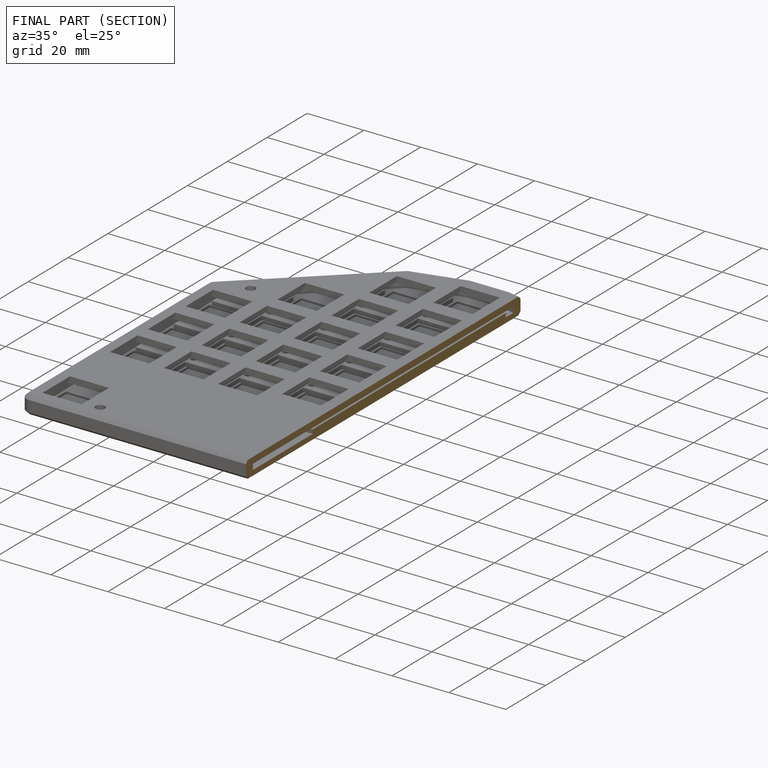
[diagram: finished part — half-section view (interior)]
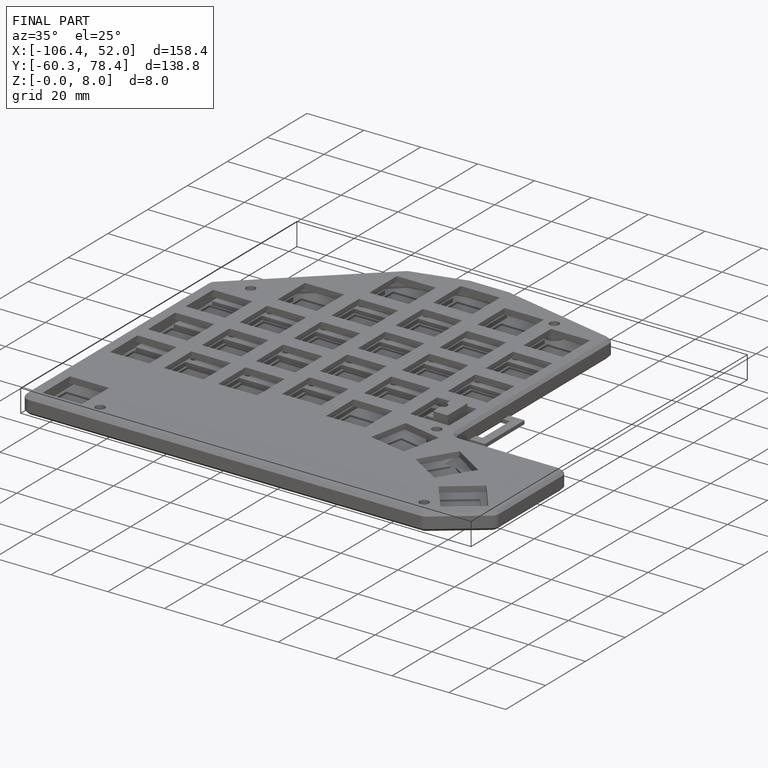
[diagram: finished part — iso view with bounding-box wireframe]
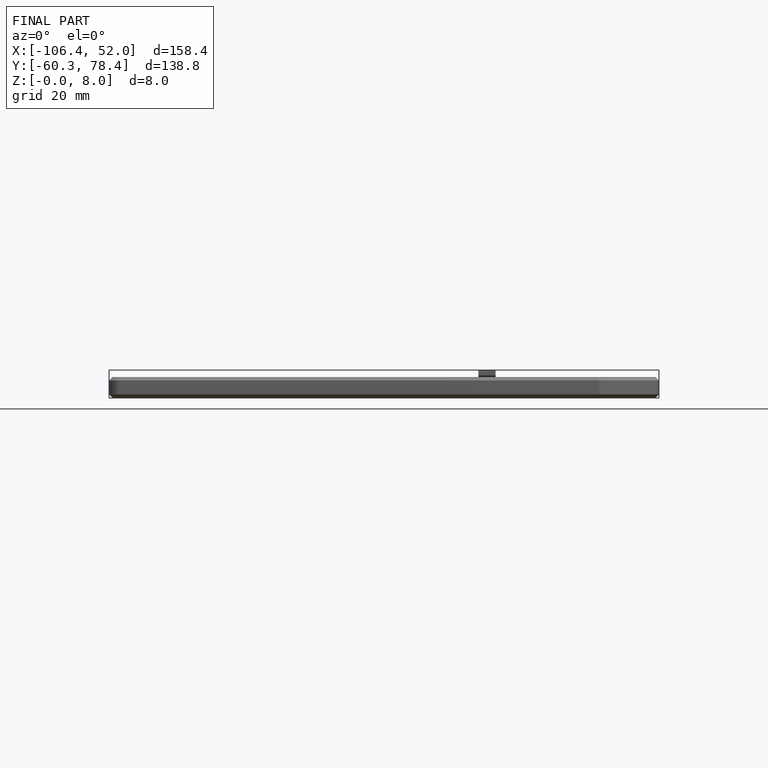
[diagram: finished part — front view with bounding-box wireframe]
